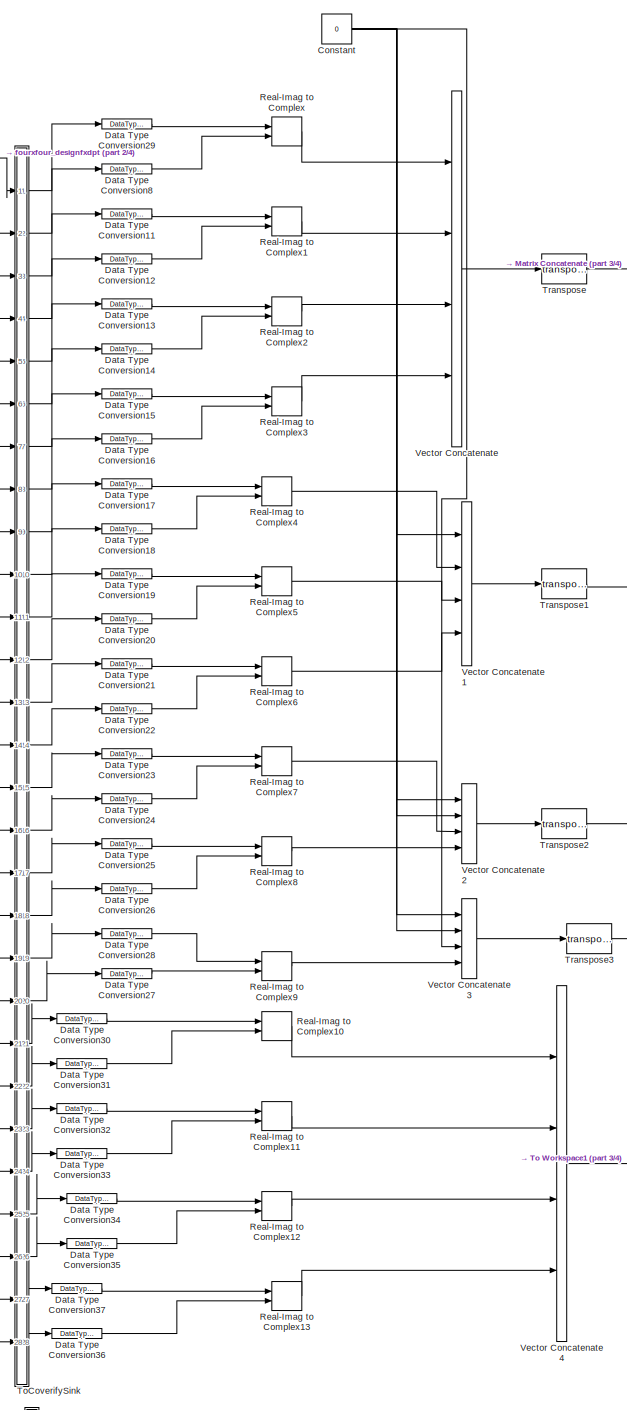
[diagram: root canvas - part 1/4, top center region]
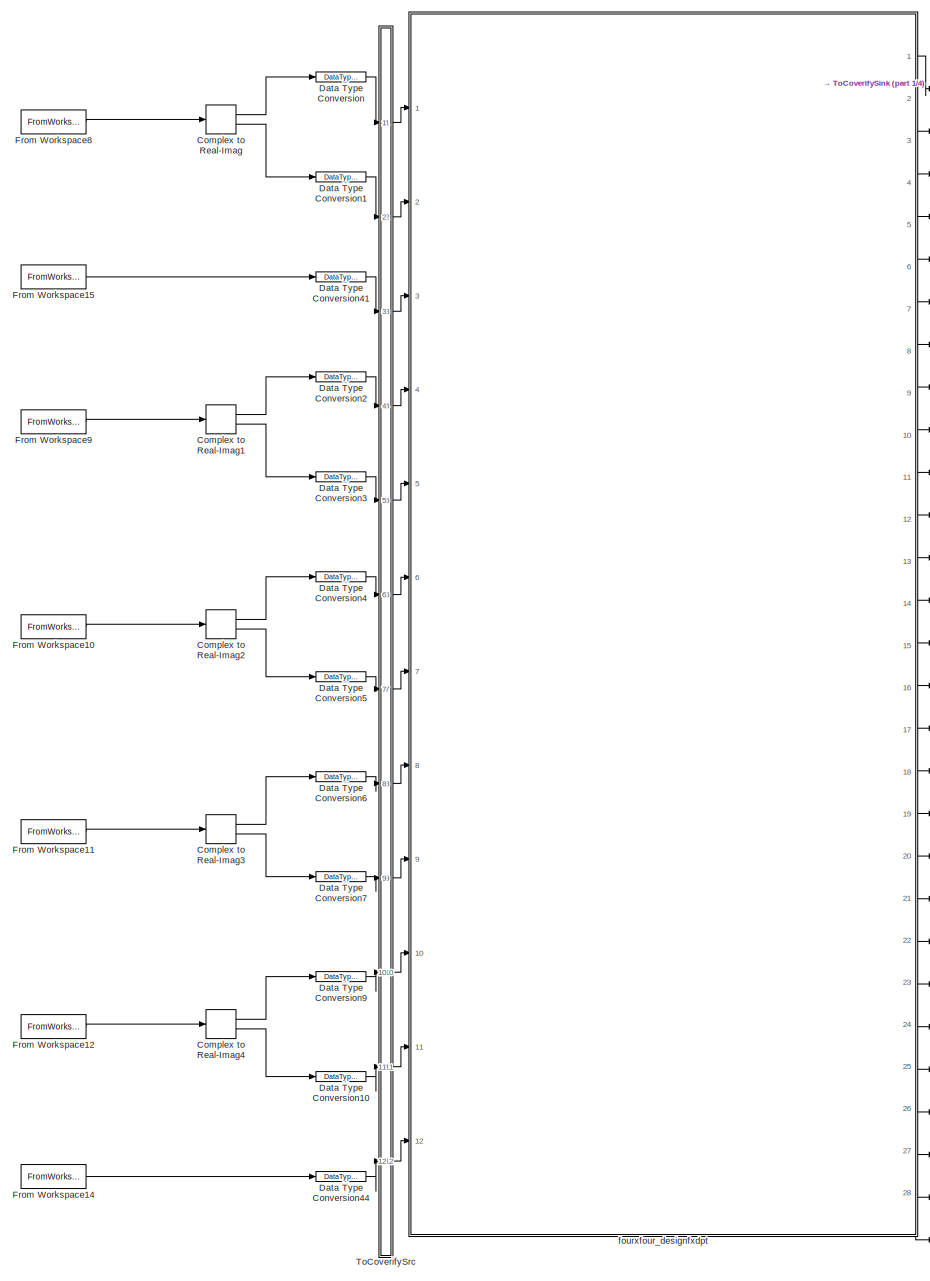
[diagram: root canvas - part 2/4, top left region]
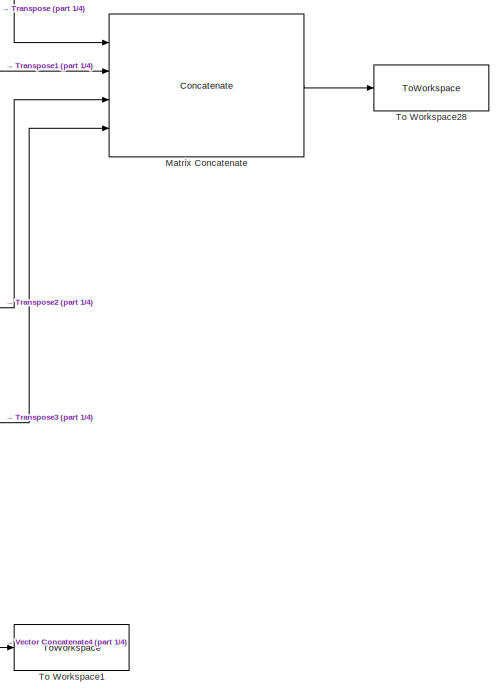
[diagram: root canvas - part 3/4, top right region]
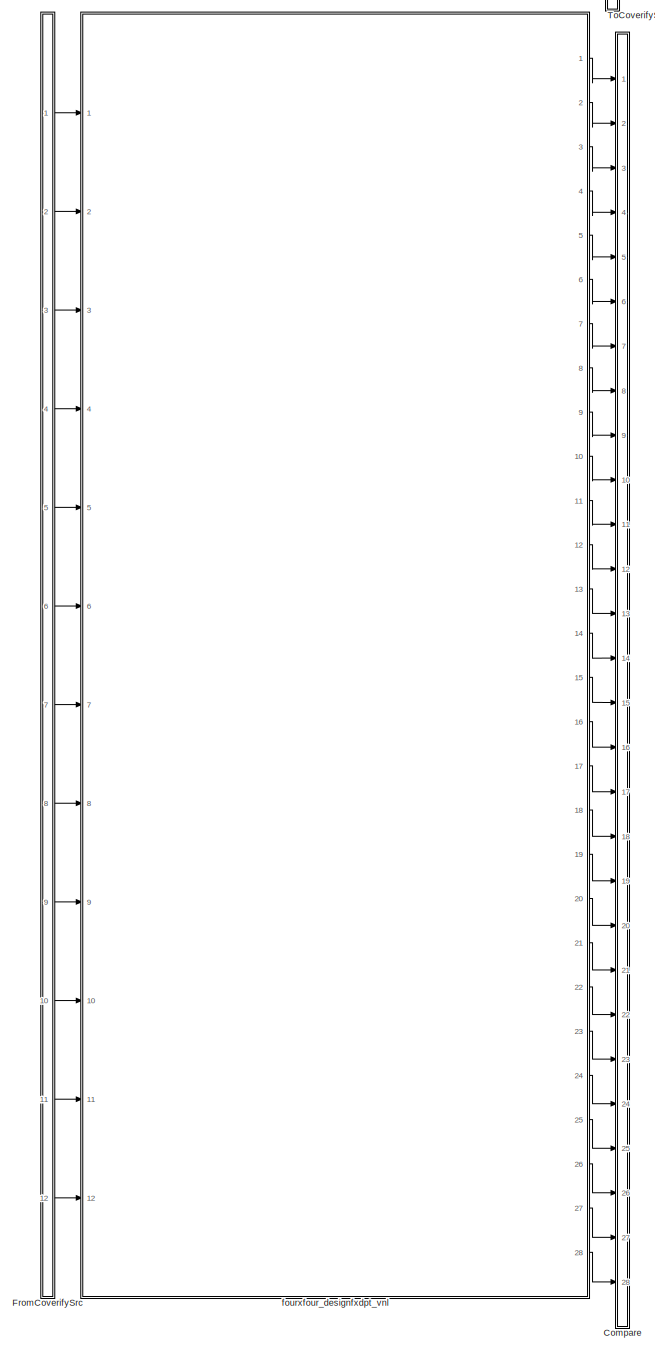
[diagram: root canvas - part 4/4, bottom left region]
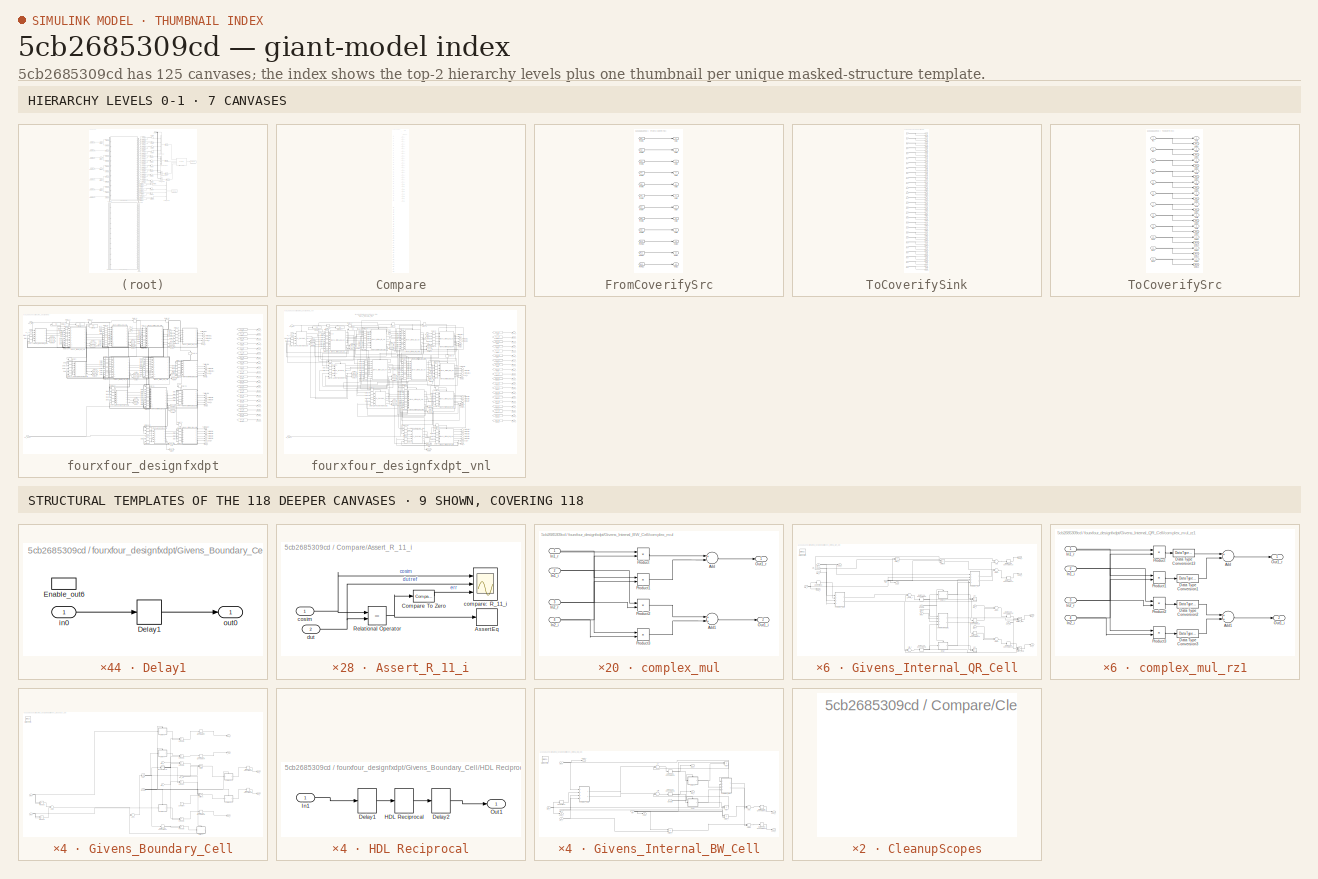
[diagram: thumbnail index - top-2 hierarchy levels (7 canvases) + 9 structural-template representatives of the remaining 118 canvases]
MODEL slx_5cb2685309cd
KIND model
CONFIG AbsTol = auto
CONFIG EnableMultiTasking = off
CONFIG FixedStep = auto
CONFIG InitFcn = if isempty(which('mylib'))\n     tmp = fileparts(which(bdroot));\n     run(fullfile(fileparts(tmp), '5-Utilities', 'addPathsPfcHw.m'));\nend\n\ndata_types_givens\n
CONFIG MaxStep = auto
CONFIG MinStep = auto
CONFIG RelTol = 1e-3
CONFIG SampleTimeConstraint = Unconstrained
CONFIG Solver = VariableStepAuto
CONFIG SolverName = VariableStepAuto
CONFIG StartTime = 0.0
CONFIG StopFcn = GivensSim_Stop
CONFIG StopTime = 10.0
BLOCK [SubSystem] Compare
  Ports = [28]
  RequestExecContextInheritance = off
BLOCK [SubSystem] Compare/Assert_R_11_i
  Ports = [2]
  RequestExecContextInheritance = off
BLOCK [Assertion] Compare/Assert_R_11_i/AssertEq
  StopWhenAssertionFail = off
BLOCK [Reference] Compare/Assert_R_11_i/Compare To Zero  REF=simulink/Logic and Bit
Operations/Compare
To Zero
  Ports = [1, 1]
  SourceBlock = simulink/Logic and Bit\nOperations/Compare\nTo Zero
  SourceProductBaseCode = SL
  SourceProductName = Simulink
  SourceType = Compare To Zero
BLOCK [RelationalOperator] Compare/Assert_R_11_i/Relational Operator
  InputSameDT = off
  Operator = ==
  OutDataTypeStr = boolean
  Ports = [2, 1]
BLOCK [Scope] Compare/Assert_R_11_i/compare: R_11_i
  Floating = off
  NumInputPorts = 3
  Ports = [3]
  ScopeSpecificationString = Simulink.scopes.TimeScopeBlockCfg('CurrentConfiguration', extmgr.ConfigurationSet(extmgr.Configuration('Core','General UI',true,'MessageLogAutoOpenMode','for warn/fail messages','ShowCloseAll',true,'ShowBringAllForward',true),extmgr.Configuration('Core','Source UI',true,'PlaybackToolbar',true),extmgr.Configuration('Sources','WiredSimulink',true,'PointsPerSignal',50000,'DataLoggingDecimation','1','...<+3251ch>  <repeated x28 — deduplicated; at blocks: compare: R_11_i, compare: R_11_r, compare: R_12_i, compare: R_12_r, compare: R_13_i, compare: R_13_r, compare: R_14_i, compare: R_14_r, compare: R_22_i, compare: R_22_r, compare: R_23_i, compare: R_23_r, compare: R_24_i, compare: R_24_r, compare: R_33_i, compare: R_33_r, +12 more>
BLOCK [Inport] Compare/Assert_R_11_i/cosim
  IconDisplay = Port number
BLOCK [Inport] Compare/Assert_R_11_i/dut
  IconDisplay = Port number
  Port = 2
BLOCK [SubSystem] Compare/Assert_R_11_r
  Ports = [2]
  RequestExecContextInheritance = off
BLOCK [Assertion] Compare/Assert_R_11_r/AssertEq
  StopWhenAssertionFail = off
BLOCK [Reference] Compare/Assert_R_11_r/Compare To Zero  REF=simulink/Logic and Bit
Operations/Compare
To Zero
  Ports = [1, 1]
  SourceBlock = simulink/Logic and Bit\nOperations/Compare\nTo Zero
  SourceProductBaseCode = SL
  SourceProductName = Simulink
  SourceType = Compare To Zero
BLOCK [RelationalOperator] Compare/Assert_R_11_r/Relational Operator
  InputSameDT = off
  Operator = ==
  OutDataTypeStr = boolean
  Ports = [2, 1]
BLOCK [Scope] Compare/Assert_R_11_r/compare: R_11_r
  Floating = off
  NumInputPorts = 3
  Ports = [3]
BLOCK [Inport] Compare/Assert_R_11_r/cosim
  IconDisplay = Port number
BLOCK [Inport] Compare/Assert_R_11_r/dut
  IconDisplay = Port number
  Port = 2
BLOCK [SubSystem] Compare/Assert_R_12_i
  Ports = [2]
  RequestExecContextInheritance = off
BLOCK [Assertion] Compare/Assert_R_12_i/AssertEq
  StopWhenAssertionFail = off
BLOCK [Reference] Compare/Assert_R_12_i/Compare To Zero  REF=simulink/Logic and Bit
Operations/Compare
To Zero
  Ports = [1, 1]
  SourceBlock = simulink/Logic and Bit\nOperations/Compare\nTo Zero
  SourceProductBaseCode = SL
  SourceProductName = Simulink
  SourceType = Compare To Zero
BLOCK [RelationalOperator] Compare/Assert_R_12_i/Relational Operator
  InputSameDT = off
  Operator = ==
  OutDataTypeStr = boolean
  Ports = [2, 1]
BLOCK [Scope] Compare/Assert_R_12_i/compare: R_12_i
  Floating = off
  NumInputPorts = 3
  Ports = [3]
BLOCK [Inport] Compare/Assert_R_12_i/cosim
  IconDisplay = Port number
BLOCK [Inport] Compare/Assert_R_12_i/dut
  IconDisplay = Port number
  Port = 2
BLOCK [SubSystem] Compare/Assert_R_12_r
  Ports = [2]
  RequestExecContextInheritance = off
BLOCK [Assertion] Compare/Assert_R_12_r/AssertEq
  StopWhenAssertionFail = off
BLOCK [Reference] Compare/Assert_R_12_r/Compare To Zero  REF=simulink/Logic and Bit
Operations/Compare
To Zero
  Ports = [1, 1]
  SourceBlock = simulink/Logic and Bit\nOperations/Compare\nTo Zero
  SourceProductBaseCode = SL
  SourceProductName = Simulink
  SourceType = Compare To Zero
BLOCK [RelationalOperator] Compare/Assert_R_12_r/Relational Operator
  InputSameDT = off
  Operator = ==
  OutDataTypeStr = boolean
  Ports = [2, 1]
BLOCK [Scope] Compare/Assert_R_12_r/compare: R_12_r
  Floating = off
  NumInputPorts = 3
  Ports = [3]
BLOCK [Inport] Compare/Assert_R_12_r/cosim
  IconDisplay = Port number
BLOCK [Inport] Compare/Assert_R_12_r/dut
  IconDisplay = Port number
  Port = 2
BLOCK [SubSystem] Compare/Assert_R_13_i
  Ports = [2]
  RequestExecContextInheritance = off
BLOCK [Assertion] Compare/Assert_R_13_i/AssertEq
  StopWhenAssertionFail = off
BLOCK [Reference] Compare/Assert_R_13_i/Compare To Zero  REF=simulink/Logic and Bit
Operations/Compare
To Zero
  Ports = [1, 1]
  SourceBlock = simulink/Logic and Bit\nOperations/Compare\nTo Zero
  SourceProductBaseCode = SL
  SourceProductName = Simulink
  SourceType = Compare To Zero
BLOCK [RelationalOperator] Compare/Assert_R_13_i/Relational Operator
  InputSameDT = off
  Operator = ==
  OutDataTypeStr = boolean
  Ports = [2, 1]
BLOCK [Scope] Compare/Assert_R_13_i/compare: R_13_i
  Floating = off
  NumInputPorts = 3
  Ports = [3]
BLOCK [Inport] Compare/Assert_R_13_i/cosim
  IconDisplay = Port number
BLOCK [Inport] Compare/Assert_R_13_i/dut
  IconDisplay = Port number
  Port = 2
BLOCK [SubSystem] Compare/Assert_R_13_r
  Ports = [2]
  RequestExecContextInheritance = off
BLOCK [Assertion] Compare/Assert_R_13_r/AssertEq
  StopWhenAssertionFail = off
BLOCK [Reference] Compare/Assert_R_13_r/Compare To Zero  REF=simulink/Logic and Bit
Operations/Compare
To Zero
  Ports = [1, 1]
  SourceBlock = simulink/Logic and Bit\nOperations/Compare\nTo Zero
  SourceProductBaseCode = SL
  SourceProductName = Simulink
  SourceType = Compare To Zero
BLOCK [RelationalOperator] Compare/Assert_R_13_r/Relational Operator
  InputSameDT = off
  Operator = ==
  OutDataTypeStr = boolean
  Ports = [2, 1]
BLOCK [Scope] Compare/Assert_R_13_r/compare: R_13_r
  Floating = off
  NumInputPorts = 3
  Ports = [3]
BLOCK [Inport] Compare/Assert_R_13_r/cosim
  IconDisplay = Port number
BLOCK [Inport] Compare/Assert_R_13_r/dut
  IconDisplay = Port number
  Port = 2
BLOCK [SubSystem] Compare/Assert_R_14_i
  Ports = [2]
  RequestExecContextInheritance = off
BLOCK [Assertion] Compare/Assert_R_14_i/AssertEq
  StopWhenAssertionFail = off
BLOCK [Reference] Compare/Assert_R_14_i/Compare To Zero  REF=simulink/Logic and Bit
Operations/Compare
To Zero
  Ports = [1, 1]
  SourceBlock = simulink/Logic and Bit\nOperations/Compare\nTo Zero
  SourceProductBaseCode = SL
  SourceProductName = Simulink
  SourceType = Compare To Zero
BLOCK [RelationalOperator] Compare/Assert_R_14_i/Relational Operator
  InputSameDT = off
  Operator = ==
  OutDataTypeStr = boolean
  Ports = [2, 1]
BLOCK [Scope] Compare/Assert_R_14_i/compare: R_14_i
  Floating = off
  NumInputPorts = 3
  Ports = [3]
BLOCK [Inport] Compare/Assert_R_14_i/cosim
  IconDisplay = Port number
BLOCK [Inport] Compare/Assert_R_14_i/dut
  IconDisplay = Port number
  Port = 2
BLOCK [SubSystem] Compare/Assert_R_14_r
  Ports = [2]
  RequestExecContextInheritance = off
BLOCK [Assertion] Compare/Assert_R_14_r/AssertEq
  StopWhenAssertionFail = off
BLOCK [Reference] Compare/Assert_R_14_r/Compare To Zero  REF=simulink/Logic and Bit
Operations/Compare
To Zero
  Ports = [1, 1]
  SourceBlock = simulink/Logic and Bit\nOperations/Compare\nTo Zero
  SourceProductBaseCode = SL
  SourceProductName = Simulink
  SourceType = Compare To Zero
BLOCK [RelationalOperator] Compare/Assert_R_14_r/Relational Operator
  InputSameDT = off
  Operator = ==
  OutDataTypeStr = boolean
  Ports = [2, 1]
BLOCK [Scope] Compare/Assert_R_14_r/compare: R_14_r
  Floating = off
  NumInputPorts = 3
  Ports = [3]
BLOCK [Inport] Compare/Assert_R_14_r/cosim
  IconDisplay = Port number
BLOCK [Inport] Compare/Assert_R_14_r/dut
  IconDisplay = Port number
  Port = 2
BLOCK [SubSystem] Compare/Assert_R_22_i
  Ports = [2]
  RequestExecContextInheritance = off
BLOCK [Assertion] Compare/Assert_R_22_i/AssertEq
  StopWhenAssertionFail = off
BLOCK [Reference] Compare/Assert_R_22_i/Compare To Zero  REF=simulink/Logic and Bit
Operations/Compare
To Zero
  Ports = [1, 1]
  SourceBlock = simulink/Logic and Bit\nOperations/Compare\nTo Zero
  SourceProductBaseCode = SL
  SourceProductName = Simulink
  SourceType = Compare To Zero
BLOCK [RelationalOperator] Compare/Assert_R_22_i/Relational Operator
  InputSameDT = off
  Operator = ==
  OutDataTypeStr = boolean
  Ports = [2, 1]
BLOCK [Scope] Compare/Assert_R_22_i/compare: R_22_i
  Floating = off
  NumInputPorts = 3
  Ports = [3]
BLOCK [Inport] Compare/Assert_R_22_i/cosim
  IconDisplay = Port number
BLOCK [Inport] Compare/Assert_R_22_i/dut
  IconDisplay = Port number
  Port = 2
BLOCK [SubSystem] Compare/Assert_R_22_r
  Ports = [2]
  RequestExecContextInheritance = off
BLOCK [Assertion] Compare/Assert_R_22_r/AssertEq
  StopWhenAssertionFail = off
BLOCK [Reference] Compare/Assert_R_22_r/Compare To Zero  REF=simulink/Logic and Bit
Operations/Compare
To Zero
  Ports = [1, 1]
  SourceBlock = simulink/Logic and Bit\nOperations/Compare\nTo Zero
  SourceProductBaseCode = SL
  SourceProductName = Simulink
  SourceType = Compare To Zero
BLOCK [RelationalOperator] Compare/Assert_R_22_r/Relational Operator
  InputSameDT = off
  Operator = ==
  OutDataTypeStr = boolean
  Ports = [2, 1]
BLOCK [Scope] Compare/Assert_R_22_r/compare: R_22_r
  Floating = off
  NumInputPorts = 3
  Ports = [3]
BLOCK [Inport] Compare/Assert_R_22_r/cosim
  IconDisplay = Port number
BLOCK [Inport] Compare/Assert_R_22_r/dut
  IconDisplay = Port number
  Port = 2
BLOCK [SubSystem] Compare/Assert_R_23_i
  Ports = [2]
  RequestExecContextInheritance = off
BLOCK [Assertion] Compare/Assert_R_23_i/AssertEq
  StopWhenAssertionFail = off
BLOCK [Reference] Compare/Assert_R_23_i/Compare To Zero  REF=simulink/Logic and Bit
Operations/Compare
To Zero
  Ports = [1, 1]
  SourceBlock = simulink/Logic and Bit\nOperations/Compare\nTo Zero
  SourceProductBaseCode = SL
  SourceProductName = Simulink
  SourceType = Compare To Zero
BLOCK [RelationalOperator] Compare/Assert_R_23_i/Relational Operator
  InputSameDT = off
  Operator = ==
  OutDataTypeStr = boolean
  Ports = [2, 1]
BLOCK [Scope] Compare/Assert_R_23_i/compare: R_23_i
  Floating = off
  NumInputPorts = 3
  Ports = [3]
BLOCK [Inport] Compare/Assert_R_23_i/cosim
  IconDisplay = Port number
BLOCK [Inport] Compare/Assert_R_23_i/dut
  IconDisplay = Port number
  Port = 2
BLOCK [SubSystem] Compare/Assert_R_23_r
  Ports = [2]
  RequestExecContextInheritance = off
BLOCK [Assertion] Compare/Assert_R_23_r/AssertEq
  StopWhenAssertionFail = off
BLOCK [Reference] Compare/Assert_R_23_r/Compare To Zero  REF=simulink/Logic and Bit
Operations/Compare
To Zero
  Ports = [1, 1]
  SourceBlock = simulink/Logic and Bit\nOperations/Compare\nTo Zero
  SourceProductBaseCode = SL
  SourceProductName = Simulink
  SourceType = Compare To Zero
BLOCK [RelationalOperator] Compare/Assert_R_23_r/Relational Operator
  InputSameDT = off
  Operator = ==
  OutDataTypeStr = boolean
  Ports = [2, 1]
BLOCK [Scope] Compare/Assert_R_23_r/compare: R_23_r
  Floating = off
  NumInputPorts = 3
  Ports = [3]
BLOCK [Inport] Compare/Assert_R_23_r/cosim
  IconDisplay = Port number
BLOCK [Inport] Compare/Assert_R_23_r/dut
  IconDisplay = Port number
  Port = 2
BLOCK [SubSystem] Compare/Assert_R_24_i
  Ports = [2]
  RequestExecContextInheritance = off
BLOCK [Assertion] Compare/Assert_R_24_i/AssertEq
  StopWhenAssertionFail = off
BLOCK [Reference] Compare/Assert_R_24_i/Compare To Zero  REF=simulink/Logic and Bit
Operations/Compare
To Zero
  Ports = [1, 1]
  SourceBlock = simulink/Logic and Bit\nOperations/Compare\nTo Zero
  SourceProductBaseCode = SL
  SourceProductName = Simulink
  SourceType = Compare To Zero
BLOCK [RelationalOperator] Compare/Assert_R_24_i/Relational Operator
  InputSameDT = off
  Operator = ==
  OutDataTypeStr = boolean
  Ports = [2, 1]
BLOCK [Scope] Compare/Assert_R_24_i/compare: R_24_i
  Floating = off
  NumInputPorts = 3
  Ports = [3]
BLOCK [Inport] Compare/Assert_R_24_i/cosim
  IconDisplay = Port number
BLOCK [Inport] Compare/Assert_R_24_i/dut
  IconDisplay = Port number
  Port = 2
BLOCK [SubSystem] Compare/Assert_R_24_r
  Ports = [2]
  RequestExecContextInheritance = off
BLOCK [Assertion] Compare/Assert_R_24_r/AssertEq
  StopWhenAssertionFail = off
BLOCK [Reference] Compare/Assert_R_24_r/Compare To Zero  REF=simulink/Logic and Bit
Operations/Compare
To Zero
  Ports = [1, 1]
  SourceBlock = simulink/Logic and Bit\nOperations/Compare\nTo Zero
  SourceProductBaseCode = SL
  SourceProductName = Simulink
  SourceType = Compare To Zero
BLOCK [RelationalOperator] Compare/Assert_R_24_r/Relational Operator
  InputSameDT = off
  Operator = ==
  OutDataTypeStr = boolean
  Ports = [2, 1]
BLOCK [Scope] Compare/Assert_R_24_r/compare: R_24_r
  Floating = off
  NumInputPorts = 3
  Ports = [3]
BLOCK [Inport] Compare/Assert_R_24_r/cosim
  IconDisplay = Port number
BLOCK [Inport] Compare/Assert_R_24_r/dut
  IconDisplay = Port number
  Port = 2
BLOCK [SubSystem] Compare/Assert_R_33_i
  Ports = [2]
  RequestExecContextInheritance = off
BLOCK [Assertion] Compare/Assert_R_33_i/AssertEq
  StopWhenAssertionFail = off
BLOCK [Reference] Compare/Assert_R_33_i/Compare To Zero  REF=simulink/Logic and Bit
Operations/Compare
To Zero
  Ports = [1, 1]
  SourceBlock = simulink/Logic and Bit\nOperations/Compare\nTo Zero
  SourceProductBaseCode = SL
  SourceProductName = Simulink
  SourceType = Compare To Zero
BLOCK [RelationalOperator] Compare/Assert_R_33_i/Relational Operator
  InputSameDT = off
  Operator = ==
  OutDataTypeStr = boolean
  Ports = [2, 1]
BLOCK [Scope] Compare/Assert_R_33_i/compare: R_33_i
  Floating = off
  NumInputPorts = 3
  Ports = [3]
BLOCK [Inport] Compare/Assert_R_33_i/cosim
  IconDisplay = Port number
BLOCK [Inport] Compare/Assert_R_33_i/dut
  IconDisplay = Port number
  Port = 2
BLOCK [SubSystem] Compare/Assert_R_33_r
  Ports = [2]
  RequestExecContextInheritance = off
BLOCK [Assertion] Compare/Assert_R_33_r/AssertEq
  StopWhenAssertionFail = off
BLOCK [Reference] Compare/Assert_R_33_r/Compare To Zero  REF=simulink/Logic and Bit
Operations/Compare
To Zero
  Ports = [1, 1]
  SourceBlock = simulink/Logic and Bit\nOperations/Compare\nTo Zero
  SourceProductBaseCode = SL
  SourceProductName = Simulink
  SourceType = Compare To Zero
BLOCK [RelationalOperator] Compare/Assert_R_33_r/Relational Operator
  InputSameDT = off
  Operator = ==
  OutDataTypeStr = boolean
  Ports = [2, 1]
BLOCK [Scope] Compare/Assert_R_33_r/compare: R_33_r
  Floating = off
  NumInputPorts = 3
  Ports = [3]
BLOCK [Inport] Compare/Assert_R_33_r/cosim
  IconDisplay = Port number
BLOCK [Inport] Compare/Assert_R_33_r/dut
  IconDisplay = Port number
  Port = 2
BLOCK [SubSystem] Compare/Assert_R_34_i
  Ports = [2]
  RequestExecContextInheritance = off
BLOCK [Assertion] Compare/Assert_R_34_i/AssertEq
  StopWhenAssertionFail = off
BLOCK [Reference] Compare/Assert_R_34_i/Compare To Zero  REF=simulink/Logic and Bit
Operations/Compare
To Zero
  Ports = [1, 1]
  SourceBlock = simulink/Logic and Bit\nOperations/Compare\nTo Zero
  SourceProductBaseCode = SL
  SourceProductName = Simulink
  SourceType = Compare To Zero
BLOCK [RelationalOperator] Compare/Assert_R_34_i/Relational Operator
  InputSameDT = off
  Operator = ==
  OutDataTypeStr = boolean
  Ports = [2, 1]
BLOCK [Scope] Compare/Assert_R_34_i/compare: R_34_i
  Floating = off
  NumInputPorts = 3
  Ports = [3]
BLOCK [Inport] Compare/Assert_R_34_i/cosim
  IconDisplay = Port number
BLOCK [Inport] Compare/Assert_R_34_i/dut
  IconDisplay = Port number
  Port = 2
BLOCK [SubSystem] Compare/Assert_R_34_r
  Ports = [2]
  RequestExecContextInheritance = off
BLOCK [Assertion] Compare/Assert_R_34_r/AssertEq
  StopWhenAssertionFail = off
BLOCK [Reference] Compare/Assert_R_34_r/Compare To Zero  REF=simulink/Logic and Bit
Operations/Compare
To Zero
  Ports = [1, 1]
  SourceBlock = simulink/Logic and Bit\nOperations/Compare\nTo Zero
  SourceProductBaseCode = SL
  SourceProductName = Simulink
  SourceType = Compare To Zero
BLOCK [RelationalOperator] Compare/Assert_R_34_r/Relational Operator
  InputSameDT = off
  Operator = ==
  OutDataTypeStr = boolean
  Ports = [2, 1]
BLOCK [Scope] Compare/Assert_R_34_r/compare: R_34_r
  Floating = off
  NumInputPorts = 3
  Ports = [3]
BLOCK [Inport] Compare/Assert_R_34_r/cosim
  IconDisplay = Port number
BLOCK [Inport] Compare/Assert_R_34_r/dut
  IconDisplay = Port number
  Port = 2
BLOCK [SubSystem] Compare/Assert_R_44_i
  Ports = [2]
  RequestExecContextInheritance = off
BLOCK [Assertion] Compare/Assert_R_44_i/AssertEq
  StopWhenAssertionFail = off
BLOCK [Reference] Compare/Assert_R_44_i/Compare To Zero  REF=simulink/Logic and Bit
Operations/Compare
To Zero
  Ports = [1, 1]
  SourceBlock = simulink/Logic and Bit\nOperations/Compare\nTo Zero
  SourceProductBaseCode = SL
  SourceProductName = Simulink
  SourceType = Compare To Zero
BLOCK [RelationalOperator] Compare/Assert_R_44_i/Relational Operator
  InputSameDT = off
  Operator = ==
  OutDataTypeStr = boolean
  Ports = [2, 1]
BLOCK [Scope] Compare/Assert_R_44_i/compare: R_44_i
  Floating = off
  NumInputPorts = 3
  Ports = [3]
BLOCK [Inport] Compare/Assert_R_44_i/cosim
  IconDisplay = Port number
BLOCK [Inport] Compare/Assert_R_44_i/dut
  IconDisplay = Port number
  Port = 2
BLOCK [SubSystem] Compare/Assert_R_44_r
  Ports = [2]
  RequestExecContextInheritance = off
BLOCK [Assertion] Compare/Assert_R_44_r/AssertEq
  StopWhenAssertionFail = off
BLOCK [Reference] Compare/Assert_R_44_r/Compare To Zero  REF=simulink/Logic and Bit
Operations/Compare
To Zero
  Ports = [1, 1]
  SourceBlock = simulink/Logic and Bit\nOperations/Compare\nTo Zero
  SourceProductBaseCode = SL
  SourceProductName = Simulink
  SourceType = Compare To Zero
BLOCK [RelationalOperator] Compare/Assert_R_44_r/Relational Operator
  InputSameDT = off
  Operator = ==
  OutDataTypeStr = boolean
  Ports = [2, 1]
BLOCK [Scope] Compare/Assert_R_44_r/compare: R_44_r
  Floating = off
  NumInputPorts = 3
  Ports = [3]
BLOCK [Inport] Compare/Assert_R_44_r/cosim
  IconDisplay = Port number
BLOCK [Inport] Compare/Assert_R_44_r/dut
  IconDisplay = Port number
  Port = 2
BLOCK [SubSystem] Compare/Assert_bouti_1
  Ports = [2]
  RequestExecContextInheritance = off
BLOCK [Assertion] Compare/Assert_bouti_1/AssertEq
  StopWhenAssertionFail = off
BLOCK [Reference] Compare/Assert_bouti_1/Compare To Zero  REF=simulink/Logic and Bit
Operations/Compare
To Zero
  Ports = [1, 1]
  SourceBlock = simulink/Logic and Bit\nOperations/Compare\nTo Zero
  SourceProductBaseCode = SL
  SourceProductName = Simulink
  SourceType = Compare To Zero
BLOCK [RelationalOperator] Compare/Assert_bouti_1/Relational Operator
  InputSameDT = off
  Operator = ==
  OutDataTypeStr = boolean
  Ports = [2, 1]
BLOCK [Scope] Compare/Assert_bouti_1/compare: bouti_1
  Floating = off
  NumInputPorts = 3
  Ports = [3]
BLOCK [Inport] Compare/Assert_bouti_1/cosim
  IconDisplay = Port number
BLOCK [Inport] Compare/Assert_bouti_1/dut
  IconDisplay = Port number
  Port = 2
BLOCK [SubSystem] Compare/Assert_bouti_2
  Ports = [2]
  RequestExecContextInheritance = off
BLOCK [Assertion] Compare/Assert_bouti_2/AssertEq
  StopWhenAssertionFail = off
BLOCK [Reference] Compare/Assert_bouti_2/Compare To Zero  REF=simulink/Logic and Bit
Operations/Compare
To Zero
  Ports = [1, 1]
  SourceBlock = simulink/Logic and Bit\nOperations/Compare\nTo Zero
  SourceProductBaseCode = SL
  SourceProductName = Simulink
  SourceType = Compare To Zero
BLOCK [RelationalOperator] Compare/Assert_bouti_2/Relational Operator
  InputSameDT = off
  Operator = ==
  OutDataTypeStr = boolean
  Ports = [2, 1]
BLOCK [Scope] Compare/Assert_bouti_2/compare: bouti_2
  Floating = off
  NumInputPorts = 3
  Ports = [3]
BLOCK [Inport] Compare/Assert_bouti_2/cosim
  IconDisplay = Port number
BLOCK [Inport] Compare/Assert_bouti_2/dut
  IconDisplay = Port number
  Port = 2
BLOCK [SubSystem] Compare/Assert_bouti_3
  Ports = [2]
  RequestExecContextInheritance = off
BLOCK [Assertion] Compare/Assert_bouti_3/AssertEq
  StopWhenAssertionFail = off
BLOCK [Reference] Compare/Assert_bouti_3/Compare To Zero  REF=simulink/Logic and Bit
Operations/Compare
To Zero
  Ports = [1, 1]
  SourceBlock = simulink/Logic and Bit\nOperations/Compare\nTo Zero
  SourceProductBaseCode = SL
  SourceProductName = Simulink
  SourceType = Compare To Zero
BLOCK [RelationalOperator] Compare/Assert_bouti_3/Relational Operator
  InputSameDT = off
  Operator = ==
  OutDataTypeStr = boolean
  Ports = [2, 1]
BLOCK [Scope] Compare/Assert_bouti_3/compare: bouti_3
  Floating = off
  NumInputPorts = 3
  Ports = [3]
BLOCK [Inport] Compare/Assert_bouti_3/cosim
  IconDisplay = Port number
BLOCK [Inport] Compare/Assert_bouti_3/dut
  IconDisplay = Port number
  Port = 2
BLOCK [SubSystem] Compare/Assert_bouti_4
  Ports = [2]
  RequestExecContextInheritance = off
BLOCK [Assertion] Compare/Assert_bouti_4/AssertEq
  StopWhenAssertionFail = off
BLOCK [Reference] Compare/Assert_bouti_4/Compare To Zero  REF=simulink/Logic and Bit
Operations/Compare
To Zero
  Ports = [1, 1]
  SourceBlock = simulink/Logic and Bit\nOperations/Compare\nTo Zero
  SourceProductBaseCode = SL
  SourceProductName = Simulink
  SourceType = Compare To Zero
BLOCK [RelationalOperator] Compare/Assert_bouti_4/Relational Operator
  InputSameDT = off
  Operator = ==
  OutDataTypeStr = boolean
  Ports = [2, 1]
BLOCK [Scope] Compare/Assert_bouti_4/compare: bouti_4
  Floating = off
  NumInputPorts = 3
  Ports = [3]
BLOCK [Inport] Compare/Assert_bouti_4/cosim
  IconDisplay = Port number
BLOCK [Inport] Compare/Assert_bouti_4/dut
  IconDisplay = Port number
  Port = 2
BLOCK [SubSystem] Compare/Assert_boutr_1
  Ports = [2]
  RequestExecContextInheritance = off
BLOCK [Assertion] Compare/Assert_boutr_1/AssertEq
  StopWhenAssertionFail = off
BLOCK [Reference] Compare/Assert_boutr_1/Compare To Zero  REF=simulink/Logic and Bit
Operations/Compare
To Zero
  Ports = [1, 1]
  SourceBlock = simulink/Logic and Bit\nOperations/Compare\nTo Zero
  SourceProductBaseCode = SL
  SourceProductName = Simulink
  SourceType = Compare To Zero
BLOCK [RelationalOperator] Compare/Assert_boutr_1/Relational Operator
  InputSameDT = off
  Operator = ==
  OutDataTypeStr = boolean
  Ports = [2, 1]
BLOCK [Scope] Compare/Assert_boutr_1/compare: boutr_1
  Floating = off
  NumInputPorts = 3
  Ports = [3]
BLOCK [Inport] Compare/Assert_boutr_1/cosim
  IconDisplay = Port number
BLOCK [Inport] Compare/Assert_boutr_1/dut
  IconDisplay = Port number
  Port = 2
BLOCK [SubSystem] Compare/Assert_boutr_2
  Ports = [2]
  RequestExecContextInheritance = off
BLOCK [Assertion] Compare/Assert_boutr_2/AssertEq
  StopWhenAssertionFail = off
BLOCK [Reference] Compare/Assert_boutr_2/Compare To Zero  REF=simulink/Logic and Bit
Operations/Compare
To Zero
  Ports = [1, 1]
  SourceBlock = simulink/Logic and Bit\nOperations/Compare\nTo Zero
  SourceProductBaseCode = SL
  SourceProductName = Simulink
  SourceType = Compare To Zero
BLOCK [RelationalOperator] Compare/Assert_boutr_2/Relational Operator
  InputSameDT = off
  Operator = ==
  OutDataTypeStr = boolean
  Ports = [2, 1]
BLOCK [Scope] Compare/Assert_boutr_2/compare: boutr_2
  Floating = off
  NumInputPorts = 3
  Ports = [3]
BLOCK [Inport] Compare/Assert_boutr_2/cosim
  IconDisplay = Port number
BLOCK [Inport] Compare/Assert_boutr_2/dut
  IconDisplay = Port number
  Port = 2
BLOCK [SubSystem] Compare/Assert_boutr_3
  Ports = [2]
  RequestExecContextInheritance = off
BLOCK [Assertion] Compare/Assert_boutr_3/AssertEq
  StopWhenAssertionFail = off
BLOCK [Reference] Compare/Assert_boutr_3/Compare To Zero  REF=simulink/Logic and Bit
Operations/Compare
To Zero
  Ports = [1, 1]
  SourceBlock = simulink/Logic and Bit\nOperations/Compare\nTo Zero
  SourceProductBaseCode = SL
  SourceProductName = Simulink
  SourceType = Compare To Zero
BLOCK [RelationalOperator] Compare/Assert_boutr_3/Relational Operator
  InputSameDT = off
  Operator = ==
  OutDataTypeStr = boolean
  Ports = [2, 1]
BLOCK [Scope] Compare/Assert_boutr_3/compare: boutr_3
  Floating = off
  NumInputPorts = 3
  Ports = [3]
BLOCK [Inport] Compare/Assert_boutr_3/cosim
  IconDisplay = Port number
BLOCK [Inport] Compare/Assert_boutr_3/dut
  IconDisplay = Port number
  Port = 2
BLOCK [SubSystem] Compare/Assert_boutr_4
  Ports = [2]
  RequestExecContextInheritance = off
BLOCK [Assertion] Compare/Assert_boutr_4/AssertEq
  StopWhenAssertionFail = off
BLOCK [Reference] Compare/Assert_boutr_4/Compare To Zero  REF=simulink/Logic and Bit
Operations/Compare
To Zero
  Ports = [1, 1]
  SourceBlock = simulink/Logic and Bit\nOperations/Compare\nTo Zero
  SourceProductBaseCode = SL
  SourceProductName = Simulink
  SourceType = Compare To Zero
BLOCK [RelationalOperator] Compare/Assert_boutr_4/Relational Operator
  InputSameDT = off
  Operator = ==
  OutDataTypeStr = boolean
  Ports = [2, 1]
BLOCK [Scope] Compare/Assert_boutr_4/compare: boutr_4
  Floating = off
  NumInputPorts = 3
  Ports = [3]
BLOCK [Inport] Compare/Assert_boutr_4/cosim
  IconDisplay = Port number
BLOCK [Inport] Compare/Assert_boutr_4/dut
  IconDisplay = Port number
  Port = 2
BLOCK [SubSystem] Compare/CleanupScopes
  OpenFcn = blkName = gcb; %self block\nidx = regexp(blkName, '/CleanupScopes$', 'once');\nblkParent = blkName(1:idx-1);\nblks=find_system(blkParent, 'LookUnderMasks', 'all','blocktype', 'Scope');\nfor itr = 1:length(blks)\n	 hScopeCfg = get_param(blks{itr},'ScopeConfiguration');\n	 hScopeCfg.Visible = ~ hScopeCfg.Visible;\nend\ndrawnow;
  Ports = []
  RequestExecContextInheritance = off
BLOCK [SubSystem] Compare/Enable
  OpenFcn = blkName = gcb;\nidx = regexp(blkName, '/Enable$', 'once');\nblkParent = blkName(1:idx-1);\nblks=find_system(blkParent, 'LookUnderMasks', 'all','blocktype', 'Assertion');\ne = get_param(blks{1}, 'Enabled');\nif strcmp(e, 'on'), f= 'off';, else, f = 'on';, end\nfor ii=1:length(blks), set_param(blks{ii}, 'Enabled', f);, end\nset_param(gcb, 'MaskDisplay',['fprintf(message(''hdlcoder:cosim:vnl_dblclick_assert...<+47ch>
  Ports = []
  RequestExecContextInheritance = off
BLOCK [From] Compare/from1
  GotoTag = out1
  TagVisibility = global
BLOCK [From] Compare/from10
  GotoTag = out10
  TagVisibility = global
BLOCK [From] Compare/from11
  GotoTag = out11
  TagVisibility = global
BLOCK [From] Compare/from12
  GotoTag = out12
  TagVisibility = global
BLOCK [From] Compare/from13
  GotoTag = out13
  TagVisibility = global
BLOCK [From] Compare/from14
  GotoTag = out14
  TagVisibility = global
BLOCK [From] Compare/from15
  GotoTag = out15
  TagVisibility = global
BLOCK [From] Compare/from16
  GotoTag = out16
  TagVisibility = global
BLOCK [From] Compare/from17
  GotoTag = out17
  TagVisibility = global
BLOCK [From] Compare/from18
  GotoTag = out18
  TagVisibility = global
BLOCK [From] Compare/from19
  GotoTag = out19
  TagVisibility = global
BLOCK [From] Compare/from2
  GotoTag = out2
  TagVisibility = global
BLOCK [From] Compare/from20
  GotoTag = out20
  TagVisibility = global
BLOCK [From] Compare/from21
  GotoTag = out21
  TagVisibility = global
BLOCK [From] Compare/from22
  GotoTag = out22
  TagVisibility = global
BLOCK [From] Compare/from23
  GotoTag = out23
  TagVisibility = global
BLOCK [From] Compare/from24
  GotoTag = out24
  TagVisibility = global
BLOCK [From] Compare/from25
  GotoTag = out25
  TagVisibility = global
BLOCK [From] Compare/from26
  GotoTag = out26
  TagVisibility = global
BLOCK [From] Compare/from27
  GotoTag = out27
  TagVisibility = global
BLOCK [From] Compare/from28
  GotoTag = out28
  TagVisibility = global
BLOCK [From] Compare/from3
  GotoTag = out3
  TagVisibility = global
BLOCK [From] Compare/from4
  GotoTag = out4
  TagVisibility = global
BLOCK [From] Compare/from5
  GotoTag = out5
  TagVisibility = global
BLOCK [From] Compare/from6
  GotoTag = out6
  TagVisibility = global
BLOCK [From] Compare/from7
  GotoTag = out7
  TagVisibility = global
BLOCK [From] Compare/from8
  GotoTag = out8
  TagVisibility = global
BLOCK [From] Compare/from9
  GotoTag = out9
  TagVisibility = global
BLOCK [Inport] Compare/in1
  IconDisplay = Port number
BLOCK [Inport] Compare/in10
  IconDisplay = Port number
  Port = 10
BLOCK [Inport] Compare/in11
  IconDisplay = Port number
  Port = 11
BLOCK [Inport] Compare/in12
  IconDisplay = Port number
  Port = 12
BLOCK [Inport] Compare/in13
  IconDisplay = Port number
  Port = 13
BLOCK [Inport] Compare/in14
  IconDisplay = Port number
  Port = 14
BLOCK [Inport] Compare/in15
  IconDisplay = Port number
  Port = 15
BLOCK [Inport] Compare/in16
  IconDisplay = Port number
  Port = 16
BLOCK [Inport] Compare/in17
  IconDisplay = Port number
  Port = 17
BLOCK [Inport] Compare/in18
  IconDisplay = Port number
  Port = 18
BLOCK [Inport] Compare/in19
  IconDisplay = Port number
  Port = 19
BLOCK [Inport] Compare/in2
  IconDisplay = Port number
  Port = 2
BLOCK [Inport] Compare/in20
  IconDisplay = Port number
  Port = 20
BLOCK [Inport] Compare/in21
  IconDisplay = Port number
  Port = 21
BLOCK [Inport] Compare/in22
  IconDisplay = Port number
  Port = 22
BLOCK [Inport] Compare/in23
  IconDisplay = Port number
  Port = 23
BLOCK [Inport] Compare/in24
  IconDisplay = Port number
  Port = 24
BLOCK [Inport] Compare/in25
  IconDisplay = Port number
  Port = 25
BLOCK [Inport] Compare/in26
  IconDisplay = Port number
  Port = 26
BLOCK [Inport] Compare/in27
  IconDisplay = Port number
  Port = 27
BLOCK [Inport] Compare/in28
  IconDisplay = Port number
  Port = 28
BLOCK [Inport] Compare/in3
  IconDisplay = Port number
  Port = 3
BLOCK [Inport] Compare/in4
  IconDisplay = Port number
  Port = 4
BLOCK [Inport] Compare/in5
  IconDisplay = Port number
  Port = 5
BLOCK [Inport] Compare/in6
  IconDisplay = Port number
  Port = 6
BLOCK [Inport] Compare/in7
  IconDisplay = Port number
  Port = 7
BLOCK [Inport] Compare/in8
  IconDisplay = Port number
  Port = 8
BLOCK [Inport] Compare/in9
  IconDisplay = Port number
  Port = 9
BLOCK [ComplexToRealImag] Complex to Real-Imag
  Ports = [1, 2]
BLOCK [ComplexToRealImag] Complex to Real-Imag1
  Ports = [1, 2]
BLOCK [ComplexToRealImag] Complex to Real-Imag2
  Ports = [1, 2]
BLOCK [ComplexToRealImag] Complex to Real-Imag3
  Ports = [1, 2]
BLOCK [ComplexToRealImag] Complex to Real-Imag4
  Ports = [1, 2]
BLOCK [Constant] Constant
  SampleTime = -1
  Value = 0
BLOCK [DataTypeConversion] Data Type Conversion
  OutDataTypeStr = data1
  RndMeth = Floor
  SaturateOnIntegerOverflow = off
BLOCK [DataTypeConversion] Data Type Conversion1
  OutDataTypeStr = data1
  RndMeth = Floor
  SaturateOnIntegerOverflow = off
BLOCK [DataTypeConversion] Data Type Conversion10
  OutDataTypeStr = data1
  RndMeth = Floor
  SaturateOnIntegerOverflow = off
BLOCK [DataTypeConversion] Data Type Conversion11
  OutDataTypeStr = double
  RndMeth = Floor
  SaturateOnIntegerOverflow = off
BLOCK [DataTypeConversion] Data Type Conversion12
  OutDataTypeStr = double
  RndMeth = Floor
  SaturateOnIntegerOverflow = off
BLOCK [DataTypeConversion] Data Type Conversion13
  OutDataTypeStr = double
  RndMeth = Floor
  SaturateOnIntegerOverflow = off
BLOCK [DataTypeConversion] Data Type Conversion14
  OutDataTypeStr = double
  RndMeth = Floor
  SaturateOnIntegerOverflow = off
BLOCK [DataTypeConversion] Data Type Conversion15
  OutDataTypeStr = double
  RndMeth = Floor
  SaturateOnIntegerOverflow = off
BLOCK [DataTypeConversion] Data Type Conversion16
  OutDataTypeStr = double
  RndMeth = Floor
  SaturateOnIntegerOverflow = off
BLOCK [DataTypeConversion] Data Type Conversion17
  OutDataTypeStr = double
  RndMeth = Floor
  SaturateOnIntegerOverflow = off
BLOCK [DataTypeConversion] Data Type Conversion18
  OutDataTypeStr = double
  RndMeth = Floor
  SaturateOnIntegerOverflow = off
BLOCK [DataTypeConversion] Data Type Conversion19
  OutDataTypeStr = double
  RndMeth = Floor
  SaturateOnIntegerOverflow = off
BLOCK [DataTypeConversion] Data Type Conversion2
  OutDataTypeStr = data1
  RndMeth = Floor
  SaturateOnIntegerOverflow = off
BLOCK [DataTypeConversion] Data Type Conversion20
  OutDataTypeStr = double
  RndMeth = Floor
  SaturateOnIntegerOverflow = off
BLOCK [DataTypeConversion] Data Type Conversion21
  OutDataTypeStr = double
  RndMeth = Floor
  SaturateOnIntegerOverflow = off
BLOCK [DataTypeConversion] Data Type Conversion22
  OutDataTypeStr = double
  RndMeth = Floor
  SaturateOnIntegerOverflow = off
BLOCK [DataTypeConversion] Data Type Conversion23
  OutDataTypeStr = double
  RndMeth = Floor
  SaturateOnIntegerOverflow = off
BLOCK [DataTypeConversion] Data Type Conversion24
  OutDataTypeStr = double
  RndMeth = Floor
  SaturateOnIntegerOverflow = off
BLOCK [DataTypeConversion] Data Type Conversion25
  OutDataTypeStr = double
  RndMeth = Floor
  SaturateOnIntegerOverflow = off
BLOCK [DataTypeConversion] Data Type Conversion26
  OutDataTypeStr = double
  RndMeth = Floor
  SaturateOnIntegerOverflow = off
BLOCK [DataTypeConversion] Data Type Conversion27
  OutDataTypeStr = double
  RndMeth = Floor
  SaturateOnIntegerOverflow = off
BLOCK [DataTypeConversion] Data Type Conversion28
  OutDataTypeStr = double
  RndMeth = Floor
  SaturateOnIntegerOverflow = off
BLOCK [DataTypeConversion] Data Type Conversion29
  OutDataTypeStr = double
  RndMeth = Floor
  SaturateOnIntegerOverflow = off
BLOCK [DataTypeConversion] Data Type Conversion3
  OutDataTypeStr = data1
  RndMeth = Floor
  SaturateOnIntegerOverflow = off
BLOCK [DataTypeConversion] Data Type Conversion30
  OutDataTypeStr = double
  RndMeth = Floor
  SaturateOnIntegerOverflow = off
BLOCK [DataTypeConversion] Data Type Conversion31
  OutDataTypeStr = double
  RndMeth = Floor
  SaturateOnIntegerOverflow = off
BLOCK [DataTypeConversion] Data Type Conversion32
  OutDataTypeStr = double
  RndMeth = Floor
  SaturateOnIntegerOverflow = off
BLOCK [DataTypeConversion] Data Type Conversion33
  OutDataTypeStr = double
  RndMeth = Floor
  SaturateOnIntegerOverflow = off
BLOCK [DataTypeConversion] Data Type Conversion34
  OutDataTypeStr = double
  RndMeth = Floor
  SaturateOnIntegerOverflow = off
BLOCK [DataTypeConversion] Data Type Conversion35
  OutDataTypeStr = double
  RndMeth = Floor
  SaturateOnIntegerOverflow = off
BLOCK [DataTypeConversion] Data Type Conversion36
  OutDataTypeStr = double
  RndMeth = Floor
  SaturateOnIntegerOverflow = off
BLOCK [DataTypeConversion] Data Type Conversion37
  OutDataTypeStr = double
  RndMeth = Floor
  SaturateOnIntegerOverflow = off
BLOCK [DataTypeConversion] Data Type Conversion4
  OutDataTypeStr = data1
  RndMeth = Floor
  SaturateOnIntegerOverflow = off
BLOCK [DataTypeConversion] Data Type Conversion41
  OutDataTypeStr = boolean
  RndMeth = Floor
  SaturateOnIntegerOverflow = off
BLOCK [DataTypeConversion] Data Type Conversion44
  OutDataTypeStr = boolean
  RndMeth = Floor
  SaturateOnIntegerOverflow = off
BLOCK [DataTypeConversion] Data Type Conversion5
  OutDataTypeStr = data1
  RndMeth = Floor
  SaturateOnIntegerOverflow = off
BLOCK [DataTypeConversion] Data Type Conversion6
  OutDataTypeStr = data1
  RndMeth = Floor
  SaturateOnIntegerOverflow = off
BLOCK [DataTypeConversion] Data Type Conversion7
  OutDataTypeStr = data1
  RndMeth = Floor
  SaturateOnIntegerOverflow = off
BLOCK [DataTypeConversion] Data Type Conversion8
  OutDataTypeStr = double
  RndMeth = Floor
  SaturateOnIntegerOverflow = off
BLOCK [DataTypeConversion] Data Type Conversion9
  OutDataTypeStr = data1
  RndMeth = Floor
  SaturateOnIntegerOverflow = off
BLOCK [FromWorkspace] From Workspace10
  Interpolate = off
  OutputAfterFinalValue = Holding final value
  SampleTime = 1/f
  VariableName = A3_t
  ZeroCross = on
BLOCK [FromWorkspace] From Workspace11
  Interpolate = off
  OutputAfterFinalValue = Holding final value
  SampleTime = 1/f
  VariableName = A4_t
  ZeroCross = on
BLOCK [FromWorkspace] From Workspace12
  Interpolate = off
  OutputAfterFinalValue = Holding final value
  SampleTime = 1/f
  VariableName = B_in_t
  ZeroCross = on
BLOCK [FromWorkspace] From Workspace14
  Interpolate = off
  OutputAfterFinalValue = Holding final value
  SampleTime = 1/f
  VariableName = en_bp44_t
  ZeroCross = on
BLOCK [FromWorkspace] From Workspace15
  Interpolate = off
  OutputAfterFinalValue = Holding final value
  SampleTime = 1/f
  VariableName = en_in11_t
  ZeroCross = on
BLOCK [FromWorkspace] From Workspace8
  Interpolate = off
  OutputAfterFinalValue = Holding final value
  SampleTime = 1/f
  VariableName = A1_t
  ZeroCross = on
BLOCK [FromWorkspace] From Workspace9
  Interpolate = off
  OutputAfterFinalValue = Holding final value
  SampleTime = 1/f
  VariableName = A2_t
  ZeroCross = on
BLOCK [SubSystem] FromCoverifySrc
  Ports = [0, 12]
  RequestExecContextInheritance = off
BLOCK [From] FromCoverifySrc/from1
  GotoTag = in1
  TagVisibility = global
BLOCK [From] FromCoverifySrc/from10
  GotoTag = in10
  TagVisibility = global
BLOCK [From] FromCoverifySrc/from11
  GotoTag = in11
  TagVisibility = global
BLOCK [From] FromCoverifySrc/from12
  GotoTag = in12
  TagVisibility = global
BLOCK [From] FromCoverifySrc/from2
  GotoTag = in2
  TagVisibility = global
BLOCK [From] FromCoverifySrc/from3
  GotoTag = in3
  TagVisibility = global
BLOCK [From] FromCoverifySrc/from4
  GotoTag = in4
  TagVisibility = global
BLOCK [From] FromCoverifySrc/from5
  GotoTag = in5
  TagVisibility = global
BLOCK [From] FromCoverifySrc/from6
  GotoTag = in6
  TagVisibility = global
BLOCK [From] FromCoverifySrc/from7
  GotoTag = in7
  TagVisibility = global
BLOCK [From] FromCoverifySrc/from8
  GotoTag = in8
  TagVisibility = global
BLOCK [From] FromCoverifySrc/from9
  GotoTag = in9
  TagVisibility = global
BLOCK [Outport] FromCoverifySrc/out1
  IconDisplay = Port number
BLOCK [Outport] FromCoverifySrc/out10
  IconDisplay = Port number
  Port = 10
BLOCK [Outport] FromCoverifySrc/out11
  IconDisplay = Port number
  Port = 11
BLOCK [Outport] FromCoverifySrc/out12
  IconDisplay = Port number
  Port = 12
BLOCK [Outport] FromCoverifySrc/out2
  IconDisplay = Port number
  Port = 2
BLOCK [Outport] FromCoverifySrc/out3
  IconDisplay = Port number
  Port = 3
BLOCK [Outport] FromCoverifySrc/out4
  IconDisplay = Port number
  Port = 4
BLOCK [Outport] FromCoverifySrc/out5
  IconDisplay = Port number
  Port = 5
BLOCK [Outport] FromCoverifySrc/out6
  IconDisplay = Port number
  Port = 6
BLOCK [Outport] FromCoverifySrc/out7
  IconDisplay = Port number
  Port = 7
BLOCK [Outport] FromCoverifySrc/out8
  IconDisplay = Port number
  Port = 8
BLOCK [Outport] FromCoverifySrc/out9
  IconDisplay = Port number
  Port = 9
BLOCK [Concatenate] Matrix Concatenate
  Mode = Multidimensional array
  NumInputs = 4
  Ports = [4, 1]
BLOCK [RealImagToComplex] Real-Imag to Complex
  Ports = [2, 1]
BLOCK [RealImagToComplex] Real-Imag to Complex1
  Ports = [2, 1]
BLOCK [RealImagToComplex] Real-Imag to Complex10
  Ports = [2, 1]
BLOCK [RealImagToComplex] Real-Imag to Complex11
  Ports = [2, 1]
BLOCK [RealImagToComplex] Real-Imag to Complex12
  Ports = [2, 1]
BLOCK [RealImagToComplex] Real-Imag to Complex13
  Ports = [2, 1]
BLOCK [RealImagToComplex] Real-Imag to Complex2
  Ports = [2, 1]
BLOCK [RealImagToComplex] Real-Imag to Complex3
  Ports = [2, 1]
BLOCK [RealImagToComplex] Real-Imag to Complex4
  Ports = [2, 1]
BLOCK [RealImagToComplex] Real-Imag to Complex5
  Ports = [2, 1]
BLOCK [RealImagToComplex] Real-Imag to Complex6
  Ports = [2, 1]
BLOCK [RealImagToComplex] Real-Imag to Complex7
  Ports = [2, 1]
BLOCK [RealImagToComplex] Real-Imag to Complex8
  Ports = [2, 1]
BLOCK [RealImagToComplex] Real-Imag to Complex9
  Ports = [2, 1]
BLOCK [ToWorkspace] To Workspace1
  FixptAsFi = on
  MaxDataPoints = inf
  Ports = [1]
  SampleTime = -1
  Save2DSignal = 3-D array (concatenate along third dimension)
  SaveFormat = Timeseries
  VariableName = bOut_givens
BLOCK [ToWorkspace] To Workspace28
  FixptAsFi = on
  MaxDataPoints = inf
  Ports = [1]
  SampleTime = -1
  Save2DSignal = 3-D array (concatenate along third dimension)
  SaveFormat = Timeseries
  VariableName = R_givens
BLOCK [SubSystem] ToCoverifySink
  Ports = [28, 28]
  RequestExecContextInheritance = off
BLOCK [Goto] ToCoverifySink/goto1
  GotoTag = out1
  TagVisibility = global
BLOCK [Goto] ToCoverifySink/goto10
  GotoTag = out10
  TagVisibility = global
BLOCK [Goto] ToCoverifySink/goto11
  GotoTag = out11
  TagVisibility = global
BLOCK [Goto] ToCoverifySink/goto12
  GotoTag = out12
  TagVisibility = global
BLOCK [Goto] ToCoverifySink/goto13
  GotoTag = out13
  TagVisibility = global
BLOCK [Goto] ToCoverifySink/goto14
  GotoTag = out14
  TagVisibility = global
BLOCK [Goto] ToCoverifySink/goto15
  GotoTag = out15
  TagVisibility = global
BLOCK [Goto] ToCoverifySink/goto16
  GotoTag = out16
  TagVisibility = global
BLOCK [Goto] ToCoverifySink/goto17
  GotoTag = out17
  TagVisibility = global
BLOCK [Goto] ToCoverifySink/goto18
  GotoTag = out18
  TagVisibility = global
BLOCK [Goto] ToCoverifySink/goto19
  GotoTag = out19
  TagVisibility = global
BLOCK [Goto] ToCoverifySink/goto2
  GotoTag = out2
  TagVisibility = global
BLOCK [Goto] ToCoverifySink/goto20
  GotoTag = out20
  TagVisibility = global
BLOCK [Goto] ToCoverifySink/goto21
  GotoTag = out21
  TagVisibility = global
BLOCK [Goto] ToCoverifySink/goto22
  GotoTag = out22
  TagVisibility = global
BLOCK [Goto] ToCoverifySink/goto23
  GotoTag = out23
  TagVisibility = global
BLOCK [Goto] ToCoverifySink/goto24
  GotoTag = out24
  TagVisibility = global
BLOCK [Goto] ToCoverifySink/goto25
  GotoTag = out25
  TagVisibility = global
BLOCK [Goto] ToCoverifySink/goto26
  GotoTag = out26
  TagVisibility = global
BLOCK [Goto] ToCoverifySink/goto27
  GotoTag = out27
  TagVisibility = global
BLOCK [Goto] ToCoverifySink/goto28
  GotoTag = out28
  TagVisibility = global
BLOCK [Goto] ToCoverifySink/goto3
  GotoTag = out3
  TagVisibility = global
BLOCK [Goto] ToCoverifySink/goto4
  GotoTag = out4
  TagVisibility = global
BLOCK [Goto] ToCoverifySink/goto5
  GotoTag = out5
  TagVisibility = global
BLOCK [Goto] ToCoverifySink/goto6
  GotoTag = out6
  TagVisibility = global
BLOCK [Goto] ToCoverifySink/goto7
  GotoTag = out7
  TagVisibility = global
BLOCK [Goto] ToCoverifySink/goto8
  GotoTag = out8
  TagVisibility = global
BLOCK [Goto] ToCoverifySink/goto9
  GotoTag = out9
  TagVisibility = global
BLOCK [Inport] ToCoverifySink/in1
  IconDisplay = Port number
BLOCK [Inport] ToCoverifySink/in10
  IconDisplay = Port number
  Port = 10
BLOCK [Inport] ToCoverifySink/in11
  IconDisplay = Port number
  Port = 11
BLOCK [Inport] ToCoverifySink/in12
  IconDisplay = Port number
  Port = 12
BLOCK [Inport] ToCoverifySink/in13
  IconDisplay = Port number
  Port = 13
BLOCK [Inport] ToCoverifySink/in14
  IconDisplay = Port number
  Port = 14
BLOCK [Inport] ToCoverifySink/in15
  IconDisplay = Port number
  Port = 15
BLOCK [Inport] ToCoverifySink/in16
  IconDisplay = Port number
  Port = 16
BLOCK [Inport] ToCoverifySink/in17
  IconDisplay = Port number
  Port = 17
BLOCK [Inport] ToCoverifySink/in18
  IconDisplay = Port number
  Port = 18
BLOCK [Inport] ToCoverifySink/in19
  IconDisplay = Port number
  Port = 19
BLOCK [Inport] ToCoverifySink/in2
  IconDisplay = Port number
  Port = 2
BLOCK [Inport] ToCoverifySink/in20
  IconDisplay = Port number
  Port = 20
BLOCK [Inport] ToCoverifySink/in21
  IconDisplay = Port number
  Port = 21
BLOCK [Inport] ToCoverifySink/in22
  IconDisplay = Port number
  Port = 22
BLOCK [Inport] ToCoverifySink/in23
  IconDisplay = Port number
  Port = 23
BLOCK [Inport] ToCoverifySink/in24
  IconDisplay = Port number
  Port = 24
BLOCK [Inport] ToCoverifySink/in25
  IconDisplay = Port number
  Port = 25
BLOCK [Inport] ToCoverifySink/in26
  IconDisplay = Port number
  Port = 26
BLOCK [Inport] ToCoverifySink/in27
  IconDisplay = Port number
  Port = 27
BLOCK [Inport] ToCoverifySink/in28
  IconDisplay = Port number
  Port = 28
BLOCK [Inport] ToCoverifySink/in3
  IconDisplay = Port number
  Port = 3
BLOCK [Inport] ToCoverifySink/in4
  IconDisplay = Port number
  Port = 4
BLOCK [Inport] ToCoverifySink/in5
  IconDisplay = Port number
  Port = 5
BLOCK [Inport] ToCoverifySink/in6
  IconDisplay = Port number
  Port = 6
BLOCK [Inport] ToCoverifySink/in7
  IconDisplay = Port number
  Port = 7
BLOCK [Inport] ToCoverifySink/in8
  IconDisplay = Port number
  Port = 8
BLOCK [Inport] ToCoverifySink/in9
  IconDisplay = Port number
  Port = 9
BLOCK [Outport] ToCoverifySink/out1
  IconDisplay = Port number
BLOCK [Outport] ToCoverifySink/out10
  IconDisplay = Port number
  Port = 10
BLOCK [Outport] ToCoverifySink/out11
  IconDisplay = Port number
  Port = 11
BLOCK [Outport] ToCoverifySink/out12
  IconDisplay = Port number
  Port = 12
BLOCK [Outport] ToCoverifySink/out13
  IconDisplay = Port number
  Port = 13
BLOCK [Outport] ToCoverifySink/out14
  IconDisplay = Port number
  Port = 14
BLOCK [Outport] ToCoverifySink/out15
  IconDisplay = Port number
  Port = 15
BLOCK [Outport] ToCoverifySink/out16
  IconDisplay = Port number
  Port = 16
BLOCK [Outport] ToCoverifySink/out17
  IconDisplay = Port number
  Port = 17
BLOCK [Outport] ToCoverifySink/out18
  IconDisplay = Port number
  Port = 18
BLOCK [Outport] ToCoverifySink/out19
  IconDisplay = Port number
  Port = 19
BLOCK [Outport] ToCoverifySink/out2
  IconDisplay = Port number
  Port = 2
BLOCK [Outport] ToCoverifySink/out20
  IconDisplay = Port number
  Port = 20
BLOCK [Outport] ToCoverifySink/out21
  IconDisplay = Port number
  Port = 21
BLOCK [Outport] ToCoverifySink/out22
  IconDisplay = Port number
  Port = 22
BLOCK [Outport] ToCoverifySink/out23
  IconDisplay = Port number
  Port = 23
BLOCK [Outport] ToCoverifySink/out24
  IconDisplay = Port number
  Port = 24
BLOCK [Outport] ToCoverifySink/out25
  IconDisplay = Port number
  Port = 25
BLOCK [Outport] ToCoverifySink/out26
  IconDisplay = Port number
  Port = 26
BLOCK [Outport] ToCoverifySink/out27
  IconDisplay = Port number
  Port = 27
BLOCK [Outport] ToCoverifySink/out28
  IconDisplay = Port number
  Port = 28
BLOCK [Outport] ToCoverifySink/out3
  IconDisplay = Port number
  Port = 3
BLOCK [Outport] ToCoverifySink/out4
  IconDisplay = Port number
  Port = 4
BLOCK [Outport] ToCoverifySink/out5
  IconDisplay = Port number
  Port = 5
BLOCK [Outport] ToCoverifySink/out6
  IconDisplay = Port number
  Port = 6
BLOCK [Outport] ToCoverifySink/out7
  IconDisplay = Port number
  Port = 7
BLOCK [Outport] ToCoverifySink/out8
  IconDisplay = Port number
  Port = 8
BLOCK [Outport] ToCoverifySink/out9
  IconDisplay = Port number
  Port = 9
BLOCK [SubSystem] ToCoverifySrc
  Ports = [12, 12]
  RequestExecContextInheritance = off
BLOCK [Goto] ToCoverifySrc/goto1
  GotoTag = in1
  TagVisibility = global
BLOCK [Goto] ToCoverifySrc/goto10
  GotoTag = in10
  TagVisibility = global
BLOCK [Goto] ToCoverifySrc/goto11
  GotoTag = in11
  TagVisibility = global
BLOCK [Goto] ToCoverifySrc/goto12
  GotoTag = in12
  TagVisibility = global
BLOCK [Goto] ToCoverifySrc/goto2
  GotoTag = in2
  TagVisibility = global
BLOCK [Goto] ToCoverifySrc/goto3
  GotoTag = in3
  TagVisibility = global
BLOCK [Goto] ToCoverifySrc/goto4
  GotoTag = in4
  TagVisibility = global
BLOCK [Goto] ToCoverifySrc/goto5
  GotoTag = in5
  TagVisibility = global
BLOCK [Goto] ToCoverifySrc/goto6
  GotoTag = in6
  TagVisibility = global
BLOCK [Goto] ToCoverifySrc/goto7
  GotoTag = in7
  TagVisibility = global
BLOCK [Goto] ToCoverifySrc/goto8
  GotoTag = in8
  TagVisibility = global
BLOCK [Goto] ToCoverifySrc/goto9
  GotoTag = in9
  TagVisibility = global
BLOCK [Inport] ToCoverifySrc/in1
  IconDisplay = Port number
BLOCK [Inport] ToCoverifySrc/in10
  IconDisplay = Port number
  Port = 10
BLOCK [Inport] ToCoverifySrc/in11
  IconDisplay = Port number
  Port = 11
BLOCK [Inport] ToCoverifySrc/in12
  IconDisplay = Port number
  Port = 12
BLOCK [Inport] ToCoverifySrc/in2
  IconDisplay = Port number
  Port = 2
BLOCK [Inport] ToCoverifySrc/in3
  IconDisplay = Port number
  Port = 3
BLOCK [Inport] ToCoverifySrc/in4
  IconDisplay = Port number
  Port = 4
BLOCK [Inport] ToCoverifySrc/in5
  IconDisplay = Port number
  Port = 5
BLOCK [Inport] ToCoverifySrc/in6
  IconDisplay = Port number
  Port = 6
BLOCK [Inport] ToCoverifySrc/in7
  IconDisplay = Port number
  Port = 7
BLOCK [Inport] ToCoverifySrc/in8
  IconDisplay = Port number
  Port = 8
BLOCK [Inport] ToCoverifySrc/in9
  IconDisplay = Port number
  Port = 9
BLOCK [Outport] ToCoverifySrc/out1
  IconDisplay = Port number
BLOCK [Outport] ToCoverifySrc/out10
  IconDisplay = Port number
  Port = 10
BLOCK [Outport] ToCoverifySrc/out11
  IconDisplay = Port number
  Port = 11
BLOCK [Outport] ToCoverifySrc/out12
  IconDisplay = Port number
  Port = 12
BLOCK [Outport] ToCoverifySrc/out2
  IconDisplay = Port number
  Port = 2
BLOCK [Outport] ToCoverifySrc/out3
  IconDisplay = Port number
  Port = 3
BLOCK [Outport] ToCoverifySrc/out4
  IconDisplay = Port number
  Port = 4
BLOCK [Outport] ToCoverifySrc/out5
  IconDisplay = Port number
  Port = 5
BLOCK [Outport] ToCoverifySrc/out6
  IconDisplay = Port number
  Port = 6
BLOCK [Outport] ToCoverifySrc/out7
  IconDisplay = Port number
  Port = 7
BLOCK [Outport] ToCoverifySrc/out8
  IconDisplay = Port number
  Port = 8
BLOCK [Outport] ToCoverifySrc/out9
  IconDisplay = Port number
  Port = 9
BLOCK [Math] Transpose
  Operator = transpose
  Ports = [1, 1]
  RndMeth = Zero
BLOCK [Math] Transpose1
  Operator = transpose
  Ports = [1, 1]
  RndMeth = Zero
BLOCK [Math] Transpose2
  Operator = transpose
  Ports = [1, 1]
  RndMeth = Zero
BLOCK [Math] Transpose3
  Operator = transpose
  Ports = [1, 1]
  RndMeth = Zero
BLOCK [Concatenate] Vector Concatenate
  NumInputs = 4
  Ports = [4, 1]
BLOCK [Concatenate] Vector Concatenate1
  NumInputs = 4
  Ports = [4, 1]
BLOCK [Concatenate] Vector Concatenate2
  NumInputs = 4
  Ports = [4, 1]
BLOCK [Concatenate] Vector Concatenate3
  NumInputs = 4
  Ports = [4, 1]
BLOCK [Concatenate] Vector Concatenate4
  NumInputs = 4
  Ports = [4, 1]
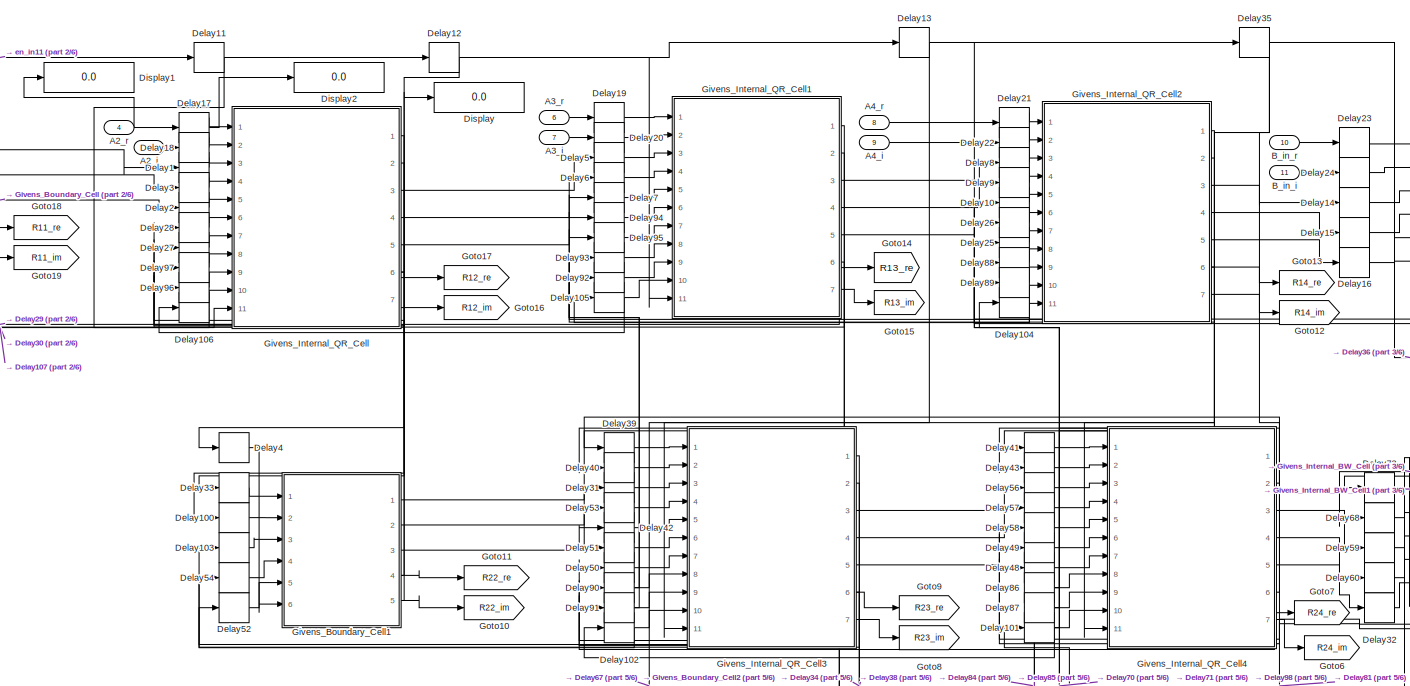
[diagram: fourxfour_designfxdpt - part 1/6, top center region]
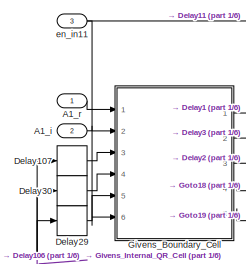
[diagram: fourxfour_designfxdpt - part 2/6, top left region]
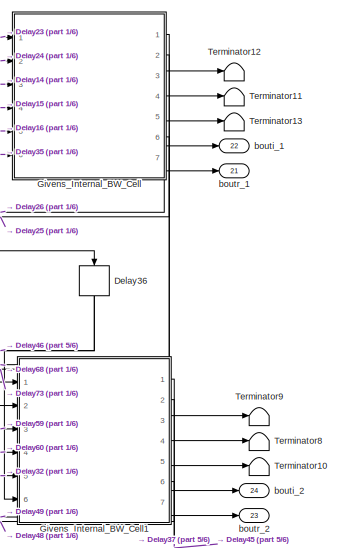
[diagram: fourxfour_designfxdpt - part 3/6, top right region]
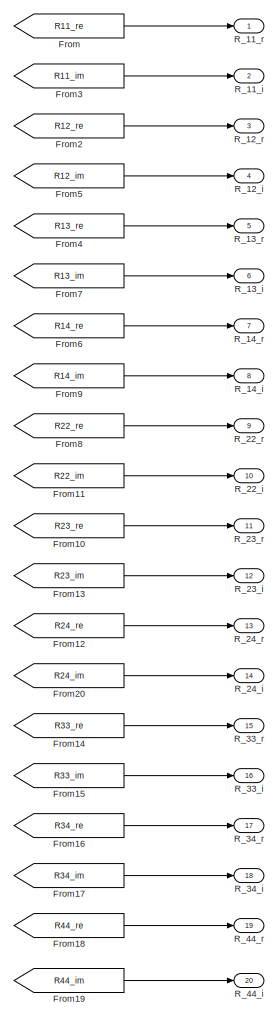
[diagram: fourxfour_designfxdpt - part 4/6, middle right region]
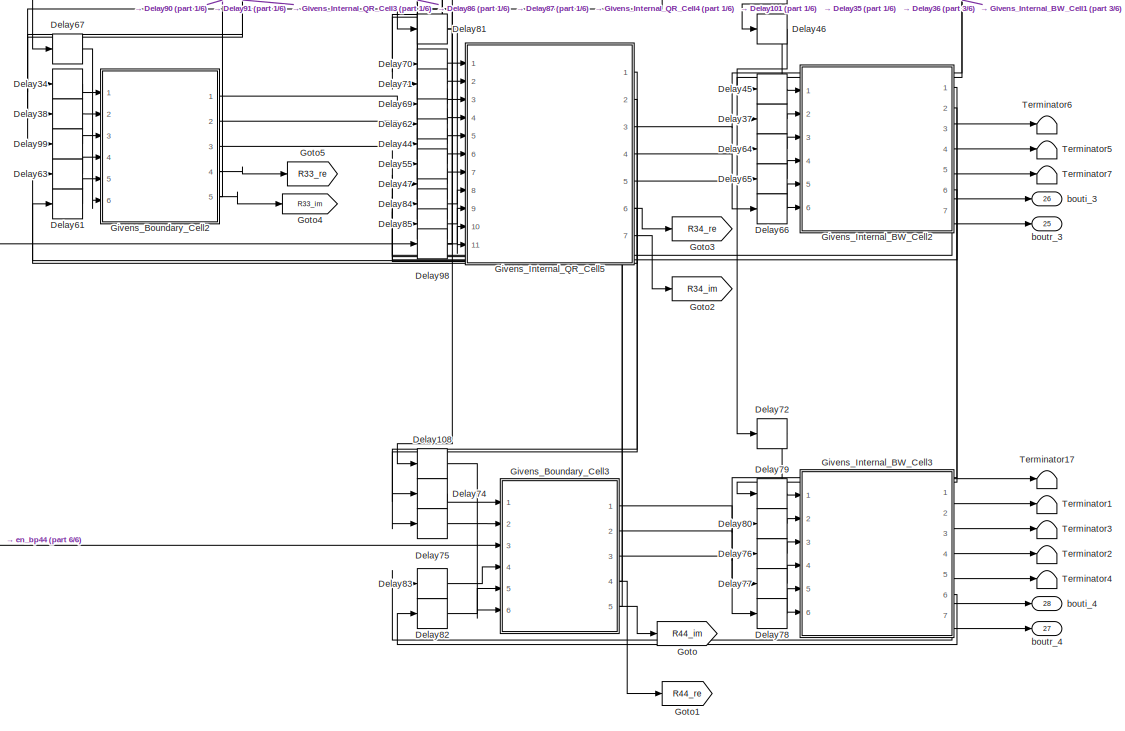
[diagram: fourxfour_designfxdpt - part 5/6, bottom center region]
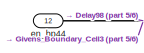
[diagram: fourxfour_designfxdpt - part 6/6, bottom left region]
BLOCK [SubSystem] fourxfour_designfxdpt
  Ports = [12, 28]
  RequestExecContextInheritance = off
BLOCK [Inport] fourxfour_designfxdpt/A1_i
  IconDisplay = Port number
  OutDataTypeStr = fixdt(1, 24, 14)
  Port = 2
  PortDimensions = 1
  SampleTime = 1e-08
BLOCK [Inport] fourxfour_designfxdpt/A1_r 
  IconDisplay = Port number
  OutDataTypeStr = fixdt(1, 24, 14)
  PortDimensions = 1
  SampleTime = 1e-08
BLOCK [Inport] fourxfour_designfxdpt/A2_i
  IconDisplay = Port number
  OutDataTypeStr = fixdt(1, 24, 14)
  Port = 5
  PortDimensions = 1
  SampleTime = 1e-08
BLOCK [Inport] fourxfour_designfxdpt/A2_r
  IconDisplay = Port number
  OutDataTypeStr = fixdt(1, 24, 14)
  Port = 4
  PortDimensions = 1
  SampleTime = 1e-08
BLOCK [Inport] fourxfour_designfxdpt/A3_i
  IconDisplay = Port number
  OutDataTypeStr = fixdt(1, 24, 14)
  Port = 7
  PortDimensions = 1
  SampleTime = 1e-08
BLOCK [Inport] fourxfour_designfxdpt/A3_r
  IconDisplay = Port number
  OutDataTypeStr = fixdt(1, 24, 14)
  Port = 6
  PortDimensions = 1
  SampleTime = 1e-08
BLOCK [Inport] fourxfour_designfxdpt/A4_i
  IconDisplay = Port number
  OutDataTypeStr = fixdt(1, 24, 14)
  Port = 9
  PortDimensions = 1
  SampleTime = 1e-08
BLOCK [Inport] fourxfour_designfxdpt/A4_r
  IconDisplay = Port number
  OutDataTypeStr = fixdt(1, 24, 14)
  Port = 8
  PortDimensions = 1
  SampleTime = 1e-08
BLOCK [Inport] fourxfour_designfxdpt/B_in_i
  IconDisplay = Port number
  OutDataTypeStr = fixdt(1, 24, 14)
  Port = 11
  PortDimensions = 1
  SampleTime = 1e-08
BLOCK [Inport] fourxfour_designfxdpt/B_in_r
  IconDisplay = Port number
  OutDataTypeStr = fixdt(1, 24, 14)
  Port = 10
  PortDimensions = 1
  SampleTime = 1e-08
BLOCK [Delay] fourxfour_designfxdpt/Delay1
  DelayLength = 1
  InitialCondition = 0
  InputPortMap = u0
  Ports = [1, 1]
BLOCK [Delay] fourxfour_designfxdpt/Delay10
  DelayLength = 1
  InitialCondition = 0
  InputPortMap = u0
  Ports = [1, 1]
BLOCK [Delay] fourxfour_designfxdpt/Delay100
  DelayLength = 1
  InitialCondition = 0
  InputPortMap = u0
  Ports = [1, 1]
BLOCK [Delay] fourxfour_designfxdpt/Delay101
  DelayLength = 1
  InitialCondition = 0
  InputPortMap = u0
  Ports = [1, 1]
BLOCK [Delay] fourxfour_designfxdpt/Delay102
  DelayLength = 5
  InitialCondition = 0
  InputPortMap = u0
  Ports = [1, 1]
BLOCK [Delay] fourxfour_designfxdpt/Delay103
  DelayLength = 1
  InitialCondition = 0
  InputPortMap = u0
  Ports = [1, 1]
BLOCK [Delay] fourxfour_designfxdpt/Delay104
  DelayLength = 1
  InitialCondition = 0
  InputPortMap = u0
  Ports = [1, 1]
BLOCK [Delay] fourxfour_designfxdpt/Delay105
  DelayLength = 1
  InitialCondition = 0
  InputPortMap = u0
  Ports = [1, 1]
BLOCK [Delay] fourxfour_designfxdpt/Delay106
  DelayLength = 5
  InitialCondition = 0
  InputPortMap = u0
  Ports = [1, 1]
BLOCK [Delay] fourxfour_designfxdpt/Delay107
  DelayLength = 1
  InitialCondition = 0
  InputPortMap = u0
  Ports = [1, 1]
BLOCK [Delay] fourxfour_designfxdpt/Delay108
  DelayLength = 1
  InitialCondition = 0
  InputPortMap = u0
  Ports = [1, 1]
BLOCK [Delay] fourxfour_designfxdpt/Delay11
  DelayLength = 1
  InitialCondition = 0
  InputPortMap = u0
  Ports = [1, 1]
BLOCK [Delay] fourxfour_designfxdpt/Delay12
  DelayLength = 1
  InitialCondition = 0
  InputPortMap = u0
  Ports = [1, 1]
BLOCK [Delay] fourxfour_designfxdpt/Delay13
  DelayLength = 1
  InitialCondition = 0
  InputPortMap = u0
  Ports = [1, 1]
BLOCK [Delay] fourxfour_designfxdpt/Delay14
  DelayLength = 1
  InitialCondition = 0
  InputPortMap = u0
  Ports = [1, 1]
BLOCK [Delay] fourxfour_designfxdpt/Delay15
  DelayLength = 1
  InitialCondition = 0
  InputPortMap = u0
  Ports = [1, 1]
BLOCK [Delay] fourxfour_designfxdpt/Delay16
  DelayLength = 1
  InitialCondition = 0
  InputPortMap = u0
  Ports = [1, 1]
BLOCK [Delay] fourxfour_designfxdpt/Delay17
  DelayLength = 5
  InitialCondition = 0
  InputPortMap = u0
  Ports = [1, 1]
BLOCK [Delay] fourxfour_designfxdpt/Delay18
  DelayLength = 5
  InitialCondition = 0
  InputPortMap = u0
  Ports = [1, 1]
BLOCK [Delay] fourxfour_designfxdpt/Delay19
  DelayLength = 6
  InitialCondition = 0
  InputPortMap = u0
  Ports = [1, 1]
BLOCK [Delay] fourxfour_designfxdpt/Delay2
  DelayLength = 1
  InitialCondition = 0
  InputPortMap = u0
  Ports = [1, 1]
BLOCK [Delay] fourxfour_designfxdpt/Delay20
  DelayLength = 6
  InitialCondition = 0
  InputPortMap = u0
  Ports = [1, 1]
BLOCK [Delay] fourxfour_designfxdpt/Delay21
  DelayLength = 7
  InitialCondition = 0
  InputPortMap = u0
  Ports = [1, 1]
BLOCK [Delay] fourxfour_designfxdpt/Delay22
  DelayLength = 7
  InitialCondition = 0
  InputPortMap = u0
  Ports = [1, 1]
BLOCK [Delay] fourxfour_designfxdpt/Delay23
  DelayLength = 8
  InitialCondition = 0
  InputPortMap = u0
  Ports = [1, 1]
BLOCK [Delay] fourxfour_designfxdpt/Delay24
  DelayLength = 8
  InitialCondition = 0
  InputPortMap = u0
  Ports = [1, 1]
BLOCK [Delay] fourxfour_designfxdpt/Delay25
  DelayLength = 1
  InitialCondition = 0
  InputPortMap = u0
  Ports = [1, 1]
BLOCK [Delay] fourxfour_designfxdpt/Delay26
  DelayLength = 1
  InitialCondition = 0
  InputPortMap = u0
  Ports = [1, 1]
BLOCK [Delay] fourxfour_designfxdpt/Delay27
  DelayLength = 5
  InitialCondition = 0
  InputPortMap = u0
  Ports = [1, 1]
BLOCK [Delay] fourxfour_designfxdpt/Delay28
  DelayLength = 5
  InitialCondition = 0
  InputPortMap = u0
  Ports = [1, 1]
BLOCK [Delay] fourxfour_designfxdpt/Delay29
  DelayLength = 1
  InitialCondition = 0
  InputPortMap = u0
  Ports = [1, 1]
BLOCK [Delay] fourxfour_designfxdpt/Delay3
  DelayLength = 1
  InitialCondition = 0
  InputPortMap = u0
  Ports = [1, 1]
BLOCK [Delay] fourxfour_designfxdpt/Delay30
  DelayLength = 1
  InitialCondition = 0
  InputPortMap = u0
  Ports = [1, 1]
BLOCK [Delay] fourxfour_designfxdpt/Delay31
  DelayLength = 1
  InitialCondition = 0
  InputPortMap = u0
  Ports = [1, 1]
BLOCK [Delay] fourxfour_designfxdpt/Delay32
  DelayLength = 1
  InitialCondition = 0
  InputPortMap = u0
  Ports = [1, 1]
BLOCK [Delay] fourxfour_designfxdpt/Delay33
  DelayLength = 1
  InitialCondition = 0
  InputPortMap = u0
  Ports = [1, 1]
BLOCK [Delay] fourxfour_designfxdpt/Delay34
  DelayLength = 1
  InitialCondition = 0
  InputPortMap = u0
  Ports = [1, 1]
BLOCK [Delay] fourxfour_designfxdpt/Delay35
  DelayLength = 1
  InitialCondition = 0
  InputPortMap = u0
  Ports = [1, 1]
BLOCK [Delay] fourxfour_designfxdpt/Delay36
  InitialCondition = 0
  InputPortMap = u0
  Ports = [1, 1]
BLOCK [Delay] fourxfour_designfxdpt/Delay37
  DelayLength = 5
  InitialCondition = 0
  InputPortMap = u0
  Ports = [1, 1]
BLOCK [Delay] fourxfour_designfxdpt/Delay38
  DelayLength = 1
  InitialCondition = 0
  InputPortMap = u0
  Ports = [1, 1]
BLOCK [Delay] fourxfour_designfxdpt/Delay39
  DelayLength = 5
  InitialCondition = 0
  InputPortMap = u0
  Ports = [1, 1]
BLOCK [Delay] fourxfour_designfxdpt/Delay4
  DelayLength = 1
  InitialCondition = 0
  InputPortMap = u0
  Ports = [1, 1]
BLOCK [Delay] fourxfour_designfxdpt/Delay40
  DelayLength = 5
  InitialCondition = 0
  InputPortMap = u0
  Ports = [1, 1]
BLOCK [Delay] fourxfour_designfxdpt/Delay41
  DelayLength = 5
  InitialCondition = 0
  InputPortMap = u0
  Ports = [1, 1]
BLOCK [Delay] fourxfour_designfxdpt/Delay42
  DelayLength = 1
  InitialCondition = 0
  InputPortMap = u0
  Ports = [1, 1]
BLOCK [Delay] fourxfour_designfxdpt/Delay43
  DelayLength = 5
  InitialCondition = 0
  InputPortMap = u0
  Ports = [1, 1]
BLOCK [Delay] fourxfour_designfxdpt/Delay44
  DelayLength = 1
  InitialCondition = 0
  InputPortMap = u0
  Ports = [1, 1]
BLOCK [Delay] fourxfour_designfxdpt/Delay45
  DelayLength = 5
  InitialCondition = 0
  InputPortMap = u0
  Ports = [1, 1]
BLOCK [Delay] fourxfour_designfxdpt/Delay46
  InitialCondition = 0
  InputPortMap = u0
  Ports = [1, 1]
BLOCK [Delay] fourxfour_designfxdpt/Delay47
  DelayLength = 5
  InitialCondition = 0
  InputPortMap = u0
  Ports = [1, 1]
BLOCK [Delay] fourxfour_designfxdpt/Delay48
  DelayLength = 1
  InitialCondition = 0
  InputPortMap = u0
  Ports = [1, 1]
BLOCK [Delay] fourxfour_designfxdpt/Delay49
  DelayLength = 1
  InitialCondition = 0
  InputPortMap = u0
  Ports = [1, 1]
BLOCK [Delay] fourxfour_designfxdpt/Delay5
  DelayLength = 1
  InitialCondition = 0
  InputPortMap = u0
  Ports = [1, 1]
BLOCK [Delay] fourxfour_designfxdpt/Delay50
  DelayLength = 5
  InitialCondition = 0
  InputPortMap = u0
  Ports = [1, 1]
BLOCK [Delay] fourxfour_designfxdpt/Delay51
  DelayLength = 5
  InitialCondition = 0
  InputPortMap = u0
  Ports = [1, 1]
BLOCK [Delay] fourxfour_designfxdpt/Delay52
  DelayLength = 1
  InitialCondition = 0
  InputPortMap = u0
  Ports = [1, 1]
BLOCK [Delay] fourxfour_designfxdpt/Delay53
  DelayLength = 1
  InitialCondition = 0
  InputPortMap = u0
  Ports = [1, 1]
BLOCK [Delay] fourxfour_designfxdpt/Delay54
  DelayLength = 1
  InitialCondition = 0
  InputPortMap = u0
  Ports = [1, 1]
BLOCK [Delay] fourxfour_designfxdpt/Delay55
  DelayLength = 5
  InitialCondition = 0
  InputPortMap = u0
  Ports = [1, 1]
BLOCK [Delay] fourxfour_designfxdpt/Delay56
  DelayLength = 1
  InitialCondition = 0
  InputPortMap = u0
  Ports = [1, 1]
BLOCK [Delay] fourxfour_designfxdpt/Delay57
  DelayLength = 1
  InitialCondition = 0
  InputPortMap = u0
  Ports = [1, 1]
BLOCK [Delay] fourxfour_designfxdpt/Delay58
  DelayLength = 1
  InitialCondition = 0
  InputPortMap = u0
  Ports = [1, 1]
BLOCK [Delay] fourxfour_designfxdpt/Delay59
  DelayLength = 1
  InitialCondition = 0
  InputPortMap = u0
  Ports = [1, 1]
BLOCK [Delay] fourxfour_designfxdpt/Delay6
  DelayLength = 1
  InitialCondition = 0
  InputPortMap = u0
  Ports = [1, 1]
BLOCK [Delay] fourxfour_designfxdpt/Delay60
  DelayLength = 1
  InitialCondition = 0
  InputPortMap = u0
  Ports = [1, 1]
BLOCK [Delay] fourxfour_designfxdpt/Delay61
  DelayLength = 1
  InitialCondition = 0
  InputPortMap = u0
  Ports = [1, 1]
BLOCK [Delay] fourxfour_designfxdpt/Delay62
  DelayLength = 1
  InitialCondition = 0
  InputPortMap = u0
  Ports = [1, 1]
BLOCK [Delay] fourxfour_designfxdpt/Delay63
  DelayLength = 1
  InitialCondition = 0
  InputPortMap = u0
  Ports = [1, 1]
BLOCK [Delay] fourxfour_designfxdpt/Delay64
  DelayLength = 1
  InitialCondition = 0
  InputPortMap = u0
  Ports = [1, 1]
BLOCK [Delay] fourxfour_designfxdpt/Delay65
  DelayLength = 1
  InitialCondition = 0
  InputPortMap = u0
  Ports = [1, 1]
BLOCK [Delay] fourxfour_designfxdpt/Delay66
  DelayLength = 1
  InitialCondition = 0
  InputPortMap = u0
  Ports = [1, 1]
BLOCK [Delay] fourxfour_designfxdpt/Delay67
  InitialCondition = 0
  InputPortMap = u0
  Ports = [1, 1]
BLOCK [Delay] fourxfour_designfxdpt/Delay68
  DelayLength = 5
  InitialCondition = 0
  InputPortMap = u0
  Ports = [1, 1]
BLOCK [Delay] fourxfour_designfxdpt/Delay69
  DelayLength = 1
  InitialCondition = 0
  InputPortMap = u0
  Ports = [1, 1]
BLOCK [Delay] fourxfour_designfxdpt/Delay7
  DelayLength = 1
  InitialCondition = 0
  InputPortMap = u0
  Ports = [1, 1]
BLOCK [Delay] fourxfour_designfxdpt/Delay70
  DelayLength = 5
  InitialCondition = 0
  InputPortMap = u0
  Ports = [1, 1]
BLOCK [Delay] fourxfour_designfxdpt/Delay71
  DelayLength = 5
  InitialCondition = 0
  InputPortMap = u0
  Ports = [1, 1]
BLOCK [Delay] fourxfour_designfxdpt/Delay72
  InitialCondition = 0
  InputPortMap = u0
  Ports = [1, 1]
BLOCK [Delay] fourxfour_designfxdpt/Delay73
  DelayLength = 5
  InitialCondition = 0
  InputPortMap = u0
  Ports = [1, 1]
BLOCK [Delay] fourxfour_designfxdpt/Delay74
  DelayLength = 1
  InitialCondition = 0
  InputPortMap = u0
  Ports = [1, 1]
BLOCK [Delay] fourxfour_designfxdpt/Delay75
  DelayLength = 1
  InitialCondition = 0
  InputPortMap = u0
  Ports = [1, 1]
BLOCK [Delay] fourxfour_designfxdpt/Delay76
  DelayLength = 1
  InitialCondition = 0
  InputPortMap = u0
  Ports = [1, 1]
BLOCK [Delay] fourxfour_designfxdpt/Delay77
  DelayLength = 1
  InitialCondition = 0
  InputPortMap = u0
  Ports = [1, 1]
BLOCK [Delay] fourxfour_designfxdpt/Delay78
  DelayLength = 1
  InitialCondition = 0
  InputPortMap = u0
  Ports = [1, 1]
BLOCK [Delay] fourxfour_designfxdpt/Delay79
  DelayLength = 5
  InitialCondition = 0
  InputPortMap = u0
  Ports = [1, 1]
BLOCK [Delay] fourxfour_designfxdpt/Delay8
  DelayLength = 1
  InitialCondition = 0
  InputPortMap = u0
  Ports = [1, 1]
BLOCK [Delay] fourxfour_designfxdpt/Delay80
  DelayLength = 5
  InitialCondition = 0
  InputPortMap = u0
  Ports = [1, 1]
BLOCK [Delay] fourxfour_designfxdpt/Delay81
  DelayLength = 1
  InitialCondition = 0
  InputPortMap = u0
  Ports = [1, 1]
BLOCK [Delay] fourxfour_designfxdpt/Delay82
  DelayLength = 1
  InitialCondition = 0
  InputPortMap = u0
  Ports = [1, 1]
BLOCK [Delay] fourxfour_designfxdpt/Delay83
  DelayLength = 1
  InitialCondition = 0
  InputPortMap = u0
  Ports = [1, 1]
BLOCK [Delay] fourxfour_designfxdpt/Delay84
  DelayLength = 1
  InitialCondition = 0
  InputPortMap = u0
  Ports = [1, 1]
BLOCK [Delay] fourxfour_designfxdpt/Delay85
  DelayLength = 1
  InitialCondition = 0
  InputPortMap = u0
  Ports = [1, 1]
BLOCK [Delay] fourxfour_designfxdpt/Delay86
  DelayLength = 1
  InitialCondition = 0
  InputPortMap = u0
  Ports = [1, 1]
BLOCK [Delay] fourxfour_designfxdpt/Delay87
  DelayLength = 1
  InitialCondition = 0
  InputPortMap = u0
  Ports = [1, 1]
BLOCK [Delay] fourxfour_designfxdpt/Delay88
  DelayLength = 1
  InitialCondition = 0
  InputPortMap = u0
  Ports = [1, 1]
BLOCK [Delay] fourxfour_designfxdpt/Delay89
  DelayLength = 1
  InitialCondition = 0
  InputPortMap = u0
  Ports = [1, 1]
BLOCK [Delay] fourxfour_designfxdpt/Delay9
  DelayLength = 1
  InitialCondition = 0
  InputPortMap = u0
  Ports = [1, 1]
BLOCK [Delay] fourxfour_designfxdpt/Delay90
  DelayLength = 1
  InitialCondition = 0
  InputPortMap = u0
  Ports = [1, 1]
BLOCK [Delay] fourxfour_designfxdpt/Delay91
  DelayLength = 1
  InitialCondition = 0
  InputPortMap = u0
  Ports = [1, 1]
BLOCK [Delay] fourxfour_designfxdpt/Delay92
  DelayLength = 1
  InitialCondition = 0
  InputPortMap = u0
  Ports = [1, 1]
BLOCK [Delay] fourxfour_designfxdpt/Delay93
  DelayLength = 1
  InitialCondition = 0
  InputPortMap = u0
  Ports = [1, 1]
BLOCK [Delay] fourxfour_designfxdpt/Delay94
  DelayLength = 1
  InitialCondition = 0
  InputPortMap = u0
  Ports = [1, 1]
BLOCK [Delay] fourxfour_designfxdpt/Delay95
  DelayLength = 1
  InitialCondition = 0
  InputPortMap = u0
  Ports = [1, 1]
BLOCK [Delay] fourxfour_designfxdpt/Delay96
  DelayLength = 1
  InitialCondition = 0
  InputPortMap = u0
  Ports = [1, 1]
BLOCK [Delay] fourxfour_designfxdpt/Delay97
  DelayLength = 1
  InitialCondition = 0
  InputPortMap = u0
  Ports = [1, 1]
BLOCK [Delay] fourxfour_designfxdpt/Delay98
  DelayLength = 5
  InitialCondition = 0
  InputPortMap = u0
  Ports = [1, 1]
BLOCK [Delay] fourxfour_designfxdpt/Delay99
  DelayLength = 1
  InitialCondition = 0
  InputPortMap = u0
  Ports = [1, 1]
BLOCK [Display] fourxfour_designfxdpt/Display
  Decimation = 1
  Ports = [1]
BLOCK [Display] fourxfour_designfxdpt/Display1
  Decimation = 1
  Ports = [1]
BLOCK [Display] fourxfour_designfxdpt/Display2
  Decimation = 1
  Ports = [1]
BLOCK [From] fourxfour_designfxdpt/From
  GotoTag = R11_re
BLOCK [From] fourxfour_designfxdpt/From10
  GotoTag = R23_re
BLOCK [From] fourxfour_designfxdpt/From11
  GotoTag = R22_im
BLOCK [From] fourxfour_designfxdpt/From12
  GotoTag = R24_re
BLOCK [From] fourxfour_designfxdpt/From13
  GotoTag = R23_im
BLOCK [From] fourxfour_designfxdpt/From14
  GotoTag = R33_re
BLOCK [From] fourxfour_designfxdpt/From15
  GotoTag = R33_im
BLOCK [From] fourxfour_designfxdpt/From16
  GotoTag = R34_re
BLOCK [From] fourxfour_designfxdpt/From17
  GotoTag = R34_im
BLOCK [From] fourxfour_designfxdpt/From18
  GotoTag = R44_re
BLOCK [From] fourxfour_designfxdpt/From19
  GotoTag = R44_im
BLOCK [From] fourxfour_designfxdpt/From2
  GotoTag = R12_re
BLOCK [From] fourxfour_designfxdpt/From20
  GotoTag = R24_im
BLOCK [From] fourxfour_designfxdpt/From3
  GotoTag = R11_im
BLOCK [From] fourxfour_designfxdpt/From4
  GotoTag = R13_re
BLOCK [From] fourxfour_designfxdpt/From5
  GotoTag = R12_im
BLOCK [From] fourxfour_designfxdpt/From6
  GotoTag = R14_re
BLOCK [From] fourxfour_designfxdpt/From7
  GotoTag = R13_im
BLOCK [From] fourxfour_designfxdpt/From8
  GotoTag = R22_re
BLOCK [From] fourxfour_designfxdpt/From9
  GotoTag = R14_im
BLOCK [SubSystem] fourxfour_designfxdpt/Givens_Boundary_Cell
  Ports = [6, 5]
  RequestExecContextInheritance = off
BLOCK [Sum] fourxfour_designfxdpt/Givens_Boundary_Cell/Add
  AccumDataTypeStr = fixdt(1, 49, 28)
  InputSameDT = off
  OutDataTypeStr = fixdt(1, 49, 28)
  Ports = [2, 1]
  SampleTime = 1e-08
  SaturateOnIntegerOverflow = off
BLOCK [Sum] fourxfour_designfxdpt/Givens_Boundary_Cell/Add1
  AccumDataTypeStr = fixdt(1, 50, 28)
  InputSameDT = off
  OutDataTypeStr = fixdt(0, 49, 28)
  Ports = [2, 1]
  SampleTime = 1e-08
  SaturateOnIntegerOverflow = off
BLOCK [Inport] fourxfour_designfxdpt/Givens_Boundary_Cell/Bin_i
  IconDisplay = Port number
  OutDataTypeStr = fixdt(1, 24, 14)
  Port = 5
  SampleTime = 1e-08
BLOCK [Inport] fourxfour_designfxdpt/Givens_Boundary_Cell/Bin_r
  IconDisplay = Port number
  OutDataTypeStr = fixdt(1, 24, 14)
  Port = 4
  SampleTime = 1e-08
BLOCK [Constant] fourxfour_designfxdpt/Givens_Boundary_Cell/Constant
  OutDataTypeStr = fixdt(1, 24, 14)
  SampleTime = -1
  Value = 0
BLOCK [DataTypeConversion] fourxfour_designfxdpt/Givens_Boundary_Cell/Data Type Conversion2
  OutDataTypeStr = fixdt(1, 24, 14)
  RndMeth = Floor
  SampleTime = 1e-08
  SaturateOnIntegerOverflow = off
BLOCK [DataTypeConversion] fourxfour_designfxdpt/Givens_Boundary_Cell/Data Type Conversion3
  OutDataTypeStr = fixdt(1, 24, 14)
  RndMeth = Floor
  SampleTime = 1e-08
  SaturateOnIntegerOverflow = off
BLOCK [DataTypeConversion] fourxfour_designfxdpt/Givens_Boundary_Cell/Data Type Conversion4
  OutDataTypeStr = fixdt(1, 24, 14)
  RndMeth = Floor
  SampleTime = 1e-08
  SaturateOnIntegerOverflow = off
BLOCK [DataTypeConversion] fourxfour_designfxdpt/Givens_Boundary_Cell/Data Type Conversion5
  OutDataTypeStr = fixdt(1, 24, 14)
  RndMeth = Floor
  SampleTime = 1e-08
  SaturateOnIntegerOverflow = off
BLOCK [DataTypeConversion] fourxfour_designfxdpt/Givens_Boundary_Cell/Data Type Conversion7
  OutDataTypeStr = fixdt(1, 24, 14)
  RndMeth = Floor
  SampleTime = 1e-08
  SaturateOnIntegerOverflow = off
BLOCK [DataTypeConversion] fourxfour_designfxdpt/Givens_Boundary_Cell/Data Type Conversion8
  OutDataTypeStr = fixdt(1, 24, 14)
  RndMeth = Floor
  SampleTime = 1e-08
  SaturateOnIntegerOverflow = off
BLOCK [SubSystem] fourxfour_designfxdpt/Givens_Boundary_Cell/Delay1
  MinAlgLoopOccurrences = on
  Ports = [1, 1, 1]
  RequestExecContextInheritance = off
BLOCK [Delay] fourxfour_designfxdpt/Givens_Boundary_Cell/Delay1/Delay1
  DelayLength = double(1)
  InitialCondition = 0
  InputPortMap = u0
  InputProcessing = Inherited
  Ports = [1, 1]
BLOCK [EnablePort] fourxfour_designfxdpt/Givens_Boundary_Cell/Delay1/Enable_out6
  OutDataTypeStr = boolean
  Ports = []
BLOCK [Inport] fourxfour_designfxdpt/Givens_Boundary_Cell/Delay1/in0
  IconDisplay = Port number
  OutDataTypeStr = fixdt(1, 48, 28)
  SampleTime = 1e-08
BLOCK [Outport] fourxfour_designfxdpt/Givens_Boundary_Cell/Delay1/out0
  IconDisplay = Port number
  InitialOutput = 0
  OutDataTypeStr = fixdt(1, 48, 28)
BLOCK [SubSystem] fourxfour_designfxdpt/Givens_Boundary_Cell/Delay2
  MinAlgLoopOccurrences = on
  Ports = [1, 1, 1]
  RequestExecContextInheritance = off
BLOCK [Delay] fourxfour_designfxdpt/Givens_Boundary_Cell/Delay2/Delay2
  DelayLength = double(4)
  InitialCondition = 0
  InputPortMap = u0
  InputProcessing = Inherited
  Ports = [1, 1]
BLOCK [EnablePort] fourxfour_designfxdpt/Givens_Boundary_Cell/Delay2/Enable_out6
  OutDataTypeStr = boolean
  Ports = []
BLOCK [Inport] fourxfour_designfxdpt/Givens_Boundary_Cell/Delay2/in0
  IconDisplay = Port number
  OutDataTypeStr = fixdt(1, 24, 14)
  SampleTime = 1e-08
BLOCK [Outport] fourxfour_designfxdpt/Givens_Boundary_Cell/Delay2/out0
  IconDisplay = Port number
  InitialOutput = 0
  OutDataTypeStr = fixdt(1, 24, 14)
BLOCK [SubSystem] fourxfour_designfxdpt/Givens_Boundary_Cell/Delay3
  MinAlgLoopOccurrences = on
  Ports = [1, 1, 1]
  RequestExecContextInheritance = off
BLOCK [Delay] fourxfour_designfxdpt/Givens_Boundary_Cell/Delay3/Delay3
  DelayLength = double(4)
  InitialCondition = 0
  InputPortMap = u0
  InputProcessing = Inherited
  Ports = [1, 1]
BLOCK [EnablePort] fourxfour_designfxdpt/Givens_Boundary_Cell/Delay3/Enable_out6
  OutDataTypeStr = boolean
  Ports = []
BLOCK [Inport] fourxfour_designfxdpt/Givens_Boundary_Cell/Delay3/in0
  IconDisplay = Port number
  OutDataTypeStr = fixdt(1, 24, 14)
  SampleTime = 1e-08
BLOCK [Outport] fourxfour_designfxdpt/Givens_Boundary_Cell/Delay3/out0
  IconDisplay = Port number
  InitialOutput = 0
  OutDataTypeStr = fixdt(1, 24, 14)
BLOCK [SubSystem] fourxfour_designfxdpt/Givens_Boundary_Cell/Delay4
  MinAlgLoopOccurrences = on
  Ports = [1, 1, 1]
  RequestExecContextInheritance = off
BLOCK [Delay] fourxfour_designfxdpt/Givens_Boundary_Cell/Delay4/Delay4
  DelayLength = double(5)
  InitialCondition = 0
  InputPortMap = u0
  InputProcessing = Inherited
  Ports = [1, 1]
BLOCK [EnablePort] fourxfour_designfxdpt/Givens_Boundary_Cell/Delay4/Enable_out6
  OutDataTypeStr = boolean
  Ports = []
BLOCK [Inport] fourxfour_designfxdpt/Givens_Boundary_Cell/Delay4/in0
  IconDisplay = Port number
  OutDataTypeStr = fixdt(0, 49, 28)
  SampleTime = 1e-08
BLOCK [Outport] fourxfour_designfxdpt/Givens_Boundary_Cell/Delay4/out0
  IconDisplay = Port number
  InitialOutput = 0
  OutDataTypeStr = fixdt(0, 49, 28)
BLOCK [SubSystem] fourxfour_designfxdpt/Givens_Boundary_Cell/Delay5
  MinAlgLoopOccurrences = on
  Ports = [1, 1, 1]
  RequestExecContextInheritance = off
BLOCK [Delay] fourxfour_designfxdpt/Givens_Boundary_Cell/Delay5/Delay5
  DelayLength = double(4)
  InitialCondition = 0
  InputPortMap = u0
  InputProcessing = Inherited
  Ports = [1, 1]
BLOCK [EnablePort] fourxfour_designfxdpt/Givens_Boundary_Cell/Delay5/Enable_out6
  OutDataTypeStr = boolean
  Ports = []
BLOCK [Inport] fourxfour_designfxdpt/Givens_Boundary_Cell/Delay5/in0
  IconDisplay = Port number
  OutDataTypeStr = fixdt(1, 73, 34)
  SampleTime = 1e-08
BLOCK [Outport] fourxfour_designfxdpt/Givens_Boundary_Cell/Delay5/out0
  IconDisplay = Port number
  InitialOutput = 0
  OutDataTypeStr = fixdt(1, 73, 34)
BLOCK [SubSystem] fourxfour_designfxdpt/Givens_Boundary_Cell/Delay6
  MinAlgLoopOccurrences = on
  Ports = [1, 1, 1]
  RequestExecContextInheritance = off
BLOCK [Delay] fourxfour_designfxdpt/Givens_Boundary_Cell/Delay6/Delay6
  DelayLength = double(4)
  InitialCondition = 0
  InputPortMap = u0
  InputProcessing = Inherited
  Ports = [1, 1]
BLOCK [EnablePort] fourxfour_designfxdpt/Givens_Boundary_Cell/Delay6/Enable_out6
  OutDataTypeStr = boolean
  Ports = []
BLOCK [Inport] fourxfour_designfxdpt/Givens_Boundary_Cell/Delay6/in0
  IconDisplay = Port number
  OutDataTypeStr = fixdt(1, 73, 34)
  SampleTime = 1e-08
BLOCK [Outport] fourxfour_designfxdpt/Givens_Boundary_Cell/Delay6/out0
  IconDisplay = Port number
  InitialOutput = 0
  OutDataTypeStr = fixdt(1, 73, 34)
BLOCK [Inport] fourxfour_designfxdpt/Givens_Boundary_Cell/En_bp
  IconDisplay = Port number
  OutDataTypeStr = boolean
  Port = 3
  SampleTime = 1e-08
BLOCK [Inport] fourxfour_designfxdpt/Givens_Boundary_Cell/Enable
  IconDisplay = Port number
  OutDataTypeStr = boolean
  Port = 6
  SampleTime = 1e-08
BLOCK [SubSystem] fourxfour_designfxdpt/Givens_Boundary_Cell/HDL Reciprocal
  Ports = [1, 1]
  RequestExecContextInheritance = off
BLOCK [Delay] fourxfour_designfxdpt/Givens_Boundary_Cell/HDL Reciprocal/Delay1
  DelayLength = 1
  InputPortMap = u0
  InputProcessing = Inherited
  Ports = [1, 1]
BLOCK [Delay] fourxfour_designfxdpt/Givens_Boundary_Cell/HDL Reciprocal/Delay2
  DelayLength = 3
  InputPortMap = u0
  InputProcessing = Inherited
  Ports = [1, 1]
BLOCK [Reciprocal] fourxfour_designfxdpt/Givens_Boundary_Cell/HDL Reciprocal/HDL Reciprocal
  SampleTime = 1e-08
BLOCK [Inport] fourxfour_designfxdpt/Givens_Boundary_Cell/HDL Reciprocal/In1
  IconDisplay = Port number
BLOCK [Outport] fourxfour_designfxdpt/Givens_Boundary_Cell/HDL Reciprocal/Out1
  IconDisplay = Port number
BLOCK [Product] fourxfour_designfxdpt/Givens_Boundary_Cell/Product1
  InputSameDT = off
  Inputs = **
  OutDataTypeStr = fixdt(0, 98, 48)
  Ports = [2, 1]
  RndMeth = Floor
  SampleTime = 1e-08
  SaturateOnIntegerOverflow = off
BLOCK [Product] fourxfour_designfxdpt/Givens_Boundary_Cell/Product2
  InputSameDT = off
  Inputs = **
  OutDataTypeStr = fixdt(1, 73, 34)
  Ports = [2, 1]
  RndMeth = Floor
  SampleTime = 1e-08
  SaturateOnIntegerOverflow = off
BLOCK [Product] fourxfour_designfxdpt/Givens_Boundary_Cell/Product3
  InputSameDT = off
  Inputs = **
  OutDataTypeStr = fixdt(1, 48, 28)
  Ports = [2, 1]
  RndMeth = Floor
  SampleTime = 1e-08
  SaturateOnIntegerOverflow = off
BLOCK [Product] fourxfour_designfxdpt/Givens_Boundary_Cell/Product4
  InputSameDT = off
  Inputs = **
  OutDataTypeStr = fixdt(1, 48, 28)
  Ports = [2, 1]
  RndMeth = Floor
  SampleTime = 1e-08
  SaturateOnIntegerOverflow = off
BLOCK [Product] fourxfour_designfxdpt/Givens_Boundary_Cell/Product5
  InputSameDT = off
  Inputs = **
  OutDataTypeStr = fixdt(1, 73, 34)
  Ports = [2, 1]
  RndMeth = Floor
  SampleTime = 1e-08
  SaturateOnIntegerOverflow = off
BLOCK [Product] fourxfour_designfxdpt/Givens_Boundary_Cell/Product6
  InputSameDT = off
  Inputs = **
  OutDataTypeStr = fixdt(1, 73, 34)
  Ports = [2, 1]
  RndMeth = Floor
  SampleTime = 1e-08
  SaturateOnIntegerOverflow = off
BLOCK [Product] fourxfour_designfxdpt/Givens_Boundary_Cell/Product7
  InputSameDT = off
  Inputs = **
  OutDataTypeStr = fixdt(1, 73, 34)
  Ports = [2, 1]
  RndMeth = Floor
  SampleTime = 1e-08
  SaturateOnIntegerOverflow = off
BLOCK [Product] fourxfour_designfxdpt/Givens_Boundary_Cell/Product8
  InputSameDT = off
  Inputs = **
  OutDataTypeStr = fixdt(1, 48, 28)
  Ports = [2, 1]
  RndMeth = Floor
  SampleTime = 1e-08
  SaturateOnIntegerOverflow = off
BLOCK [Sqrt] fourxfour_designfxdpt/Givens_Boundary_Cell/Sqrt
  OutputSignalType = real
BLOCK [StateControl] fourxfour_designfxdpt/Givens_Boundary_Cell/StateControl
  StateControl = Synchronous
BLOCK [Switch] fourxfour_designfxdpt/Givens_Boundary_Cell/Switch
  Criteria = u2 ~= 0
  InputSameDT = off
  OutDataTypeStr = fixdt(1, 73, 34)
  SampleTime = 1e-08
  SaturateOnIntegerOverflow = off
  Threshold = double(0)
BLOCK [Switch] fourxfour_designfxdpt/Givens_Boundary_Cell/Switch1
  Criteria = u2 ~= 0
  InputSameDT = off
  OutDataTypeStr = fixdt(1, 73, 34)
  SampleTime = 1e-08
  SaturateOnIntegerOverflow = off
  Threshold = double(0)
BLOCK [Outport] fourxfour_designfxdpt/Givens_Boundary_Cell/c_out
  IconDisplay = Port number
  InitialOutput = 0
BLOCK [Outport] fourxfour_designfxdpt/Givens_Boundary_Cell/rout_i
  IconDisplay = Port number
  InitialOutput = 0
  Port = 5
BLOCK [Outport] fourxfour_designfxdpt/Givens_Boundary_Cell/rout_r
  IconDisplay = Port number
  InitialOutput = 0
  Port = 4
BLOCK [Outport] fourxfour_designfxdpt/Givens_Boundary_Cell/sout_i
  IconDisplay = Port number
  InitialOutput = 0
  Port = 3
BLOCK [Outport] fourxfour_designfxdpt/Givens_Boundary_Cell/sout_r
  IconDisplay = Port number
  InitialOutput = 0
  Port = 2
BLOCK [Inport] fourxfour_designfxdpt/Givens_Boundary_Cell/uin_i
  IconDisplay = Port number
  OutDataTypeStr = fixdt(1, 24, 14)
  Port = 2
  SampleTime = 1e-08
BLOCK [Inport] fourxfour_designfxdpt/Givens_Boundary_Cell/uin_r
  IconDisplay = Port number
  OutDataTypeStr = fixdt(1, 24, 14)
  SampleTime = 1e-08
BLOCK [SubSystem] fourxfour_designfxdpt/Givens_Boundary_Cell1
  Ports = [6, 5]
  RequestExecContextInheritance = off
BLOCK [Sum] fourxfour_designfxdpt/Givens_Boundary_Cell1/Add
  AccumDataTypeStr = fixdt(1, 49, 28)
  InputSameDT = off
  OutDataTypeStr = fixdt(1, 49, 28)
  Ports = [2, 1]
  SampleTime = 1e-08
  SaturateOnIntegerOverflow = off
BLOCK [Sum] fourxfour_designfxdpt/Givens_Boundary_Cell1/Add1
  AccumDataTypeStr = fixdt(1, 50, 28)
  InputSameDT = off
  OutDataTypeStr = fixdt(0, 49, 28)
  Ports = [2, 1]
  SampleTime = 1e-08
  SaturateOnIntegerOverflow = off
BLOCK [Inport] fourxfour_designfxdpt/Givens_Boundary_Cell1/Bin_i
  IconDisplay = Port number
  OutDataTypeStr = fixdt(1, 24, 14)
  Port = 5
  SampleTime = 1e-08
BLOCK [Inport] fourxfour_designfxdpt/Givens_Boundary_Cell1/Bin_r
  IconDisplay = Port number
  OutDataTypeStr = fixdt(1, 24, 14)
  Port = 4
  SampleTime = 1e-08
BLOCK [Constant] fourxfour_designfxdpt/Givens_Boundary_Cell1/Constant
  OutDataTypeStr = fixdt(1, 24, 14)
  SampleTime = -1
  Value = 0
BLOCK [DataTypeConversion] fourxfour_designfxdpt/Givens_Boundary_Cell1/Data Type Conversion2
  OutDataTypeStr = fixdt(1, 24, 14)
  RndMeth = Floor
  SampleTime = 1e-08
  SaturateOnIntegerOverflow = off
BLOCK [DataTypeConversion] fourxfour_designfxdpt/Givens_Boundary_Cell1/Data Type Conversion3
  OutDataTypeStr = fixdt(1, 24, 14)
  RndMeth = Floor
  SampleTime = 1e-08
  SaturateOnIntegerOverflow = off
BLOCK [DataTypeConversion] fourxfour_designfxdpt/Givens_Boundary_Cell1/Data Type Conversion4
  OutDataTypeStr = fixdt(1, 24, 14)
  RndMeth = Floor
  SampleTime = 1e-08
  SaturateOnIntegerOverflow = off
BLOCK [DataTypeConversion] fourxfour_designfxdpt/Givens_Boundary_Cell1/Data Type Conversion5
  OutDataTypeStr = fixdt(1, 24, 14)
  RndMeth = Floor
  SampleTime = 1e-08
  SaturateOnIntegerOverflow = off
BLOCK [DataTypeConversion] fourxfour_designfxdpt/Givens_Boundary_Cell1/Data Type Conversion7
  OutDataTypeStr = fixdt(1, 24, 14)
  RndMeth = Floor
  SampleTime = 1e-08
  SaturateOnIntegerOverflow = off
BLOCK [DataTypeConversion] fourxfour_designfxdpt/Givens_Boundary_Cell1/Data Type Conversion8
  OutDataTypeStr = fixdt(1, 24, 14)
  RndMeth = Floor
  SampleTime = 1e-08
  SaturateOnIntegerOverflow = off
BLOCK [SubSystem] fourxfour_designfxdpt/Givens_Boundary_Cell1/Delay1
  MinAlgLoopOccurrences = on
  Ports = [1, 1, 1]
  RequestExecContextInheritance = off
BLOCK [Delay] fourxfour_designfxdpt/Givens_Boundary_Cell1/Delay1/Delay1
  DelayLength = double(1)
  InitialCondition = 0
  InputPortMap = u0
  InputProcessing = Inherited
  Ports = [1, 1]
BLOCK [EnablePort] fourxfour_designfxdpt/Givens_Boundary_Cell1/Delay1/Enable_out6
  OutDataTypeStr = boolean
  Ports = []
BLOCK [Inport] fourxfour_designfxdpt/Givens_Boundary_Cell1/Delay1/in0
  IconDisplay = Port number
  OutDataTypeStr = fixdt(1, 48, 28)
  SampleTime = 1e-08
BLOCK [Outport] fourxfour_designfxdpt/Givens_Boundary_Cell1/Delay1/out0
  IconDisplay = Port number
  InitialOutput = 0
  OutDataTypeStr = fixdt(1, 48, 28)
BLOCK [SubSystem] fourxfour_designfxdpt/Givens_Boundary_Cell1/Delay2
  MinAlgLoopOccurrences = on
  Ports = [1, 1, 1]
  RequestExecContextInheritance = off
BLOCK [Delay] fourxfour_designfxdpt/Givens_Boundary_Cell1/Delay2/Delay2
  DelayLength = double(4)
  InitialCondition = 0
  InputPortMap = u0
  InputProcessing = Inherited
  Ports = [1, 1]
BLOCK [EnablePort] fourxfour_designfxdpt/Givens_Boundary_Cell1/Delay2/Enable_out6
  OutDataTypeStr = boolean
  Ports = []
BLOCK [Inport] fourxfour_designfxdpt/Givens_Boundary_Cell1/Delay2/in0
  IconDisplay = Port number
  OutDataTypeStr = fixdt(1, 24, 14)
  SampleTime = 1e-08
BLOCK [Outport] fourxfour_designfxdpt/Givens_Boundary_Cell1/Delay2/out0
  IconDisplay = Port number
  InitialOutput = 0
  OutDataTypeStr = fixdt(1, 24, 14)
BLOCK [SubSystem] fourxfour_designfxdpt/Givens_Boundary_Cell1/Delay3
  MinAlgLoopOccurrences = on
  Ports = [1, 1, 1]
  RequestExecContextInheritance = off
BLOCK [Delay] fourxfour_designfxdpt/Givens_Boundary_Cell1/Delay3/Delay3
  DelayLength = double(4)
  InitialCondition = 0
  InputPortMap = u0
  InputProcessing = Inherited
  Ports = [1, 1]
BLOCK [EnablePort] fourxfour_designfxdpt/Givens_Boundary_Cell1/Delay3/Enable_out6
  OutDataTypeStr = boolean
  Ports = []
BLOCK [Inport] fourxfour_designfxdpt/Givens_Boundary_Cell1/Delay3/in0
  IconDisplay = Port number
  OutDataTypeStr = fixdt(1, 24, 14)
  SampleTime = 1e-08
BLOCK [Outport] fourxfour_designfxdpt/Givens_Boundary_Cell1/Delay3/out0
  IconDisplay = Port number
  InitialOutput = 0
  OutDataTypeStr = fixdt(1, 24, 14)
BLOCK [SubSystem] fourxfour_designfxdpt/Givens_Boundary_Cell1/Delay4
  MinAlgLoopOccurrences = on
  Ports = [1, 1, 1]
  RequestExecContextInheritance = off
BLOCK [Delay] fourxfour_designfxdpt/Givens_Boundary_Cell1/Delay4/Delay4
  DelayLength = double(5)
  InitialCondition = 0
  InputPortMap = u0
  InputProcessing = Inherited
  Ports = [1, 1]
BLOCK [EnablePort] fourxfour_designfxdpt/Givens_Boundary_Cell1/Delay4/Enable_out6
  OutDataTypeStr = boolean
  Ports = []
BLOCK [Inport] fourxfour_designfxdpt/Givens_Boundary_Cell1/Delay4/in0
  IconDisplay = Port number
  OutDataTypeStr = fixdt(0, 49, 28)
  SampleTime = 1e-08
BLOCK [Outport] fourxfour_designfxdpt/Givens_Boundary_Cell1/Delay4/out0
  IconDisplay = Port number
  InitialOutput = 0
  OutDataTypeStr = fixdt(0, 49, 28)
BLOCK [SubSystem] fourxfour_designfxdpt/Givens_Boundary_Cell1/Delay5
  MinAlgLoopOccurrences = on
  Ports = [1, 1, 1]
  RequestExecContextInheritance = off
BLOCK [Delay] fourxfour_designfxdpt/Givens_Boundary_Cell1/Delay5/Delay5
  DelayLength = double(4)
  InitialCondition = 0
  InputPortMap = u0
  InputProcessing = Inherited
  Ports = [1, 1]
BLOCK [EnablePort] fourxfour_designfxdpt/Givens_Boundary_Cell1/Delay5/Enable_out6
  OutDataTypeStr = boolean
  Ports = []
BLOCK [Inport] fourxfour_designfxdpt/Givens_Boundary_Cell1/Delay5/in0
  IconDisplay = Port number
  OutDataTypeStr = fixdt(1, 73, 34)
  SampleTime = 1e-08
BLOCK [Outport] fourxfour_designfxdpt/Givens_Boundary_Cell1/Delay5/out0
  IconDisplay = Port number
  InitialOutput = 0
  OutDataTypeStr = fixdt(1, 73, 34)
BLOCK [SubSystem] fourxfour_designfxdpt/Givens_Boundary_Cell1/Delay6
  MinAlgLoopOccurrences = on
  Ports = [1, 1, 1]
  RequestExecContextInheritance = off
BLOCK [Delay] fourxfour_designfxdpt/Givens_Boundary_Cell1/Delay6/Delay6
  DelayLength = double(4)
  InitialCondition = 0
  InputPortMap = u0
  InputProcessing = Inherited
  Ports = [1, 1]
BLOCK [EnablePort] fourxfour_designfxdpt/Givens_Boundary_Cell1/Delay6/Enable_out6
  OutDataTypeStr = boolean
  Ports = []
BLOCK [Inport] fourxfour_designfxdpt/Givens_Boundary_Cell1/Delay6/in0
  IconDisplay = Port number
  OutDataTypeStr = fixdt(1, 73, 34)
  SampleTime = 1e-08
BLOCK [Outport] fourxfour_designfxdpt/Givens_Boundary_Cell1/Delay6/out0
  IconDisplay = Port number
  InitialOutput = 0
  OutDataTypeStr = fixdt(1, 73, 34)
BLOCK [Inport] fourxfour_designfxdpt/Givens_Boundary_Cell1/En_bp
  IconDisplay = Port number
  OutDataTypeStr = boolean
  Port = 3
  SampleTime = 1e-08
BLOCK [Inport] fourxfour_designfxdpt/Givens_Boundary_Cell1/Enable
  IconDisplay = Port number
  OutDataTypeStr = boolean
  Port = 6
  SampleTime = 1e-08
BLOCK [SubSystem] fourxfour_designfxdpt/Givens_Boundary_Cell1/HDL Reciprocal
  Ports = [1, 1]
  RequestExecContextInheritance = off
BLOCK [Delay] fourxfour_designfxdpt/Givens_Boundary_Cell1/HDL Reciprocal/Delay1
  DelayLength = 1
  InputPortMap = u0
  InputProcessing = Inherited
  Ports = [1, 1]
BLOCK [Delay] fourxfour_designfxdpt/Givens_Boundary_Cell1/HDL Reciprocal/Delay2
  DelayLength = 3
  InputPortMap = u0
  InputProcessing = Inherited
  Ports = [1, 1]
BLOCK [Reciprocal] fourxfour_designfxdpt/Givens_Boundary_Cell1/HDL Reciprocal/HDL Reciprocal
  SampleTime = 1e-08
BLOCK [Inport] fourxfour_designfxdpt/Givens_Boundary_Cell1/HDL Reciprocal/In1
  IconDisplay = Port number
BLOCK [Outport] fourxfour_designfxdpt/Givens_Boundary_Cell1/HDL Reciprocal/Out1
  IconDisplay = Port number
BLOCK [Product] fourxfour_designfxdpt/Givens_Boundary_Cell1/Product1
  InputSameDT = off
  Inputs = **
  OutDataTypeStr = fixdt(0, 98, 48)
  Ports = [2, 1]
  RndMeth = Floor
  SampleTime = 1e-08
  SaturateOnIntegerOverflow = off
BLOCK [Product] fourxfour_designfxdpt/Givens_Boundary_Cell1/Product2
  InputSameDT = off
  Inputs = **
  OutDataTypeStr = fixdt(1, 73, 34)
  Ports = [2, 1]
  RndMeth = Floor
  SampleTime = 1e-08
  SaturateOnIntegerOverflow = off
BLOCK [Product] fourxfour_designfxdpt/Givens_Boundary_Cell1/Product3
  InputSameDT = off
  Inputs = **
  OutDataTypeStr = fixdt(1, 48, 28)
  Ports = [2, 1]
  RndMeth = Floor
  SampleTime = 1e-08
  SaturateOnIntegerOverflow = off
BLOCK [Product] fourxfour_designfxdpt/Givens_Boundary_Cell1/Product4
  InputSameDT = off
  Inputs = **
  OutDataTypeStr = fixdt(1, 48, 28)
  Ports = [2, 1]
  RndMeth = Floor
  SampleTime = 1e-08
  SaturateOnIntegerOverflow = off
BLOCK [Product] fourxfour_designfxdpt/Givens_Boundary_Cell1/Product5
  InputSameDT = off
  Inputs = **
  OutDataTypeStr = fixdt(1, 73, 34)
  Ports = [2, 1]
  RndMeth = Floor
  SampleTime = 1e-08
  SaturateOnIntegerOverflow = off
BLOCK [Product] fourxfour_designfxdpt/Givens_Boundary_Cell1/Product6
  InputSameDT = off
  Inputs = **
  OutDataTypeStr = fixdt(1, 73, 34)
  Ports = [2, 1]
  RndMeth = Floor
  SampleTime = 1e-08
  SaturateOnIntegerOverflow = off
BLOCK [Product] fourxfour_designfxdpt/Givens_Boundary_Cell1/Product7
  InputSameDT = off
  Inputs = **
  OutDataTypeStr = fixdt(1, 73, 34)
  Ports = [2, 1]
  RndMeth = Floor
  SampleTime = 1e-08
  SaturateOnIntegerOverflow = off
BLOCK [Product] fourxfour_designfxdpt/Givens_Boundary_Cell1/Product8
  InputSameDT = off
  Inputs = **
  OutDataTypeStr = fixdt(1, 48, 28)
  Ports = [2, 1]
  RndMeth = Floor
  SampleTime = 1e-08
  SaturateOnIntegerOverflow = off
BLOCK [Sqrt] fourxfour_designfxdpt/Givens_Boundary_Cell1/Sqrt
  OutputSignalType = real
BLOCK [StateControl] fourxfour_designfxdpt/Givens_Boundary_Cell1/StateControl
  StateControl = Synchronous
BLOCK [Switch] fourxfour_designfxdpt/Givens_Boundary_Cell1/Switch
  Criteria = u2 ~= 0
  InputSameDT = off
  OutDataTypeStr = fixdt(1, 73, 34)
  SampleTime = 1e-08
  SaturateOnIntegerOverflow = off
  Threshold = double(0)
BLOCK [Switch] fourxfour_designfxdpt/Givens_Boundary_Cell1/Switch1
  Criteria = u2 ~= 0
  InputSameDT = off
  OutDataTypeStr = fixdt(1, 73, 34)
  SampleTime = 1e-08
  SaturateOnIntegerOverflow = off
  Threshold = double(0)
BLOCK [Outport] fourxfour_designfxdpt/Givens_Boundary_Cell1/c_out
  IconDisplay = Port number
  InitialOutput = 0
BLOCK [Outport] fourxfour_designfxdpt/Givens_Boundary_Cell1/rout_i
  IconDisplay = Port number
  InitialOutput = 0
  Port = 5
BLOCK [Outport] fourxfour_designfxdpt/Givens_Boundary_Cell1/rout_r
  IconDisplay = Port number
  InitialOutput = 0
  Port = 4
BLOCK [Outport] fourxfour_designfxdpt/Givens_Boundary_Cell1/sout_i
  IconDisplay = Port number
  InitialOutput = 0
  Port = 3
BLOCK [Outport] fourxfour_designfxdpt/Givens_Boundary_Cell1/sout_r
  IconDisplay = Port number
  InitialOutput = 0
  Port = 2
BLOCK [Inport] fourxfour_designfxdpt/Givens_Boundary_Cell1/uin_i
  IconDisplay = Port number
  OutDataTypeStr = fixdt(1, 24, 14)
  Port = 2
  SampleTime = 1e-08
BLOCK [Inport] fourxfour_designfxdpt/Givens_Boundary_Cell1/uin_r
  IconDisplay = Port number
  OutDataTypeStr = fixdt(1, 24, 14)
  SampleTime = 1e-08
BLOCK [SubSystem] fourxfour_designfxdpt/Givens_Boundary_Cell2
  Ports = [6, 5]
  RequestExecContextInheritance = off
BLOCK [Sum] fourxfour_designfxdpt/Givens_Boundary_Cell2/Add
  AccumDataTypeStr = fixdt(1, 49, 28)
  InputSameDT = off
  OutDataTypeStr = fixdt(1, 49, 28)
  Ports = [2, 1]
  SampleTime = 1e-08
  SaturateOnIntegerOverflow = off
BLOCK [Sum] fourxfour_designfxdpt/Givens_Boundary_Cell2/Add1
  AccumDataTypeStr = fixdt(1, 50, 28)
  InputSameDT = off
  OutDataTypeStr = fixdt(0, 49, 28)
  Ports = [2, 1]
  SampleTime = 1e-08
  SaturateOnIntegerOverflow = off
BLOCK [Inport] fourxfour_designfxdpt/Givens_Boundary_Cell2/Bin_i
  IconDisplay = Port number
  OutDataTypeStr = fixdt(1, 24, 14)
  Port = 5
  SampleTime = 1e-08
BLOCK [Inport] fourxfour_designfxdpt/Givens_Boundary_Cell2/Bin_r
  IconDisplay = Port number
  OutDataTypeStr = fixdt(1, 24, 14)
  Port = 4
  SampleTime = 1e-08
BLOCK [Constant] fourxfour_designfxdpt/Givens_Boundary_Cell2/Constant
  OutDataTypeStr = fixdt(1, 24, 14)
  SampleTime = -1
  Value = 0
BLOCK [DataTypeConversion] fourxfour_designfxdpt/Givens_Boundary_Cell2/Data Type Conversion2
  OutDataTypeStr = fixdt(1, 24, 14)
  RndMeth = Floor
  SampleTime = 1e-08
  SaturateOnIntegerOverflow = off
BLOCK [DataTypeConversion] fourxfour_designfxdpt/Givens_Boundary_Cell2/Data Type Conversion3
  OutDataTypeStr = fixdt(1, 24, 14)
  RndMeth = Floor
  SampleTime = 1e-08
  SaturateOnIntegerOverflow = off
BLOCK [DataTypeConversion] fourxfour_designfxdpt/Givens_Boundary_Cell2/Data Type Conversion4
  OutDataTypeStr = fixdt(1, 24, 14)
  RndMeth = Floor
  SampleTime = 1e-08
  SaturateOnIntegerOverflow = off
BLOCK [DataTypeConversion] fourxfour_designfxdpt/Givens_Boundary_Cell2/Data Type Conversion5
  OutDataTypeStr = fixdt(1, 24, 14)
  RndMeth = Floor
  SampleTime = 1e-08
  SaturateOnIntegerOverflow = off
BLOCK [DataTypeConversion] fourxfour_designfxdpt/Givens_Boundary_Cell2/Data Type Conversion7
  OutDataTypeStr = fixdt(1, 24, 14)
  RndMeth = Floor
  SampleTime = 1e-08
  SaturateOnIntegerOverflow = off
BLOCK [DataTypeConversion] fourxfour_designfxdpt/Givens_Boundary_Cell2/Data Type Conversion8
  OutDataTypeStr = fixdt(1, 24, 14)
  RndMeth = Floor
  SampleTime = 1e-08
  SaturateOnIntegerOverflow = off
BLOCK [SubSystem] fourxfour_designfxdpt/Givens_Boundary_Cell2/Delay1
  MinAlgLoopOccurrences = on
  Ports = [1, 1, 1]
  RequestExecContextInheritance = off
BLOCK [Delay] fourxfour_designfxdpt/Givens_Boundary_Cell2/Delay1/Delay1
  DelayLength = double(1)
  InitialCondition = 0
  InputPortMap = u0
  InputProcessing = Inherited
  Ports = [1, 1]
BLOCK [EnablePort] fourxfour_designfxdpt/Givens_Boundary_Cell2/Delay1/Enable_out6
  OutDataTypeStr = boolean
  Ports = []
BLOCK [Inport] fourxfour_designfxdpt/Givens_Boundary_Cell2/Delay1/in0
  IconDisplay = Port number
  OutDataTypeStr = fixdt(1, 48, 28)
  SampleTime = 1e-08
BLOCK [Outport] fourxfour_designfxdpt/Givens_Boundary_Cell2/Delay1/out0
  IconDisplay = Port number
  InitialOutput = 0
  OutDataTypeStr = fixdt(1, 48, 28)
BLOCK [SubSystem] fourxfour_designfxdpt/Givens_Boundary_Cell2/Delay2
  MinAlgLoopOccurrences = on
  Ports = [1, 1, 1]
  RequestExecContextInheritance = off
BLOCK [Delay] fourxfour_designfxdpt/Givens_Boundary_Cell2/Delay2/Delay2
  DelayLength = double(4)
  InitialCondition = 0
  InputPortMap = u0
  InputProcessing = Inherited
  Ports = [1, 1]
BLOCK [EnablePort] fourxfour_designfxdpt/Givens_Boundary_Cell2/Delay2/Enable_out6
  OutDataTypeStr = boolean
  Ports = []
BLOCK [Inport] fourxfour_designfxdpt/Givens_Boundary_Cell2/Delay2/in0
  IconDisplay = Port number
  OutDataTypeStr = fixdt(1, 24, 14)
  SampleTime = 1e-08
BLOCK [Outport] fourxfour_designfxdpt/Givens_Boundary_Cell2/Delay2/out0
  IconDisplay = Port number
  InitialOutput = 0
  OutDataTypeStr = fixdt(1, 24, 14)
BLOCK [SubSystem] fourxfour_designfxdpt/Givens_Boundary_Cell2/Delay3
  MinAlgLoopOccurrences = on
  Ports = [1, 1, 1]
  RequestExecContextInheritance = off
BLOCK [Delay] fourxfour_designfxdpt/Givens_Boundary_Cell2/Delay3/Delay3
  DelayLength = double(4)
  InitialCondition = 0
  InputPortMap = u0
  InputProcessing = Inherited
  Ports = [1, 1]
BLOCK [EnablePort] fourxfour_designfxdpt/Givens_Boundary_Cell2/Delay3/Enable_out6
  OutDataTypeStr = boolean
  Ports = []
BLOCK [Inport] fourxfour_designfxdpt/Givens_Boundary_Cell2/Delay3/in0
  IconDisplay = Port number
  OutDataTypeStr = fixdt(1, 24, 14)
  SampleTime = 1e-08
BLOCK [Outport] fourxfour_designfxdpt/Givens_Boundary_Cell2/Delay3/out0
  IconDisplay = Port number
  InitialOutput = 0
  OutDataTypeStr = fixdt(1, 24, 14)
BLOCK [SubSystem] fourxfour_designfxdpt/Givens_Boundary_Cell2/Delay4
  MinAlgLoopOccurrences = on
  Ports = [1, 1, 1]
  RequestExecContextInheritance = off
BLOCK [Delay] fourxfour_designfxdpt/Givens_Boundary_Cell2/Delay4/Delay4
  DelayLength = double(5)
  InitialCondition = 0
  InputPortMap = u0
  InputProcessing = Inherited
  Ports = [1, 1]
BLOCK [EnablePort] fourxfour_designfxdpt/Givens_Boundary_Cell2/Delay4/Enable_out6
  OutDataTypeStr = boolean
  Ports = []
BLOCK [Inport] fourxfour_designfxdpt/Givens_Boundary_Cell2/Delay4/in0
  IconDisplay = Port number
  OutDataTypeStr = fixdt(0, 49, 28)
  SampleTime = 1e-08
BLOCK [Outport] fourxfour_designfxdpt/Givens_Boundary_Cell2/Delay4/out0
  IconDisplay = Port number
  InitialOutput = 0
  OutDataTypeStr = fixdt(0, 49, 28)
BLOCK [SubSystem] fourxfour_designfxdpt/Givens_Boundary_Cell2/Delay5
  MinAlgLoopOccurrences = on
  Ports = [1, 1, 1]
  RequestExecContextInheritance = off
BLOCK [Delay] fourxfour_designfxdpt/Givens_Boundary_Cell2/Delay5/Delay5
  DelayLength = double(4)
  InitialCondition = 0
  InputPortMap = u0
  InputProcessing = Inherited
  Ports = [1, 1]
BLOCK [EnablePort] fourxfour_designfxdpt/Givens_Boundary_Cell2/Delay5/Enable_out6
  OutDataTypeStr = boolean
  Ports = []
BLOCK [Inport] fourxfour_designfxdpt/Givens_Boundary_Cell2/Delay5/in0
  IconDisplay = Port number
  OutDataTypeStr = fixdt(1, 73, 34)
  SampleTime = 1e-08
BLOCK [Outport] fourxfour_designfxdpt/Givens_Boundary_Cell2/Delay5/out0
  IconDisplay = Port number
  InitialOutput = 0
  OutDataTypeStr = fixdt(1, 73, 34)
BLOCK [SubSystem] fourxfour_designfxdpt/Givens_Boundary_Cell2/Delay6
  MinAlgLoopOccurrences = on
  Ports = [1, 1, 1]
  RequestExecContextInheritance = off
BLOCK [Delay] fourxfour_designfxdpt/Givens_Boundary_Cell2/Delay6/Delay6
  DelayLength = double(4)
  InitialCondition = 0
  InputPortMap = u0
  InputProcessing = Inherited
  Ports = [1, 1]
BLOCK [EnablePort] fourxfour_designfxdpt/Givens_Boundary_Cell2/Delay6/Enable_out6
  OutDataTypeStr = boolean
  Ports = []
BLOCK [Inport] fourxfour_designfxdpt/Givens_Boundary_Cell2/Delay6/in0
  IconDisplay = Port number
  OutDataTypeStr = fixdt(1, 73, 34)
  SampleTime = 1e-08
BLOCK [Outport] fourxfour_designfxdpt/Givens_Boundary_Cell2/Delay6/out0
  IconDisplay = Port number
  InitialOutput = 0
  OutDataTypeStr = fixdt(1, 73, 34)
BLOCK [Inport] fourxfour_designfxdpt/Givens_Boundary_Cell2/En_bp
  IconDisplay = Port number
  OutDataTypeStr = boolean
  Port = 3
  SampleTime = 1e-08
BLOCK [Inport] fourxfour_designfxdpt/Givens_Boundary_Cell2/Enable
  IconDisplay = Port number
  OutDataTypeStr = boolean
  Port = 6
  SampleTime = 1e-08
BLOCK [SubSystem] fourxfour_designfxdpt/Givens_Boundary_Cell2/HDL Reciprocal
  Ports = [1, 1]
  RequestExecContextInheritance = off
BLOCK [Delay] fourxfour_designfxdpt/Givens_Boundary_Cell2/HDL Reciprocal/Delay1
  DelayLength = 1
  InputPortMap = u0
  InputProcessing = Inherited
  Ports = [1, 1]
BLOCK [Delay] fourxfour_designfxdpt/Givens_Boundary_Cell2/HDL Reciprocal/Delay2
  DelayLength = 3
  InputPortMap = u0
  InputProcessing = Inherited
  Ports = [1, 1]
BLOCK [Reciprocal] fourxfour_designfxdpt/Givens_Boundary_Cell2/HDL Reciprocal/HDL Reciprocal
  SampleTime = 1e-08
BLOCK [Inport] fourxfour_designfxdpt/Givens_Boundary_Cell2/HDL Reciprocal/In1
  IconDisplay = Port number
BLOCK [Outport] fourxfour_designfxdpt/Givens_Boundary_Cell2/HDL Reciprocal/Out1
  IconDisplay = Port number
BLOCK [Product] fourxfour_designfxdpt/Givens_Boundary_Cell2/Product1
  InputSameDT = off
  Inputs = **
  OutDataTypeStr = fixdt(0, 98, 48)
  Ports = [2, 1]
  RndMeth = Floor
  SampleTime = 1e-08
  SaturateOnIntegerOverflow = off
BLOCK [Product] fourxfour_designfxdpt/Givens_Boundary_Cell2/Product2
  InputSameDT = off
  Inputs = **
  OutDataTypeStr = fixdt(1, 73, 34)
  Ports = [2, 1]
  RndMeth = Floor
  SampleTime = 1e-08
  SaturateOnIntegerOverflow = off
BLOCK [Product] fourxfour_designfxdpt/Givens_Boundary_Cell2/Product3
  InputSameDT = off
  Inputs = **
  OutDataTypeStr = fixdt(1, 48, 28)
  Ports = [2, 1]
  RndMeth = Floor
  SampleTime = 1e-08
  SaturateOnIntegerOverflow = off
BLOCK [Product] fourxfour_designfxdpt/Givens_Boundary_Cell2/Product4
  InputSameDT = off
  Inputs = **
  OutDataTypeStr = fixdt(1, 48, 28)
  Ports = [2, 1]
  RndMeth = Floor
  SampleTime = 1e-08
  SaturateOnIntegerOverflow = off
BLOCK [Product] fourxfour_designfxdpt/Givens_Boundary_Cell2/Product5
  InputSameDT = off
  Inputs = **
  OutDataTypeStr = fixdt(1, 73, 34)
  Ports = [2, 1]
  RndMeth = Floor
  SampleTime = 1e-08
  SaturateOnIntegerOverflow = off
BLOCK [Product] fourxfour_designfxdpt/Givens_Boundary_Cell2/Product6
  InputSameDT = off
  Inputs = **
  OutDataTypeStr = fixdt(1, 73, 34)
  Ports = [2, 1]
  RndMeth = Floor
  SampleTime = 1e-08
  SaturateOnIntegerOverflow = off
BLOCK [Product] fourxfour_designfxdpt/Givens_Boundary_Cell2/Product7
  InputSameDT = off
  Inputs = **
  OutDataTypeStr = fixdt(1, 73, 34)
  Ports = [2, 1]
  RndMeth = Floor
  SampleTime = 1e-08
  SaturateOnIntegerOverflow = off
BLOCK [Product] fourxfour_designfxdpt/Givens_Boundary_Cell2/Product8
  InputSameDT = off
  Inputs = **
  OutDataTypeStr = fixdt(1, 48, 28)
  Ports = [2, 1]
  RndMeth = Floor
  SampleTime = 1e-08
  SaturateOnIntegerOverflow = off
BLOCK [Sqrt] fourxfour_designfxdpt/Givens_Boundary_Cell2/Sqrt
  OutputSignalType = real
BLOCK [StateControl] fourxfour_designfxdpt/Givens_Boundary_Cell2/StateControl
  StateControl = Synchronous
BLOCK [Switch] fourxfour_designfxdpt/Givens_Boundary_Cell2/Switch
  Criteria = u2 ~= 0
  InputSameDT = off
  OutDataTypeStr = fixdt(1, 73, 34)
  SampleTime = 1e-08
  SaturateOnIntegerOverflow = off
  Threshold = double(0)
BLOCK [Switch] fourxfour_designfxdpt/Givens_Boundary_Cell2/Switch1
  Criteria = u2 ~= 0
  InputSameDT = off
  OutDataTypeStr = fixdt(1, 73, 34)
  SampleTime = 1e-08
  SaturateOnIntegerOverflow = off
  Threshold = double(0)
BLOCK [Outport] fourxfour_designfxdpt/Givens_Boundary_Cell2/c_out
  IconDisplay = Port number
  InitialOutput = 0
BLOCK [Outport] fourxfour_designfxdpt/Givens_Boundary_Cell2/rout_i
  IconDisplay = Port number
  InitialOutput = 0
  Port = 5
BLOCK [Outport] fourxfour_designfxdpt/Givens_Boundary_Cell2/rout_r
  IconDisplay = Port number
  InitialOutput = 0
  Port = 4
BLOCK [Outport] fourxfour_designfxdpt/Givens_Boundary_Cell2/sout_i
  IconDisplay = Port number
  InitialOutput = 0
  Port = 3
BLOCK [Outport] fourxfour_designfxdpt/Givens_Boundary_Cell2/sout_r
  IconDisplay = Port number
  InitialOutput = 0
  Port = 2
BLOCK [Inport] fourxfour_designfxdpt/Givens_Boundary_Cell2/uin_i
  IconDisplay = Port number
  OutDataTypeStr = fixdt(1, 24, 14)
  Port = 2
  SampleTime = 1e-08
BLOCK [Inport] fourxfour_designfxdpt/Givens_Boundary_Cell2/uin_r
  IconDisplay = Port number
  OutDataTypeStr = fixdt(1, 24, 14)
  SampleTime = 1e-08
BLOCK [SubSystem] fourxfour_designfxdpt/Givens_Boundary_Cell3
  Ports = [6, 5]
  RequestExecContextInheritance = off
BLOCK [Sum] fourxfour_designfxdpt/Givens_Boundary_Cell3/Add
  AccumDataTypeStr = fixdt(1, 49, 28)
  InputSameDT = off
  OutDataTypeStr = fixdt(1, 49, 28)
  Ports = [2, 1]
  SampleTime = 1e-08
  SaturateOnIntegerOverflow = off
BLOCK [Sum] fourxfour_designfxdpt/Givens_Boundary_Cell3/Add1
  AccumDataTypeStr = fixdt(1, 50, 28)
  InputSameDT = off
  OutDataTypeStr = fixdt(0, 49, 28)
  Ports = [2, 1]
  SampleTime = 1e-08
  SaturateOnIntegerOverflow = off
BLOCK [Inport] fourxfour_designfxdpt/Givens_Boundary_Cell3/Bin_i
  IconDisplay = Port number
  OutDataTypeStr = fixdt(1, 24, 14)
  Port = 5
  SampleTime = 1e-08
BLOCK [Inport] fourxfour_designfxdpt/Givens_Boundary_Cell3/Bin_r
  IconDisplay = Port number
  OutDataTypeStr = fixdt(1, 24, 14)
  Port = 4
  SampleTime = 1e-08
BLOCK [Constant] fourxfour_designfxdpt/Givens_Boundary_Cell3/Constant
  OutDataTypeStr = fixdt(1, 24, 14)
  SampleTime = -1
  Value = 0
BLOCK [DataTypeConversion] fourxfour_designfxdpt/Givens_Boundary_Cell3/Data Type Conversion2
  OutDataTypeStr = fixdt(1, 24, 14)
  RndMeth = Floor
  SampleTime = 1e-08
  SaturateOnIntegerOverflow = off
BLOCK [DataTypeConversion] fourxfour_designfxdpt/Givens_Boundary_Cell3/Data Type Conversion3
  OutDataTypeStr = fixdt(1, 24, 14)
  RndMeth = Floor
  SampleTime = 1e-08
  SaturateOnIntegerOverflow = off
BLOCK [DataTypeConversion] fourxfour_designfxdpt/Givens_Boundary_Cell3/Data Type Conversion4
  OutDataTypeStr = fixdt(1, 24, 14)
  RndMeth = Floor
  SampleTime = 1e-08
  SaturateOnIntegerOverflow = off
BLOCK [DataTypeConversion] fourxfour_designfxdpt/Givens_Boundary_Cell3/Data Type Conversion5
  OutDataTypeStr = fixdt(1, 24, 14)
  RndMeth = Floor
  SampleTime = 1e-08
  SaturateOnIntegerOverflow = off
BLOCK [DataTypeConversion] fourxfour_designfxdpt/Givens_Boundary_Cell3/Data Type Conversion7
  OutDataTypeStr = fixdt(1, 24, 14)
  RndMeth = Floor
  SampleTime = 1e-08
  SaturateOnIntegerOverflow = off
BLOCK [DataTypeConversion] fourxfour_designfxdpt/Givens_Boundary_Cell3/Data Type Conversion8
  OutDataTypeStr = fixdt(1, 24, 14)
  RndMeth = Floor
  SampleTime = 1e-08
  SaturateOnIntegerOverflow = off
BLOCK [SubSystem] fourxfour_designfxdpt/Givens_Boundary_Cell3/Delay1
  MinAlgLoopOccurrences = on
  Ports = [1, 1, 1]
  RequestExecContextInheritance = off
BLOCK [Delay] fourxfour_designfxdpt/Givens_Boundary_Cell3/Delay1/Delay1
  DelayLength = double(1)
  InitialCondition = 0
  InputPortMap = u0
  InputProcessing = Inherited
  Ports = [1, 1]
BLOCK [EnablePort] fourxfour_designfxdpt/Givens_Boundary_Cell3/Delay1/Enable_out6
  OutDataTypeStr = boolean
  Ports = []
BLOCK [Inport] fourxfour_designfxdpt/Givens_Boundary_Cell3/Delay1/in0
  IconDisplay = Port number
  OutDataTypeStr = fixdt(1, 48, 28)
  SampleTime = 1e-08
BLOCK [Outport] fourxfour_designfxdpt/Givens_Boundary_Cell3/Delay1/out0
  IconDisplay = Port number
  InitialOutput = 0
  OutDataTypeStr = fixdt(1, 48, 28)
BLOCK [SubSystem] fourxfour_designfxdpt/Givens_Boundary_Cell3/Delay2
  MinAlgLoopOccurrences = on
  Ports = [1, 1, 1]
  RequestExecContextInheritance = off
BLOCK [Delay] fourxfour_designfxdpt/Givens_Boundary_Cell3/Delay2/Delay2
  DelayLength = double(4)
  InitialCondition = 0
  InputPortMap = u0
  InputProcessing = Inherited
  Ports = [1, 1]
BLOCK [EnablePort] fourxfour_designfxdpt/Givens_Boundary_Cell3/Delay2/Enable_out6
  OutDataTypeStr = boolean
  Ports = []
BLOCK [Inport] fourxfour_designfxdpt/Givens_Boundary_Cell3/Delay2/in0
  IconDisplay = Port number
  OutDataTypeStr = fixdt(1, 24, 14)
  SampleTime = 1e-08
BLOCK [Outport] fourxfour_designfxdpt/Givens_Boundary_Cell3/Delay2/out0
  IconDisplay = Port number
  InitialOutput = 0
  OutDataTypeStr = fixdt(1, 24, 14)
BLOCK [SubSystem] fourxfour_designfxdpt/Givens_Boundary_Cell3/Delay3
  MinAlgLoopOccurrences = on
  Ports = [1, 1, 1]
  RequestExecContextInheritance = off
BLOCK [Delay] fourxfour_designfxdpt/Givens_Boundary_Cell3/Delay3/Delay3
  DelayLength = double(4)
  InitialCondition = 0
  InputPortMap = u0
  InputProcessing = Inherited
  Ports = [1, 1]
BLOCK [EnablePort] fourxfour_designfxdpt/Givens_Boundary_Cell3/Delay3/Enable_out6
  OutDataTypeStr = boolean
  Ports = []
BLOCK [Inport] fourxfour_designfxdpt/Givens_Boundary_Cell3/Delay3/in0
  IconDisplay = Port number
  OutDataTypeStr = fixdt(1, 24, 14)
  SampleTime = 1e-08
BLOCK [Outport] fourxfour_designfxdpt/Givens_Boundary_Cell3/Delay3/out0
  IconDisplay = Port number
  InitialOutput = 0
  OutDataTypeStr = fixdt(1, 24, 14)
BLOCK [SubSystem] fourxfour_designfxdpt/Givens_Boundary_Cell3/Delay4
  MinAlgLoopOccurrences = on
  Ports = [1, 1, 1]
  RequestExecContextInheritance = off
BLOCK [Delay] fourxfour_designfxdpt/Givens_Boundary_Cell3/Delay4/Delay4
  DelayLength = double(5)
  InitialCondition = 0
  InputPortMap = u0
  InputProcessing = Inherited
  Ports = [1, 1]
BLOCK [EnablePort] fourxfour_designfxdpt/Givens_Boundary_Cell3/Delay4/Enable_out6
  OutDataTypeStr = boolean
  Ports = []
BLOCK [Inport] fourxfour_designfxdpt/Givens_Boundary_Cell3/Delay4/in0
  IconDisplay = Port number
  OutDataTypeStr = fixdt(0, 49, 28)
  SampleTime = 1e-08
BLOCK [Outport] fourxfour_designfxdpt/Givens_Boundary_Cell3/Delay4/out0
  IconDisplay = Port number
  InitialOutput = 0
  OutDataTypeStr = fixdt(0, 49, 28)
BLOCK [SubSystem] fourxfour_designfxdpt/Givens_Boundary_Cell3/Delay5
  MinAlgLoopOccurrences = on
  Ports = [1, 1, 1]
  RequestExecContextInheritance = off
BLOCK [Delay] fourxfour_designfxdpt/Givens_Boundary_Cell3/Delay5/Delay5
  DelayLength = double(4)
  InitialCondition = 0
  InputPortMap = u0
  InputProcessing = Inherited
  Ports = [1, 1]
BLOCK [EnablePort] fourxfour_designfxdpt/Givens_Boundary_Cell3/Delay5/Enable_out6
  OutDataTypeStr = boolean
  Ports = []
BLOCK [Inport] fourxfour_designfxdpt/Givens_Boundary_Cell3/Delay5/in0
  IconDisplay = Port number
  OutDataTypeStr = fixdt(1, 73, 34)
  SampleTime = 1e-08
BLOCK [Outport] fourxfour_designfxdpt/Givens_Boundary_Cell3/Delay5/out0
  IconDisplay = Port number
  InitialOutput = 0
  OutDataTypeStr = fixdt(1, 73, 34)
BLOCK [SubSystem] fourxfour_designfxdpt/Givens_Boundary_Cell3/Delay6
  MinAlgLoopOccurrences = on
  Ports = [1, 1, 1]
  RequestExecContextInheritance = off
BLOCK [Delay] fourxfour_designfxdpt/Givens_Boundary_Cell3/Delay6/Delay6
  DelayLength = double(4)
  InitialCondition = 0
  InputPortMap = u0
  InputProcessing = Inherited
  Ports = [1, 1]
BLOCK [EnablePort] fourxfour_designfxdpt/Givens_Boundary_Cell3/Delay6/Enable_out6
  OutDataTypeStr = boolean
  Ports = []
BLOCK [Inport] fourxfour_designfxdpt/Givens_Boundary_Cell3/Delay6/in0
  IconDisplay = Port number
  OutDataTypeStr = fixdt(1, 73, 34)
  SampleTime = 1e-08
BLOCK [Outport] fourxfour_designfxdpt/Givens_Boundary_Cell3/Delay6/out0
  IconDisplay = Port number
  InitialOutput = 0
  OutDataTypeStr = fixdt(1, 73, 34)
BLOCK [Inport] fourxfour_designfxdpt/Givens_Boundary_Cell3/En_bp
  IconDisplay = Port number
  OutDataTypeStr = boolean
  Port = 3
  SampleTime = 1e-08
BLOCK [Inport] fourxfour_designfxdpt/Givens_Boundary_Cell3/Enable
  IconDisplay = Port number
  OutDataTypeStr = boolean
  Port = 6
  SampleTime = 1e-08
BLOCK [SubSystem] fourxfour_designfxdpt/Givens_Boundary_Cell3/HDL Reciprocal
  Ports = [1, 1]
  RequestExecContextInheritance = off
BLOCK [Delay] fourxfour_designfxdpt/Givens_Boundary_Cell3/HDL Reciprocal/Delay1
  DelayLength = 1
  InputPortMap = u0
  InputProcessing = Inherited
  Ports = [1, 1]
BLOCK [Delay] fourxfour_designfxdpt/Givens_Boundary_Cell3/HDL Reciprocal/Delay2
  DelayLength = 3
  InputPortMap = u0
  InputProcessing = Inherited
  Ports = [1, 1]
BLOCK [Reciprocal] fourxfour_designfxdpt/Givens_Boundary_Cell3/HDL Reciprocal/HDL Reciprocal
  SampleTime = 1e-08
BLOCK [Inport] fourxfour_designfxdpt/Givens_Boundary_Cell3/HDL Reciprocal/In1
  IconDisplay = Port number
BLOCK [Outport] fourxfour_designfxdpt/Givens_Boundary_Cell3/HDL Reciprocal/Out1
  IconDisplay = Port number
BLOCK [Product] fourxfour_designfxdpt/Givens_Boundary_Cell3/Product1
  InputSameDT = off
  Inputs = **
  OutDataTypeStr = fixdt(0, 98, 48)
  Ports = [2, 1]
  RndMeth = Floor
  SampleTime = 1e-08
  SaturateOnIntegerOverflow = off
BLOCK [Product] fourxfour_designfxdpt/Givens_Boundary_Cell3/Product2
  InputSameDT = off
  Inputs = **
  OutDataTypeStr = fixdt(1, 73, 34)
  Ports = [2, 1]
  RndMeth = Floor
  SampleTime = 1e-08
  SaturateOnIntegerOverflow = off
BLOCK [Product] fourxfour_designfxdpt/Givens_Boundary_Cell3/Product3
  InputSameDT = off
  Inputs = **
  OutDataTypeStr = fixdt(1, 48, 28)
  Ports = [2, 1]
  RndMeth = Floor
  SampleTime = 1e-08
  SaturateOnIntegerOverflow = off
BLOCK [Product] fourxfour_designfxdpt/Givens_Boundary_Cell3/Product4
  InputSameDT = off
  Inputs = **
  OutDataTypeStr = fixdt(1, 48, 28)
  Ports = [2, 1]
  RndMeth = Floor
  SampleTime = 1e-08
  SaturateOnIntegerOverflow = off
BLOCK [Product] fourxfour_designfxdpt/Givens_Boundary_Cell3/Product5
  InputSameDT = off
  Inputs = **
  OutDataTypeStr = fixdt(1, 73, 34)
  Ports = [2, 1]
  RndMeth = Floor
  SampleTime = 1e-08
  SaturateOnIntegerOverflow = off
BLOCK [Product] fourxfour_designfxdpt/Givens_Boundary_Cell3/Product6
  InputSameDT = off
  Inputs = **
  OutDataTypeStr = fixdt(1, 73, 34)
  Ports = [2, 1]
  RndMeth = Floor
  SampleTime = 1e-08
  SaturateOnIntegerOverflow = off
BLOCK [Product] fourxfour_designfxdpt/Givens_Boundary_Cell3/Product7
  InputSameDT = off
  Inputs = **
  OutDataTypeStr = fixdt(1, 73, 34)
  Ports = [2, 1]
  RndMeth = Floor
  SampleTime = 1e-08
  SaturateOnIntegerOverflow = off
BLOCK [Product] fourxfour_designfxdpt/Givens_Boundary_Cell3/Product8
  InputSameDT = off
  Inputs = **
  OutDataTypeStr = fixdt(1, 48, 28)
  Ports = [2, 1]
  RndMeth = Floor
  SampleTime = 1e-08
  SaturateOnIntegerOverflow = off
BLOCK [Sqrt] fourxfour_designfxdpt/Givens_Boundary_Cell3/Sqrt
  OutputSignalType = real
BLOCK [StateControl] fourxfour_designfxdpt/Givens_Boundary_Cell3/StateControl
  StateControl = Synchronous
BLOCK [Switch] fourxfour_designfxdpt/Givens_Boundary_Cell3/Switch
  Criteria = u2 ~= 0
  InputSameDT = off
  OutDataTypeStr = fixdt(1, 73, 34)
  SampleTime = 1e-08
  SaturateOnIntegerOverflow = off
  Threshold = double(0)
BLOCK [Switch] fourxfour_designfxdpt/Givens_Boundary_Cell3/Switch1
  Criteria = u2 ~= 0
  InputSameDT = off
  OutDataTypeStr = fixdt(1, 73, 34)
  SampleTime = 1e-08
  SaturateOnIntegerOverflow = off
  Threshold = double(0)
BLOCK [Outport] fourxfour_designfxdpt/Givens_Boundary_Cell3/c_out
  IconDisplay = Port number
  InitialOutput = 0
BLOCK [Outport] fourxfour_designfxdpt/Givens_Boundary_Cell3/rout_i
  IconDisplay = Port number
  InitialOutput = 0
  Port = 5
BLOCK [Outport] fourxfour_designfxdpt/Givens_Boundary_Cell3/rout_r
  IconDisplay = Port number
  InitialOutput = 0
  Port = 4
BLOCK [Outport] fourxfour_designfxdpt/Givens_Boundary_Cell3/sout_i
  IconDisplay = Port number
  InitialOutput = 0
  Port = 3
BLOCK [Outport] fourxfour_designfxdpt/Givens_Boundary_Cell3/sout_r
  IconDisplay = Port number
  InitialOutput = 0
  Port = 2
BLOCK [Inport] fourxfour_designfxdpt/Givens_Boundary_Cell3/uin_i
  IconDisplay = Port number
  OutDataTypeStr = fixdt(1, 24, 14)
  Port = 2
  SampleTime = 1e-08
BLOCK [Inport] fourxfour_designfxdpt/Givens_Boundary_Cell3/uin_r
  IconDisplay = Port number
  OutDataTypeStr = fixdt(1, 24, 14)
  SampleTime = 1e-08
BLOCK [SubSystem] fourxfour_designfxdpt/Givens_Internal_BW_Cell
  Ports = [6, 7]
  RequestExecContextInheritance = off
BLOCK [Sum] fourxfour_designfxdpt/Givens_Internal_BW_Cell/Add
  AccumDataTypeStr = fixdt(1, 50, 28)
  InputSameDT = off
  Inputs = +-
  OutDataTypeStr = fixdt(1, 50, 28)
  Ports = [2, 1]
  SampleTime = 1e-08
  SaturateOnIntegerOverflow = off
BLOCK [Sum] fourxfour_designfxdpt/Givens_Internal_BW_Cell/Add1
  AccumDataTypeStr = fixdt(1, 50, 28)
  InputSameDT = off
  Inputs = +-
  OutDataTypeStr = fixdt(1, 50, 28)
  Ports = [2, 1]
  SampleTime = 1e-08
  SaturateOnIntegerOverflow = off
BLOCK [DataTypeConversion] fourxfour_designfxdpt/Givens_Internal_BW_Cell/Data Type Conversion10
  OutDataTypeStr = fixdt(1, 24, 14)
  RndMeth = Floor
  SampleTime = 1e-08
  SaturateOnIntegerOverflow = off
BLOCK [DataTypeConversion] fourxfour_designfxdpt/Givens_Internal_BW_Cell/Data Type Conversion11
  OutDataTypeStr = fixdt(1, 24, 14)
  RndMeth = Floor
  SampleTime = 1e-08
  SaturateOnIntegerOverflow = off
BLOCK [DataTypeConversion] fourxfour_designfxdpt/Givens_Internal_BW_Cell/Data Type Conversion8
  OutDataTypeStr = fixdt(1, 24, 14)
  RndMeth = Floor
  SampleTime = 1e-08
  SaturateOnIntegerOverflow = off
BLOCK [DataTypeConversion] fourxfour_designfxdpt/Givens_Internal_BW_Cell/Data Type Conversion9
  OutDataTypeStr = fixdt(1, 24, 14)
  RndMeth = Floor
  SampleTime = 1e-08
  SaturateOnIntegerOverflow = off
BLOCK [SubSystem] fourxfour_designfxdpt/Givens_Internal_BW_Cell/Delay
  MinAlgLoopOccurrences = on
  Ports = [1, 1, 1]
  RequestExecContextInheritance = off
BLOCK [Delay] fourxfour_designfxdpt/Givens_Internal_BW_Cell/Delay/Delay
  DelayLength = double(1)
  InitialCondition = 0
  InputPortMap = u0
  InputProcessing = Inherited
  Ports = [1, 1]
BLOCK [EnablePort] fourxfour_designfxdpt/Givens_Internal_BW_Cell/Delay/Enable_out6
  OutDataTypeStr = boolean
  Ports = []
BLOCK [Inport] fourxfour_designfxdpt/Givens_Internal_BW_Cell/Delay/in0
  IconDisplay = Port number
  OutDataTypeStr = fixdt(1, 24, 14)
  SampleTime = 1e-08
BLOCK [Outport] fourxfour_designfxdpt/Givens_Internal_BW_Cell/Delay/out0
  IconDisplay = Port number
  InitialOutput = 0
  OutDataTypeStr = fixdt(1, 24, 14)
BLOCK [SubSystem] fourxfour_designfxdpt/Givens_Internal_BW_Cell/Delay1
  MinAlgLoopOccurrences = on
  Ports = [1, 1, 1]
  RequestExecContextInheritance = off
BLOCK [Delay] fourxfour_designfxdpt/Givens_Internal_BW_Cell/Delay1/Delay1
  DelayLength = double(1)
  InitialCondition = 0
  InputPortMap = u0
  InputProcessing = Inherited
  Ports = [1, 1]
BLOCK [EnablePort] fourxfour_designfxdpt/Givens_Internal_BW_Cell/Delay1/Enable_out6
  OutDataTypeStr = boolean
  Ports = []
BLOCK [Inport] fourxfour_designfxdpt/Givens_Internal_BW_Cell/Delay1/in0
  IconDisplay = Port number
  OutDataTypeStr = fixdt(1, 24, 14)
  SampleTime = 1e-08
BLOCK [Outport] fourxfour_designfxdpt/Givens_Internal_BW_Cell/Delay1/out0
  IconDisplay = Port number
  InitialOutput = 0
  OutDataTypeStr = fixdt(1, 24, 14)
BLOCK [Inport] fourxfour_designfxdpt/Givens_Internal_BW_Cell/Enable
  IconDisplay = Port number
  OutDataTypeStr = boolean
  Port = 6
  SampleTime = 1e-08
BLOCK [StateControl] fourxfour_designfxdpt/Givens_Internal_BW_Cell/StateControl
  StateControl = Synchronous
BLOCK [UnaryMinus] fourxfour_designfxdpt/Givens_Internal_BW_Cell/Unary Minus
  SampleTime = 1e-08
BLOCK [Product] fourxfour_designfxdpt/Givens_Internal_BW_Cell/c*r_i
  InputSameDT = off
  Inputs = **
  OutDataTypeStr = fixdt(1, 48, 28)
  Ports = [2, 1]
  RndMeth = Floor
  SampleTime = 1e-08
  SaturateOnIntegerOverflow = off
BLOCK [Product] fourxfour_designfxdpt/Givens_Internal_BW_Cell/c*r_r
  InputSameDT = off
  Inputs = **
  OutDataTypeStr = fixdt(1, 48, 28)
  Ports = [2, 1]
  RndMeth = Floor
  SampleTime = 1e-08
  SaturateOnIntegerOverflow = off
BLOCK [Product] fourxfour_designfxdpt/Givens_Internal_BW_Cell/c*uin_i
  InputSameDT = off
  Inputs = **
  OutDataTypeStr = fixdt(1, 48, 28)
  Ports = [2, 1]
  RndMeth = Floor
  SampleTime = 1e-08
  SaturateOnIntegerOverflow = off
BLOCK [Product] fourxfour_designfxdpt/Givens_Internal_BW_Cell/c*uin_r
  InputSameDT = off
  Inputs = **
  OutDataTypeStr = fixdt(1, 48, 28)
  Ports = [2, 1]
  RndMeth = Floor
  SampleTime = 1e-08
  SaturateOnIntegerOverflow = off
BLOCK [Inport] fourxfour_designfxdpt/Givens_Internal_BW_Cell/cin
  IconDisplay = Port number
  OutDataTypeStr = fixdt(1, 24, 14)
  Port = 3
  SampleTime = 1e-08
BLOCK [SubSystem] fourxfour_designfxdpt/Givens_Internal_BW_Cell/complex_mul
  Ports = [4, 2]
  RequestExecContextInheritance = off
BLOCK [Sum] fourxfour_designfxdpt/Givens_Internal_BW_Cell/complex_mul/Add
  InputSameDT = off
  Inputs = +-
  OutDataTypeStr = Inherit: Inherit via internal rule
  Ports = [2, 1]
  SaturateOnIntegerOverflow = off
BLOCK [Sum] fourxfour_designfxdpt/Givens_Internal_BW_Cell/complex_mul/Add1
  InputSameDT = off
  OutDataTypeStr = Inherit: Inherit via internal rule
  Ports = [2, 1]
  SaturateOnIntegerOverflow = off
BLOCK [Inport] fourxfour_designfxdpt/Givens_Internal_BW_Cell/complex_mul/In1_i
  IconDisplay = Port number
  OutDataTypeStr = fixdt(1, 24, 14)
  Port = 2
  PortDimensions = 1
  SampleTime = 1e-08
BLOCK [Inport] fourxfour_designfxdpt/Givens_Internal_BW_Cell/complex_mul/In1_r
  IconDisplay = Port number
  OutDataTypeStr = fixdt(1, 24, 14)
  PortDimensions = 1
  SampleTime = 1e-08
BLOCK [Inport] fourxfour_designfxdpt/Givens_Internal_BW_Cell/complex_mul/In2_i
  IconDisplay = Port number
  OutDataTypeStr = fixdt(1, 24, 14)
  Port = 4
  PortDimensions = 1
  SampleTime = 1e-08
BLOCK [Inport] fourxfour_designfxdpt/Givens_Internal_BW_Cell/complex_mul/In2_r
  IconDisplay = Port number
  OutDataTypeStr = fixdt(1, 24, 14)
  Port = 3
  PortDimensions = 1
  SampleTime = 1e-08
BLOCK [Outport] fourxfour_designfxdpt/Givens_Internal_BW_Cell/complex_mul/Out1_i
  IconDisplay = Port number
  InitialOutput = 0
  Port = 2
BLOCK [Outport] fourxfour_designfxdpt/Givens_Internal_BW_Cell/complex_mul/Out1_r
  IconDisplay = Port number
  InitialOutput = 0
BLOCK [Product] fourxfour_designfxdpt/Givens_Internal_BW_Cell/complex_mul/Product
  InputSameDT = off
  OutDataTypeStr = Inherit: Inherit via internal rule
  Ports = [2, 1]
  RndMeth = Floor
  SaturateOnIntegerOverflow = off
BLOCK [Product] fourxfour_designfxdpt/Givens_Internal_BW_Cell/complex_mul/Product1
  InputSameDT = off
  OutDataTypeStr = Inherit: Inherit via internal rule
  Ports = [2, 1]
  RndMeth = Floor
  SaturateOnIntegerOverflow = off
BLOCK [Product] fourxfour_designfxdpt/Givens_Internal_BW_Cell/complex_mul/Product2
  InputSameDT = off
  OutDataTypeStr = Inherit: Inherit via internal rule
  Ports = [2, 1]
  RndMeth = Floor
  SaturateOnIntegerOverflow = off
BLOCK [Product] fourxfour_designfxdpt/Givens_Internal_BW_Cell/complex_mul/Product3
  InputSameDT = off
  OutDataTypeStr = Inherit: Inherit via internal rule
  Ports = [2, 1]
  RndMeth = Floor
  SaturateOnIntegerOverflow = off
BLOCK [SubSystem] fourxfour_designfxdpt/Givens_Internal_BW_Cell/complex_mul1
  Ports = [4, 2]
  RequestExecContextInheritance = off
BLOCK [Sum] fourxfour_designfxdpt/Givens_Internal_BW_Cell/complex_mul1/Add
  InputSameDT = off
  Inputs = +-
  OutDataTypeStr = Inherit: Inherit via internal rule
  Ports = [2, 1]
  SaturateOnIntegerOverflow = off
BLOCK [Sum] fourxfour_designfxdpt/Givens_Internal_BW_Cell/complex_mul1/Add1
  InputSameDT = off
  OutDataTypeStr = Inherit: Inherit via internal rule
  Ports = [2, 1]
  SaturateOnIntegerOverflow = off
BLOCK [Inport] fourxfour_designfxdpt/Givens_Internal_BW_Cell/complex_mul1/In1_i
  IconDisplay = Port number
  OutDataTypeStr = fixdt(1, 24, 14)
  Port = 2
  PortDimensions = 1
  SampleTime = 1e-08
BLOCK [Inport] fourxfour_designfxdpt/Givens_Internal_BW_Cell/complex_mul1/In1_r
  IconDisplay = Port number
  OutDataTypeStr = fixdt(1, 24, 14)
  PortDimensions = 1
  SampleTime = 1e-08
BLOCK [Inport] fourxfour_designfxdpt/Givens_Internal_BW_Cell/complex_mul1/In2_i
  IconDisplay = Port number
  OutDataTypeStr = fixdt(1, 24, 14)
  Port = 4
  PortDimensions = 1
  SampleTime = 1e-08
BLOCK [Inport] fourxfour_designfxdpt/Givens_Internal_BW_Cell/complex_mul1/In2_r
  IconDisplay = Port number
  OutDataTypeStr = fixdt(1, 24, 14)
  Port = 3
  PortDimensions = 1
  SampleTime = 1e-08
BLOCK [Outport] fourxfour_designfxdpt/Givens_Internal_BW_Cell/complex_mul1/Out1_i
  IconDisplay = Port number
  InitialOutput = 0
  Port = 2
BLOCK [Outport] fourxfour_designfxdpt/Givens_Internal_BW_Cell/complex_mul1/Out1_r
  IconDisplay = Port number
  InitialOutput = 0
BLOCK [Product] fourxfour_designfxdpt/Givens_Internal_BW_Cell/complex_mul1/Product
  InputSameDT = off
  OutDataTypeStr = Inherit: Inherit via internal rule
  Ports = [2, 1]
  RndMeth = Floor
  SaturateOnIntegerOverflow = off
BLOCK [Product] fourxfour_designfxdpt/Givens_Internal_BW_Cell/complex_mul1/Product1
  InputSameDT = off
  OutDataTypeStr = Inherit: Inherit via internal rule
  Ports = [2, 1]
  RndMeth = Floor
  SaturateOnIntegerOverflow = off
BLOCK [Product] fourxfour_designfxdpt/Givens_Internal_BW_Cell/complex_mul1/Product2
  InputSameDT = off
  OutDataTypeStr = Inherit: Inherit via internal rule
  Ports = [2, 1]
  RndMeth = Floor
  SaturateOnIntegerOverflow = off
BLOCK [Product] fourxfour_designfxdpt/Givens_Internal_BW_Cell/complex_mul1/Product3
  InputSameDT = off
  OutDataTypeStr = Inherit: Inherit via internal rule
  Ports = [2, 1]
  RndMeth = Floor
  SaturateOnIntegerOverflow = off
BLOCK [Outport] fourxfour_designfxdpt/Givens_Internal_BW_Cell/cout
  IconDisplay = Port number
  InitialOutput = 0
  Port = 3
BLOCK [Sum] fourxfour_designfxdpt/Givens_Internal_BW_Cell/r_im
  AccumDataTypeStr = fixdt(1, 50, 28)
  InputSameDT = off
  OutDataTypeStr = fixdt(1, 50, 28)
  Ports = [2, 1]
  SampleTime = 1e-08
  SaturateOnIntegerOverflow = off
BLOCK [Sum] fourxfour_designfxdpt/Givens_Internal_BW_Cell/r_r
  AccumDataTypeStr = fixdt(1, 50, 28)
  InputSameDT = off
  OutDataTypeStr = fixdt(1, 50, 28)
  Ports = [2, 1]
  SampleTime = 1e-08
  SaturateOnIntegerOverflow = off
BLOCK [Outport] fourxfour_designfxdpt/Givens_Internal_BW_Cell/rout_i
  IconDisplay = Port number
  InitialOutput = 0
  Port = 6
BLOCK [Outport] fourxfour_designfxdpt/Givens_Internal_BW_Cell/rout_r
  IconDisplay = Port number
  InitialOutput = 0
  Port = 7
BLOCK [Inport] fourxfour_designfxdpt/Givens_Internal_BW_Cell/sin_i
  IconDisplay = Port number
  OutDataTypeStr = fixdt(1, 24, 14)
  Port = 5
  SampleTime = 1e-08
BLOCK [Inport] fourxfour_designfxdpt/Givens_Internal_BW_Cell/sin_r
  IconDisplay = Port number
  OutDataTypeStr = fixdt(1, 24, 14)
  Port = 4
  SampleTime = 1e-08
BLOCK [Outport] fourxfour_designfxdpt/Givens_Internal_BW_Cell/sout_i
  IconDisplay = Port number
  InitialOutput = 0
  Port = 5
BLOCK [Outport] fourxfour_designfxdpt/Givens_Internal_BW_Cell/sout_r
  IconDisplay = Port number
  InitialOutput = 0
  Port = 4
BLOCK [Inport] fourxfour_designfxdpt/Givens_Internal_BW_Cell/uin_i
  IconDisplay = Port number
  OutDataTypeStr = fixdt(1, 24, 14)
  Port = 2
  SampleTime = 1e-08
BLOCK [Inport] fourxfour_designfxdpt/Givens_Internal_BW_Cell/uin_r
  IconDisplay = Port number
  OutDataTypeStr = fixdt(1, 24, 14)
  SampleTime = 1e-08
BLOCK [Outport] fourxfour_designfxdpt/Givens_Internal_BW_Cell/uout_i
  IconDisplay = Port number
  InitialOutput = 0
  Port = 2
BLOCK [Outport] fourxfour_designfxdpt/Givens_Internal_BW_Cell/uout_r
  IconDisplay = Port number
  InitialOutput = 0
BLOCK [SubSystem] fourxfour_designfxdpt/Givens_Internal_BW_Cell1
  Ports = [6, 7]
  RequestExecContextInheritance = off
BLOCK [Sum] fourxfour_designfxdpt/Givens_Internal_BW_Cell1/Add
  AccumDataTypeStr = fixdt(1, 50, 28)
  InputSameDT = off
  Inputs = +-
  OutDataTypeStr = fixdt(1, 50, 28)
  Ports = [2, 1]
  SampleTime = 1e-08
  SaturateOnIntegerOverflow = off
BLOCK [Sum] fourxfour_designfxdpt/Givens_Internal_BW_Cell1/Add1
  AccumDataTypeStr = fixdt(1, 50, 28)
  InputSameDT = off
  Inputs = +-
  OutDataTypeStr = fixdt(1, 50, 28)
  Ports = [2, 1]
  SampleTime = 1e-08
  SaturateOnIntegerOverflow = off
BLOCK [DataTypeConversion] fourxfour_designfxdpt/Givens_Internal_BW_Cell1/Data Type Conversion10
  OutDataTypeStr = fixdt(1, 24, 14)
  RndMeth = Floor
  SampleTime = 1e-08
  SaturateOnIntegerOverflow = off
BLOCK [DataTypeConversion] fourxfour_designfxdpt/Givens_Internal_BW_Cell1/Data Type Conversion11
  OutDataTypeStr = fixdt(1, 24, 14)
  RndMeth = Floor
  SampleTime = 1e-08
  SaturateOnIntegerOverflow = off
BLOCK [DataTypeConversion] fourxfour_designfxdpt/Givens_Internal_BW_Cell1/Data Type Conversion8
  OutDataTypeStr = fixdt(1, 24, 14)
  RndMeth = Floor
  SampleTime = 1e-08
  SaturateOnIntegerOverflow = off
BLOCK [DataTypeConversion] fourxfour_designfxdpt/Givens_Internal_BW_Cell1/Data Type Conversion9
  OutDataTypeStr = fixdt(1, 24, 14)
  RndMeth = Floor
  SampleTime = 1e-08
  SaturateOnIntegerOverflow = off
BLOCK [SubSystem] fourxfour_designfxdpt/Givens_Internal_BW_Cell1/Delay
  MinAlgLoopOccurrences = on
  Ports = [1, 1, 1]
  RequestExecContextInheritance = off
BLOCK [Delay] fourxfour_designfxdpt/Givens_Internal_BW_Cell1/Delay/Delay
  DelayLength = double(1)
  InitialCondition = 0
  InputPortMap = u0
  InputProcessing = Inherited
  Ports = [1, 1]
BLOCK [EnablePort] fourxfour_designfxdpt/Givens_Internal_BW_Cell1/Delay/Enable_out6
  OutDataTypeStr = boolean
  Ports = []
BLOCK [Inport] fourxfour_designfxdpt/Givens_Internal_BW_Cell1/Delay/in0
  IconDisplay = Port number
  OutDataTypeStr = fixdt(1, 24, 14)
  SampleTime = 1e-08
BLOCK [Outport] fourxfour_designfxdpt/Givens_Internal_BW_Cell1/Delay/out0
  IconDisplay = Port number
  InitialOutput = 0
  OutDataTypeStr = fixdt(1, 24, 14)
BLOCK [SubSystem] fourxfour_designfxdpt/Givens_Internal_BW_Cell1/Delay1
  MinAlgLoopOccurrences = on
  Ports = [1, 1, 1]
  RequestExecContextInheritance = off
BLOCK [Delay] fourxfour_designfxdpt/Givens_Internal_BW_Cell1/Delay1/Delay1
  DelayLength = double(1)
  InitialCondition = 0
  InputPortMap = u0
  InputProcessing = Inherited
  Ports = [1, 1]
BLOCK [EnablePort] fourxfour_designfxdpt/Givens_Internal_BW_Cell1/Delay1/Enable_out6
  OutDataTypeStr = boolean
  Ports = []
BLOCK [Inport] fourxfour_designfxdpt/Givens_Internal_BW_Cell1/Delay1/in0
  IconDisplay = Port number
  OutDataTypeStr = fixdt(1, 24, 14)
  SampleTime = 1e-08
BLOCK [Outport] fourxfour_designfxdpt/Givens_Internal_BW_Cell1/Delay1/out0
  IconDisplay = Port number
  InitialOutput = 0
  OutDataTypeStr = fixdt(1, 24, 14)
BLOCK [Inport] fourxfour_designfxdpt/Givens_Internal_BW_Cell1/Enable
  IconDisplay = Port number
  OutDataTypeStr = boolean
  Port = 6
  SampleTime = 1e-08
BLOCK [StateControl] fourxfour_designfxdpt/Givens_Internal_BW_Cell1/StateControl
  StateControl = Synchronous
BLOCK [UnaryMinus] fourxfour_designfxdpt/Givens_Internal_BW_Cell1/Unary Minus
  SampleTime = 1e-08
BLOCK [Product] fourxfour_designfxdpt/Givens_Internal_BW_Cell1/c*r_i
  InputSameDT = off
  Inputs = **
  OutDataTypeStr = fixdt(1, 48, 28)
  Ports = [2, 1]
  RndMeth = Floor
  SampleTime = 1e-08
  SaturateOnIntegerOverflow = off
BLOCK [Product] fourxfour_designfxdpt/Givens_Internal_BW_Cell1/c*r_r
  InputSameDT = off
  Inputs = **
  OutDataTypeStr = fixdt(1, 48, 28)
  Ports = [2, 1]
  RndMeth = Floor
  SampleTime = 1e-08
  SaturateOnIntegerOverflow = off
BLOCK [Product] fourxfour_designfxdpt/Givens_Internal_BW_Cell1/c*uin_i
  InputSameDT = off
  Inputs = **
  OutDataTypeStr = fixdt(1, 48, 28)
  Ports = [2, 1]
  RndMeth = Floor
  SampleTime = 1e-08
  SaturateOnIntegerOverflow = off
BLOCK [Product] fourxfour_designfxdpt/Givens_Internal_BW_Cell1/c*uin_r
  InputSameDT = off
  Inputs = **
  OutDataTypeStr = fixdt(1, 48, 28)
  Ports = [2, 1]
  RndMeth = Floor
  SampleTime = 1e-08
  SaturateOnIntegerOverflow = off
BLOCK [Inport] fourxfour_designfxdpt/Givens_Internal_BW_Cell1/cin
  IconDisplay = Port number
  OutDataTypeStr = fixdt(1, 24, 14)
  Port = 3
  SampleTime = 1e-08
BLOCK [SubSystem] fourxfour_designfxdpt/Givens_Internal_BW_Cell1/complex_mul
  Ports = [4, 2]
  RequestExecContextInheritance = off
BLOCK [Sum] fourxfour_designfxdpt/Givens_Internal_BW_Cell1/complex_mul/Add
  InputSameDT = off
  Inputs = +-
  OutDataTypeStr = Inherit: Inherit via internal rule
  Ports = [2, 1]
  SaturateOnIntegerOverflow = off
BLOCK [Sum] fourxfour_designfxdpt/Givens_Internal_BW_Cell1/complex_mul/Add1
  InputSameDT = off
  OutDataTypeStr = Inherit: Inherit via internal rule
  Ports = [2, 1]
  SaturateOnIntegerOverflow = off
BLOCK [Inport] fourxfour_designfxdpt/Givens_Internal_BW_Cell1/complex_mul/In1_i
  IconDisplay = Port number
  OutDataTypeStr = fixdt(1, 24, 14)
  Port = 2
  PortDimensions = 1
  SampleTime = 1e-08
BLOCK [Inport] fourxfour_designfxdpt/Givens_Internal_BW_Cell1/complex_mul/In1_r
  IconDisplay = Port number
  OutDataTypeStr = fixdt(1, 24, 14)
  PortDimensions = 1
  SampleTime = 1e-08
BLOCK [Inport] fourxfour_designfxdpt/Givens_Internal_BW_Cell1/complex_mul/In2_i
  IconDisplay = Port number
  OutDataTypeStr = fixdt(1, 24, 14)
  Port = 4
  PortDimensions = 1
  SampleTime = 1e-08
BLOCK [Inport] fourxfour_designfxdpt/Givens_Internal_BW_Cell1/complex_mul/In2_r
  IconDisplay = Port number
  OutDataTypeStr = fixdt(1, 24, 14)
  Port = 3
  PortDimensions = 1
  SampleTime = 1e-08
BLOCK [Outport] fourxfour_designfxdpt/Givens_Internal_BW_Cell1/complex_mul/Out1_i
  IconDisplay = Port number
  InitialOutput = 0
  Port = 2
BLOCK [Outport] fourxfour_designfxdpt/Givens_Internal_BW_Cell1/complex_mul/Out1_r
  IconDisplay = Port number
  InitialOutput = 0
BLOCK [Product] fourxfour_designfxdpt/Givens_Internal_BW_Cell1/complex_mul/Product
  InputSameDT = off
  OutDataTypeStr = Inherit: Inherit via internal rule
  Ports = [2, 1]
  RndMeth = Floor
  SaturateOnIntegerOverflow = off
BLOCK [Product] fourxfour_designfxdpt/Givens_Internal_BW_Cell1/complex_mul/Product1
  InputSameDT = off
  OutDataTypeStr = Inherit: Inherit via internal rule
  Ports = [2, 1]
  RndMeth = Floor
  SaturateOnIntegerOverflow = off
BLOCK [Product] fourxfour_designfxdpt/Givens_Internal_BW_Cell1/complex_mul/Product2
  InputSameDT = off
  OutDataTypeStr = Inherit: Inherit via internal rule
  Ports = [2, 1]
  RndMeth = Floor
  SaturateOnIntegerOverflow = off
BLOCK [Product] fourxfour_designfxdpt/Givens_Internal_BW_Cell1/complex_mul/Product3
  InputSameDT = off
  OutDataTypeStr = Inherit: Inherit via internal rule
  Ports = [2, 1]
  RndMeth = Floor
  SaturateOnIntegerOverflow = off
BLOCK [SubSystem] fourxfour_designfxdpt/Givens_Internal_BW_Cell1/complex_mul1
  Ports = [4, 2]
  RequestExecContextInheritance = off
BLOCK [Sum] fourxfour_designfxdpt/Givens_Internal_BW_Cell1/complex_mul1/Add
  InputSameDT = off
  Inputs = +-
  OutDataTypeStr = Inherit: Inherit via internal rule
  Ports = [2, 1]
  SaturateOnIntegerOverflow = off
BLOCK [Sum] fourxfour_designfxdpt/Givens_Internal_BW_Cell1/complex_mul1/Add1
  InputSameDT = off
  OutDataTypeStr = Inherit: Inherit via internal rule
  Ports = [2, 1]
  SaturateOnIntegerOverflow = off
BLOCK [Inport] fourxfour_designfxdpt/Givens_Internal_BW_Cell1/complex_mul1/In1_i
  IconDisplay = Port number
  OutDataTypeStr = fixdt(1, 24, 14)
  Port = 2
  PortDimensions = 1
  SampleTime = 1e-08
BLOCK [Inport] fourxfour_designfxdpt/Givens_Internal_BW_Cell1/complex_mul1/In1_r
  IconDisplay = Port number
  OutDataTypeStr = fixdt(1, 24, 14)
  PortDimensions = 1
  SampleTime = 1e-08
BLOCK [Inport] fourxfour_designfxdpt/Givens_Internal_BW_Cell1/complex_mul1/In2_i
  IconDisplay = Port number
  OutDataTypeStr = fixdt(1, 24, 14)
  Port = 4
  PortDimensions = 1
  SampleTime = 1e-08
BLOCK [Inport] fourxfour_designfxdpt/Givens_Internal_BW_Cell1/complex_mul1/In2_r
  IconDisplay = Port number
  OutDataTypeStr = fixdt(1, 24, 14)
  Port = 3
  PortDimensions = 1
  SampleTime = 1e-08
BLOCK [Outport] fourxfour_designfxdpt/Givens_Internal_BW_Cell1/complex_mul1/Out1_i
  IconDisplay = Port number
  InitialOutput = 0
  Port = 2
BLOCK [Outport] fourxfour_designfxdpt/Givens_Internal_BW_Cell1/complex_mul1/Out1_r
  IconDisplay = Port number
  InitialOutput = 0
BLOCK [Product] fourxfour_designfxdpt/Givens_Internal_BW_Cell1/complex_mul1/Product
  InputSameDT = off
  OutDataTypeStr = Inherit: Inherit via internal rule
  Ports = [2, 1]
  RndMeth = Floor
  SaturateOnIntegerOverflow = off
BLOCK [Product] fourxfour_designfxdpt/Givens_Internal_BW_Cell1/complex_mul1/Product1
  InputSameDT = off
  OutDataTypeStr = Inherit: Inherit via internal rule
  Ports = [2, 1]
  RndMeth = Floor
  SaturateOnIntegerOverflow = off
BLOCK [Product] fourxfour_designfxdpt/Givens_Internal_BW_Cell1/complex_mul1/Product2
  InputSameDT = off
  OutDataTypeStr = Inherit: Inherit via internal rule
  Ports = [2, 1]
  RndMeth = Floor
  SaturateOnIntegerOverflow = off
BLOCK [Product] fourxfour_designfxdpt/Givens_Internal_BW_Cell1/complex_mul1/Product3
  InputSameDT = off
  OutDataTypeStr = Inherit: Inherit via internal rule
  Ports = [2, 1]
  RndMeth = Floor
  SaturateOnIntegerOverflow = off
BLOCK [Outport] fourxfour_designfxdpt/Givens_Internal_BW_Cell1/cout
  IconDisplay = Port number
  InitialOutput = 0
  Port = 3
BLOCK [Sum] fourxfour_designfxdpt/Givens_Internal_BW_Cell1/r_im
  AccumDataTypeStr = fixdt(1, 50, 28)
  InputSameDT = off
  OutDataTypeStr = fixdt(1, 50, 28)
  Ports = [2, 1]
  SampleTime = 1e-08
  SaturateOnIntegerOverflow = off
BLOCK [Sum] fourxfour_designfxdpt/Givens_Internal_BW_Cell1/r_r
  AccumDataTypeStr = fixdt(1, 50, 28)
  InputSameDT = off
  OutDataTypeStr = fixdt(1, 50, 28)
  Ports = [2, 1]
  SampleTime = 1e-08
  SaturateOnIntegerOverflow = off
BLOCK [Outport] fourxfour_designfxdpt/Givens_Internal_BW_Cell1/rout_i
  IconDisplay = Port number
  InitialOutput = 0
  Port = 6
BLOCK [Outport] fourxfour_designfxdpt/Givens_Internal_BW_Cell1/rout_r
  IconDisplay = Port number
  InitialOutput = 0
  Port = 7
BLOCK [Inport] fourxfour_designfxdpt/Givens_Internal_BW_Cell1/sin_i
  IconDisplay = Port number
  OutDataTypeStr = fixdt(1, 24, 14)
  Port = 5
  SampleTime = 1e-08
BLOCK [Inport] fourxfour_designfxdpt/Givens_Internal_BW_Cell1/sin_r
  IconDisplay = Port number
  OutDataTypeStr = fixdt(1, 24, 14)
  Port = 4
  SampleTime = 1e-08
BLOCK [Outport] fourxfour_designfxdpt/Givens_Internal_BW_Cell1/sout_i
  IconDisplay = Port number
  InitialOutput = 0
  Port = 5
BLOCK [Outport] fourxfour_designfxdpt/Givens_Internal_BW_Cell1/sout_r
  IconDisplay = Port number
  InitialOutput = 0
  Port = 4
BLOCK [Inport] fourxfour_designfxdpt/Givens_Internal_BW_Cell1/uin_i
  IconDisplay = Port number
  OutDataTypeStr = fixdt(1, 24, 14)
  Port = 2
  SampleTime = 1e-08
BLOCK [Inport] fourxfour_designfxdpt/Givens_Internal_BW_Cell1/uin_r
  IconDisplay = Port number
  OutDataTypeStr = fixdt(1, 24, 14)
  SampleTime = 1e-08
BLOCK [Outport] fourxfour_designfxdpt/Givens_Internal_BW_Cell1/uout_i
  IconDisplay = Port number
  InitialOutput = 0
  Port = 2
BLOCK [Outport] fourxfour_designfxdpt/Givens_Internal_BW_Cell1/uout_r
  IconDisplay = Port number
  InitialOutput = 0
BLOCK [SubSystem] fourxfour_designfxdpt/Givens_Internal_BW_Cell2
  Ports = [6, 7]
  RequestExecContextInheritance = off
BLOCK [Sum] fourxfour_designfxdpt/Givens_Internal_BW_Cell2/Add
  AccumDataTypeStr = fixdt(1, 50, 28)
  InputSameDT = off
  Inputs = +-
  OutDataTypeStr = fixdt(1, 50, 28)
  Ports = [2, 1]
  SampleTime = 1e-08
  SaturateOnIntegerOverflow = off
BLOCK [Sum] fourxfour_designfxdpt/Givens_Internal_BW_Cell2/Add1
  AccumDataTypeStr = fixdt(1, 50, 28)
  InputSameDT = off
  Inputs = +-
  OutDataTypeStr = fixdt(1, 50, 28)
  Ports = [2, 1]
  SampleTime = 1e-08
  SaturateOnIntegerOverflow = off
BLOCK [DataTypeConversion] fourxfour_designfxdpt/Givens_Internal_BW_Cell2/Data Type Conversion10
  OutDataTypeStr = fixdt(1, 24, 14)
  RndMeth = Floor
  SampleTime = 1e-08
  SaturateOnIntegerOverflow = off
BLOCK [DataTypeConversion] fourxfour_designfxdpt/Givens_Internal_BW_Cell2/Data Type Conversion11
  OutDataTypeStr = fixdt(1, 24, 14)
  RndMeth = Floor
  SampleTime = 1e-08
  SaturateOnIntegerOverflow = off
BLOCK [DataTypeConversion] fourxfour_designfxdpt/Givens_Internal_BW_Cell2/Data Type Conversion8
  OutDataTypeStr = fixdt(1, 24, 14)
  RndMeth = Floor
  SampleTime = 1e-08
  SaturateOnIntegerOverflow = off
BLOCK [DataTypeConversion] fourxfour_designfxdpt/Givens_Internal_BW_Cell2/Data Type Conversion9
  OutDataTypeStr = fixdt(1, 24, 14)
  RndMeth = Floor
  SampleTime = 1e-08
  SaturateOnIntegerOverflow = off
BLOCK [SubSystem] fourxfour_designfxdpt/Givens_Internal_BW_Cell2/Delay
  MinAlgLoopOccurrences = on
  Ports = [1, 1, 1]
  RequestExecContextInheritance = off
BLOCK [Delay] fourxfour_designfxdpt/Givens_Internal_BW_Cell2/Delay/Delay
  DelayLength = double(1)
  InitialCondition = 0
  InputPortMap = u0
  InputProcessing = Inherited
  Ports = [1, 1]
BLOCK [EnablePort] fourxfour_designfxdpt/Givens_Internal_BW_Cell2/Delay/Enable_out6
  OutDataTypeStr = boolean
  Ports = []
BLOCK [Inport] fourxfour_designfxdpt/Givens_Internal_BW_Cell2/Delay/in0
  IconDisplay = Port number
  OutDataTypeStr = fixdt(1, 24, 14)
  SampleTime = 1e-08
BLOCK [Outport] fourxfour_designfxdpt/Givens_Internal_BW_Cell2/Delay/out0
  IconDisplay = Port number
  InitialOutput = 0
  OutDataTypeStr = fixdt(1, 24, 14)
BLOCK [SubSystem] fourxfour_designfxdpt/Givens_Internal_BW_Cell2/Delay1
  MinAlgLoopOccurrences = on
  Ports = [1, 1, 1]
  RequestExecContextInheritance = off
BLOCK [Delay] fourxfour_designfxdpt/Givens_Internal_BW_Cell2/Delay1/Delay1
  DelayLength = double(1)
  InitialCondition = 0
  InputPortMap = u0
  InputProcessing = Inherited
  Ports = [1, 1]
BLOCK [EnablePort] fourxfour_designfxdpt/Givens_Internal_BW_Cell2/Delay1/Enable_out6
  OutDataTypeStr = boolean
  Ports = []
BLOCK [Inport] fourxfour_designfxdpt/Givens_Internal_BW_Cell2/Delay1/in0
  IconDisplay = Port number
  OutDataTypeStr = fixdt(1, 24, 14)
  SampleTime = 1e-08
BLOCK [Outport] fourxfour_designfxdpt/Givens_Internal_BW_Cell2/Delay1/out0
  IconDisplay = Port number
  InitialOutput = 0
  OutDataTypeStr = fixdt(1, 24, 14)
BLOCK [Inport] fourxfour_designfxdpt/Givens_Internal_BW_Cell2/Enable
  IconDisplay = Port number
  OutDataTypeStr = boolean
  Port = 6
  SampleTime = 1e-08
BLOCK [StateControl] fourxfour_designfxdpt/Givens_Internal_BW_Cell2/StateControl
  StateControl = Synchronous
BLOCK [UnaryMinus] fourxfour_designfxdpt/Givens_Internal_BW_Cell2/Unary Minus
  SampleTime = 1e-08
BLOCK [Product] fourxfour_designfxdpt/Givens_Internal_BW_Cell2/c*r_i
  InputSameDT = off
  Inputs = **
  OutDataTypeStr = fixdt(1, 48, 28)
  Ports = [2, 1]
  RndMeth = Floor
  SampleTime = 1e-08
  SaturateOnIntegerOverflow = off
BLOCK [Product] fourxfour_designfxdpt/Givens_Internal_BW_Cell2/c*r_r
  InputSameDT = off
  Inputs = **
  OutDataTypeStr = fixdt(1, 48, 28)
  Ports = [2, 1]
  RndMeth = Floor
  SampleTime = 1e-08
  SaturateOnIntegerOverflow = off
BLOCK [Product] fourxfour_designfxdpt/Givens_Internal_BW_Cell2/c*uin_i
  InputSameDT = off
  Inputs = **
  OutDataTypeStr = fixdt(1, 48, 28)
  Ports = [2, 1]
  RndMeth = Floor
  SampleTime = 1e-08
  SaturateOnIntegerOverflow = off
BLOCK [Product] fourxfour_designfxdpt/Givens_Internal_BW_Cell2/c*uin_r
  InputSameDT = off
  Inputs = **
  OutDataTypeStr = fixdt(1, 48, 28)
  Ports = [2, 1]
  RndMeth = Floor
  SampleTime = 1e-08
  SaturateOnIntegerOverflow = off
BLOCK [Inport] fourxfour_designfxdpt/Givens_Internal_BW_Cell2/cin
  IconDisplay = Port number
  OutDataTypeStr = fixdt(1, 24, 14)
  Port = 3
  SampleTime = 1e-08
BLOCK [SubSystem] fourxfour_designfxdpt/Givens_Internal_BW_Cell2/complex_mul
  Ports = [4, 2]
  RequestExecContextInheritance = off
BLOCK [Sum] fourxfour_designfxdpt/Givens_Internal_BW_Cell2/complex_mul/Add
  InputSameDT = off
  Inputs = +-
  OutDataTypeStr = Inherit: Inherit via internal rule
  Ports = [2, 1]
  SaturateOnIntegerOverflow = off
BLOCK [Sum] fourxfour_designfxdpt/Givens_Internal_BW_Cell2/complex_mul/Add1
  InputSameDT = off
  OutDataTypeStr = Inherit: Inherit via internal rule
  Ports = [2, 1]
  SaturateOnIntegerOverflow = off
BLOCK [Inport] fourxfour_designfxdpt/Givens_Internal_BW_Cell2/complex_mul/In1_i
  IconDisplay = Port number
  OutDataTypeStr = fixdt(1, 24, 14)
  Port = 2
  PortDimensions = 1
  SampleTime = 1e-08
BLOCK [Inport] fourxfour_designfxdpt/Givens_Internal_BW_Cell2/complex_mul/In1_r
  IconDisplay = Port number
  OutDataTypeStr = fixdt(1, 24, 14)
  PortDimensions = 1
  SampleTime = 1e-08
BLOCK [Inport] fourxfour_designfxdpt/Givens_Internal_BW_Cell2/complex_mul/In2_i
  IconDisplay = Port number
  OutDataTypeStr = fixdt(1, 24, 14)
  Port = 4
  PortDimensions = 1
  SampleTime = 1e-08
BLOCK [Inport] fourxfour_designfxdpt/Givens_Internal_BW_Cell2/complex_mul/In2_r
  IconDisplay = Port number
  OutDataTypeStr = fixdt(1, 24, 14)
  Port = 3
  PortDimensions = 1
  SampleTime = 1e-08
BLOCK [Outport] fourxfour_designfxdpt/Givens_Internal_BW_Cell2/complex_mul/Out1_i
  IconDisplay = Port number
  InitialOutput = 0
  Port = 2
BLOCK [Outport] fourxfour_designfxdpt/Givens_Internal_BW_Cell2/complex_mul/Out1_r
  IconDisplay = Port number
  InitialOutput = 0
BLOCK [Product] fourxfour_designfxdpt/Givens_Internal_BW_Cell2/complex_mul/Product
  InputSameDT = off
  OutDataTypeStr = Inherit: Inherit via internal rule
  Ports = [2, 1]
  RndMeth = Floor
  SaturateOnIntegerOverflow = off
BLOCK [Product] fourxfour_designfxdpt/Givens_Internal_BW_Cell2/complex_mul/Product1
  InputSameDT = off
  OutDataTypeStr = Inherit: Inherit via internal rule
  Ports = [2, 1]
  RndMeth = Floor
  SaturateOnIntegerOverflow = off
BLOCK [Product] fourxfour_designfxdpt/Givens_Internal_BW_Cell2/complex_mul/Product2
  InputSameDT = off
  OutDataTypeStr = Inherit: Inherit via internal rule
  Ports = [2, 1]
  RndMeth = Floor
  SaturateOnIntegerOverflow = off
BLOCK [Product] fourxfour_designfxdpt/Givens_Internal_BW_Cell2/complex_mul/Product3
  InputSameDT = off
  OutDataTypeStr = Inherit: Inherit via internal rule
  Ports = [2, 1]
  RndMeth = Floor
  SaturateOnIntegerOverflow = off
BLOCK [SubSystem] fourxfour_designfxdpt/Givens_Internal_BW_Cell2/complex_mul1
  Ports = [4, 2]
  RequestExecContextInheritance = off
BLOCK [Sum] fourxfour_designfxdpt/Givens_Internal_BW_Cell2/complex_mul1/Add
  InputSameDT = off
  Inputs = +-
  OutDataTypeStr = Inherit: Inherit via internal rule
  Ports = [2, 1]
  SaturateOnIntegerOverflow = off
BLOCK [Sum] fourxfour_designfxdpt/Givens_Internal_BW_Cell2/complex_mul1/Add1
  InputSameDT = off
  OutDataTypeStr = Inherit: Inherit via internal rule
  Ports = [2, 1]
  SaturateOnIntegerOverflow = off
BLOCK [Inport] fourxfour_designfxdpt/Givens_Internal_BW_Cell2/complex_mul1/In1_i
  IconDisplay = Port number
  OutDataTypeStr = fixdt(1, 24, 14)
  Port = 2
  PortDimensions = 1
  SampleTime = 1e-08
BLOCK [Inport] fourxfour_designfxdpt/Givens_Internal_BW_Cell2/complex_mul1/In1_r
  IconDisplay = Port number
  OutDataTypeStr = fixdt(1, 24, 14)
  PortDimensions = 1
  SampleTime = 1e-08
BLOCK [Inport] fourxfour_designfxdpt/Givens_Internal_BW_Cell2/complex_mul1/In2_i
  IconDisplay = Port number
  OutDataTypeStr = fixdt(1, 24, 14)
  Port = 4
  PortDimensions = 1
  SampleTime = 1e-08
BLOCK [Inport] fourxfour_designfxdpt/Givens_Internal_BW_Cell2/complex_mul1/In2_r
  IconDisplay = Port number
  OutDataTypeStr = fixdt(1, 24, 14)
  Port = 3
  PortDimensions = 1
  SampleTime = 1e-08
BLOCK [Outport] fourxfour_designfxdpt/Givens_Internal_BW_Cell2/complex_mul1/Out1_i
  IconDisplay = Port number
  InitialOutput = 0
  Port = 2
BLOCK [Outport] fourxfour_designfxdpt/Givens_Internal_BW_Cell2/complex_mul1/Out1_r
  IconDisplay = Port number
  InitialOutput = 0
BLOCK [Product] fourxfour_designfxdpt/Givens_Internal_BW_Cell2/complex_mul1/Product
  InputSameDT = off
  OutDataTypeStr = Inherit: Inherit via internal rule
  Ports = [2, 1]
  RndMeth = Floor
  SaturateOnIntegerOverflow = off
BLOCK [Product] fourxfour_designfxdpt/Givens_Internal_BW_Cell2/complex_mul1/Product1
  InputSameDT = off
  OutDataTypeStr = Inherit: Inherit via internal rule
  Ports = [2, 1]
  RndMeth = Floor
  SaturateOnIntegerOverflow = off
BLOCK [Product] fourxfour_designfxdpt/Givens_Internal_BW_Cell2/complex_mul1/Product2
  InputSameDT = off
  OutDataTypeStr = Inherit: Inherit via internal rule
  Ports = [2, 1]
  RndMeth = Floor
  SaturateOnIntegerOverflow = off
BLOCK [Product] fourxfour_designfxdpt/Givens_Internal_BW_Cell2/complex_mul1/Product3
  InputSameDT = off
  OutDataTypeStr = Inherit: Inherit via internal rule
  Ports = [2, 1]
  RndMeth = Floor
  SaturateOnIntegerOverflow = off
BLOCK [Outport] fourxfour_designfxdpt/Givens_Internal_BW_Cell2/cout
  IconDisplay = Port number
  InitialOutput = 0
  Port = 3
BLOCK [Sum] fourxfour_designfxdpt/Givens_Internal_BW_Cell2/r_im
  AccumDataTypeStr = fixdt(1, 50, 28)
  InputSameDT = off
  OutDataTypeStr = fixdt(1, 50, 28)
  Ports = [2, 1]
  SampleTime = 1e-08
  SaturateOnIntegerOverflow = off
BLOCK [Sum] fourxfour_designfxdpt/Givens_Internal_BW_Cell2/r_r
  AccumDataTypeStr = fixdt(1, 50, 28)
  InputSameDT = off
  OutDataTypeStr = fixdt(1, 50, 28)
  Ports = [2, 1]
  SampleTime = 1e-08
  SaturateOnIntegerOverflow = off
BLOCK [Outport] fourxfour_designfxdpt/Givens_Internal_BW_Cell2/rout_i
  IconDisplay = Port number
  InitialOutput = 0
  Port = 6
BLOCK [Outport] fourxfour_designfxdpt/Givens_Internal_BW_Cell2/rout_r
  IconDisplay = Port number
  InitialOutput = 0
  Port = 7
BLOCK [Inport] fourxfour_designfxdpt/Givens_Internal_BW_Cell2/sin_i
  IconDisplay = Port number
  OutDataTypeStr = fixdt(1, 24, 14)
  Port = 5
  SampleTime = 1e-08
BLOCK [Inport] fourxfour_designfxdpt/Givens_Internal_BW_Cell2/sin_r
  IconDisplay = Port number
  OutDataTypeStr = fixdt(1, 24, 14)
  Port = 4
  SampleTime = 1e-08
BLOCK [Outport] fourxfour_designfxdpt/Givens_Internal_BW_Cell2/sout_i
  IconDisplay = Port number
  InitialOutput = 0
  Port = 5
BLOCK [Outport] fourxfour_designfxdpt/Givens_Internal_BW_Cell2/sout_r
  IconDisplay = Port number
  InitialOutput = 0
  Port = 4
BLOCK [Inport] fourxfour_designfxdpt/Givens_Internal_BW_Cell2/uin_i
  IconDisplay = Port number
  OutDataTypeStr = fixdt(1, 24, 14)
  Port = 2
  SampleTime = 1e-08
BLOCK [Inport] fourxfour_designfxdpt/Givens_Internal_BW_Cell2/uin_r
  IconDisplay = Port number
  OutDataTypeStr = fixdt(1, 24, 14)
  SampleTime = 1e-08
BLOCK [Outport] fourxfour_designfxdpt/Givens_Internal_BW_Cell2/uout_i
  IconDisplay = Port number
  InitialOutput = 0
  Port = 2
BLOCK [Outport] fourxfour_designfxdpt/Givens_Internal_BW_Cell2/uout_r
  IconDisplay = Port number
  InitialOutput = 0
BLOCK [SubSystem] fourxfour_designfxdpt/Givens_Internal_BW_Cell3
  Ports = [6, 7]
  RequestExecContextInheritance = off
BLOCK [Sum] fourxfour_designfxdpt/Givens_Internal_BW_Cell3/Add
  AccumDataTypeStr = fixdt(1, 50, 28)
  InputSameDT = off
  Inputs = +-
  OutDataTypeStr = fixdt(1, 50, 28)
  Ports = [2, 1]
  SampleTime = 1e-08
  SaturateOnIntegerOverflow = off
BLOCK [Sum] fourxfour_designfxdpt/Givens_Internal_BW_Cell3/Add1
  AccumDataTypeStr = fixdt(1, 50, 28)
  InputSameDT = off
  Inputs = +-
  OutDataTypeStr = fixdt(1, 50, 28)
  Ports = [2, 1]
  SampleTime = 1e-08
  SaturateOnIntegerOverflow = off
BLOCK [DataTypeConversion] fourxfour_designfxdpt/Givens_Internal_BW_Cell3/Data Type Conversion10
  OutDataTypeStr = fixdt(1, 24, 14)
  RndMeth = Floor
  SampleTime = 1e-08
  SaturateOnIntegerOverflow = off
BLOCK [DataTypeConversion] fourxfour_designfxdpt/Givens_Internal_BW_Cell3/Data Type Conversion11
  OutDataTypeStr = fixdt(1, 24, 14)
  RndMeth = Floor
  SampleTime = 1e-08
  SaturateOnIntegerOverflow = off
BLOCK [DataTypeConversion] fourxfour_designfxdpt/Givens_Internal_BW_Cell3/Data Type Conversion8
  OutDataTypeStr = fixdt(1, 24, 14)
  RndMeth = Floor
  SampleTime = 1e-08
  SaturateOnIntegerOverflow = off
BLOCK [DataTypeConversion] fourxfour_designfxdpt/Givens_Internal_BW_Cell3/Data Type Conversion9
  OutDataTypeStr = fixdt(1, 24, 14)
  RndMeth = Floor
  SampleTime = 1e-08
  SaturateOnIntegerOverflow = off
BLOCK [SubSystem] fourxfour_designfxdpt/Givens_Internal_BW_Cell3/Delay
  MinAlgLoopOccurrences = on
  Ports = [1, 1, 1]
  RequestExecContextInheritance = off
BLOCK [Delay] fourxfour_designfxdpt/Givens_Internal_BW_Cell3/Delay/Delay
  DelayLength = double(1)
  InitialCondition = 0
  InputPortMap = u0
  InputProcessing = Inherited
  Ports = [1, 1]
BLOCK [EnablePort] fourxfour_designfxdpt/Givens_Internal_BW_Cell3/Delay/Enable_out6
  OutDataTypeStr = boolean
  Ports = []
BLOCK [Inport] fourxfour_designfxdpt/Givens_Internal_BW_Cell3/Delay/in0
  IconDisplay = Port number
  OutDataTypeStr = fixdt(1, 24, 14)
  SampleTime = 1e-08
BLOCK [Outport] fourxfour_designfxdpt/Givens_Internal_BW_Cell3/Delay/out0
  IconDisplay = Port number
  InitialOutput = 0
  OutDataTypeStr = fixdt(1, 24, 14)
BLOCK [SubSystem] fourxfour_designfxdpt/Givens_Internal_BW_Cell3/Delay1
  MinAlgLoopOccurrences = on
  Ports = [1, 1, 1]
  RequestExecContextInheritance = off
BLOCK [Delay] fourxfour_designfxdpt/Givens_Internal_BW_Cell3/Delay1/Delay1
  DelayLength = double(1)
  InitialCondition = 0
  InputPortMap = u0
  InputProcessing = Inherited
  Ports = [1, 1]
BLOCK [EnablePort] fourxfour_designfxdpt/Givens_Internal_BW_Cell3/Delay1/Enable_out6
  OutDataTypeStr = boolean
  Ports = []
BLOCK [Inport] fourxfour_designfxdpt/Givens_Internal_BW_Cell3/Delay1/in0
  IconDisplay = Port number
  OutDataTypeStr = fixdt(1, 24, 14)
  SampleTime = 1e-08
BLOCK [Outport] fourxfour_designfxdpt/Givens_Internal_BW_Cell3/Delay1/out0
  IconDisplay = Port number
  InitialOutput = 0
  OutDataTypeStr = fixdt(1, 24, 14)
BLOCK [Inport] fourxfour_designfxdpt/Givens_Internal_BW_Cell3/Enable
  IconDisplay = Port number
  OutDataTypeStr = boolean
  Port = 6
  SampleTime = 1e-08
BLOCK [StateControl] fourxfour_designfxdpt/Givens_Internal_BW_Cell3/StateControl
  StateControl = Synchronous
BLOCK [UnaryMinus] fourxfour_designfxdpt/Givens_Internal_BW_Cell3/Unary Minus
  SampleTime = 1e-08
BLOCK [Product] fourxfour_designfxdpt/Givens_Internal_BW_Cell3/c*r_i
  InputSameDT = off
  Inputs = **
  OutDataTypeStr = fixdt(1, 48, 28)
  Ports = [2, 1]
  RndMeth = Floor
  SampleTime = 1e-08
  SaturateOnIntegerOverflow = off
BLOCK [Product] fourxfour_designfxdpt/Givens_Internal_BW_Cell3/c*r_r
  InputSameDT = off
  Inputs = **
  OutDataTypeStr = fixdt(1, 48, 28)
  Ports = [2, 1]
  RndMeth = Floor
  SampleTime = 1e-08
  SaturateOnIntegerOverflow = off
BLOCK [Product] fourxfour_designfxdpt/Givens_Internal_BW_Cell3/c*uin_i
  InputSameDT = off
  Inputs = **
  OutDataTypeStr = fixdt(1, 48, 28)
  Ports = [2, 1]
  RndMeth = Floor
  SampleTime = 1e-08
  SaturateOnIntegerOverflow = off
BLOCK [Product] fourxfour_designfxdpt/Givens_Internal_BW_Cell3/c*uin_r
  InputSameDT = off
  Inputs = **
  OutDataTypeStr = fixdt(1, 48, 28)
  Ports = [2, 1]
  RndMeth = Floor
  SampleTime = 1e-08
  SaturateOnIntegerOverflow = off
BLOCK [Inport] fourxfour_designfxdpt/Givens_Internal_BW_Cell3/cin
  IconDisplay = Port number
  OutDataTypeStr = fixdt(1, 24, 14)
  Port = 3
  SampleTime = 1e-08
BLOCK [SubSystem] fourxfour_designfxdpt/Givens_Internal_BW_Cell3/complex_mul
  Ports = [4, 2]
  RequestExecContextInheritance = off
BLOCK [Sum] fourxfour_designfxdpt/Givens_Internal_BW_Cell3/complex_mul/Add
  InputSameDT = off
  Inputs = +-
  OutDataTypeStr = Inherit: Inherit via internal rule
  Ports = [2, 1]
  SaturateOnIntegerOverflow = off
BLOCK [Sum] fourxfour_designfxdpt/Givens_Internal_BW_Cell3/complex_mul/Add1
  InputSameDT = off
  OutDataTypeStr = Inherit: Inherit via internal rule
  Ports = [2, 1]
  SaturateOnIntegerOverflow = off
BLOCK [Inport] fourxfour_designfxdpt/Givens_Internal_BW_Cell3/complex_mul/In1_i
  IconDisplay = Port number
  OutDataTypeStr = fixdt(1, 24, 14)
  Port = 2
  PortDimensions = 1
  SampleTime = 1e-08
BLOCK [Inport] fourxfour_designfxdpt/Givens_Internal_BW_Cell3/complex_mul/In1_r
  IconDisplay = Port number
  OutDataTypeStr = fixdt(1, 24, 14)
  PortDimensions = 1
  SampleTime = 1e-08
BLOCK [Inport] fourxfour_designfxdpt/Givens_Internal_BW_Cell3/complex_mul/In2_i
  IconDisplay = Port number
  OutDataTypeStr = fixdt(1, 24, 14)
  Port = 4
  PortDimensions = 1
  SampleTime = 1e-08
BLOCK [Inport] fourxfour_designfxdpt/Givens_Internal_BW_Cell3/complex_mul/In2_r
  IconDisplay = Port number
  OutDataTypeStr = fixdt(1, 24, 14)
  Port = 3
  PortDimensions = 1
  SampleTime = 1e-08
BLOCK [Outport] fourxfour_designfxdpt/Givens_Internal_BW_Cell3/complex_mul/Out1_i
  IconDisplay = Port number
  InitialOutput = 0
  Port = 2
BLOCK [Outport] fourxfour_designfxdpt/Givens_Internal_BW_Cell3/complex_mul/Out1_r
  IconDisplay = Port number
  InitialOutput = 0
BLOCK [Product] fourxfour_designfxdpt/Givens_Internal_BW_Cell3/complex_mul/Product
  InputSameDT = off
  OutDataTypeStr = Inherit: Inherit via internal rule
  Ports = [2, 1]
  RndMeth = Floor
  SaturateOnIntegerOverflow = off
BLOCK [Product] fourxfour_designfxdpt/Givens_Internal_BW_Cell3/complex_mul/Product1
  InputSameDT = off
  OutDataTypeStr = Inherit: Inherit via internal rule
  Ports = [2, 1]
  RndMeth = Floor
  SaturateOnIntegerOverflow = off
BLOCK [Product] fourxfour_designfxdpt/Givens_Internal_BW_Cell3/complex_mul/Product2
  InputSameDT = off
  OutDataTypeStr = Inherit: Inherit via internal rule
  Ports = [2, 1]
  RndMeth = Floor
  SaturateOnIntegerOverflow = off
BLOCK [Product] fourxfour_designfxdpt/Givens_Internal_BW_Cell3/complex_mul/Product3
  InputSameDT = off
  OutDataTypeStr = Inherit: Inherit via internal rule
  Ports = [2, 1]
  RndMeth = Floor
  SaturateOnIntegerOverflow = off
BLOCK [SubSystem] fourxfour_designfxdpt/Givens_Internal_BW_Cell3/complex_mul1
  Ports = [4, 2]
  RequestExecContextInheritance = off
BLOCK [Sum] fourxfour_designfxdpt/Givens_Internal_BW_Cell3/complex_mul1/Add
  InputSameDT = off
  Inputs = +-
  OutDataTypeStr = Inherit: Inherit via internal rule
  Ports = [2, 1]
  SaturateOnIntegerOverflow = off
BLOCK [Sum] fourxfour_designfxdpt/Givens_Internal_BW_Cell3/complex_mul1/Add1
  InputSameDT = off
  OutDataTypeStr = Inherit: Inherit via internal rule
  Ports = [2, 1]
  SaturateOnIntegerOverflow = off
BLOCK [Inport] fourxfour_designfxdpt/Givens_Internal_BW_Cell3/complex_mul1/In1_i
  IconDisplay = Port number
  OutDataTypeStr = fixdt(1, 24, 14)
  Port = 2
  PortDimensions = 1
  SampleTime = 1e-08
BLOCK [Inport] fourxfour_designfxdpt/Givens_Internal_BW_Cell3/complex_mul1/In1_r
  IconDisplay = Port number
  OutDataTypeStr = fixdt(1, 24, 14)
  PortDimensions = 1
  SampleTime = 1e-08
BLOCK [Inport] fourxfour_designfxdpt/Givens_Internal_BW_Cell3/complex_mul1/In2_i
  IconDisplay = Port number
  OutDataTypeStr = fixdt(1, 24, 14)
  Port = 4
  PortDimensions = 1
  SampleTime = 1e-08
BLOCK [Inport] fourxfour_designfxdpt/Givens_Internal_BW_Cell3/complex_mul1/In2_r
  IconDisplay = Port number
  OutDataTypeStr = fixdt(1, 24, 14)
  Port = 3
  PortDimensions = 1
  SampleTime = 1e-08
BLOCK [Outport] fourxfour_designfxdpt/Givens_Internal_BW_Cell3/complex_mul1/Out1_i
  IconDisplay = Port number
  InitialOutput = 0
  Port = 2
BLOCK [Outport] fourxfour_designfxdpt/Givens_Internal_BW_Cell3/complex_mul1/Out1_r
  IconDisplay = Port number
  InitialOutput = 0
BLOCK [Product] fourxfour_designfxdpt/Givens_Internal_BW_Cell3/complex_mul1/Product
  InputSameDT = off
  OutDataTypeStr = Inherit: Inherit via internal rule
  Ports = [2, 1]
  RndMeth = Floor
  SaturateOnIntegerOverflow = off
BLOCK [Product] fourxfour_designfxdpt/Givens_Internal_BW_Cell3/complex_mul1/Product1
  InputSameDT = off
  OutDataTypeStr = Inherit: Inherit via internal rule
  Ports = [2, 1]
  RndMeth = Floor
  SaturateOnIntegerOverflow = off
BLOCK [Product] fourxfour_designfxdpt/Givens_Internal_BW_Cell3/complex_mul1/Product2
  InputSameDT = off
  OutDataTypeStr = Inherit: Inherit via internal rule
  Ports = [2, 1]
  RndMeth = Floor
  SaturateOnIntegerOverflow = off
BLOCK [Product] fourxfour_designfxdpt/Givens_Internal_BW_Cell3/complex_mul1/Product3
  InputSameDT = off
  OutDataTypeStr = Inherit: Inherit via internal rule
  Ports = [2, 1]
  RndMeth = Floor
  SaturateOnIntegerOverflow = off
BLOCK [Outport] fourxfour_designfxdpt/Givens_Internal_BW_Cell3/cout
  IconDisplay = Port number
  InitialOutput = 0
  Port = 3
BLOCK [Sum] fourxfour_designfxdpt/Givens_Internal_BW_Cell3/r_im
  AccumDataTypeStr = fixdt(1, 50, 28)
  InputSameDT = off
  OutDataTypeStr = fixdt(1, 50, 28)
  Ports = [2, 1]
  SampleTime = 1e-08
  SaturateOnIntegerOverflow = off
BLOCK [Sum] fourxfour_designfxdpt/Givens_Internal_BW_Cell3/r_r
  AccumDataTypeStr = fixdt(1, 50, 28)
  InputSameDT = off
  OutDataTypeStr = fixdt(1, 50, 28)
  Ports = [2, 1]
  SampleTime = 1e-08
  SaturateOnIntegerOverflow = off
BLOCK [Outport] fourxfour_designfxdpt/Givens_Internal_BW_Cell3/rout_i
  IconDisplay = Port number
  InitialOutput = 0
  Port = 6
BLOCK [Outport] fourxfour_designfxdpt/Givens_Internal_BW_Cell3/rout_r
  IconDisplay = Port number
  InitialOutput = 0
  Port = 7
BLOCK [Inport] fourxfour_designfxdpt/Givens_Internal_BW_Cell3/sin_i
  IconDisplay = Port number
  OutDataTypeStr = fixdt(1, 24, 14)
  Port = 5
  SampleTime = 1e-08
BLOCK [Inport] fourxfour_designfxdpt/Givens_Internal_BW_Cell3/sin_r
  IconDisplay = Port number
  OutDataTypeStr = fixdt(1, 24, 14)
  Port = 4
  SampleTime = 1e-08
BLOCK [Outport] fourxfour_designfxdpt/Givens_Internal_BW_Cell3/sout_i
  IconDisplay = Port number
  InitialOutput = 0
  Port = 5
BLOCK [Outport] fourxfour_designfxdpt/Givens_Internal_BW_Cell3/sout_r
  IconDisplay = Port number
  InitialOutput = 0
  Port = 4
BLOCK [Inport] fourxfour_designfxdpt/Givens_Internal_BW_Cell3/uin_i
  IconDisplay = Port number
  OutDataTypeStr = fixdt(1, 24, 14)
  Port = 2
  SampleTime = 1e-08
BLOCK [Inport] fourxfour_designfxdpt/Givens_Internal_BW_Cell3/uin_r
  IconDisplay = Port number
  OutDataTypeStr = fixdt(1, 24, 14)
  SampleTime = 1e-08
BLOCK [Outport] fourxfour_designfxdpt/Givens_Internal_BW_Cell3/uout_i
  IconDisplay = Port number
  InitialOutput = 0
  Port = 2
BLOCK [Outport] fourxfour_designfxdpt/Givens_Internal_BW_Cell3/uout_r
  IconDisplay = Port number
  InitialOutput = 0
BLOCK [SubSystem] fourxfour_designfxdpt/Givens_Internal_QR_Cell
  Ports = [11, 7]
  RequestExecContextInheritance = off
BLOCK [Sum] fourxfour_designfxdpt/Givens_Internal_QR_Cell/Add
  AccumDataTypeStr = fixdt(1, 50, 28)
  InputSameDT = off
  Inputs = +-
  OutDataTypeStr = fixdt(1, 50, 28)
  Ports = [2, 1]
  SampleTime = 1e-08
  SaturateOnIntegerOverflow = off
BLOCK [Sum] fourxfour_designfxdpt/Givens_Internal_QR_Cell/Add1
  AccumDataTypeStr = fixdt(1, 50, 28)
  InputSameDT = off
  Inputs = +-
  OutDataTypeStr = fixdt(1, 50, 28)
  Ports = [2, 1]
  SampleTime = 1e-08
  SaturateOnIntegerOverflow = off
BLOCK [Sum] fourxfour_designfxdpt/Givens_Internal_QR_Cell/Add2
  AccumDataTypeStr = fixdt(1, 25, 14)
  InputSameDT = off
  Inputs = +-
  OutDataTypeStr = fixdt(1, 25, 14)
  Ports = [2, 1]
  SampleTime = 1e-08
  SaturateOnIntegerOverflow = off
BLOCK [Sum] fourxfour_designfxdpt/Givens_Internal_QR_Cell/Add3
  AccumDataTypeStr = fixdt(1, 25, 14)
  InputSameDT = off
  Inputs = +-
  OutDataTypeStr = fixdt(1, 25, 14)
  Ports = [2, 1]
  SampleTime = 1e-08
  SaturateOnIntegerOverflow = off
BLOCK [Inport] fourxfour_designfxdpt/Givens_Internal_QR_Cell/Bin_i
  IconDisplay = Port number
  OutDataTypeStr = fixdt(1, 24, 14)
  Port = 7
  SampleTime = 1e-08
BLOCK [Inport] fourxfour_designfxdpt/Givens_Internal_QR_Cell/Bin_r
  IconDisplay = Port number
  OutDataTypeStr = fixdt(1, 24, 14)
  Port = 6
  SampleTime = 1e-08
BLOCK [DataTypeConversion] fourxfour_designfxdpt/Givens_Internal_QR_Cell/Data Type Conversion10
  OutDataTypeStr = fixdt(1, 24, 14)
  RndMeth = Floor
  SampleTime = 1e-08
  SaturateOnIntegerOverflow = off
BLOCK [DataTypeConversion] fourxfour_designfxdpt/Givens_Internal_QR_Cell/Data Type Conversion11
  OutDataTypeStr = fixdt(1, 24, 14)
  RndMeth = Floor
  SampleTime = 1e-08
  SaturateOnIntegerOverflow = off
BLOCK [DataTypeConversion] fourxfour_designfxdpt/Givens_Internal_QR_Cell/Data Type Conversion13
  OutDataTypeStr = fixdt(1, 24, 14)
  RndMeth = Floor
  SampleTime = 1e-08
  SaturateOnIntegerOverflow = off
BLOCK [DataTypeConversion] fourxfour_designfxdpt/Givens_Internal_QR_Cell/Data Type Conversion14
  OutDataTypeStr = fixdt(1, 24, 14)
  RndMeth = Floor
  SampleTime = 1e-08
  SaturateOnIntegerOverflow = off
BLOCK [DataTypeConversion] fourxfour_designfxdpt/Givens_Internal_QR_Cell/Data Type Conversion15
  OutDataTypeStr = fixdt(1, 24, 14)
  RndMeth = Floor
  SampleTime = 1e-08
  SaturateOnIntegerOverflow = off
BLOCK [DataTypeConversion] fourxfour_designfxdpt/Givens_Internal_QR_Cell/Data Type Conversion16
  OutDataTypeStr = fixdt(1, 24, 14)
  RndMeth = Floor
  SampleTime = 1e-08
  SaturateOnIntegerOverflow = off
BLOCK [DataTypeConversion] fourxfour_designfxdpt/Givens_Internal_QR_Cell/Data Type Conversion8
  OutDataTypeStr = fixdt(1, 24, 14)
  RndMeth = Floor
  SampleTime = 1e-08
  SaturateOnIntegerOverflow = off
BLOCK [DataTypeConversion] fourxfour_designfxdpt/Givens_Internal_QR_Cell/Data Type Conversion9
  OutDataTypeStr = fixdt(1, 24, 14)
  RndMeth = Floor
  SampleTime = 1e-08
  SaturateOnIntegerOverflow = off
BLOCK [SubSystem] fourxfour_designfxdpt/Givens_Internal_QR_Cell/Delay
  MinAlgLoopOccurrences = on
  Ports = [1, 1, 1]
  RequestExecContextInheritance = off
BLOCK [Delay] fourxfour_designfxdpt/Givens_Internal_QR_Cell/Delay/Delay
  DelayLength = double(1)
  InitialCondition = 0
  InputPortMap = u0
  InputProcessing = Inherited
  Ports = [1, 1]
BLOCK [EnablePort] fourxfour_designfxdpt/Givens_Internal_QR_Cell/Delay/Enable_out11
  OutDataTypeStr = boolean
  Ports = []
BLOCK [Inport] fourxfour_designfxdpt/Givens_Internal_QR_Cell/Delay/in0
  IconDisplay = Port number
  OutDataTypeStr = fixdt(1, 24, 14)
  SampleTime = 1e-08
BLOCK [Outport] fourxfour_designfxdpt/Givens_Internal_QR_Cell/Delay/out0
  IconDisplay = Port number
  InitialOutput = 0
  OutDataTypeStr = fixdt(1, 24, 14)
BLOCK [SubSystem] fourxfour_designfxdpt/Givens_Internal_QR_Cell/Delay1
  MinAlgLoopOccurrences = on
  Ports = [1, 1, 1]
  RequestExecContextInheritance = off
BLOCK [Delay] fourxfour_designfxdpt/Givens_Internal_QR_Cell/Delay1/Delay1
  DelayLength = double(1)
  InitialCondition = 0
  InputPortMap = u0
  InputProcessing = Inherited
  Ports = [1, 1]
BLOCK [EnablePort] fourxfour_designfxdpt/Givens_Internal_QR_Cell/Delay1/Enable_out11
  OutDataTypeStr = boolean
  Ports = []
BLOCK [Inport] fourxfour_designfxdpt/Givens_Internal_QR_Cell/Delay1/in0
  IconDisplay = Port number
  OutDataTypeStr = fixdt(1, 24, 14)
  SampleTime = 1e-08
BLOCK [Outport] fourxfour_designfxdpt/Givens_Internal_QR_Cell/Delay1/out0
  IconDisplay = Port number
  InitialOutput = 0
  OutDataTypeStr = fixdt(1, 24, 14)
BLOCK [Inport] fourxfour_designfxdpt/Givens_Internal_QR_Cell/Enable
  IconDisplay = Port number
  OutDataTypeStr = boolean
  Port = 11
  SampleTime = 1e-08
BLOCK [StateControl] fourxfour_designfxdpt/Givens_Internal_QR_Cell/StateControl
  StateControl = Synchronous
BLOCK [Switch] fourxfour_designfxdpt/Givens_Internal_QR_Cell/Switch_real
  Criteria = u2 ~= 0
  InputSameDT = off
  OutDataTypeStr = fixdt(1, 24, 14)
  SampleTime = 1e-08
  SaturateOnIntegerOverflow = off
  Threshold = double(0)
BLOCK [Switch] fourxfour_designfxdpt/Givens_Internal_QR_Cell/Switch_real1
  Criteria = u2 ~= 0
  InputSameDT = off
  OutDataTypeStr = fixdt(1, 24, 14)
  SampleTime = 1e-08
  SaturateOnIntegerOverflow = off
  Threshold = double(0)
BLOCK [UnaryMinus] fourxfour_designfxdpt/Givens_Internal_QR_Cell/Unary Minus
  SampleTime = 1e-08
BLOCK [Inport] fourxfour_designfxdpt/Givens_Internal_QR_Cell/Xin_i
  IconDisplay = Port number
  OutDataTypeStr = fixdt(1, 24, 14)
  Port = 9
  SampleTime = 1e-08
BLOCK [Inport] fourxfour_designfxdpt/Givens_Internal_QR_Cell/Xin_r
  IconDisplay = Port number
  OutDataTypeStr = fixdt(1, 24, 14)
  Port = 8
  SampleTime = 1e-08
BLOCK [Product] fourxfour_designfxdpt/Givens_Internal_QR_Cell/c*r_i
  InputSameDT = off
  Inputs = **
  OutDataTypeStr = fixdt(1, 48, 28)
  Ports = [2, 1]
  RndMeth = Floor
  SampleTime = 1e-08
  SaturateOnIntegerOverflow = off
BLOCK [Product] fourxfour_designfxdpt/Givens_Internal_QR_Cell/c*r_r
  InputSameDT = off
  Inputs = **
  OutDataTypeStr = fixdt(1, 48, 28)
  Ports = [2, 1]
  RndMeth = Floor
  SampleTime = 1e-08
  SaturateOnIntegerOverflow = off
BLOCK [Product] fourxfour_designfxdpt/Givens_Internal_QR_Cell/c*uin_i
  InputSameDT = off
  Inputs = **
  OutDataTypeStr = fixdt(1, 48, 28)
  Ports = [2, 1]
  RndMeth = Floor
  SampleTime = 1e-08
  SaturateOnIntegerOverflow = off
BLOCK [Product] fourxfour_designfxdpt/Givens_Internal_QR_Cell/c*uin_r
  InputSameDT = off
  Inputs = **
  OutDataTypeStr = fixdt(1, 48, 28)
  Ports = [2, 1]
  RndMeth = Floor
  SampleTime = 1e-08
  SaturateOnIntegerOverflow = off
BLOCK [Inport] fourxfour_designfxdpt/Givens_Internal_QR_Cell/cin
  IconDisplay = Port number
  OutDataTypeStr = fixdt(1, 24, 14)
  Port = 3
  SampleTime = 1e-08
BLOCK [SubSystem] fourxfour_designfxdpt/Givens_Internal_QR_Cell/complex_mul
  Ports = [4, 2]
  RequestExecContextInheritance = off
BLOCK [Sum] fourxfour_designfxdpt/Givens_Internal_QR_Cell/complex_mul/Add
  InputSameDT = off
  Inputs = +-
  OutDataTypeStr = Inherit: Inherit via internal rule
  Ports = [2, 1]
  SaturateOnIntegerOverflow = off
BLOCK [Sum] fourxfour_designfxdpt/Givens_Internal_QR_Cell/complex_mul/Add1
  InputSameDT = off
  OutDataTypeStr = Inherit: Inherit via internal rule
  Ports = [2, 1]
  SaturateOnIntegerOverflow = off
BLOCK [Inport] fourxfour_designfxdpt/Givens_Internal_QR_Cell/complex_mul/In1_i
  IconDisplay = Port number
  OutDataTypeStr = fixdt(1, 24, 14)
  Port = 2
  PortDimensions = 1
  SampleTime = 1e-08
BLOCK [Inport] fourxfour_designfxdpt/Givens_Internal_QR_Cell/complex_mul/In1_r
  IconDisplay = Port number
  OutDataTypeStr = fixdt(1, 24, 14)
  PortDimensions = 1
  SampleTime = 1e-08
BLOCK [Inport] fourxfour_designfxdpt/Givens_Internal_QR_Cell/complex_mul/In2_i
  IconDisplay = Port number
  OutDataTypeStr = fixdt(1, 24, 14)
  Port = 4
  PortDimensions = 1
  SampleTime = 1e-08
BLOCK [Inport] fourxfour_designfxdpt/Givens_Internal_QR_Cell/complex_mul/In2_r
  IconDisplay = Port number
  OutDataTypeStr = fixdt(1, 24, 14)
  Port = 3
  PortDimensions = 1
  SampleTime = 1e-08
BLOCK [Outport] fourxfour_designfxdpt/Givens_Internal_QR_Cell/complex_mul/Out1_i
  IconDisplay = Port number
  InitialOutput = 0
  Port = 2
BLOCK [Outport] fourxfour_designfxdpt/Givens_Internal_QR_Cell/complex_mul/Out1_r
  IconDisplay = Port number
  InitialOutput = 0
BLOCK [Product] fourxfour_designfxdpt/Givens_Internal_QR_Cell/complex_mul/Product
  InputSameDT = off
  OutDataTypeStr = Inherit: Inherit via internal rule
  Ports = [2, 1]
  RndMeth = Floor
  SaturateOnIntegerOverflow = off
BLOCK [Product] fourxfour_designfxdpt/Givens_Internal_QR_Cell/complex_mul/Product1
  InputSameDT = off
  OutDataTypeStr = Inherit: Inherit via internal rule
  Ports = [2, 1]
  RndMeth = Floor
  SaturateOnIntegerOverflow = off
BLOCK [Product] fourxfour_designfxdpt/Givens_Internal_QR_Cell/complex_mul/Product2
  InputSameDT = off
  OutDataTypeStr = Inherit: Inherit via internal rule
  Ports = [2, 1]
  RndMeth = Floor
  SaturateOnIntegerOverflow = off
BLOCK [Product] fourxfour_designfxdpt/Givens_Internal_QR_Cell/complex_mul/Product3
  InputSameDT = off
  OutDataTypeStr = Inherit: Inherit via internal rule
  Ports = [2, 1]
  RndMeth = Floor
  SaturateOnIntegerOverflow = off
BLOCK [SubSystem] fourxfour_designfxdpt/Givens_Internal_QR_Cell/complex_mul1
  Ports = [4, 2]
  RequestExecContextInheritance = off
BLOCK [Sum] fourxfour_designfxdpt/Givens_Internal_QR_Cell/complex_mul1/Add
  InputSameDT = off
  Inputs = +-
  OutDataTypeStr = Inherit: Inherit via internal rule
  Ports = [2, 1]
  SaturateOnIntegerOverflow = off
BLOCK [Sum] fourxfour_designfxdpt/Givens_Internal_QR_Cell/complex_mul1/Add1
  InputSameDT = off
  OutDataTypeStr = Inherit: Inherit via internal rule
  Ports = [2, 1]
  SaturateOnIntegerOverflow = off
BLOCK [Inport] fourxfour_designfxdpt/Givens_Internal_QR_Cell/complex_mul1/In1_i
  IconDisplay = Port number
  OutDataTypeStr = fixdt(1, 24, 14)
  Port = 2
  PortDimensions = 1
  SampleTime = 1e-08
BLOCK [Inport] fourxfour_designfxdpt/Givens_Internal_QR_Cell/complex_mul1/In1_r
  IconDisplay = Port number
  OutDataTypeStr = fixdt(1, 24, 14)
  PortDimensions = 1
  SampleTime = 1e-08
BLOCK [Inport] fourxfour_designfxdpt/Givens_Internal_QR_Cell/complex_mul1/In2_i
  IconDisplay = Port number
  OutDataTypeStr = fixdt(1, 24, 14)
  Port = 4
  PortDimensions = 1
  SampleTime = 1e-08
BLOCK [Inport] fourxfour_designfxdpt/Givens_Internal_QR_Cell/complex_mul1/In2_r
  IconDisplay = Port number
  OutDataTypeStr = fixdt(1, 24, 14)
  Port = 3
  PortDimensions = 1
  SampleTime = 1e-08
BLOCK [Outport] fourxfour_designfxdpt/Givens_Internal_QR_Cell/complex_mul1/Out1_i
  IconDisplay = Port number
  InitialOutput = 0
  Port = 2
BLOCK [Outport] fourxfour_designfxdpt/Givens_Internal_QR_Cell/complex_mul1/Out1_r
  IconDisplay = Port number
  InitialOutput = 0
BLOCK [Product] fourxfour_designfxdpt/Givens_Internal_QR_Cell/complex_mul1/Product
  InputSameDT = off
  OutDataTypeStr = Inherit: Inherit via internal rule
  Ports = [2, 1]
  RndMeth = Floor
  SaturateOnIntegerOverflow = off
BLOCK [Product] fourxfour_designfxdpt/Givens_Internal_QR_Cell/complex_mul1/Product1
  InputSameDT = off
  OutDataTypeStr = Inherit: Inherit via internal rule
  Ports = [2, 1]
  RndMeth = Floor
  SaturateOnIntegerOverflow = off
BLOCK [Product] fourxfour_designfxdpt/Givens_Internal_QR_Cell/complex_mul1/Product2
  InputSameDT = off
  OutDataTypeStr = Inherit: Inherit via internal rule
  Ports = [2, 1]
  RndMeth = Floor
  SaturateOnIntegerOverflow = off
BLOCK [Product] fourxfour_designfxdpt/Givens_Internal_QR_Cell/complex_mul1/Product3
  InputSameDT = off
  OutDataTypeStr = Inherit: Inherit via internal rule
  Ports = [2, 1]
  RndMeth = Floor
  SaturateOnIntegerOverflow = off
BLOCK [SubSystem] fourxfour_designfxdpt/Givens_Internal_QR_Cell/complex_mul_rz1
  Ports = [4, 2]
  RequestExecContextInheritance = off
BLOCK [Sum] fourxfour_designfxdpt/Givens_Internal_QR_Cell/complex_mul_rz1/Add
  InputSameDT = off
  Inputs = +-
  OutDataTypeStr = Inherit: Inherit via internal rule
  Ports = [2, 1]
  SaturateOnIntegerOverflow = off
BLOCK [Sum] fourxfour_designfxdpt/Givens_Internal_QR_Cell/complex_mul_rz1/Add1
  InputSameDT = off
  OutDataTypeStr = Inherit: Inherit via internal rule
  Ports = [2, 1]
  SaturateOnIntegerOverflow = off
BLOCK [DataTypeConversion] fourxfour_designfxdpt/Givens_Internal_QR_Cell/complex_mul_rz1/Data Type Conversion1
  OutDataTypeStr = data1
  RndMeth = Floor
  SaturateOnIntegerOverflow = off
BLOCK [DataTypeConversion] fourxfour_designfxdpt/Givens_Internal_QR_Cell/complex_mul_rz1/Data Type Conversion13
  OutDataTypeStr = data1
  RndMeth = Floor
  SaturateOnIntegerOverflow = off
BLOCK [DataTypeConversion] fourxfour_designfxdpt/Givens_Internal_QR_Cell/complex_mul_rz1/Data Type Conversion2
  OutDataTypeStr = data1
  RndMeth = Floor
  SaturateOnIntegerOverflow = off
BLOCK [DataTypeConversion] fourxfour_designfxdpt/Givens_Internal_QR_Cell/complex_mul_rz1/Data Type Conversion3
  OutDataTypeStr = data1
  RndMeth = Floor
  SaturateOnIntegerOverflow = off
BLOCK [Inport] fourxfour_designfxdpt/Givens_Internal_QR_Cell/complex_mul_rz1/In1_i
  IconDisplay = Port number
  OutDataTypeStr = fixdt(1, 24, 14)
  Port = 2
  PortDimensions = 1
  SampleTime = 1e-08
BLOCK [Inport] fourxfour_designfxdpt/Givens_Internal_QR_Cell/complex_mul_rz1/In1_r
  IconDisplay = Port number
  OutDataTypeStr = fixdt(1, 24, 14)
  PortDimensions = 1
  SampleTime = 1e-08
BLOCK [Inport] fourxfour_designfxdpt/Givens_Internal_QR_Cell/complex_mul_rz1/In2_i
  IconDisplay = Port number
  OutDataTypeStr = fixdt(1, 24, 14)
  Port = 4
  PortDimensions = 1
  SampleTime = 1e-08
BLOCK [Inport] fourxfour_designfxdpt/Givens_Internal_QR_Cell/complex_mul_rz1/In2_r
  IconDisplay = Port number
  OutDataTypeStr = fixdt(1, 24, 14)
  Port = 3
  PortDimensions = 1
  SampleTime = 1e-08
BLOCK [Outport] fourxfour_designfxdpt/Givens_Internal_QR_Cell/complex_mul_rz1/Out1_i
  IconDisplay = Port number
  InitialOutput = 0
  Port = 2
BLOCK [Outport] fourxfour_designfxdpt/Givens_Internal_QR_Cell/complex_mul_rz1/Out1_r
  IconDisplay = Port number
  InitialOutput = 0
BLOCK [Product] fourxfour_designfxdpt/Givens_Internal_QR_Cell/complex_mul_rz1/Product
  InputSameDT = off
  OutDataTypeStr = Inherit: Inherit via internal rule
  Ports = [2, 1]
  RndMeth = Floor
  SaturateOnIntegerOverflow = off
BLOCK [Product] fourxfour_designfxdpt/Givens_Internal_QR_Cell/complex_mul_rz1/Product1
  InputSameDT = off
  OutDataTypeStr = Inherit: Inherit via internal rule
  Ports = [2, 1]
  RndMeth = Floor
  SaturateOnIntegerOverflow = off
BLOCK [Product] fourxfour_designfxdpt/Givens_Internal_QR_Cell/complex_mul_rz1/Product2
  InputSameDT = off
  OutDataTypeStr = Inherit: Inherit via internal rule
  Ports = [2, 1]
  RndMeth = Floor
  SaturateOnIntegerOverflow = off
BLOCK [Product] fourxfour_designfxdpt/Givens_Internal_QR_Cell/complex_mul_rz1/Product3
  InputSameDT = off
  OutDataTypeStr = Inherit: Inherit via internal rule
  Ports = [2, 1]
  RndMeth = Floor
  SaturateOnIntegerOverflow = off
BLOCK [Outport] fourxfour_designfxdpt/Givens_Internal_QR_Cell/cout
  IconDisplay = Port number
  InitialOutput = 0
  Port = 3
BLOCK [Inport] fourxfour_designfxdpt/Givens_Internal_QR_Cell/en_bp
  IconDisplay = Port number
  OutDataTypeStr = boolean
  Port = 10
  SampleTime = 1e-08
BLOCK [Sum] fourxfour_designfxdpt/Givens_Internal_QR_Cell/r_im_r
  AccumDataTypeStr = fixdt(1, 50, 28)
  InputSameDT = off
  OutDataTypeStr = fixdt(1, 50, 28)
  Ports = [2, 1]
  SampleTime = 1e-08
  SaturateOnIntegerOverflow = off
BLOCK [Sum] fourxfour_designfxdpt/Givens_Internal_QR_Cell/r_new_r
  AccumDataTypeStr = fixdt(1, 50, 28)
  InputSameDT = off
  OutDataTypeStr = fixdt(1, 50, 28)
  Ports = [2, 1]
  SampleTime = 1e-08
  SaturateOnIntegerOverflow = off
BLOCK [Outport] fourxfour_designfxdpt/Givens_Internal_QR_Cell/rout_i
  IconDisplay = Port number
  InitialOutput = 0
  Port = 7
BLOCK [Outport] fourxfour_designfxdpt/Givens_Internal_QR_Cell/rout_r
  IconDisplay = Port number
  InitialOutput = 0
  Port = 6
BLOCK [Inport] fourxfour_designfxdpt/Givens_Internal_QR_Cell/sin_i
  IconDisplay = Port number
  OutDataTypeStr = fixdt(1, 24, 14)
  Port = 5
  SampleTime = 1e-08
BLOCK [Inport] fourxfour_designfxdpt/Givens_Internal_QR_Cell/sin_r
  IconDisplay = Port number
  OutDataTypeStr = fixdt(1, 24, 14)
  Port = 4
  SampleTime = 1e-08
BLOCK [Outport] fourxfour_designfxdpt/Givens_Internal_QR_Cell/sout_i
  IconDisplay = Port number
  InitialOutput = 0
  Port = 5
BLOCK [Outport] fourxfour_designfxdpt/Givens_Internal_QR_Cell/sout_r
  IconDisplay = Port number
  InitialOutput = 0
  Port = 4
BLOCK [Inport] fourxfour_designfxdpt/Givens_Internal_QR_Cell/uin_i
  IconDisplay = Port number
  OutDataTypeStr = fixdt(1, 24, 14)
  Port = 2
  SampleTime = 1e-08
BLOCK [Inport] fourxfour_designfxdpt/Givens_Internal_QR_Cell/uin_r
  IconDisplay = Port number
  OutDataTypeStr = fixdt(1, 24, 14)
  SampleTime = 1e-08
BLOCK [Outport] fourxfour_designfxdpt/Givens_Internal_QR_Cell/uout_i
  IconDisplay = Port number
  InitialOutput = 0
  Port = 2
BLOCK [Outport] fourxfour_designfxdpt/Givens_Internal_QR_Cell/uout_r
  IconDisplay = Port number
  InitialOutput = 0
BLOCK [SubSystem] fourxfour_designfxdpt/Givens_Internal_QR_Cell1
  Ports = [11, 7]
  RequestExecContextInheritance = off
BLOCK [Sum] fourxfour_designfxdpt/Givens_Internal_QR_Cell1/Add
  AccumDataTypeStr = fixdt(1, 50, 28)
  InputSameDT = off
  Inputs = +-
  OutDataTypeStr = fixdt(1, 50, 28)
  Ports = [2, 1]
  SampleTime = 1e-08
  SaturateOnIntegerOverflow = off
BLOCK [Sum] fourxfour_designfxdpt/Givens_Internal_QR_Cell1/Add1
  AccumDataTypeStr = fixdt(1, 50, 28)
  InputSameDT = off
  Inputs = +-
  OutDataTypeStr = fixdt(1, 50, 28)
  Ports = [2, 1]
  SampleTime = 1e-08
  SaturateOnIntegerOverflow = off
BLOCK [Sum] fourxfour_designfxdpt/Givens_Internal_QR_Cell1/Add2
  AccumDataTypeStr = fixdt(1, 25, 14)
  InputSameDT = off
  Inputs = +-
  OutDataTypeStr = fixdt(1, 25, 14)
  Ports = [2, 1]
  SampleTime = 1e-08
  SaturateOnIntegerOverflow = off
BLOCK [Sum] fourxfour_designfxdpt/Givens_Internal_QR_Cell1/Add3
  AccumDataTypeStr = fixdt(1, 25, 14)
  InputSameDT = off
  Inputs = +-
  OutDataTypeStr = fixdt(1, 25, 14)
  Ports = [2, 1]
  SampleTime = 1e-08
  SaturateOnIntegerOverflow = off
BLOCK [Inport] fourxfour_designfxdpt/Givens_Internal_QR_Cell1/Bin_i
  IconDisplay = Port number
  OutDataTypeStr = fixdt(1, 24, 14)
  Port = 7
  SampleTime = 1e-08
BLOCK [Inport] fourxfour_designfxdpt/Givens_Internal_QR_Cell1/Bin_r
  IconDisplay = Port number
  OutDataTypeStr = fixdt(1, 24, 14)
  Port = 6
  SampleTime = 1e-08
BLOCK [DataTypeConversion] fourxfour_designfxdpt/Givens_Internal_QR_Cell1/Data Type Conversion10
  OutDataTypeStr = fixdt(1, 24, 14)
  RndMeth = Floor
  SampleTime = 1e-08
  SaturateOnIntegerOverflow = off
BLOCK [DataTypeConversion] fourxfour_designfxdpt/Givens_Internal_QR_Cell1/Data Type Conversion11
  OutDataTypeStr = fixdt(1, 24, 14)
  RndMeth = Floor
  SampleTime = 1e-08
  SaturateOnIntegerOverflow = off
BLOCK [DataTypeConversion] fourxfour_designfxdpt/Givens_Internal_QR_Cell1/Data Type Conversion13
  OutDataTypeStr = fixdt(1, 24, 14)
  RndMeth = Floor
  SampleTime = 1e-08
  SaturateOnIntegerOverflow = off
BLOCK [DataTypeConversion] fourxfour_designfxdpt/Givens_Internal_QR_Cell1/Data Type Conversion14
  OutDataTypeStr = fixdt(1, 24, 14)
  RndMeth = Floor
  SampleTime = 1e-08
  SaturateOnIntegerOverflow = off
BLOCK [DataTypeConversion] fourxfour_designfxdpt/Givens_Internal_QR_Cell1/Data Type Conversion15
  OutDataTypeStr = fixdt(1, 24, 14)
  RndMeth = Floor
  SampleTime = 1e-08
  SaturateOnIntegerOverflow = off
BLOCK [DataTypeConversion] fourxfour_designfxdpt/Givens_Internal_QR_Cell1/Data Type Conversion16
  OutDataTypeStr = fixdt(1, 24, 14)
  RndMeth = Floor
  SampleTime = 1e-08
  SaturateOnIntegerOverflow = off
BLOCK [DataTypeConversion] fourxfour_designfxdpt/Givens_Internal_QR_Cell1/Data Type Conversion8
  OutDataTypeStr = fixdt(1, 24, 14)
  RndMeth = Floor
  SampleTime = 1e-08
  SaturateOnIntegerOverflow = off
BLOCK [DataTypeConversion] fourxfour_designfxdpt/Givens_Internal_QR_Cell1/Data Type Conversion9
  OutDataTypeStr = fixdt(1, 24, 14)
  RndMeth = Floor
  SampleTime = 1e-08
  SaturateOnIntegerOverflow = off
BLOCK [SubSystem] fourxfour_designfxdpt/Givens_Internal_QR_Cell1/Delay
  MinAlgLoopOccurrences = on
  Ports = [1, 1, 1]
  RequestExecContextInheritance = off
BLOCK [Delay] fourxfour_designfxdpt/Givens_Internal_QR_Cell1/Delay/Delay
  DelayLength = double(1)
  InitialCondition = 0
  InputPortMap = u0
  InputProcessing = Inherited
  Ports = [1, 1]
BLOCK [EnablePort] fourxfour_designfxdpt/Givens_Internal_QR_Cell1/Delay/Enable_out11
  OutDataTypeStr = boolean
  Ports = []
BLOCK [Inport] fourxfour_designfxdpt/Givens_Internal_QR_Cell1/Delay/in0
  IconDisplay = Port number
  OutDataTypeStr = fixdt(1, 24, 14)
  SampleTime = 1e-08
BLOCK [Outport] fourxfour_designfxdpt/Givens_Internal_QR_Cell1/Delay/out0
  IconDisplay = Port number
  InitialOutput = 0
  OutDataTypeStr = fixdt(1, 24, 14)
BLOCK [SubSystem] fourxfour_designfxdpt/Givens_Internal_QR_Cell1/Delay1
  MinAlgLoopOccurrences = on
  Ports = [1, 1, 1]
  RequestExecContextInheritance = off
BLOCK [Delay] fourxfour_designfxdpt/Givens_Internal_QR_Cell1/Delay1/Delay1
  DelayLength = double(1)
  InitialCondition = 0
  InputPortMap = u0
  InputProcessing = Inherited
  Ports = [1, 1]
BLOCK [EnablePort] fourxfour_designfxdpt/Givens_Internal_QR_Cell1/Delay1/Enable_out11
  OutDataTypeStr = boolean
  Ports = []
BLOCK [Inport] fourxfour_designfxdpt/Givens_Internal_QR_Cell1/Delay1/in0
  IconDisplay = Port number
  OutDataTypeStr = fixdt(1, 24, 14)
  SampleTime = 1e-08
BLOCK [Outport] fourxfour_designfxdpt/Givens_Internal_QR_Cell1/Delay1/out0
  IconDisplay = Port number
  InitialOutput = 0
  OutDataTypeStr = fixdt(1, 24, 14)
BLOCK [Inport] fourxfour_designfxdpt/Givens_Internal_QR_Cell1/Enable
  IconDisplay = Port number
  OutDataTypeStr = boolean
  Port = 11
  SampleTime = 1e-08
BLOCK [StateControl] fourxfour_designfxdpt/Givens_Internal_QR_Cell1/StateControl
  StateControl = Synchronous
BLOCK [Switch] fourxfour_designfxdpt/Givens_Internal_QR_Cell1/Switch_real
  Criteria = u2 ~= 0
  InputSameDT = off
  OutDataTypeStr = fixdt(1, 24, 14)
  SampleTime = 1e-08
  SaturateOnIntegerOverflow = off
  Threshold = double(0)
BLOCK [Switch] fourxfour_designfxdpt/Givens_Internal_QR_Cell1/Switch_real1
  Criteria = u2 ~= 0
  InputSameDT = off
  OutDataTypeStr = fixdt(1, 24, 14)
  SampleTime = 1e-08
  SaturateOnIntegerOverflow = off
  Threshold = double(0)
BLOCK [UnaryMinus] fourxfour_designfxdpt/Givens_Internal_QR_Cell1/Unary Minus
  SampleTime = 1e-08
BLOCK [Inport] fourxfour_designfxdpt/Givens_Internal_QR_Cell1/Xin_i
  IconDisplay = Port number
  OutDataTypeStr = fixdt(1, 24, 14)
  Port = 9
  SampleTime = 1e-08
BLOCK [Inport] fourxfour_designfxdpt/Givens_Internal_QR_Cell1/Xin_r
  IconDisplay = Port number
  OutDataTypeStr = fixdt(1, 24, 14)
  Port = 8
  SampleTime = 1e-08
BLOCK [Product] fourxfour_designfxdpt/Givens_Internal_QR_Cell1/c*r_i
  InputSameDT = off
  Inputs = **
  OutDataTypeStr = fixdt(1, 48, 28)
  Ports = [2, 1]
  RndMeth = Floor
  SampleTime = 1e-08
  SaturateOnIntegerOverflow = off
BLOCK [Product] fourxfour_designfxdpt/Givens_Internal_QR_Cell1/c*r_r
  InputSameDT = off
  Inputs = **
  OutDataTypeStr = fixdt(1, 48, 28)
  Ports = [2, 1]
  RndMeth = Floor
  SampleTime = 1e-08
  SaturateOnIntegerOverflow = off
BLOCK [Product] fourxfour_designfxdpt/Givens_Internal_QR_Cell1/c*uin_i
  InputSameDT = off
  Inputs = **
  OutDataTypeStr = fixdt(1, 48, 28)
  Ports = [2, 1]
  RndMeth = Floor
  SampleTime = 1e-08
  SaturateOnIntegerOverflow = off
BLOCK [Product] fourxfour_designfxdpt/Givens_Internal_QR_Cell1/c*uin_r
  InputSameDT = off
  Inputs = **
  OutDataTypeStr = fixdt(1, 48, 28)
  Ports = [2, 1]
  RndMeth = Floor
  SampleTime = 1e-08
  SaturateOnIntegerOverflow = off
BLOCK [Inport] fourxfour_designfxdpt/Givens_Internal_QR_Cell1/cin
  IconDisplay = Port number
  OutDataTypeStr = fixdt(1, 24, 14)
  Port = 3
  SampleTime = 1e-08
BLOCK [SubSystem] fourxfour_designfxdpt/Givens_Internal_QR_Cell1/complex_mul
  Ports = [4, 2]
  RequestExecContextInheritance = off
BLOCK [Sum] fourxfour_designfxdpt/Givens_Internal_QR_Cell1/complex_mul/Add
  InputSameDT = off
  Inputs = +-
  OutDataTypeStr = Inherit: Inherit via internal rule
  Ports = [2, 1]
  SaturateOnIntegerOverflow = off
BLOCK [Sum] fourxfour_designfxdpt/Givens_Internal_QR_Cell1/complex_mul/Add1
  InputSameDT = off
  OutDataTypeStr = Inherit: Inherit via internal rule
  Ports = [2, 1]
  SaturateOnIntegerOverflow = off
BLOCK [Inport] fourxfour_designfxdpt/Givens_Internal_QR_Cell1/complex_mul/In1_i
  IconDisplay = Port number
  OutDataTypeStr = fixdt(1, 24, 14)
  Port = 2
  PortDimensions = 1
  SampleTime = 1e-08
BLOCK [Inport] fourxfour_designfxdpt/Givens_Internal_QR_Cell1/complex_mul/In1_r
  IconDisplay = Port number
  OutDataTypeStr = fixdt(1, 24, 14)
  PortDimensions = 1
  SampleTime = 1e-08
BLOCK [Inport] fourxfour_designfxdpt/Givens_Internal_QR_Cell1/complex_mul/In2_i
  IconDisplay = Port number
  OutDataTypeStr = fixdt(1, 24, 14)
  Port = 4
  PortDimensions = 1
  SampleTime = 1e-08
BLOCK [Inport] fourxfour_designfxdpt/Givens_Internal_QR_Cell1/complex_mul/In2_r
  IconDisplay = Port number
  OutDataTypeStr = fixdt(1, 24, 14)
  Port = 3
  PortDimensions = 1
  SampleTime = 1e-08
BLOCK [Outport] fourxfour_designfxdpt/Givens_Internal_QR_Cell1/complex_mul/Out1_i
  IconDisplay = Port number
  InitialOutput = 0
  Port = 2
BLOCK [Outport] fourxfour_designfxdpt/Givens_Internal_QR_Cell1/complex_mul/Out1_r
  IconDisplay = Port number
  InitialOutput = 0
BLOCK [Product] fourxfour_designfxdpt/Givens_Internal_QR_Cell1/complex_mul/Product
  InputSameDT = off
  OutDataTypeStr = Inherit: Inherit via internal rule
  Ports = [2, 1]
  RndMeth = Floor
  SaturateOnIntegerOverflow = off
BLOCK [Product] fourxfour_designfxdpt/Givens_Internal_QR_Cell1/complex_mul/Product1
  InputSameDT = off
  OutDataTypeStr = Inherit: Inherit via internal rule
  Ports = [2, 1]
  RndMeth = Floor
  SaturateOnIntegerOverflow = off
BLOCK [Product] fourxfour_designfxdpt/Givens_Internal_QR_Cell1/complex_mul/Product2
  InputSameDT = off
  OutDataTypeStr = Inherit: Inherit via internal rule
  Ports = [2, 1]
  RndMeth = Floor
  SaturateOnIntegerOverflow = off
BLOCK [Product] fourxfour_designfxdpt/Givens_Internal_QR_Cell1/complex_mul/Product3
  InputSameDT = off
  OutDataTypeStr = Inherit: Inherit via internal rule
  Ports = [2, 1]
  RndMeth = Floor
  SaturateOnIntegerOverflow = off
BLOCK [SubSystem] fourxfour_designfxdpt/Givens_Internal_QR_Cell1/complex_mul1
  Ports = [4, 2]
  RequestExecContextInheritance = off
BLOCK [Sum] fourxfour_designfxdpt/Givens_Internal_QR_Cell1/complex_mul1/Add
  InputSameDT = off
  Inputs = +-
  OutDataTypeStr = Inherit: Inherit via internal rule
  Ports = [2, 1]
  SaturateOnIntegerOverflow = off
BLOCK [Sum] fourxfour_designfxdpt/Givens_Internal_QR_Cell1/complex_mul1/Add1
  InputSameDT = off
  OutDataTypeStr = Inherit: Inherit via internal rule
  Ports = [2, 1]
  SaturateOnIntegerOverflow = off
BLOCK [Inport] fourxfour_designfxdpt/Givens_Internal_QR_Cell1/complex_mul1/In1_i
  IconDisplay = Port number
  OutDataTypeStr = fixdt(1, 24, 14)
  Port = 2
  PortDimensions = 1
  SampleTime = 1e-08
BLOCK [Inport] fourxfour_designfxdpt/Givens_Internal_QR_Cell1/complex_mul1/In1_r
  IconDisplay = Port number
  OutDataTypeStr = fixdt(1, 24, 14)
  PortDimensions = 1
  SampleTime = 1e-08
BLOCK [Inport] fourxfour_designfxdpt/Givens_Internal_QR_Cell1/complex_mul1/In2_i
  IconDisplay = Port number
  OutDataTypeStr = fixdt(1, 24, 14)
  Port = 4
  PortDimensions = 1
  SampleTime = 1e-08
BLOCK [Inport] fourxfour_designfxdpt/Givens_Internal_QR_Cell1/complex_mul1/In2_r
  IconDisplay = Port number
  OutDataTypeStr = fixdt(1, 24, 14)
  Port = 3
  PortDimensions = 1
  SampleTime = 1e-08
BLOCK [Outport] fourxfour_designfxdpt/Givens_Internal_QR_Cell1/complex_mul1/Out1_i
  IconDisplay = Port number
  InitialOutput = 0
  Port = 2
BLOCK [Outport] fourxfour_designfxdpt/Givens_Internal_QR_Cell1/complex_mul1/Out1_r
  IconDisplay = Port number
  InitialOutput = 0
BLOCK [Product] fourxfour_designfxdpt/Givens_Internal_QR_Cell1/complex_mul1/Product
  InputSameDT = off
  OutDataTypeStr = Inherit: Inherit via internal rule
  Ports = [2, 1]
  RndMeth = Floor
  SaturateOnIntegerOverflow = off
BLOCK [Product] fourxfour_designfxdpt/Givens_Internal_QR_Cell1/complex_mul1/Product1
  InputSameDT = off
  OutDataTypeStr = Inherit: Inherit via internal rule
  Ports = [2, 1]
  RndMeth = Floor
  SaturateOnIntegerOverflow = off
BLOCK [Product] fourxfour_designfxdpt/Givens_Internal_QR_Cell1/complex_mul1/Product2
  InputSameDT = off
  OutDataTypeStr = Inherit: Inherit via internal rule
  Ports = [2, 1]
  RndMeth = Floor
  SaturateOnIntegerOverflow = off
BLOCK [Product] fourxfour_designfxdpt/Givens_Internal_QR_Cell1/complex_mul1/Product3
  InputSameDT = off
  OutDataTypeStr = Inherit: Inherit via internal rule
  Ports = [2, 1]
  RndMeth = Floor
  SaturateOnIntegerOverflow = off
BLOCK [SubSystem] fourxfour_designfxdpt/Givens_Internal_QR_Cell1/complex_mul_rz1
  Ports = [4, 2]
  RequestExecContextInheritance = off
BLOCK [Sum] fourxfour_designfxdpt/Givens_Internal_QR_Cell1/complex_mul_rz1/Add
  InputSameDT = off
  Inputs = +-
  OutDataTypeStr = Inherit: Inherit via internal rule
  Ports = [2, 1]
  SaturateOnIntegerOverflow = off
BLOCK [Sum] fourxfour_designfxdpt/Givens_Internal_QR_Cell1/complex_mul_rz1/Add1
  InputSameDT = off
  OutDataTypeStr = Inherit: Inherit via internal rule
  Ports = [2, 1]
  SaturateOnIntegerOverflow = off
BLOCK [DataTypeConversion] fourxfour_designfxdpt/Givens_Internal_QR_Cell1/complex_mul_rz1/Data Type Conversion1
  OutDataTypeStr = data1
  RndMeth = Floor
  SaturateOnIntegerOverflow = off
BLOCK [DataTypeConversion] fourxfour_designfxdpt/Givens_Internal_QR_Cell1/complex_mul_rz1/Data Type Conversion13
  OutDataTypeStr = data1
  RndMeth = Floor
  SaturateOnIntegerOverflow = off
BLOCK [DataTypeConversion] fourxfour_designfxdpt/Givens_Internal_QR_Cell1/complex_mul_rz1/Data Type Conversion2
  OutDataTypeStr = data1
  RndMeth = Floor
  SaturateOnIntegerOverflow = off
BLOCK [DataTypeConversion] fourxfour_designfxdpt/Givens_Internal_QR_Cell1/complex_mul_rz1/Data Type Conversion3
  OutDataTypeStr = data1
  RndMeth = Floor
  SaturateOnIntegerOverflow = off
BLOCK [Inport] fourxfour_designfxdpt/Givens_Internal_QR_Cell1/complex_mul_rz1/In1_i
  IconDisplay = Port number
  OutDataTypeStr = fixdt(1, 24, 14)
  Port = 2
  PortDimensions = 1
  SampleTime = 1e-08
BLOCK [Inport] fourxfour_designfxdpt/Givens_Internal_QR_Cell1/complex_mul_rz1/In1_r
  IconDisplay = Port number
  OutDataTypeStr = fixdt(1, 24, 14)
  PortDimensions = 1
  SampleTime = 1e-08
BLOCK [Inport] fourxfour_designfxdpt/Givens_Internal_QR_Cell1/complex_mul_rz1/In2_i
  IconDisplay = Port number
  OutDataTypeStr = fixdt(1, 24, 14)
  Port = 4
  PortDimensions = 1
  SampleTime = 1e-08
BLOCK [Inport] fourxfour_designfxdpt/Givens_Internal_QR_Cell1/complex_mul_rz1/In2_r
  IconDisplay = Port number
  OutDataTypeStr = fixdt(1, 24, 14)
  Port = 3
  PortDimensions = 1
  SampleTime = 1e-08
BLOCK [Outport] fourxfour_designfxdpt/Givens_Internal_QR_Cell1/complex_mul_rz1/Out1_i
  IconDisplay = Port number
  InitialOutput = 0
  Port = 2
BLOCK [Outport] fourxfour_designfxdpt/Givens_Internal_QR_Cell1/complex_mul_rz1/Out1_r
  IconDisplay = Port number
  InitialOutput = 0
BLOCK [Product] fourxfour_designfxdpt/Givens_Internal_QR_Cell1/complex_mul_rz1/Product
  InputSameDT = off
  OutDataTypeStr = Inherit: Inherit via internal rule
  Ports = [2, 1]
  RndMeth = Floor
  SaturateOnIntegerOverflow = off
BLOCK [Product] fourxfour_designfxdpt/Givens_Internal_QR_Cell1/complex_mul_rz1/Product1
  InputSameDT = off
  OutDataTypeStr = Inherit: Inherit via internal rule
  Ports = [2, 1]
  RndMeth = Floor
  SaturateOnIntegerOverflow = off
BLOCK [Product] fourxfour_designfxdpt/Givens_Internal_QR_Cell1/complex_mul_rz1/Product2
  InputSameDT = off
  OutDataTypeStr = Inherit: Inherit via internal rule
  Ports = [2, 1]
  RndMeth = Floor
  SaturateOnIntegerOverflow = off
BLOCK [Product] fourxfour_designfxdpt/Givens_Internal_QR_Cell1/complex_mul_rz1/Product3
  InputSameDT = off
  OutDataTypeStr = Inherit: Inherit via internal rule
  Ports = [2, 1]
  RndMeth = Floor
  SaturateOnIntegerOverflow = off
BLOCK [Outport] fourxfour_designfxdpt/Givens_Internal_QR_Cell1/cout
  IconDisplay = Port number
  InitialOutput = 0
  Port = 3
BLOCK [Inport] fourxfour_designfxdpt/Givens_Internal_QR_Cell1/en_bp
  IconDisplay = Port number
  OutDataTypeStr = boolean
  Port = 10
  SampleTime = 1e-08
BLOCK [Sum] fourxfour_designfxdpt/Givens_Internal_QR_Cell1/r_im_r
  AccumDataTypeStr = fixdt(1, 50, 28)
  InputSameDT = off
  OutDataTypeStr = fixdt(1, 50, 28)
  Ports = [2, 1]
  SampleTime = 1e-08
  SaturateOnIntegerOverflow = off
BLOCK [Sum] fourxfour_designfxdpt/Givens_Internal_QR_Cell1/r_new_r
  AccumDataTypeStr = fixdt(1, 50, 28)
  InputSameDT = off
  OutDataTypeStr = fixdt(1, 50, 28)
  Ports = [2, 1]
  SampleTime = 1e-08
  SaturateOnIntegerOverflow = off
BLOCK [Outport] fourxfour_designfxdpt/Givens_Internal_QR_Cell1/rout_i
  IconDisplay = Port number
  InitialOutput = 0
  Port = 7
BLOCK [Outport] fourxfour_designfxdpt/Givens_Internal_QR_Cell1/rout_r
  IconDisplay = Port number
  InitialOutput = 0
  Port = 6
BLOCK [Inport] fourxfour_designfxdpt/Givens_Internal_QR_Cell1/sin_i
  IconDisplay = Port number
  OutDataTypeStr = fixdt(1, 24, 14)
  Port = 5
  SampleTime = 1e-08
BLOCK [Inport] fourxfour_designfxdpt/Givens_Internal_QR_Cell1/sin_r
  IconDisplay = Port number
  OutDataTypeStr = fixdt(1, 24, 14)
  Port = 4
  SampleTime = 1e-08
BLOCK [Outport] fourxfour_designfxdpt/Givens_Internal_QR_Cell1/sout_i
  IconDisplay = Port number
  InitialOutput = 0
  Port = 5
BLOCK [Outport] fourxfour_designfxdpt/Givens_Internal_QR_Cell1/sout_r
  IconDisplay = Port number
  InitialOutput = 0
  Port = 4
BLOCK [Inport] fourxfour_designfxdpt/Givens_Internal_QR_Cell1/uin_i
  IconDisplay = Port number
  OutDataTypeStr = fixdt(1, 24, 14)
  Port = 2
  SampleTime = 1e-08
BLOCK [Inport] fourxfour_designfxdpt/Givens_Internal_QR_Cell1/uin_r
  IconDisplay = Port number
  OutDataTypeStr = fixdt(1, 24, 14)
  SampleTime = 1e-08
BLOCK [Outport] fourxfour_designfxdpt/Givens_Internal_QR_Cell1/uout_i
  IconDisplay = Port number
  InitialOutput = 0
  Port = 2
BLOCK [Outport] fourxfour_designfxdpt/Givens_Internal_QR_Cell1/uout_r
  IconDisplay = Port number
  InitialOutput = 0
BLOCK [SubSystem] fourxfour_designfxdpt/Givens_Internal_QR_Cell2
  Ports = [11, 7]
  RequestExecContextInheritance = off
BLOCK [Sum] fourxfour_designfxdpt/Givens_Internal_QR_Cell2/Add
  AccumDataTypeStr = fixdt(1, 50, 28)
  InputSameDT = off
  Inputs = +-
  OutDataTypeStr = fixdt(1, 50, 28)
  Ports = [2, 1]
  SampleTime = 1e-08
  SaturateOnIntegerOverflow = off
BLOCK [Sum] fourxfour_designfxdpt/Givens_Internal_QR_Cell2/Add1
  AccumDataTypeStr = fixdt(1, 50, 28)
  InputSameDT = off
  Inputs = +-
  OutDataTypeStr = fixdt(1, 50, 28)
  Ports = [2, 1]
  SampleTime = 1e-08
  SaturateOnIntegerOverflow = off
BLOCK [Sum] fourxfour_designfxdpt/Givens_Internal_QR_Cell2/Add2
  AccumDataTypeStr = fixdt(1, 25, 14)
  InputSameDT = off
  Inputs = +-
  OutDataTypeStr = fixdt(1, 25, 14)
  Ports = [2, 1]
  SampleTime = 1e-08
  SaturateOnIntegerOverflow = off
BLOCK [Sum] fourxfour_designfxdpt/Givens_Internal_QR_Cell2/Add3
  AccumDataTypeStr = fixdt(1, 25, 14)
  InputSameDT = off
  Inputs = +-
  OutDataTypeStr = fixdt(1, 25, 14)
  Ports = [2, 1]
  SampleTime = 1e-08
  SaturateOnIntegerOverflow = off
BLOCK [Inport] fourxfour_designfxdpt/Givens_Internal_QR_Cell2/Bin_i
  IconDisplay = Port number
  OutDataTypeStr = fixdt(1, 24, 14)
  Port = 7
  SampleTime = 1e-08
BLOCK [Inport] fourxfour_designfxdpt/Givens_Internal_QR_Cell2/Bin_r
  IconDisplay = Port number
  OutDataTypeStr = fixdt(1, 24, 14)
  Port = 6
  SampleTime = 1e-08
BLOCK [DataTypeConversion] fourxfour_designfxdpt/Givens_Internal_QR_Cell2/Data Type Conversion10
  OutDataTypeStr = fixdt(1, 24, 14)
  RndMeth = Floor
  SampleTime = 1e-08
  SaturateOnIntegerOverflow = off
BLOCK [DataTypeConversion] fourxfour_designfxdpt/Givens_Internal_QR_Cell2/Data Type Conversion11
  OutDataTypeStr = fixdt(1, 24, 14)
  RndMeth = Floor
  SampleTime = 1e-08
  SaturateOnIntegerOverflow = off
BLOCK [DataTypeConversion] fourxfour_designfxdpt/Givens_Internal_QR_Cell2/Data Type Conversion13
  OutDataTypeStr = fixdt(1, 24, 14)
  RndMeth = Floor
  SampleTime = 1e-08
  SaturateOnIntegerOverflow = off
BLOCK [DataTypeConversion] fourxfour_designfxdpt/Givens_Internal_QR_Cell2/Data Type Conversion14
  OutDataTypeStr = fixdt(1, 24, 14)
  RndMeth = Floor
  SampleTime = 1e-08
  SaturateOnIntegerOverflow = off
BLOCK [DataTypeConversion] fourxfour_designfxdpt/Givens_Internal_QR_Cell2/Data Type Conversion15
  OutDataTypeStr = fixdt(1, 24, 14)
  RndMeth = Floor
  SampleTime = 1e-08
  SaturateOnIntegerOverflow = off
BLOCK [DataTypeConversion] fourxfour_designfxdpt/Givens_Internal_QR_Cell2/Data Type Conversion16
  OutDataTypeStr = fixdt(1, 24, 14)
  RndMeth = Floor
  SampleTime = 1e-08
  SaturateOnIntegerOverflow = off
BLOCK [DataTypeConversion] fourxfour_designfxdpt/Givens_Internal_QR_Cell2/Data Type Conversion8
  OutDataTypeStr = fixdt(1, 24, 14)
  RndMeth = Floor
  SampleTime = 1e-08
  SaturateOnIntegerOverflow = off
BLOCK [DataTypeConversion] fourxfour_designfxdpt/Givens_Internal_QR_Cell2/Data Type Conversion9
  OutDataTypeStr = fixdt(1, 24, 14)
  RndMeth = Floor
  SampleTime = 1e-08
  SaturateOnIntegerOverflow = off
BLOCK [SubSystem] fourxfour_designfxdpt/Givens_Internal_QR_Cell2/Delay
  MinAlgLoopOccurrences = on
  Ports = [1, 1, 1]
  RequestExecContextInheritance = off
BLOCK [Delay] fourxfour_designfxdpt/Givens_Internal_QR_Cell2/Delay/Delay
  DelayLength = double(1)
  InitialCondition = 0
  InputPortMap = u0
  InputProcessing = Inherited
  Ports = [1, 1]
BLOCK [EnablePort] fourxfour_designfxdpt/Givens_Internal_QR_Cell2/Delay/Enable_out11
  OutDataTypeStr = boolean
  Ports = []
BLOCK [Inport] fourxfour_designfxdpt/Givens_Internal_QR_Cell2/Delay/in0
  IconDisplay = Port number
  OutDataTypeStr = fixdt(1, 24, 14)
  SampleTime = 1e-08
BLOCK [Outport] fourxfour_designfxdpt/Givens_Internal_QR_Cell2/Delay/out0
  IconDisplay = Port number
  InitialOutput = 0
  OutDataTypeStr = fixdt(1, 24, 14)
BLOCK [SubSystem] fourxfour_designfxdpt/Givens_Internal_QR_Cell2/Delay1
  MinAlgLoopOccurrences = on
  Ports = [1, 1, 1]
  RequestExecContextInheritance = off
BLOCK [Delay] fourxfour_designfxdpt/Givens_Internal_QR_Cell2/Delay1/Delay1
  DelayLength = double(1)
  InitialCondition = 0
  InputPortMap = u0
  InputProcessing = Inherited
  Ports = [1, 1]
BLOCK [EnablePort] fourxfour_designfxdpt/Givens_Internal_QR_Cell2/Delay1/Enable_out11
  OutDataTypeStr = boolean
  Ports = []
BLOCK [Inport] fourxfour_designfxdpt/Givens_Internal_QR_Cell2/Delay1/in0
  IconDisplay = Port number
  OutDataTypeStr = fixdt(1, 24, 14)
  SampleTime = 1e-08
BLOCK [Outport] fourxfour_designfxdpt/Givens_Internal_QR_Cell2/Delay1/out0
  IconDisplay = Port number
  InitialOutput = 0
  OutDataTypeStr = fixdt(1, 24, 14)
BLOCK [Inport] fourxfour_designfxdpt/Givens_Internal_QR_Cell2/Enable
  IconDisplay = Port number
  OutDataTypeStr = boolean
  Port = 11
  SampleTime = 1e-08
BLOCK [StateControl] fourxfour_designfxdpt/Givens_Internal_QR_Cell2/StateControl
  StateControl = Synchronous
BLOCK [Switch] fourxfour_designfxdpt/Givens_Internal_QR_Cell2/Switch_real
  Criteria = u2 ~= 0
  InputSameDT = off
  OutDataTypeStr = fixdt(1, 24, 14)
  SampleTime = 1e-08
  SaturateOnIntegerOverflow = off
  Threshold = double(0)
BLOCK [Switch] fourxfour_designfxdpt/Givens_Internal_QR_Cell2/Switch_real1
  Criteria = u2 ~= 0
  InputSameDT = off
  OutDataTypeStr = fixdt(1, 24, 14)
  SampleTime = 1e-08
  SaturateOnIntegerOverflow = off
  Threshold = double(0)
BLOCK [UnaryMinus] fourxfour_designfxdpt/Givens_Internal_QR_Cell2/Unary Minus
  SampleTime = 1e-08
BLOCK [Inport] fourxfour_designfxdpt/Givens_Internal_QR_Cell2/Xin_i
  IconDisplay = Port number
  OutDataTypeStr = fixdt(1, 24, 14)
  Port = 9
  SampleTime = 1e-08
BLOCK [Inport] fourxfour_designfxdpt/Givens_Internal_QR_Cell2/Xin_r
  IconDisplay = Port number
  OutDataTypeStr = fixdt(1, 24, 14)
  Port = 8
  SampleTime = 1e-08
BLOCK [Product] fourxfour_designfxdpt/Givens_Internal_QR_Cell2/c*r_i
  InputSameDT = off
  Inputs = **
  OutDataTypeStr = fixdt(1, 48, 28)
  Ports = [2, 1]
  RndMeth = Floor
  SampleTime = 1e-08
  SaturateOnIntegerOverflow = off
BLOCK [Product] fourxfour_designfxdpt/Givens_Internal_QR_Cell2/c*r_r
  InputSameDT = off
  Inputs = **
  OutDataTypeStr = fixdt(1, 48, 28)
  Ports = [2, 1]
  RndMeth = Floor
  SampleTime = 1e-08
  SaturateOnIntegerOverflow = off
BLOCK [Product] fourxfour_designfxdpt/Givens_Internal_QR_Cell2/c*uin_i
  InputSameDT = off
  Inputs = **
  OutDataTypeStr = fixdt(1, 48, 28)
  Ports = [2, 1]
  RndMeth = Floor
  SampleTime = 1e-08
  SaturateOnIntegerOverflow = off
BLOCK [Product] fourxfour_designfxdpt/Givens_Internal_QR_Cell2/c*uin_r
  InputSameDT = off
  Inputs = **
  OutDataTypeStr = fixdt(1, 48, 28)
  Ports = [2, 1]
  RndMeth = Floor
  SampleTime = 1e-08
  SaturateOnIntegerOverflow = off
BLOCK [Inport] fourxfour_designfxdpt/Givens_Internal_QR_Cell2/cin
  IconDisplay = Port number
  OutDataTypeStr = fixdt(1, 24, 14)
  Port = 3
  SampleTime = 1e-08
BLOCK [SubSystem] fourxfour_designfxdpt/Givens_Internal_QR_Cell2/complex_mul
  Ports = [4, 2]
  RequestExecContextInheritance = off
BLOCK [Sum] fourxfour_designfxdpt/Givens_Internal_QR_Cell2/complex_mul/Add
  InputSameDT = off
  Inputs = +-
  OutDataTypeStr = Inherit: Inherit via internal rule
  Ports = [2, 1]
  SaturateOnIntegerOverflow = off
BLOCK [Sum] fourxfour_designfxdpt/Givens_Internal_QR_Cell2/complex_mul/Add1
  InputSameDT = off
  OutDataTypeStr = Inherit: Inherit via internal rule
  Ports = [2, 1]
  SaturateOnIntegerOverflow = off
BLOCK [Inport] fourxfour_designfxdpt/Givens_Internal_QR_Cell2/complex_mul/In1_i
  IconDisplay = Port number
  OutDataTypeStr = fixdt(1, 24, 14)
  Port = 2
  PortDimensions = 1
  SampleTime = 1e-08
BLOCK [Inport] fourxfour_designfxdpt/Givens_Internal_QR_Cell2/complex_mul/In1_r
  IconDisplay = Port number
  OutDataTypeStr = fixdt(1, 24, 14)
  PortDimensions = 1
  SampleTime = 1e-08
BLOCK [Inport] fourxfour_designfxdpt/Givens_Internal_QR_Cell2/complex_mul/In2_i
  IconDisplay = Port number
  OutDataTypeStr = fixdt(1, 24, 14)
  Port = 4
  PortDimensions = 1
  SampleTime = 1e-08
BLOCK [Inport] fourxfour_designfxdpt/Givens_Internal_QR_Cell2/complex_mul/In2_r
  IconDisplay = Port number
  OutDataTypeStr = fixdt(1, 24, 14)
  Port = 3
  PortDimensions = 1
  SampleTime = 1e-08
BLOCK [Outport] fourxfour_designfxdpt/Givens_Internal_QR_Cell2/complex_mul/Out1_i
  IconDisplay = Port number
  InitialOutput = 0
  Port = 2
BLOCK [Outport] fourxfour_designfxdpt/Givens_Internal_QR_Cell2/complex_mul/Out1_r
  IconDisplay = Port number
  InitialOutput = 0
BLOCK [Product] fourxfour_designfxdpt/Givens_Internal_QR_Cell2/complex_mul/Product
  InputSameDT = off
  OutDataTypeStr = Inherit: Inherit via internal rule
  Ports = [2, 1]
  RndMeth = Floor
  SaturateOnIntegerOverflow = off
BLOCK [Product] fourxfour_designfxdpt/Givens_Internal_QR_Cell2/complex_mul/Product1
  InputSameDT = off
  OutDataTypeStr = Inherit: Inherit via internal rule
  Ports = [2, 1]
  RndMeth = Floor
  SaturateOnIntegerOverflow = off
BLOCK [Product] fourxfour_designfxdpt/Givens_Internal_QR_Cell2/complex_mul/Product2
  InputSameDT = off
  OutDataTypeStr = Inherit: Inherit via internal rule
  Ports = [2, 1]
  RndMeth = Floor
  SaturateOnIntegerOverflow = off
BLOCK [Product] fourxfour_designfxdpt/Givens_Internal_QR_Cell2/complex_mul/Product3
  InputSameDT = off
  OutDataTypeStr = Inherit: Inherit via internal rule
  Ports = [2, 1]
  RndMeth = Floor
  SaturateOnIntegerOverflow = off
BLOCK [SubSystem] fourxfour_designfxdpt/Givens_Internal_QR_Cell2/complex_mul1
  Ports = [4, 2]
  RequestExecContextInheritance = off
BLOCK [Sum] fourxfour_designfxdpt/Givens_Internal_QR_Cell2/complex_mul1/Add
  InputSameDT = off
  Inputs = +-
  OutDataTypeStr = Inherit: Inherit via internal rule
  Ports = [2, 1]
  SaturateOnIntegerOverflow = off
BLOCK [Sum] fourxfour_designfxdpt/Givens_Internal_QR_Cell2/complex_mul1/Add1
  InputSameDT = off
  OutDataTypeStr = Inherit: Inherit via internal rule
  Ports = [2, 1]
  SaturateOnIntegerOverflow = off
BLOCK [Inport] fourxfour_designfxdpt/Givens_Internal_QR_Cell2/complex_mul1/In1_i
  IconDisplay = Port number
  OutDataTypeStr = fixdt(1, 24, 14)
  Port = 2
  PortDimensions = 1
  SampleTime = 1e-08
BLOCK [Inport] fourxfour_designfxdpt/Givens_Internal_QR_Cell2/complex_mul1/In1_r
  IconDisplay = Port number
  OutDataTypeStr = fixdt(1, 24, 14)
  PortDimensions = 1
  SampleTime = 1e-08
BLOCK [Inport] fourxfour_designfxdpt/Givens_Internal_QR_Cell2/complex_mul1/In2_i
  IconDisplay = Port number
  OutDataTypeStr = fixdt(1, 24, 14)
  Port = 4
  PortDimensions = 1
  SampleTime = 1e-08
BLOCK [Inport] fourxfour_designfxdpt/Givens_Internal_QR_Cell2/complex_mul1/In2_r
  IconDisplay = Port number
  OutDataTypeStr = fixdt(1, 24, 14)
  Port = 3
  PortDimensions = 1
  SampleTime = 1e-08
BLOCK [Outport] fourxfour_designfxdpt/Givens_Internal_QR_Cell2/complex_mul1/Out1_i
  IconDisplay = Port number
  InitialOutput = 0
  Port = 2
BLOCK [Outport] fourxfour_designfxdpt/Givens_Internal_QR_Cell2/complex_mul1/Out1_r
  IconDisplay = Port number
  InitialOutput = 0
BLOCK [Product] fourxfour_designfxdpt/Givens_Internal_QR_Cell2/complex_mul1/Product
  InputSameDT = off
  OutDataTypeStr = Inherit: Inherit via internal rule
  Ports = [2, 1]
  RndMeth = Floor
  SaturateOnIntegerOverflow = off
BLOCK [Product] fourxfour_designfxdpt/Givens_Internal_QR_Cell2/complex_mul1/Product1
  InputSameDT = off
  OutDataTypeStr = Inherit: Inherit via internal rule
  Ports = [2, 1]
  RndMeth = Floor
  SaturateOnIntegerOverflow = off
BLOCK [Product] fourxfour_designfxdpt/Givens_Internal_QR_Cell2/complex_mul1/Product2
  InputSameDT = off
  OutDataTypeStr = Inherit: Inherit via internal rule
  Ports = [2, 1]
  RndMeth = Floor
  SaturateOnIntegerOverflow = off
BLOCK [Product] fourxfour_designfxdpt/Givens_Internal_QR_Cell2/complex_mul1/Product3
  InputSameDT = off
  OutDataTypeStr = Inherit: Inherit via internal rule
  Ports = [2, 1]
  RndMeth = Floor
  SaturateOnIntegerOverflow = off
BLOCK [SubSystem] fourxfour_designfxdpt/Givens_Internal_QR_Cell2/complex_mul_rz1
  Ports = [4, 2]
  RequestExecContextInheritance = off
BLOCK [Sum] fourxfour_designfxdpt/Givens_Internal_QR_Cell2/complex_mul_rz1/Add
  InputSameDT = off
  Inputs = +-
  OutDataTypeStr = Inherit: Inherit via internal rule
  Ports = [2, 1]
  SaturateOnIntegerOverflow = off
BLOCK [Sum] fourxfour_designfxdpt/Givens_Internal_QR_Cell2/complex_mul_rz1/Add1
  InputSameDT = off
  OutDataTypeStr = Inherit: Inherit via internal rule
  Ports = [2, 1]
  SaturateOnIntegerOverflow = off
BLOCK [DataTypeConversion] fourxfour_designfxdpt/Givens_Internal_QR_Cell2/complex_mul_rz1/Data Type Conversion1
  OutDataTypeStr = data1
  RndMeth = Floor
  SaturateOnIntegerOverflow = off
BLOCK [DataTypeConversion] fourxfour_designfxdpt/Givens_Internal_QR_Cell2/complex_mul_rz1/Data Type Conversion13
  OutDataTypeStr = data1
  RndMeth = Floor
  SaturateOnIntegerOverflow = off
BLOCK [DataTypeConversion] fourxfour_designfxdpt/Givens_Internal_QR_Cell2/complex_mul_rz1/Data Type Conversion2
  OutDataTypeStr = data1
  RndMeth = Floor
  SaturateOnIntegerOverflow = off
BLOCK [DataTypeConversion] fourxfour_designfxdpt/Givens_Internal_QR_Cell2/complex_mul_rz1/Data Type Conversion3
  OutDataTypeStr = data1
  RndMeth = Floor
  SaturateOnIntegerOverflow = off
BLOCK [Inport] fourxfour_designfxdpt/Givens_Internal_QR_Cell2/complex_mul_rz1/In1_i
  IconDisplay = Port number
  OutDataTypeStr = fixdt(1, 24, 14)
  Port = 2
  PortDimensions = 1
  SampleTime = 1e-08
BLOCK [Inport] fourxfour_designfxdpt/Givens_Internal_QR_Cell2/complex_mul_rz1/In1_r
  IconDisplay = Port number
  OutDataTypeStr = fixdt(1, 24, 14)
  PortDimensions = 1
  SampleTime = 1e-08
BLOCK [Inport] fourxfour_designfxdpt/Givens_Internal_QR_Cell2/complex_mul_rz1/In2_i
  IconDisplay = Port number
  OutDataTypeStr = fixdt(1, 24, 14)
  Port = 4
  PortDimensions = 1
  SampleTime = 1e-08
BLOCK [Inport] fourxfour_designfxdpt/Givens_Internal_QR_Cell2/complex_mul_rz1/In2_r
  IconDisplay = Port number
  OutDataTypeStr = fixdt(1, 24, 14)
  Port = 3
  PortDimensions = 1
  SampleTime = 1e-08
BLOCK [Outport] fourxfour_designfxdpt/Givens_Internal_QR_Cell2/complex_mul_rz1/Out1_i
  IconDisplay = Port number
  InitialOutput = 0
  Port = 2
BLOCK [Outport] fourxfour_designfxdpt/Givens_Internal_QR_Cell2/complex_mul_rz1/Out1_r
  IconDisplay = Port number
  InitialOutput = 0
BLOCK [Product] fourxfour_designfxdpt/Givens_Internal_QR_Cell2/complex_mul_rz1/Product
  InputSameDT = off
  OutDataTypeStr = Inherit: Inherit via internal rule
  Ports = [2, 1]
  RndMeth = Floor
  SaturateOnIntegerOverflow = off
BLOCK [Product] fourxfour_designfxdpt/Givens_Internal_QR_Cell2/complex_mul_rz1/Product1
  InputSameDT = off
  OutDataTypeStr = Inherit: Inherit via internal rule
  Ports = [2, 1]
  RndMeth = Floor
  SaturateOnIntegerOverflow = off
BLOCK [Product] fourxfour_designfxdpt/Givens_Internal_QR_Cell2/complex_mul_rz1/Product2
  InputSameDT = off
  OutDataTypeStr = Inherit: Inherit via internal rule
  Ports = [2, 1]
  RndMeth = Floor
  SaturateOnIntegerOverflow = off
BLOCK [Product] fourxfour_designfxdpt/Givens_Internal_QR_Cell2/complex_mul_rz1/Product3
  InputSameDT = off
  OutDataTypeStr = Inherit: Inherit via internal rule
  Ports = [2, 1]
  RndMeth = Floor
  SaturateOnIntegerOverflow = off
BLOCK [Outport] fourxfour_designfxdpt/Givens_Internal_QR_Cell2/cout
  IconDisplay = Port number
  InitialOutput = 0
  Port = 3
BLOCK [Inport] fourxfour_designfxdpt/Givens_Internal_QR_Cell2/en_bp
  IconDisplay = Port number
  OutDataTypeStr = boolean
  Port = 10
  SampleTime = 1e-08
BLOCK [Sum] fourxfour_designfxdpt/Givens_Internal_QR_Cell2/r_im_r
  AccumDataTypeStr = fixdt(1, 50, 28)
  InputSameDT = off
  OutDataTypeStr = fixdt(1, 50, 28)
  Ports = [2, 1]
  SampleTime = 1e-08
  SaturateOnIntegerOverflow = off
BLOCK [Sum] fourxfour_designfxdpt/Givens_Internal_QR_Cell2/r_new_r
  AccumDataTypeStr = fixdt(1, 50, 28)
  InputSameDT = off
  OutDataTypeStr = fixdt(1, 50, 28)
  Ports = [2, 1]
  SampleTime = 1e-08
  SaturateOnIntegerOverflow = off
BLOCK [Outport] fourxfour_designfxdpt/Givens_Internal_QR_Cell2/rout_i
  IconDisplay = Port number
  InitialOutput = 0
  Port = 7
BLOCK [Outport] fourxfour_designfxdpt/Givens_Internal_QR_Cell2/rout_r
  IconDisplay = Port number
  InitialOutput = 0
  Port = 6
BLOCK [Inport] fourxfour_designfxdpt/Givens_Internal_QR_Cell2/sin_i
  IconDisplay = Port number
  OutDataTypeStr = fixdt(1, 24, 14)
  Port = 5
  SampleTime = 1e-08
BLOCK [Inport] fourxfour_designfxdpt/Givens_Internal_QR_Cell2/sin_r
  IconDisplay = Port number
  OutDataTypeStr = fixdt(1, 24, 14)
  Port = 4
  SampleTime = 1e-08
BLOCK [Outport] fourxfour_designfxdpt/Givens_Internal_QR_Cell2/sout_i
  IconDisplay = Port number
  InitialOutput = 0
  Port = 5
BLOCK [Outport] fourxfour_designfxdpt/Givens_Internal_QR_Cell2/sout_r
  IconDisplay = Port number
  InitialOutput = 0
  Port = 4
BLOCK [Inport] fourxfour_designfxdpt/Givens_Internal_QR_Cell2/uin_i
  IconDisplay = Port number
  OutDataTypeStr = fixdt(1, 24, 14)
  Port = 2
  SampleTime = 1e-08
BLOCK [Inport] fourxfour_designfxdpt/Givens_Internal_QR_Cell2/uin_r
  IconDisplay = Port number
  OutDataTypeStr = fixdt(1, 24, 14)
  SampleTime = 1e-08
BLOCK [Outport] fourxfour_designfxdpt/Givens_Internal_QR_Cell2/uout_i
  IconDisplay = Port number
  InitialOutput = 0
  Port = 2
BLOCK [Outport] fourxfour_designfxdpt/Givens_Internal_QR_Cell2/uout_r
  IconDisplay = Port number
  InitialOutput = 0
BLOCK [SubSystem] fourxfour_designfxdpt/Givens_Internal_QR_Cell3
  Ports = [11, 7]
  RequestExecContextInheritance = off
BLOCK [Sum] fourxfour_designfxdpt/Givens_Internal_QR_Cell3/Add
  AccumDataTypeStr = fixdt(1, 50, 28)
  InputSameDT = off
  Inputs = +-
  OutDataTypeStr = fixdt(1, 50, 28)
  Ports = [2, 1]
  SampleTime = 1e-08
  SaturateOnIntegerOverflow = off
BLOCK [Sum] fourxfour_designfxdpt/Givens_Internal_QR_Cell3/Add1
  AccumDataTypeStr = fixdt(1, 50, 28)
  InputSameDT = off
  Inputs = +-
  OutDataTypeStr = fixdt(1, 50, 28)
  Ports = [2, 1]
  SampleTime = 1e-08
  SaturateOnIntegerOverflow = off
BLOCK [Sum] fourxfour_designfxdpt/Givens_Internal_QR_Cell3/Add2
  AccumDataTypeStr = fixdt(1, 25, 14)
  InputSameDT = off
  Inputs = +-
  OutDataTypeStr = fixdt(1, 25, 14)
  Ports = [2, 1]
  SampleTime = 1e-08
  SaturateOnIntegerOverflow = off
BLOCK [Sum] fourxfour_designfxdpt/Givens_Internal_QR_Cell3/Add3
  AccumDataTypeStr = fixdt(1, 25, 14)
  InputSameDT = off
  Inputs = +-
  OutDataTypeStr = fixdt(1, 25, 14)
  Ports = [2, 1]
  SampleTime = 1e-08
  SaturateOnIntegerOverflow = off
BLOCK [Inport] fourxfour_designfxdpt/Givens_Internal_QR_Cell3/Bin_i
  IconDisplay = Port number
  OutDataTypeStr = fixdt(1, 24, 14)
  Port = 7
  SampleTime = 1e-08
BLOCK [Inport] fourxfour_designfxdpt/Givens_Internal_QR_Cell3/Bin_r
  IconDisplay = Port number
  OutDataTypeStr = fixdt(1, 24, 14)
  Port = 6
  SampleTime = 1e-08
BLOCK [DataTypeConversion] fourxfour_designfxdpt/Givens_Internal_QR_Cell3/Data Type Conversion10
  OutDataTypeStr = fixdt(1, 24, 14)
  RndMeth = Floor
  SampleTime = 1e-08
  SaturateOnIntegerOverflow = off
BLOCK [DataTypeConversion] fourxfour_designfxdpt/Givens_Internal_QR_Cell3/Data Type Conversion11
  OutDataTypeStr = fixdt(1, 24, 14)
  RndMeth = Floor
  SampleTime = 1e-08
  SaturateOnIntegerOverflow = off
BLOCK [DataTypeConversion] fourxfour_designfxdpt/Givens_Internal_QR_Cell3/Data Type Conversion13
  OutDataTypeStr = fixdt(1, 24, 14)
  RndMeth = Floor
  SampleTime = 1e-08
  SaturateOnIntegerOverflow = off
BLOCK [DataTypeConversion] fourxfour_designfxdpt/Givens_Internal_QR_Cell3/Data Type Conversion14
  OutDataTypeStr = fixdt(1, 24, 14)
  RndMeth = Floor
  SampleTime = 1e-08
  SaturateOnIntegerOverflow = off
BLOCK [DataTypeConversion] fourxfour_designfxdpt/Givens_Internal_QR_Cell3/Data Type Conversion15
  OutDataTypeStr = fixdt(1, 24, 14)
  RndMeth = Floor
  SampleTime = 1e-08
  SaturateOnIntegerOverflow = off
BLOCK [DataTypeConversion] fourxfour_designfxdpt/Givens_Internal_QR_Cell3/Data Type Conversion16
  OutDataTypeStr = fixdt(1, 24, 14)
  RndMeth = Floor
  SampleTime = 1e-08
  SaturateOnIntegerOverflow = off
BLOCK [DataTypeConversion] fourxfour_designfxdpt/Givens_Internal_QR_Cell3/Data Type Conversion8
  OutDataTypeStr = fixdt(1, 24, 14)
  RndMeth = Floor
  SampleTime = 1e-08
  SaturateOnIntegerOverflow = off
BLOCK [DataTypeConversion] fourxfour_designfxdpt/Givens_Internal_QR_Cell3/Data Type Conversion9
  OutDataTypeStr = fixdt(1, 24, 14)
  RndMeth = Floor
  SampleTime = 1e-08
  SaturateOnIntegerOverflow = off
BLOCK [SubSystem] fourxfour_designfxdpt/Givens_Internal_QR_Cell3/Delay
  MinAlgLoopOccurrences = on
  Ports = [1, 1, 1]
  RequestExecContextInheritance = off
BLOCK [Delay] fourxfour_designfxdpt/Givens_Internal_QR_Cell3/Delay/Delay
  DelayLength = double(1)
  InitialCondition = 0
  InputPortMap = u0
  InputProcessing = Inherited
  Ports = [1, 1]
BLOCK [EnablePort] fourxfour_designfxdpt/Givens_Internal_QR_Cell3/Delay/Enable_out11
  OutDataTypeStr = boolean
  Ports = []
BLOCK [Inport] fourxfour_designfxdpt/Givens_Internal_QR_Cell3/Delay/in0
  IconDisplay = Port number
  OutDataTypeStr = fixdt(1, 24, 14)
  SampleTime = 1e-08
BLOCK [Outport] fourxfour_designfxdpt/Givens_Internal_QR_Cell3/Delay/out0
  IconDisplay = Port number
  InitialOutput = 0
  OutDataTypeStr = fixdt(1, 24, 14)
BLOCK [SubSystem] fourxfour_designfxdpt/Givens_Internal_QR_Cell3/Delay1
  MinAlgLoopOccurrences = on
  Ports = [1, 1, 1]
  RequestExecContextInheritance = off
BLOCK [Delay] fourxfour_designfxdpt/Givens_Internal_QR_Cell3/Delay1/Delay1
  DelayLength = double(1)
  InitialCondition = 0
  InputPortMap = u0
  InputProcessing = Inherited
  Ports = [1, 1]
BLOCK [EnablePort] fourxfour_designfxdpt/Givens_Internal_QR_Cell3/Delay1/Enable_out11
  OutDataTypeStr = boolean
  Ports = []
BLOCK [Inport] fourxfour_designfxdpt/Givens_Internal_QR_Cell3/Delay1/in0
  IconDisplay = Port number
  OutDataTypeStr = fixdt(1, 24, 14)
  SampleTime = 1e-08
BLOCK [Outport] fourxfour_designfxdpt/Givens_Internal_QR_Cell3/Delay1/out0
  IconDisplay = Port number
  InitialOutput = 0
  OutDataTypeStr = fixdt(1, 24, 14)
BLOCK [Inport] fourxfour_designfxdpt/Givens_Internal_QR_Cell3/Enable
  IconDisplay = Port number
  OutDataTypeStr = boolean
  Port = 11
  SampleTime = 1e-08
BLOCK [StateControl] fourxfour_designfxdpt/Givens_Internal_QR_Cell3/StateControl
  StateControl = Synchronous
BLOCK [Switch] fourxfour_designfxdpt/Givens_Internal_QR_Cell3/Switch_real
  Criteria = u2 ~= 0
  InputSameDT = off
  OutDataTypeStr = fixdt(1, 24, 14)
  SampleTime = 1e-08
  SaturateOnIntegerOverflow = off
  Threshold = double(0)
BLOCK [Switch] fourxfour_designfxdpt/Givens_Internal_QR_Cell3/Switch_real1
  Criteria = u2 ~= 0
  InputSameDT = off
  OutDataTypeStr = fixdt(1, 24, 14)
  SampleTime = 1e-08
  SaturateOnIntegerOverflow = off
  Threshold = double(0)
BLOCK [UnaryMinus] fourxfour_designfxdpt/Givens_Internal_QR_Cell3/Unary Minus
  SampleTime = 1e-08
BLOCK [Inport] fourxfour_designfxdpt/Givens_Internal_QR_Cell3/Xin_i
  IconDisplay = Port number
  OutDataTypeStr = fixdt(1, 24, 14)
  Port = 9
  SampleTime = 1e-08
BLOCK [Inport] fourxfour_designfxdpt/Givens_Internal_QR_Cell3/Xin_r
  IconDisplay = Port number
  OutDataTypeStr = fixdt(1, 24, 14)
  Port = 8
  SampleTime = 1e-08
BLOCK [Product] fourxfour_designfxdpt/Givens_Internal_QR_Cell3/c*r_i
  InputSameDT = off
  Inputs = **
  OutDataTypeStr = fixdt(1, 48, 28)
  Ports = [2, 1]
  RndMeth = Floor
  SampleTime = 1e-08
  SaturateOnIntegerOverflow = off
BLOCK [Product] fourxfour_designfxdpt/Givens_Internal_QR_Cell3/c*r_r
  InputSameDT = off
  Inputs = **
  OutDataTypeStr = fixdt(1, 48, 28)
  Ports = [2, 1]
  RndMeth = Floor
  SampleTime = 1e-08
  SaturateOnIntegerOverflow = off
BLOCK [Product] fourxfour_designfxdpt/Givens_Internal_QR_Cell3/c*uin_i
  InputSameDT = off
  Inputs = **
  OutDataTypeStr = fixdt(1, 48, 28)
  Ports = [2, 1]
  RndMeth = Floor
  SampleTime = 1e-08
  SaturateOnIntegerOverflow = off
BLOCK [Product] fourxfour_designfxdpt/Givens_Internal_QR_Cell3/c*uin_r
  InputSameDT = off
  Inputs = **
  OutDataTypeStr = fixdt(1, 48, 28)
  Ports = [2, 1]
  RndMeth = Floor
  SampleTime = 1e-08
  SaturateOnIntegerOverflow = off
BLOCK [Inport] fourxfour_designfxdpt/Givens_Internal_QR_Cell3/cin
  IconDisplay = Port number
  OutDataTypeStr = fixdt(1, 24, 14)
  Port = 3
  SampleTime = 1e-08
BLOCK [SubSystem] fourxfour_designfxdpt/Givens_Internal_QR_Cell3/complex_mul
  Ports = [4, 2]
  RequestExecContextInheritance = off
BLOCK [Sum] fourxfour_designfxdpt/Givens_Internal_QR_Cell3/complex_mul/Add
  InputSameDT = off
  Inputs = +-
  OutDataTypeStr = Inherit: Inherit via internal rule
  Ports = [2, 1]
  SaturateOnIntegerOverflow = off
BLOCK [Sum] fourxfour_designfxdpt/Givens_Internal_QR_Cell3/complex_mul/Add1
  InputSameDT = off
  OutDataTypeStr = Inherit: Inherit via internal rule
  Ports = [2, 1]
  SaturateOnIntegerOverflow = off
BLOCK [Inport] fourxfour_designfxdpt/Givens_Internal_QR_Cell3/complex_mul/In1_i
  IconDisplay = Port number
  OutDataTypeStr = fixdt(1, 24, 14)
  Port = 2
  PortDimensions = 1
  SampleTime = 1e-08
BLOCK [Inport] fourxfour_designfxdpt/Givens_Internal_QR_Cell3/complex_mul/In1_r
  IconDisplay = Port number
  OutDataTypeStr = fixdt(1, 24, 14)
  PortDimensions = 1
  SampleTime = 1e-08
BLOCK [Inport] fourxfour_designfxdpt/Givens_Internal_QR_Cell3/complex_mul/In2_i
  IconDisplay = Port number
  OutDataTypeStr = fixdt(1, 24, 14)
  Port = 4
  PortDimensions = 1
  SampleTime = 1e-08
BLOCK [Inport] fourxfour_designfxdpt/Givens_Internal_QR_Cell3/complex_mul/In2_r
  IconDisplay = Port number
  OutDataTypeStr = fixdt(1, 24, 14)
  Port = 3
  PortDimensions = 1
  SampleTime = 1e-08
BLOCK [Outport] fourxfour_designfxdpt/Givens_Internal_QR_Cell3/complex_mul/Out1_i
  IconDisplay = Port number
  InitialOutput = 0
  Port = 2
BLOCK [Outport] fourxfour_designfxdpt/Givens_Internal_QR_Cell3/complex_mul/Out1_r
  IconDisplay = Port number
  InitialOutput = 0
BLOCK [Product] fourxfour_designfxdpt/Givens_Internal_QR_Cell3/complex_mul/Product
  InputSameDT = off
  OutDataTypeStr = Inherit: Inherit via internal rule
  Ports = [2, 1]
  RndMeth = Floor
  SaturateOnIntegerOverflow = off
BLOCK [Product] fourxfour_designfxdpt/Givens_Internal_QR_Cell3/complex_mul/Product1
  InputSameDT = off
  OutDataTypeStr = Inherit: Inherit via internal rule
  Ports = [2, 1]
  RndMeth = Floor
  SaturateOnIntegerOverflow = off
BLOCK [Product] fourxfour_designfxdpt/Givens_Internal_QR_Cell3/complex_mul/Product2
  InputSameDT = off
  OutDataTypeStr = Inherit: Inherit via internal rule
  Ports = [2, 1]
  RndMeth = Floor
  SaturateOnIntegerOverflow = off
BLOCK [Product] fourxfour_designfxdpt/Givens_Internal_QR_Cell3/complex_mul/Product3
  InputSameDT = off
  OutDataTypeStr = Inherit: Inherit via internal rule
  Ports = [2, 1]
  RndMeth = Floor
  SaturateOnIntegerOverflow = off
BLOCK [SubSystem] fourxfour_designfxdpt/Givens_Internal_QR_Cell3/complex_mul1
  Ports = [4, 2]
  RequestExecContextInheritance = off
BLOCK [Sum] fourxfour_designfxdpt/Givens_Internal_QR_Cell3/complex_mul1/Add
  InputSameDT = off
  Inputs = +-
  OutDataTypeStr = Inherit: Inherit via internal rule
  Ports = [2, 1]
  SaturateOnIntegerOverflow = off
BLOCK [Sum] fourxfour_designfxdpt/Givens_Internal_QR_Cell3/complex_mul1/Add1
  InputSameDT = off
  OutDataTypeStr = Inherit: Inherit via internal rule
  Ports = [2, 1]
  SaturateOnIntegerOverflow = off
BLOCK [Inport] fourxfour_designfxdpt/Givens_Internal_QR_Cell3/complex_mul1/In1_i
  IconDisplay = Port number
  OutDataTypeStr = fixdt(1, 24, 14)
  Port = 2
  PortDimensions = 1
  SampleTime = 1e-08
BLOCK [Inport] fourxfour_designfxdpt/Givens_Internal_QR_Cell3/complex_mul1/In1_r
  IconDisplay = Port number
  OutDataTypeStr = fixdt(1, 24, 14)
  PortDimensions = 1
  SampleTime = 1e-08
BLOCK [Inport] fourxfour_designfxdpt/Givens_Internal_QR_Cell3/complex_mul1/In2_i
  IconDisplay = Port number
  OutDataTypeStr = fixdt(1, 24, 14)
  Port = 4
  PortDimensions = 1
  SampleTime = 1e-08
BLOCK [Inport] fourxfour_designfxdpt/Givens_Internal_QR_Cell3/complex_mul1/In2_r
  IconDisplay = Port number
  OutDataTypeStr = fixdt(1, 24, 14)
  Port = 3
  PortDimensions = 1
  SampleTime = 1e-08
BLOCK [Outport] fourxfour_designfxdpt/Givens_Internal_QR_Cell3/complex_mul1/Out1_i
  IconDisplay = Port number
  InitialOutput = 0
  Port = 2
BLOCK [Outport] fourxfour_designfxdpt/Givens_Internal_QR_Cell3/complex_mul1/Out1_r
  IconDisplay = Port number
  InitialOutput = 0
BLOCK [Product] fourxfour_designfxdpt/Givens_Internal_QR_Cell3/complex_mul1/Product
  InputSameDT = off
  OutDataTypeStr = Inherit: Inherit via internal rule
  Ports = [2, 1]
  RndMeth = Floor
  SaturateOnIntegerOverflow = off
BLOCK [Product] fourxfour_designfxdpt/Givens_Internal_QR_Cell3/complex_mul1/Product1
  InputSameDT = off
  OutDataTypeStr = Inherit: Inherit via internal rule
  Ports = [2, 1]
  RndMeth = Floor
  SaturateOnIntegerOverflow = off
BLOCK [Product] fourxfour_designfxdpt/Givens_Internal_QR_Cell3/complex_mul1/Product2
  InputSameDT = off
  OutDataTypeStr = Inherit: Inherit via internal rule
  Ports = [2, 1]
  RndMeth = Floor
  SaturateOnIntegerOverflow = off
BLOCK [Product] fourxfour_designfxdpt/Givens_Internal_QR_Cell3/complex_mul1/Product3
  InputSameDT = off
  OutDataTypeStr = Inherit: Inherit via internal rule
  Ports = [2, 1]
  RndMeth = Floor
  SaturateOnIntegerOverflow = off
BLOCK [SubSystem] fourxfour_designfxdpt/Givens_Internal_QR_Cell3/complex_mul_rz1
  Ports = [4, 2]
  RequestExecContextInheritance = off
BLOCK [Sum] fourxfour_designfxdpt/Givens_Internal_QR_Cell3/complex_mul_rz1/Add
  InputSameDT = off
  Inputs = +-
  OutDataTypeStr = Inherit: Inherit via internal rule
  Ports = [2, 1]
  SaturateOnIntegerOverflow = off
BLOCK [Sum] fourxfour_designfxdpt/Givens_Internal_QR_Cell3/complex_mul_rz1/Add1
  InputSameDT = off
  OutDataTypeStr = Inherit: Inherit via internal rule
  Ports = [2, 1]
  SaturateOnIntegerOverflow = off
BLOCK [DataTypeConversion] fourxfour_designfxdpt/Givens_Internal_QR_Cell3/complex_mul_rz1/Data Type Conversion1
  OutDataTypeStr = data1
  RndMeth = Floor
  SaturateOnIntegerOverflow = off
BLOCK [DataTypeConversion] fourxfour_designfxdpt/Givens_Internal_QR_Cell3/complex_mul_rz1/Data Type Conversion13
  OutDataTypeStr = data1
  RndMeth = Floor
  SaturateOnIntegerOverflow = off
BLOCK [DataTypeConversion] fourxfour_designfxdpt/Givens_Internal_QR_Cell3/complex_mul_rz1/Data Type Conversion2
  OutDataTypeStr = data1
  RndMeth = Floor
  SaturateOnIntegerOverflow = off
BLOCK [DataTypeConversion] fourxfour_designfxdpt/Givens_Internal_QR_Cell3/complex_mul_rz1/Data Type Conversion3
  OutDataTypeStr = data1
  RndMeth = Floor
  SaturateOnIntegerOverflow = off
BLOCK [Inport] fourxfour_designfxdpt/Givens_Internal_QR_Cell3/complex_mul_rz1/In1_i
  IconDisplay = Port number
  OutDataTypeStr = fixdt(1, 24, 14)
  Port = 2
  PortDimensions = 1
  SampleTime = 1e-08
BLOCK [Inport] fourxfour_designfxdpt/Givens_Internal_QR_Cell3/complex_mul_rz1/In1_r
  IconDisplay = Port number
  OutDataTypeStr = fixdt(1, 24, 14)
  PortDimensions = 1
  SampleTime = 1e-08
BLOCK [Inport] fourxfour_designfxdpt/Givens_Internal_QR_Cell3/complex_mul_rz1/In2_i
  IconDisplay = Port number
  OutDataTypeStr = fixdt(1, 24, 14)
  Port = 4
  PortDimensions = 1
  SampleTime = 1e-08
BLOCK [Inport] fourxfour_designfxdpt/Givens_Internal_QR_Cell3/complex_mul_rz1/In2_r
  IconDisplay = Port number
  OutDataTypeStr = fixdt(1, 24, 14)
  Port = 3
  PortDimensions = 1
  SampleTime = 1e-08
BLOCK [Outport] fourxfour_designfxdpt/Givens_Internal_QR_Cell3/complex_mul_rz1/Out1_i
  IconDisplay = Port number
  InitialOutput = 0
  Port = 2
BLOCK [Outport] fourxfour_designfxdpt/Givens_Internal_QR_Cell3/complex_mul_rz1/Out1_r
  IconDisplay = Port number
  InitialOutput = 0
BLOCK [Product] fourxfour_designfxdpt/Givens_Internal_QR_Cell3/complex_mul_rz1/Product
  InputSameDT = off
  OutDataTypeStr = Inherit: Inherit via internal rule
  Ports = [2, 1]
  RndMeth = Floor
  SaturateOnIntegerOverflow = off
BLOCK [Product] fourxfour_designfxdpt/Givens_Internal_QR_Cell3/complex_mul_rz1/Product1
  InputSameDT = off
  OutDataTypeStr = Inherit: Inherit via internal rule
  Ports = [2, 1]
  RndMeth = Floor
  SaturateOnIntegerOverflow = off
BLOCK [Product] fourxfour_designfxdpt/Givens_Internal_QR_Cell3/complex_mul_rz1/Product2
  InputSameDT = off
  OutDataTypeStr = Inherit: Inherit via internal rule
  Ports = [2, 1]
  RndMeth = Floor
  SaturateOnIntegerOverflow = off
BLOCK [Product] fourxfour_designfxdpt/Givens_Internal_QR_Cell3/complex_mul_rz1/Product3
  InputSameDT = off
  OutDataTypeStr = Inherit: Inherit via internal rule
  Ports = [2, 1]
  RndMeth = Floor
  SaturateOnIntegerOverflow = off
BLOCK [Outport] fourxfour_designfxdpt/Givens_Internal_QR_Cell3/cout
  IconDisplay = Port number
  InitialOutput = 0
  Port = 3
BLOCK [Inport] fourxfour_designfxdpt/Givens_Internal_QR_Cell3/en_bp
  IconDisplay = Port number
  OutDataTypeStr = boolean
  Port = 10
  SampleTime = 1e-08
BLOCK [Sum] fourxfour_designfxdpt/Givens_Internal_QR_Cell3/r_im_r
  AccumDataTypeStr = fixdt(1, 50, 28)
  InputSameDT = off
  OutDataTypeStr = fixdt(1, 50, 28)
  Ports = [2, 1]
  SampleTime = 1e-08
  SaturateOnIntegerOverflow = off
BLOCK [Sum] fourxfour_designfxdpt/Givens_Internal_QR_Cell3/r_new_r
  AccumDataTypeStr = fixdt(1, 50, 28)
  InputSameDT = off
  OutDataTypeStr = fixdt(1, 50, 28)
  Ports = [2, 1]
  SampleTime = 1e-08
  SaturateOnIntegerOverflow = off
BLOCK [Outport] fourxfour_designfxdpt/Givens_Internal_QR_Cell3/rout_i
  IconDisplay = Port number
  InitialOutput = 0
  Port = 7
BLOCK [Outport] fourxfour_designfxdpt/Givens_Internal_QR_Cell3/rout_r
  IconDisplay = Port number
  InitialOutput = 0
  Port = 6
BLOCK [Inport] fourxfour_designfxdpt/Givens_Internal_QR_Cell3/sin_i
  IconDisplay = Port number
  OutDataTypeStr = fixdt(1, 24, 14)
  Port = 5
  SampleTime = 1e-08
BLOCK [Inport] fourxfour_designfxdpt/Givens_Internal_QR_Cell3/sin_r
  IconDisplay = Port number
  OutDataTypeStr = fixdt(1, 24, 14)
  Port = 4
  SampleTime = 1e-08
BLOCK [Outport] fourxfour_designfxdpt/Givens_Internal_QR_Cell3/sout_i
  IconDisplay = Port number
  InitialOutput = 0
  Port = 5
BLOCK [Outport] fourxfour_designfxdpt/Givens_Internal_QR_Cell3/sout_r
  IconDisplay = Port number
  InitialOutput = 0
  Port = 4
BLOCK [Inport] fourxfour_designfxdpt/Givens_Internal_QR_Cell3/uin_i
  IconDisplay = Port number
  OutDataTypeStr = fixdt(1, 24, 14)
  Port = 2
  SampleTime = 1e-08
BLOCK [Inport] fourxfour_designfxdpt/Givens_Internal_QR_Cell3/uin_r
  IconDisplay = Port number
  OutDataTypeStr = fixdt(1, 24, 14)
  SampleTime = 1e-08
BLOCK [Outport] fourxfour_designfxdpt/Givens_Internal_QR_Cell3/uout_i
  IconDisplay = Port number
  InitialOutput = 0
  Port = 2
BLOCK [Outport] fourxfour_designfxdpt/Givens_Internal_QR_Cell3/uout_r
  IconDisplay = Port number
  InitialOutput = 0
BLOCK [SubSystem] fourxfour_designfxdpt/Givens_Internal_QR_Cell4
  Ports = [11, 7]
  RequestExecContextInheritance = off
BLOCK [Sum] fourxfour_designfxdpt/Givens_Internal_QR_Cell4/Add
  AccumDataTypeStr = fixdt(1, 50, 28)
  InputSameDT = off
  Inputs = +-
  OutDataTypeStr = fixdt(1, 50, 28)
  Ports = [2, 1]
  SampleTime = 1e-08
  SaturateOnIntegerOverflow = off
BLOCK [Sum] fourxfour_designfxdpt/Givens_Internal_QR_Cell4/Add1
  AccumDataTypeStr = fixdt(1, 50, 28)
  InputSameDT = off
  Inputs = +-
  OutDataTypeStr = fixdt(1, 50, 28)
  Ports = [2, 1]
  SampleTime = 1e-08
  SaturateOnIntegerOverflow = off
BLOCK [Sum] fourxfour_designfxdpt/Givens_Internal_QR_Cell4/Add2
  AccumDataTypeStr = fixdt(1, 25, 14)
  InputSameDT = off
  Inputs = +-
  OutDataTypeStr = fixdt(1, 25, 14)
  Ports = [2, 1]
  SampleTime = 1e-08
  SaturateOnIntegerOverflow = off
BLOCK [Sum] fourxfour_designfxdpt/Givens_Internal_QR_Cell4/Add3
  AccumDataTypeStr = fixdt(1, 25, 14)
  InputSameDT = off
  Inputs = +-
  OutDataTypeStr = fixdt(1, 25, 14)
  Ports = [2, 1]
  SampleTime = 1e-08
  SaturateOnIntegerOverflow = off
BLOCK [Inport] fourxfour_designfxdpt/Givens_Internal_QR_Cell4/Bin_i
  IconDisplay = Port number
  OutDataTypeStr = fixdt(1, 24, 14)
  Port = 7
  SampleTime = 1e-08
BLOCK [Inport] fourxfour_designfxdpt/Givens_Internal_QR_Cell4/Bin_r
  IconDisplay = Port number
  OutDataTypeStr = fixdt(1, 24, 14)
  Port = 6
  SampleTime = 1e-08
BLOCK [DataTypeConversion] fourxfour_designfxdpt/Givens_Internal_QR_Cell4/Data Type Conversion10
  OutDataTypeStr = fixdt(1, 24, 14)
  RndMeth = Floor
  SampleTime = 1e-08
  SaturateOnIntegerOverflow = off
BLOCK [DataTypeConversion] fourxfour_designfxdpt/Givens_Internal_QR_Cell4/Data Type Conversion11
  OutDataTypeStr = fixdt(1, 24, 14)
  RndMeth = Floor
  SampleTime = 1e-08
  SaturateOnIntegerOverflow = off
BLOCK [DataTypeConversion] fourxfour_designfxdpt/Givens_Internal_QR_Cell4/Data Type Conversion13
  OutDataTypeStr = fixdt(1, 24, 14)
  RndMeth = Floor
  SampleTime = 1e-08
  SaturateOnIntegerOverflow = off
BLOCK [DataTypeConversion] fourxfour_designfxdpt/Givens_Internal_QR_Cell4/Data Type Conversion14
  OutDataTypeStr = fixdt(1, 24, 14)
  RndMeth = Floor
  SampleTime = 1e-08
  SaturateOnIntegerOverflow = off
BLOCK [DataTypeConversion] fourxfour_designfxdpt/Givens_Internal_QR_Cell4/Data Type Conversion15
  OutDataTypeStr = fixdt(1, 24, 14)
  RndMeth = Floor
  SampleTime = 1e-08
  SaturateOnIntegerOverflow = off
BLOCK [DataTypeConversion] fourxfour_designfxdpt/Givens_Internal_QR_Cell4/Data Type Conversion16
  OutDataTypeStr = fixdt(1, 24, 14)
  RndMeth = Floor
  SampleTime = 1e-08
  SaturateOnIntegerOverflow = off
BLOCK [DataTypeConversion] fourxfour_designfxdpt/Givens_Internal_QR_Cell4/Data Type Conversion8
  OutDataTypeStr = fixdt(1, 24, 14)
  RndMeth = Floor
  SampleTime = 1e-08
  SaturateOnIntegerOverflow = off
BLOCK [DataTypeConversion] fourxfour_designfxdpt/Givens_Internal_QR_Cell4/Data Type Conversion9
  OutDataTypeStr = fixdt(1, 24, 14)
  RndMeth = Floor
  SampleTime = 1e-08
  SaturateOnIntegerOverflow = off
BLOCK [SubSystem] fourxfour_designfxdpt/Givens_Internal_QR_Cell4/Delay
  MinAlgLoopOccurrences = on
  Ports = [1, 1, 1]
  RequestExecContextInheritance = off
BLOCK [Delay] fourxfour_designfxdpt/Givens_Internal_QR_Cell4/Delay/Delay
  DelayLength = double(1)
  InitialCondition = 0
  InputPortMap = u0
  InputProcessing = Inherited
  Ports = [1, 1]
BLOCK [EnablePort] fourxfour_designfxdpt/Givens_Internal_QR_Cell4/Delay/Enable_out11
  OutDataTypeStr = boolean
  Ports = []
BLOCK [Inport] fourxfour_designfxdpt/Givens_Internal_QR_Cell4/Delay/in0
  IconDisplay = Port number
  OutDataTypeStr = fixdt(1, 24, 14)
  SampleTime = 1e-08
BLOCK [Outport] fourxfour_designfxdpt/Givens_Internal_QR_Cell4/Delay/out0
  IconDisplay = Port number
  InitialOutput = 0
  OutDataTypeStr = fixdt(1, 24, 14)
BLOCK [SubSystem] fourxfour_designfxdpt/Givens_Internal_QR_Cell4/Delay1
  MinAlgLoopOccurrences = on
  Ports = [1, 1, 1]
  RequestExecContextInheritance = off
BLOCK [Delay] fourxfour_designfxdpt/Givens_Internal_QR_Cell4/Delay1/Delay1
  DelayLength = double(1)
  InitialCondition = 0
  InputPortMap = u0
  InputProcessing = Inherited
  Ports = [1, 1]
BLOCK [EnablePort] fourxfour_designfxdpt/Givens_Internal_QR_Cell4/Delay1/Enable_out11
  OutDataTypeStr = boolean
  Ports = []
BLOCK [Inport] fourxfour_designfxdpt/Givens_Internal_QR_Cell4/Delay1/in0
  IconDisplay = Port number
  OutDataTypeStr = fixdt(1, 24, 14)
  SampleTime = 1e-08
BLOCK [Outport] fourxfour_designfxdpt/Givens_Internal_QR_Cell4/Delay1/out0
  IconDisplay = Port number
  InitialOutput = 0
  OutDataTypeStr = fixdt(1, 24, 14)
BLOCK [Inport] fourxfour_designfxdpt/Givens_Internal_QR_Cell4/Enable
  IconDisplay = Port number
  OutDataTypeStr = boolean
  Port = 11
  SampleTime = 1e-08
BLOCK [StateControl] fourxfour_designfxdpt/Givens_Internal_QR_Cell4/StateControl
  StateControl = Synchronous
BLOCK [Switch] fourxfour_designfxdpt/Givens_Internal_QR_Cell4/Switch_real
  Criteria = u2 ~= 0
  InputSameDT = off
  OutDataTypeStr = fixdt(1, 24, 14)
  SampleTime = 1e-08
  SaturateOnIntegerOverflow = off
  Threshold = double(0)
BLOCK [Switch] fourxfour_designfxdpt/Givens_Internal_QR_Cell4/Switch_real1
  Criteria = u2 ~= 0
  InputSameDT = off
  OutDataTypeStr = fixdt(1, 24, 14)
  SampleTime = 1e-08
  SaturateOnIntegerOverflow = off
  Threshold = double(0)
BLOCK [UnaryMinus] fourxfour_designfxdpt/Givens_Internal_QR_Cell4/Unary Minus
  SampleTime = 1e-08
BLOCK [Inport] fourxfour_designfxdpt/Givens_Internal_QR_Cell4/Xin_i
  IconDisplay = Port number
  OutDataTypeStr = fixdt(1, 24, 14)
  Port = 9
  SampleTime = 1e-08
BLOCK [Inport] fourxfour_designfxdpt/Givens_Internal_QR_Cell4/Xin_r
  IconDisplay = Port number
  OutDataTypeStr = fixdt(1, 24, 14)
  Port = 8
  SampleTime = 1e-08
BLOCK [Product] fourxfour_designfxdpt/Givens_Internal_QR_Cell4/c*r_i
  InputSameDT = off
  Inputs = **
  OutDataTypeStr = fixdt(1, 48, 28)
  Ports = [2, 1]
  RndMeth = Floor
  SampleTime = 1e-08
  SaturateOnIntegerOverflow = off
BLOCK [Product] fourxfour_designfxdpt/Givens_Internal_QR_Cell4/c*r_r
  InputSameDT = off
  Inputs = **
  OutDataTypeStr = fixdt(1, 48, 28)
  Ports = [2, 1]
  RndMeth = Floor
  SampleTime = 1e-08
  SaturateOnIntegerOverflow = off
BLOCK [Product] fourxfour_designfxdpt/Givens_Internal_QR_Cell4/c*uin_i
  InputSameDT = off
  Inputs = **
  OutDataTypeStr = fixdt(1, 48, 28)
  Ports = [2, 1]
  RndMeth = Floor
  SampleTime = 1e-08
  SaturateOnIntegerOverflow = off
BLOCK [Product] fourxfour_designfxdpt/Givens_Internal_QR_Cell4/c*uin_r
  InputSameDT = off
  Inputs = **
  OutDataTypeStr = fixdt(1, 48, 28)
  Ports = [2, 1]
  RndMeth = Floor
  SampleTime = 1e-08
  SaturateOnIntegerOverflow = off
BLOCK [Inport] fourxfour_designfxdpt/Givens_Internal_QR_Cell4/cin
  IconDisplay = Port number
  OutDataTypeStr = fixdt(1, 24, 14)
  Port = 3
  SampleTime = 1e-08
BLOCK [SubSystem] fourxfour_designfxdpt/Givens_Internal_QR_Cell4/complex_mul
  Ports = [4, 2]
  RequestExecContextInheritance = off
BLOCK [Sum] fourxfour_designfxdpt/Givens_Internal_QR_Cell4/complex_mul/Add
  InputSameDT = off
  Inputs = +-
  OutDataTypeStr = Inherit: Inherit via internal rule
  Ports = [2, 1]
  SaturateOnIntegerOverflow = off
BLOCK [Sum] fourxfour_designfxdpt/Givens_Internal_QR_Cell4/complex_mul/Add1
  InputSameDT = off
  OutDataTypeStr = Inherit: Inherit via internal rule
  Ports = [2, 1]
  SaturateOnIntegerOverflow = off
BLOCK [Inport] fourxfour_designfxdpt/Givens_Internal_QR_Cell4/complex_mul/In1_i
  IconDisplay = Port number
  OutDataTypeStr = fixdt(1, 24, 14)
  Port = 2
  PortDimensions = 1
  SampleTime = 1e-08
BLOCK [Inport] fourxfour_designfxdpt/Givens_Internal_QR_Cell4/complex_mul/In1_r
  IconDisplay = Port number
  OutDataTypeStr = fixdt(1, 24, 14)
  PortDimensions = 1
  SampleTime = 1e-08
BLOCK [Inport] fourxfour_designfxdpt/Givens_Internal_QR_Cell4/complex_mul/In2_i
  IconDisplay = Port number
  OutDataTypeStr = fixdt(1, 24, 14)
  Port = 4
  PortDimensions = 1
  SampleTime = 1e-08
BLOCK [Inport] fourxfour_designfxdpt/Givens_Internal_QR_Cell4/complex_mul/In2_r
  IconDisplay = Port number
  OutDataTypeStr = fixdt(1, 24, 14)
  Port = 3
  PortDimensions = 1
  SampleTime = 1e-08
BLOCK [Outport] fourxfour_designfxdpt/Givens_Internal_QR_Cell4/complex_mul/Out1_i
  IconDisplay = Port number
  InitialOutput = 0
  Port = 2
BLOCK [Outport] fourxfour_designfxdpt/Givens_Internal_QR_Cell4/complex_mul/Out1_r
  IconDisplay = Port number
  InitialOutput = 0
BLOCK [Product] fourxfour_designfxdpt/Givens_Internal_QR_Cell4/complex_mul/Product
  InputSameDT = off
  OutDataTypeStr = Inherit: Inherit via internal rule
  Ports = [2, 1]
  RndMeth = Floor
  SaturateOnIntegerOverflow = off
BLOCK [Product] fourxfour_designfxdpt/Givens_Internal_QR_Cell4/complex_mul/Product1
  InputSameDT = off
  OutDataTypeStr = Inherit: Inherit via internal rule
  Ports = [2, 1]
  RndMeth = Floor
  SaturateOnIntegerOverflow = off
BLOCK [Product] fourxfour_designfxdpt/Givens_Internal_QR_Cell4/complex_mul/Product2
  InputSameDT = off
  OutDataTypeStr = Inherit: Inherit via internal rule
  Ports = [2, 1]
  RndMeth = Floor
  SaturateOnIntegerOverflow = off
BLOCK [Product] fourxfour_designfxdpt/Givens_Internal_QR_Cell4/complex_mul/Product3
  InputSameDT = off
  OutDataTypeStr = Inherit: Inherit via internal rule
  Ports = [2, 1]
  RndMeth = Floor
  SaturateOnIntegerOverflow = off
BLOCK [SubSystem] fourxfour_designfxdpt/Givens_Internal_QR_Cell4/complex_mul1
  Ports = [4, 2]
  RequestExecContextInheritance = off
BLOCK [Sum] fourxfour_designfxdpt/Givens_Internal_QR_Cell4/complex_mul1/Add
  InputSameDT = off
  Inputs = +-
  OutDataTypeStr = Inherit: Inherit via internal rule
  Ports = [2, 1]
  SaturateOnIntegerOverflow = off
BLOCK [Sum] fourxfour_designfxdpt/Givens_Internal_QR_Cell4/complex_mul1/Add1
  InputSameDT = off
  OutDataTypeStr = Inherit: Inherit via internal rule
  Ports = [2, 1]
  SaturateOnIntegerOverflow = off
BLOCK [Inport] fourxfour_designfxdpt/Givens_Internal_QR_Cell4/complex_mul1/In1_i
  IconDisplay = Port number
  OutDataTypeStr = fixdt(1, 24, 14)
  Port = 2
  PortDimensions = 1
  SampleTime = 1e-08
BLOCK [Inport] fourxfour_designfxdpt/Givens_Internal_QR_Cell4/complex_mul1/In1_r
  IconDisplay = Port number
  OutDataTypeStr = fixdt(1, 24, 14)
  PortDimensions = 1
  SampleTime = 1e-08
BLOCK [Inport] fourxfour_designfxdpt/Givens_Internal_QR_Cell4/complex_mul1/In2_i
  IconDisplay = Port number
  OutDataTypeStr = fixdt(1, 24, 14)
  Port = 4
  PortDimensions = 1
  SampleTime = 1e-08
BLOCK [Inport] fourxfour_designfxdpt/Givens_Internal_QR_Cell4/complex_mul1/In2_r
  IconDisplay = Port number
  OutDataTypeStr = fixdt(1, 24, 14)
  Port = 3
  PortDimensions = 1
  SampleTime = 1e-08
BLOCK [Outport] fourxfour_designfxdpt/Givens_Internal_QR_Cell4/complex_mul1/Out1_i
  IconDisplay = Port number
  InitialOutput = 0
  Port = 2
BLOCK [Outport] fourxfour_designfxdpt/Givens_Internal_QR_Cell4/complex_mul1/Out1_r
  IconDisplay = Port number
  InitialOutput = 0
BLOCK [Product] fourxfour_designfxdpt/Givens_Internal_QR_Cell4/complex_mul1/Product
  InputSameDT = off
  OutDataTypeStr = Inherit: Inherit via internal rule
  Ports = [2, 1]
  RndMeth = Floor
  SaturateOnIntegerOverflow = off
BLOCK [Product] fourxfour_designfxdpt/Givens_Internal_QR_Cell4/complex_mul1/Product1
  InputSameDT = off
  OutDataTypeStr = Inherit: Inherit via internal rule
  Ports = [2, 1]
  RndMeth = Floor
  SaturateOnIntegerOverflow = off
BLOCK [Product] fourxfour_designfxdpt/Givens_Internal_QR_Cell4/complex_mul1/Product2
  InputSameDT = off
  OutDataTypeStr = Inherit: Inherit via internal rule
  Ports = [2, 1]
  RndMeth = Floor
  SaturateOnIntegerOverflow = off
BLOCK [Product] fourxfour_designfxdpt/Givens_Internal_QR_Cell4/complex_mul1/Product3
  InputSameDT = off
  OutDataTypeStr = Inherit: Inherit via internal rule
  Ports = [2, 1]
  RndMeth = Floor
  SaturateOnIntegerOverflow = off
BLOCK [SubSystem] fourxfour_designfxdpt/Givens_Internal_QR_Cell4/complex_mul_rz1
  Ports = [4, 2]
  RequestExecContextInheritance = off
BLOCK [Sum] fourxfour_designfxdpt/Givens_Internal_QR_Cell4/complex_mul_rz1/Add
  InputSameDT = off
  Inputs = +-
  OutDataTypeStr = Inherit: Inherit via internal rule
  Ports = [2, 1]
  SaturateOnIntegerOverflow = off
BLOCK [Sum] fourxfour_designfxdpt/Givens_Internal_QR_Cell4/complex_mul_rz1/Add1
  InputSameDT = off
  OutDataTypeStr = Inherit: Inherit via internal rule
  Ports = [2, 1]
  SaturateOnIntegerOverflow = off
BLOCK [DataTypeConversion] fourxfour_designfxdpt/Givens_Internal_QR_Cell4/complex_mul_rz1/Data Type Conversion1
  OutDataTypeStr = data1
  RndMeth = Floor
  SaturateOnIntegerOverflow = off
BLOCK [DataTypeConversion] fourxfour_designfxdpt/Givens_Internal_QR_Cell4/complex_mul_rz1/Data Type Conversion13
  OutDataTypeStr = data1
  RndMeth = Floor
  SaturateOnIntegerOverflow = off
BLOCK [DataTypeConversion] fourxfour_designfxdpt/Givens_Internal_QR_Cell4/complex_mul_rz1/Data Type Conversion2
  OutDataTypeStr = data1
  RndMeth = Floor
  SaturateOnIntegerOverflow = off
BLOCK [DataTypeConversion] fourxfour_designfxdpt/Givens_Internal_QR_Cell4/complex_mul_rz1/Data Type Conversion3
  OutDataTypeStr = data1
  RndMeth = Floor
  SaturateOnIntegerOverflow = off
BLOCK [Inport] fourxfour_designfxdpt/Givens_Internal_QR_Cell4/complex_mul_rz1/In1_i
  IconDisplay = Port number
  OutDataTypeStr = fixdt(1, 24, 14)
  Port = 2
  PortDimensions = 1
  SampleTime = 1e-08
BLOCK [Inport] fourxfour_designfxdpt/Givens_Internal_QR_Cell4/complex_mul_rz1/In1_r
  IconDisplay = Port number
  OutDataTypeStr = fixdt(1, 24, 14)
  PortDimensions = 1
  SampleTime = 1e-08
BLOCK [Inport] fourxfour_designfxdpt/Givens_Internal_QR_Cell4/complex_mul_rz1/In2_i
  IconDisplay = Port number
  OutDataTypeStr = fixdt(1, 24, 14)
  Port = 4
  PortDimensions = 1
  SampleTime = 1e-08
BLOCK [Inport] fourxfour_designfxdpt/Givens_Internal_QR_Cell4/complex_mul_rz1/In2_r
  IconDisplay = Port number
  OutDataTypeStr = fixdt(1, 24, 14)
  Port = 3
  PortDimensions = 1
  SampleTime = 1e-08
BLOCK [Outport] fourxfour_designfxdpt/Givens_Internal_QR_Cell4/complex_mul_rz1/Out1_i
  IconDisplay = Port number
  InitialOutput = 0
  Port = 2
BLOCK [Outport] fourxfour_designfxdpt/Givens_Internal_QR_Cell4/complex_mul_rz1/Out1_r
  IconDisplay = Port number
  InitialOutput = 0
BLOCK [Product] fourxfour_designfxdpt/Givens_Internal_QR_Cell4/complex_mul_rz1/Product
  InputSameDT = off
  OutDataTypeStr = Inherit: Inherit via internal rule
  Ports = [2, 1]
  RndMeth = Floor
  SaturateOnIntegerOverflow = off
BLOCK [Product] fourxfour_designfxdpt/Givens_Internal_QR_Cell4/complex_mul_rz1/Product1
  InputSameDT = off
  OutDataTypeStr = Inherit: Inherit via internal rule
  Ports = [2, 1]
  RndMeth = Floor
  SaturateOnIntegerOverflow = off
BLOCK [Product] fourxfour_designfxdpt/Givens_Internal_QR_Cell4/complex_mul_rz1/Product2
  InputSameDT = off
  OutDataTypeStr = Inherit: Inherit via internal rule
  Ports = [2, 1]
  RndMeth = Floor
  SaturateOnIntegerOverflow = off
BLOCK [Product] fourxfour_designfxdpt/Givens_Internal_QR_Cell4/complex_mul_rz1/Product3
  InputSameDT = off
  OutDataTypeStr = Inherit: Inherit via internal rule
  Ports = [2, 1]
  RndMeth = Floor
  SaturateOnIntegerOverflow = off
BLOCK [Outport] fourxfour_designfxdpt/Givens_Internal_QR_Cell4/cout
  IconDisplay = Port number
  InitialOutput = 0
  Port = 3
BLOCK [Inport] fourxfour_designfxdpt/Givens_Internal_QR_Cell4/en_bp
  IconDisplay = Port number
  OutDataTypeStr = boolean
  Port = 10
  SampleTime = 1e-08
BLOCK [Sum] fourxfour_designfxdpt/Givens_Internal_QR_Cell4/r_im_r
  AccumDataTypeStr = fixdt(1, 50, 28)
  InputSameDT = off
  OutDataTypeStr = fixdt(1, 50, 28)
  Ports = [2, 1]
  SampleTime = 1e-08
  SaturateOnIntegerOverflow = off
BLOCK [Sum] fourxfour_designfxdpt/Givens_Internal_QR_Cell4/r_new_r
  AccumDataTypeStr = fixdt(1, 50, 28)
  InputSameDT = off
  OutDataTypeStr = fixdt(1, 50, 28)
  Ports = [2, 1]
  SampleTime = 1e-08
  SaturateOnIntegerOverflow = off
BLOCK [Outport] fourxfour_designfxdpt/Givens_Internal_QR_Cell4/rout_i
  IconDisplay = Port number
  InitialOutput = 0
  Port = 7
BLOCK [Outport] fourxfour_designfxdpt/Givens_Internal_QR_Cell4/rout_r
  IconDisplay = Port number
  InitialOutput = 0
  Port = 6
BLOCK [Inport] fourxfour_designfxdpt/Givens_Internal_QR_Cell4/sin_i
  IconDisplay = Port number
  OutDataTypeStr = fixdt(1, 24, 14)
  Port = 5
  SampleTime = 1e-08
BLOCK [Inport] fourxfour_designfxdpt/Givens_Internal_QR_Cell4/sin_r
  IconDisplay = Port number
  OutDataTypeStr = fixdt(1, 24, 14)
  Port = 4
  SampleTime = 1e-08
BLOCK [Outport] fourxfour_designfxdpt/Givens_Internal_QR_Cell4/sout_i
  IconDisplay = Port number
  InitialOutput = 0
  Port = 5
BLOCK [Outport] fourxfour_designfxdpt/Givens_Internal_QR_Cell4/sout_r
  IconDisplay = Port number
  InitialOutput = 0
  Port = 4
BLOCK [Inport] fourxfour_designfxdpt/Givens_Internal_QR_Cell4/uin_i
  IconDisplay = Port number
  OutDataTypeStr = fixdt(1, 24, 14)
  Port = 2
  SampleTime = 1e-08
BLOCK [Inport] fourxfour_designfxdpt/Givens_Internal_QR_Cell4/uin_r
  IconDisplay = Port number
  OutDataTypeStr = fixdt(1, 24, 14)
  SampleTime = 1e-08
BLOCK [Outport] fourxfour_designfxdpt/Givens_Internal_QR_Cell4/uout_i
  IconDisplay = Port number
  InitialOutput = 0
  Port = 2
BLOCK [Outport] fourxfour_designfxdpt/Givens_Internal_QR_Cell4/uout_r
  IconDisplay = Port number
  InitialOutput = 0
BLOCK [SubSystem] fourxfour_designfxdpt/Givens_Internal_QR_Cell5
  Ports = [11, 7]
  RequestExecContextInheritance = off
BLOCK [Sum] fourxfour_designfxdpt/Givens_Internal_QR_Cell5/Add
  AccumDataTypeStr = fixdt(1, 50, 28)
  InputSameDT = off
  Inputs = +-
  OutDataTypeStr = fixdt(1, 50, 28)
  Ports = [2, 1]
  SampleTime = 1e-08
  SaturateOnIntegerOverflow = off
BLOCK [Sum] fourxfour_designfxdpt/Givens_Internal_QR_Cell5/Add1
  AccumDataTypeStr = fixdt(1, 50, 28)
  InputSameDT = off
  Inputs = +-
  OutDataTypeStr = fixdt(1, 50, 28)
  Ports = [2, 1]
  SampleTime = 1e-08
  SaturateOnIntegerOverflow = off
BLOCK [Sum] fourxfour_designfxdpt/Givens_Internal_QR_Cell5/Add2
  AccumDataTypeStr = fixdt(1, 25, 14)
  InputSameDT = off
  Inputs = +-
  OutDataTypeStr = fixdt(1, 25, 14)
  Ports = [2, 1]
  SampleTime = 1e-08
  SaturateOnIntegerOverflow = off
BLOCK [Sum] fourxfour_designfxdpt/Givens_Internal_QR_Cell5/Add3
  AccumDataTypeStr = fixdt(1, 25, 14)
  InputSameDT = off
  Inputs = +-
  OutDataTypeStr = fixdt(1, 25, 14)
  Ports = [2, 1]
  SampleTime = 1e-08
  SaturateOnIntegerOverflow = off
BLOCK [Inport] fourxfour_designfxdpt/Givens_Internal_QR_Cell5/Bin_i
  IconDisplay = Port number
  OutDataTypeStr = fixdt(1, 24, 14)
  Port = 7
  SampleTime = 1e-08
BLOCK [Inport] fourxfour_designfxdpt/Givens_Internal_QR_Cell5/Bin_r
  IconDisplay = Port number
  OutDataTypeStr = fixdt(1, 24, 14)
  Port = 6
  SampleTime = 1e-08
BLOCK [DataTypeConversion] fourxfour_designfxdpt/Givens_Internal_QR_Cell5/Data Type Conversion10
  OutDataTypeStr = fixdt(1, 24, 14)
  RndMeth = Floor
  SampleTime = 1e-08
  SaturateOnIntegerOverflow = off
BLOCK [DataTypeConversion] fourxfour_designfxdpt/Givens_Internal_QR_Cell5/Data Type Conversion11
  OutDataTypeStr = fixdt(1, 24, 14)
  RndMeth = Floor
  SampleTime = 1e-08
  SaturateOnIntegerOverflow = off
BLOCK [DataTypeConversion] fourxfour_designfxdpt/Givens_Internal_QR_Cell5/Data Type Conversion13
  OutDataTypeStr = fixdt(1, 24, 14)
  RndMeth = Floor
  SampleTime = 1e-08
  SaturateOnIntegerOverflow = off
BLOCK [DataTypeConversion] fourxfour_designfxdpt/Givens_Internal_QR_Cell5/Data Type Conversion14
  OutDataTypeStr = fixdt(1, 24, 14)
  RndMeth = Floor
  SampleTime = 1e-08
  SaturateOnIntegerOverflow = off
BLOCK [DataTypeConversion] fourxfour_designfxdpt/Givens_Internal_QR_Cell5/Data Type Conversion15
  OutDataTypeStr = fixdt(1, 24, 14)
  RndMeth = Floor
  SampleTime = 1e-08
  SaturateOnIntegerOverflow = off
BLOCK [DataTypeConversion] fourxfour_designfxdpt/Givens_Internal_QR_Cell5/Data Type Conversion16
  OutDataTypeStr = fixdt(1, 24, 14)
  RndMeth = Floor
  SampleTime = 1e-08
  SaturateOnIntegerOverflow = off
BLOCK [DataTypeConversion] fourxfour_designfxdpt/Givens_Internal_QR_Cell5/Data Type Conversion8
  OutDataTypeStr = fixdt(1, 24, 14)
  RndMeth = Floor
  SampleTime = 1e-08
  SaturateOnIntegerOverflow = off
BLOCK [DataTypeConversion] fourxfour_designfxdpt/Givens_Internal_QR_Cell5/Data Type Conversion9
  OutDataTypeStr = fixdt(1, 24, 14)
  RndMeth = Floor
  SampleTime = 1e-08
  SaturateOnIntegerOverflow = off
BLOCK [SubSystem] fourxfour_designfxdpt/Givens_Internal_QR_Cell5/Delay
  MinAlgLoopOccurrences = on
  Ports = [1, 1, 1]
  RequestExecContextInheritance = off
BLOCK [Delay] fourxfour_designfxdpt/Givens_Internal_QR_Cell5/Delay/Delay
  DelayLength = double(1)
  InitialCondition = 0
  InputPortMap = u0
  InputProcessing = Inherited
  Ports = [1, 1]
BLOCK [EnablePort] fourxfour_designfxdpt/Givens_Internal_QR_Cell5/Delay/Enable_out11
  OutDataTypeStr = boolean
  Ports = []
BLOCK [Inport] fourxfour_designfxdpt/Givens_Internal_QR_Cell5/Delay/in0
  IconDisplay = Port number
  OutDataTypeStr = fixdt(1, 24, 14)
  SampleTime = 1e-08
BLOCK [Outport] fourxfour_designfxdpt/Givens_Internal_QR_Cell5/Delay/out0
  IconDisplay = Port number
  InitialOutput = 0
  OutDataTypeStr = fixdt(1, 24, 14)
BLOCK [SubSystem] fourxfour_designfxdpt/Givens_Internal_QR_Cell5/Delay1
  MinAlgLoopOccurrences = on
  Ports = [1, 1, 1]
  RequestExecContextInheritance = off
BLOCK [Delay] fourxfour_designfxdpt/Givens_Internal_QR_Cell5/Delay1/Delay1
  DelayLength = double(1)
  InitialCondition = 0
  InputPortMap = u0
  InputProcessing = Inherited
  Ports = [1, 1]
BLOCK [EnablePort] fourxfour_designfxdpt/Givens_Internal_QR_Cell5/Delay1/Enable_out11
  OutDataTypeStr = boolean
  Ports = []
BLOCK [Inport] fourxfour_designfxdpt/Givens_Internal_QR_Cell5/Delay1/in0
  IconDisplay = Port number
  OutDataTypeStr = fixdt(1, 24, 14)
  SampleTime = 1e-08
BLOCK [Outport] fourxfour_designfxdpt/Givens_Internal_QR_Cell5/Delay1/out0
  IconDisplay = Port number
  InitialOutput = 0
  OutDataTypeStr = fixdt(1, 24, 14)
BLOCK [Inport] fourxfour_designfxdpt/Givens_Internal_QR_Cell5/Enable
  IconDisplay = Port number
  OutDataTypeStr = boolean
  Port = 11
  SampleTime = 1e-08
BLOCK [StateControl] fourxfour_designfxdpt/Givens_Internal_QR_Cell5/StateControl
  StateControl = Synchronous
BLOCK [Switch] fourxfour_designfxdpt/Givens_Internal_QR_Cell5/Switch_real
  Criteria = u2 ~= 0
  InputSameDT = off
  OutDataTypeStr = fixdt(1, 24, 14)
  SampleTime = 1e-08
  SaturateOnIntegerOverflow = off
  Threshold = double(0)
BLOCK [Switch] fourxfour_designfxdpt/Givens_Internal_QR_Cell5/Switch_real1
  Criteria = u2 ~= 0
  InputSameDT = off
  OutDataTypeStr = fixdt(1, 24, 14)
  SampleTime = 1e-08
  SaturateOnIntegerOverflow = off
  Threshold = double(0)
BLOCK [UnaryMinus] fourxfour_designfxdpt/Givens_Internal_QR_Cell5/Unary Minus
  SampleTime = 1e-08
BLOCK [Inport] fourxfour_designfxdpt/Givens_Internal_QR_Cell5/Xin_i
  IconDisplay = Port number
  OutDataTypeStr = fixdt(1, 24, 14)
  Port = 9
  SampleTime = 1e-08
BLOCK [Inport] fourxfour_designfxdpt/Givens_Internal_QR_Cell5/Xin_r
  IconDisplay = Port number
  OutDataTypeStr = fixdt(1, 24, 14)
  Port = 8
  SampleTime = 1e-08
BLOCK [Product] fourxfour_designfxdpt/Givens_Internal_QR_Cell5/c*r_i
  InputSameDT = off
  Inputs = **
  OutDataTypeStr = fixdt(1, 48, 28)
  Ports = [2, 1]
  RndMeth = Floor
  SampleTime = 1e-08
  SaturateOnIntegerOverflow = off
BLOCK [Product] fourxfour_designfxdpt/Givens_Internal_QR_Cell5/c*r_r
  InputSameDT = off
  Inputs = **
  OutDataTypeStr = fixdt(1, 48, 28)
  Ports = [2, 1]
  RndMeth = Floor
  SampleTime = 1e-08
  SaturateOnIntegerOverflow = off
BLOCK [Product] fourxfour_designfxdpt/Givens_Internal_QR_Cell5/c*uin_i
  InputSameDT = off
  Inputs = **
  OutDataTypeStr = fixdt(1, 48, 28)
  Ports = [2, 1]
  RndMeth = Floor
  SampleTime = 1e-08
  SaturateOnIntegerOverflow = off
BLOCK [Product] fourxfour_designfxdpt/Givens_Internal_QR_Cell5/c*uin_r
  InputSameDT = off
  Inputs = **
  OutDataTypeStr = fixdt(1, 48, 28)
  Ports = [2, 1]
  RndMeth = Floor
  SampleTime = 1e-08
  SaturateOnIntegerOverflow = off
BLOCK [Inport] fourxfour_designfxdpt/Givens_Internal_QR_Cell5/cin
  IconDisplay = Port number
  OutDataTypeStr = fixdt(1, 24, 14)
  Port = 3
  SampleTime = 1e-08
BLOCK [SubSystem] fourxfour_designfxdpt/Givens_Internal_QR_Cell5/complex_mul
  Ports = [4, 2]
  RequestExecContextInheritance = off
BLOCK [Sum] fourxfour_designfxdpt/Givens_Internal_QR_Cell5/complex_mul/Add
  InputSameDT = off
  Inputs = +-
  OutDataTypeStr = Inherit: Inherit via internal rule
  Ports = [2, 1]
  SaturateOnIntegerOverflow = off
BLOCK [Sum] fourxfour_designfxdpt/Givens_Internal_QR_Cell5/complex_mul/Add1
  InputSameDT = off
  OutDataTypeStr = Inherit: Inherit via internal rule
  Ports = [2, 1]
  SaturateOnIntegerOverflow = off
BLOCK [Inport] fourxfour_designfxdpt/Givens_Internal_QR_Cell5/complex_mul/In1_i
  IconDisplay = Port number
  OutDataTypeStr = fixdt(1, 24, 14)
  Port = 2
  PortDimensions = 1
  SampleTime = 1e-08
BLOCK [Inport] fourxfour_designfxdpt/Givens_Internal_QR_Cell5/complex_mul/In1_r
  IconDisplay = Port number
  OutDataTypeStr = fixdt(1, 24, 14)
  PortDimensions = 1
  SampleTime = 1e-08
BLOCK [Inport] fourxfour_designfxdpt/Givens_Internal_QR_Cell5/complex_mul/In2_i
  IconDisplay = Port number
  OutDataTypeStr = fixdt(1, 24, 14)
  Port = 4
  PortDimensions = 1
  SampleTime = 1e-08
BLOCK [Inport] fourxfour_designfxdpt/Givens_Internal_QR_Cell5/complex_mul/In2_r
  IconDisplay = Port number
  OutDataTypeStr = fixdt(1, 24, 14)
  Port = 3
  PortDimensions = 1
  SampleTime = 1e-08
BLOCK [Outport] fourxfour_designfxdpt/Givens_Internal_QR_Cell5/complex_mul/Out1_i
  IconDisplay = Port number
  InitialOutput = 0
  Port = 2
BLOCK [Outport] fourxfour_designfxdpt/Givens_Internal_QR_Cell5/complex_mul/Out1_r
  IconDisplay = Port number
  InitialOutput = 0
BLOCK [Product] fourxfour_designfxdpt/Givens_Internal_QR_Cell5/complex_mul/Product
  InputSameDT = off
  OutDataTypeStr = Inherit: Inherit via internal rule
  Ports = [2, 1]
  RndMeth = Floor
  SaturateOnIntegerOverflow = off
BLOCK [Product] fourxfour_designfxdpt/Givens_Internal_QR_Cell5/complex_mul/Product1
  InputSameDT = off
  OutDataTypeStr = Inherit: Inherit via internal rule
  Ports = [2, 1]
  RndMeth = Floor
  SaturateOnIntegerOverflow = off
BLOCK [Product] fourxfour_designfxdpt/Givens_Internal_QR_Cell5/complex_mul/Product2
  InputSameDT = off
  OutDataTypeStr = Inherit: Inherit via internal rule
  Ports = [2, 1]
  RndMeth = Floor
  SaturateOnIntegerOverflow = off
BLOCK [Product] fourxfour_designfxdpt/Givens_Internal_QR_Cell5/complex_mul/Product3
  InputSameDT = off
  OutDataTypeStr = Inherit: Inherit via internal rule
  Ports = [2, 1]
  RndMeth = Floor
  SaturateOnIntegerOverflow = off
BLOCK [SubSystem] fourxfour_designfxdpt/Givens_Internal_QR_Cell5/complex_mul1
  Ports = [4, 2]
  RequestExecContextInheritance = off
BLOCK [Sum] fourxfour_designfxdpt/Givens_Internal_QR_Cell5/complex_mul1/Add
  InputSameDT = off
  Inputs = +-
  OutDataTypeStr = Inherit: Inherit via internal rule
  Ports = [2, 1]
  SaturateOnIntegerOverflow = off
BLOCK [Sum] fourxfour_designfxdpt/Givens_Internal_QR_Cell5/complex_mul1/Add1
  InputSameDT = off
  OutDataTypeStr = Inherit: Inherit via internal rule
  Ports = [2, 1]
  SaturateOnIntegerOverflow = off
BLOCK [Inport] fourxfour_designfxdpt/Givens_Internal_QR_Cell5/complex_mul1/In1_i
  IconDisplay = Port number
  OutDataTypeStr = fixdt(1, 24, 14)
  Port = 2
  PortDimensions = 1
  SampleTime = 1e-08
BLOCK [Inport] fourxfour_designfxdpt/Givens_Internal_QR_Cell5/complex_mul1/In1_r
  IconDisplay = Port number
  OutDataTypeStr = fixdt(1, 24, 14)
  PortDimensions = 1
  SampleTime = 1e-08
BLOCK [Inport] fourxfour_designfxdpt/Givens_Internal_QR_Cell5/complex_mul1/In2_i
  IconDisplay = Port number
  OutDataTypeStr = fixdt(1, 24, 14)
  Port = 4
  PortDimensions = 1
  SampleTime = 1e-08
BLOCK [Inport] fourxfour_designfxdpt/Givens_Internal_QR_Cell5/complex_mul1/In2_r
  IconDisplay = Port number
  OutDataTypeStr = fixdt(1, 24, 14)
  Port = 3
  PortDimensions = 1
  SampleTime = 1e-08
BLOCK [Outport] fourxfour_designfxdpt/Givens_Internal_QR_Cell5/complex_mul1/Out1_i
  IconDisplay = Port number
  InitialOutput = 0
  Port = 2
BLOCK [Outport] fourxfour_designfxdpt/Givens_Internal_QR_Cell5/complex_mul1/Out1_r
  IconDisplay = Port number
  InitialOutput = 0
BLOCK [Product] fourxfour_designfxdpt/Givens_Internal_QR_Cell5/complex_mul1/Product
  InputSameDT = off
  OutDataTypeStr = Inherit: Inherit via internal rule
  Ports = [2, 1]
  RndMeth = Floor
  SaturateOnIntegerOverflow = off
BLOCK [Product] fourxfour_designfxdpt/Givens_Internal_QR_Cell5/complex_mul1/Product1
  InputSameDT = off
  OutDataTypeStr = Inherit: Inherit via internal rule
  Ports = [2, 1]
  RndMeth = Floor
  SaturateOnIntegerOverflow = off
BLOCK [Product] fourxfour_designfxdpt/Givens_Internal_QR_Cell5/complex_mul1/Product2
  InputSameDT = off
  OutDataTypeStr = Inherit: Inherit via internal rule
  Ports = [2, 1]
  RndMeth = Floor
  SaturateOnIntegerOverflow = off
BLOCK [Product] fourxfour_designfxdpt/Givens_Internal_QR_Cell5/complex_mul1/Product3
  InputSameDT = off
  OutDataTypeStr = Inherit: Inherit via internal rule
  Ports = [2, 1]
  RndMeth = Floor
  SaturateOnIntegerOverflow = off
BLOCK [SubSystem] fourxfour_designfxdpt/Givens_Internal_QR_Cell5/complex_mul_rz1
  Ports = [4, 2]
  RequestExecContextInheritance = off
BLOCK [Sum] fourxfour_designfxdpt/Givens_Internal_QR_Cell5/complex_mul_rz1/Add
  InputSameDT = off
  Inputs = +-
  OutDataTypeStr = Inherit: Inherit via internal rule
  Ports = [2, 1]
  SaturateOnIntegerOverflow = off
BLOCK [Sum] fourxfour_designfxdpt/Givens_Internal_QR_Cell5/complex_mul_rz1/Add1
  InputSameDT = off
  OutDataTypeStr = Inherit: Inherit via internal rule
  Ports = [2, 1]
  SaturateOnIntegerOverflow = off
BLOCK [DataTypeConversion] fourxfour_designfxdpt/Givens_Internal_QR_Cell5/complex_mul_rz1/Data Type Conversion1
  OutDataTypeStr = data1
  RndMeth = Floor
  SaturateOnIntegerOverflow = off
BLOCK [DataTypeConversion] fourxfour_designfxdpt/Givens_Internal_QR_Cell5/complex_mul_rz1/Data Type Conversion13
  OutDataTypeStr = data1
  RndMeth = Floor
  SaturateOnIntegerOverflow = off
BLOCK [DataTypeConversion] fourxfour_designfxdpt/Givens_Internal_QR_Cell5/complex_mul_rz1/Data Type Conversion2
  OutDataTypeStr = data1
  RndMeth = Floor
  SaturateOnIntegerOverflow = off
BLOCK [DataTypeConversion] fourxfour_designfxdpt/Givens_Internal_QR_Cell5/complex_mul_rz1/Data Type Conversion3
  OutDataTypeStr = data1
  RndMeth = Floor
  SaturateOnIntegerOverflow = off
BLOCK [Inport] fourxfour_designfxdpt/Givens_Internal_QR_Cell5/complex_mul_rz1/In1_i
  IconDisplay = Port number
  OutDataTypeStr = fixdt(1, 24, 14)
  Port = 2
  PortDimensions = 1
  SampleTime = 1e-08
BLOCK [Inport] fourxfour_designfxdpt/Givens_Internal_QR_Cell5/complex_mul_rz1/In1_r
  IconDisplay = Port number
  OutDataTypeStr = fixdt(1, 24, 14)
  PortDimensions = 1
  SampleTime = 1e-08
BLOCK [Inport] fourxfour_designfxdpt/Givens_Internal_QR_Cell5/complex_mul_rz1/In2_i
  IconDisplay = Port number
  OutDataTypeStr = fixdt(1, 24, 14)
  Port = 4
  PortDimensions = 1
  SampleTime = 1e-08
BLOCK [Inport] fourxfour_designfxdpt/Givens_Internal_QR_Cell5/complex_mul_rz1/In2_r
  IconDisplay = Port number
  OutDataTypeStr = fixdt(1, 24, 14)
  Port = 3
  PortDimensions = 1
  SampleTime = 1e-08
BLOCK [Outport] fourxfour_designfxdpt/Givens_Internal_QR_Cell5/complex_mul_rz1/Out1_i
  IconDisplay = Port number
  InitialOutput = 0
  Port = 2
BLOCK [Outport] fourxfour_designfxdpt/Givens_Internal_QR_Cell5/complex_mul_rz1/Out1_r
  IconDisplay = Port number
  InitialOutput = 0
BLOCK [Product] fourxfour_designfxdpt/Givens_Internal_QR_Cell5/complex_mul_rz1/Product
  InputSameDT = off
  OutDataTypeStr = Inherit: Inherit via internal rule
  Ports = [2, 1]
  RndMeth = Floor
  SaturateOnIntegerOverflow = off
BLOCK [Product] fourxfour_designfxdpt/Givens_Internal_QR_Cell5/complex_mul_rz1/Product1
  InputSameDT = off
  OutDataTypeStr = Inherit: Inherit via internal rule
  Ports = [2, 1]
  RndMeth = Floor
  SaturateOnIntegerOverflow = off
BLOCK [Product] fourxfour_designfxdpt/Givens_Internal_QR_Cell5/complex_mul_rz1/Product2
  InputSameDT = off
  OutDataTypeStr = Inherit: Inherit via internal rule
  Ports = [2, 1]
  RndMeth = Floor
  SaturateOnIntegerOverflow = off
BLOCK [Product] fourxfour_designfxdpt/Givens_Internal_QR_Cell5/complex_mul_rz1/Product3
  InputSameDT = off
  OutDataTypeStr = Inherit: Inherit via internal rule
  Ports = [2, 1]
  RndMeth = Floor
  SaturateOnIntegerOverflow = off
BLOCK [Outport] fourxfour_designfxdpt/Givens_Internal_QR_Cell5/cout
  IconDisplay = Port number
  InitialOutput = 0
  Port = 3
BLOCK [Inport] fourxfour_designfxdpt/Givens_Internal_QR_Cell5/en_bp
  IconDisplay = Port number
  OutDataTypeStr = boolean
  Port = 10
  SampleTime = 1e-08
BLOCK [Sum] fourxfour_designfxdpt/Givens_Internal_QR_Cell5/r_im_r
  AccumDataTypeStr = fixdt(1, 50, 28)
  InputSameDT = off
  OutDataTypeStr = fixdt(1, 50, 28)
  Ports = [2, 1]
  SampleTime = 1e-08
  SaturateOnIntegerOverflow = off
BLOCK [Sum] fourxfour_designfxdpt/Givens_Internal_QR_Cell5/r_new_r
  AccumDataTypeStr = fixdt(1, 50, 28)
  InputSameDT = off
  OutDataTypeStr = fixdt(1, 50, 28)
  Ports = [2, 1]
  SampleTime = 1e-08
  SaturateOnIntegerOverflow = off
BLOCK [Outport] fourxfour_designfxdpt/Givens_Internal_QR_Cell5/rout_i
  IconDisplay = Port number
  InitialOutput = 0
  Port = 7
BLOCK [Outport] fourxfour_designfxdpt/Givens_Internal_QR_Cell5/rout_r
  IconDisplay = Port number
  InitialOutput = 0
  Port = 6
BLOCK [Inport] fourxfour_designfxdpt/Givens_Internal_QR_Cell5/sin_i
  IconDisplay = Port number
  OutDataTypeStr = fixdt(1, 24, 14)
  Port = 5
  SampleTime = 1e-08
BLOCK [Inport] fourxfour_designfxdpt/Givens_Internal_QR_Cell5/sin_r
  IconDisplay = Port number
  OutDataTypeStr = fixdt(1, 24, 14)
  Port = 4
  SampleTime = 1e-08
BLOCK [Outport] fourxfour_designfxdpt/Givens_Internal_QR_Cell5/sout_i
  IconDisplay = Port number
  InitialOutput = 0
  Port = 5
BLOCK [Outport] fourxfour_designfxdpt/Givens_Internal_QR_Cell5/sout_r
  IconDisplay = Port number
  InitialOutput = 0
  Port = 4
BLOCK [Inport] fourxfour_designfxdpt/Givens_Internal_QR_Cell5/uin_i
  IconDisplay = Port number
  OutDataTypeStr = fixdt(1, 24, 14)
  Port = 2
  SampleTime = 1e-08
BLOCK [Inport] fourxfour_designfxdpt/Givens_Internal_QR_Cell5/uin_r
  IconDisplay = Port number
  OutDataTypeStr = fixdt(1, 24, 14)
  SampleTime = 1e-08
BLOCK [Outport] fourxfour_designfxdpt/Givens_Internal_QR_Cell5/uout_i
  IconDisplay = Port number
  InitialOutput = 0
  Port = 2
BLOCK [Outport] fourxfour_designfxdpt/Givens_Internal_QR_Cell5/uout_r
  IconDisplay = Port number
  InitialOutput = 0
BLOCK [Goto] fourxfour_designfxdpt/Goto
  GotoTag = R44_im
BLOCK [Goto] fourxfour_designfxdpt/Goto1
  GotoTag = R44_re
BLOCK [Goto] fourxfour_designfxdpt/Goto10
  GotoTag = R22_im
BLOCK [Goto] fourxfour_designfxdpt/Goto11
  GotoTag = R22_re
BLOCK [Goto] fourxfour_designfxdpt/Goto12
  GotoTag = R14_im
BLOCK [Goto] fourxfour_designfxdpt/Goto13
  GotoTag = R14_re
BLOCK [Goto] fourxfour_designfxdpt/Goto14
  GotoTag = R13_re
BLOCK [Goto] fourxfour_designfxdpt/Goto15
  GotoTag = R13_im
BLOCK [Goto] fourxfour_designfxdpt/Goto16
  GotoTag = R12_im
BLOCK [Goto] fourxfour_designfxdpt/Goto17
  GotoTag = R12_re
BLOCK [Goto] fourxfour_designfxdpt/Goto18
  GotoTag = R11_re
BLOCK [Goto] fourxfour_designfxdpt/Goto19
  GotoTag = R11_im
BLOCK [Goto] fourxfour_designfxdpt/Goto2
  GotoTag = R34_im
BLOCK [Goto] fourxfour_designfxdpt/Goto3
  GotoTag = R34_re
BLOCK [Goto] fourxfour_designfxdpt/Goto4
  GotoTag = R33_im
BLOCK [Goto] fourxfour_designfxdpt/Goto5
  GotoTag = R33_re
BLOCK [Goto] fourxfour_designfxdpt/Goto6
  GotoTag = R24_im
BLOCK [Goto] fourxfour_designfxdpt/Goto7
  GotoTag = R24_re
BLOCK [Goto] fourxfour_designfxdpt/Goto8
  GotoTag = R23_im
BLOCK [Goto] fourxfour_designfxdpt/Goto9
  GotoTag = R23_re
BLOCK [Outport] fourxfour_designfxdpt/R_11_i
  IconDisplay = Port number
  Port = 2
BLOCK [Outport] fourxfour_designfxdpt/R_11_r
  IconDisplay = Port number
BLOCK [Outport] fourxfour_designfxdpt/R_12_i
  IconDisplay = Port number
  Port = 4
BLOCK [Outport] fourxfour_designfxdpt/R_12_r
  IconDisplay = Port number
  Port = 3
BLOCK [Outport] fourxfour_designfxdpt/R_13_i
  IconDisplay = Port number
  Port = 6
BLOCK [Outport] fourxfour_designfxdpt/R_13_r
  IconDisplay = Port number
  Port = 5
BLOCK [Outport] fourxfour_designfxdpt/R_14_i
  IconDisplay = Port number
  Port = 8
BLOCK [Outport] fourxfour_designfxdpt/R_14_r
  IconDisplay = Port number
  Port = 7
BLOCK [Outport] fourxfour_designfxdpt/R_22_i
  IconDisplay = Port number
  Port = 10
BLOCK [Outport] fourxfour_designfxdpt/R_22_r
  IconDisplay = Port number
  Port = 9
BLOCK [Outport] fourxfour_designfxdpt/R_23_i
  IconDisplay = Port number
  Port = 12
BLOCK [Outport] fourxfour_designfxdpt/R_23_r
  IconDisplay = Port number
  Port = 11
BLOCK [Outport] fourxfour_designfxdpt/R_24_i
  IconDisplay = Port number
  Port = 14
BLOCK [Outport] fourxfour_designfxdpt/R_24_r
  IconDisplay = Port number
  Port = 13
BLOCK [Outport] fourxfour_designfxdpt/R_33_i
  IconDisplay = Port number
  Port = 16
BLOCK [Outport] fourxfour_designfxdpt/R_33_r
  IconDisplay = Port number
  Port = 15
BLOCK [Outport] fourxfour_designfxdpt/R_34_i
  IconDisplay = Port number
  Port = 18
BLOCK [Outport] fourxfour_designfxdpt/R_34_r
  IconDisplay = Port number
  Port = 17
BLOCK [Outport] fourxfour_designfxdpt/R_44_i
  IconDisplay = Port number
  Port = 20
BLOCK [Outport] fourxfour_designfxdpt/R_44_r
  IconDisplay = Port number
  Port = 19
BLOCK [Terminator] fourxfour_designfxdpt/Terminator1
BLOCK [Terminator] fourxfour_designfxdpt/Terminator10
BLOCK [Terminator] fourxfour_designfxdpt/Terminator11
BLOCK [Terminator] fourxfour_designfxdpt/Terminator12
BLOCK [Terminator] fourxfour_designfxdpt/Terminator13
BLOCK [Terminator] fourxfour_designfxdpt/Terminator17
BLOCK [Terminator] fourxfour_designfxdpt/Terminator2
BLOCK [Terminator] fourxfour_designfxdpt/Terminator3
BLOCK [Terminator] fourxfour_designfxdpt/Terminator4
BLOCK [Terminator] fourxfour_designfxdpt/Terminator5
BLOCK [Terminator] fourxfour_designfxdpt/Terminator6
BLOCK [Terminator] fourxfour_designfxdpt/Terminator7
BLOCK [Terminator] fourxfour_designfxdpt/Terminator8
BLOCK [Terminator] fourxfour_designfxdpt/Terminator9
BLOCK [Outport] fourxfour_designfxdpt/bouti_1
  IconDisplay = Port number
  Port = 22
BLOCK [Outport] fourxfour_designfxdpt/bouti_2
  IconDisplay = Port number
  Port = 24
BLOCK [Outport] fourxfour_designfxdpt/bouti_3
  IconDisplay = Port number
  Port = 26
BLOCK [Outport] fourxfour_designfxdpt/bouti_4
  IconDisplay = Port number
  Port = 28
BLOCK [Outport] fourxfour_designfxdpt/boutr_1
  IconDisplay = Port number
  Port = 21
BLOCK [Outport] fourxfour_designfxdpt/boutr_2
  IconDisplay = Port number
  Port = 23
BLOCK [Outport] fourxfour_designfxdpt/boutr_3
  IconDisplay = Port number
  Port = 25
BLOCK [Outport] fourxfour_designfxdpt/boutr_4
  IconDisplay = Port number
  Port = 27
BLOCK [Inport] fourxfour_designfxdpt/en_bp44
  IconDisplay = Port number
  OutDataTypeStr = boolean
  Port = 12
  PortDimensions = 1
  SampleTime = 1e-08
BLOCK [Inport] fourxfour_designfxdpt/en_in11 
  IconDisplay = Port number
  OutDataTypeStr = boolean
  Port = 3
  PortDimensions = 1
  SampleTime = 1e-08
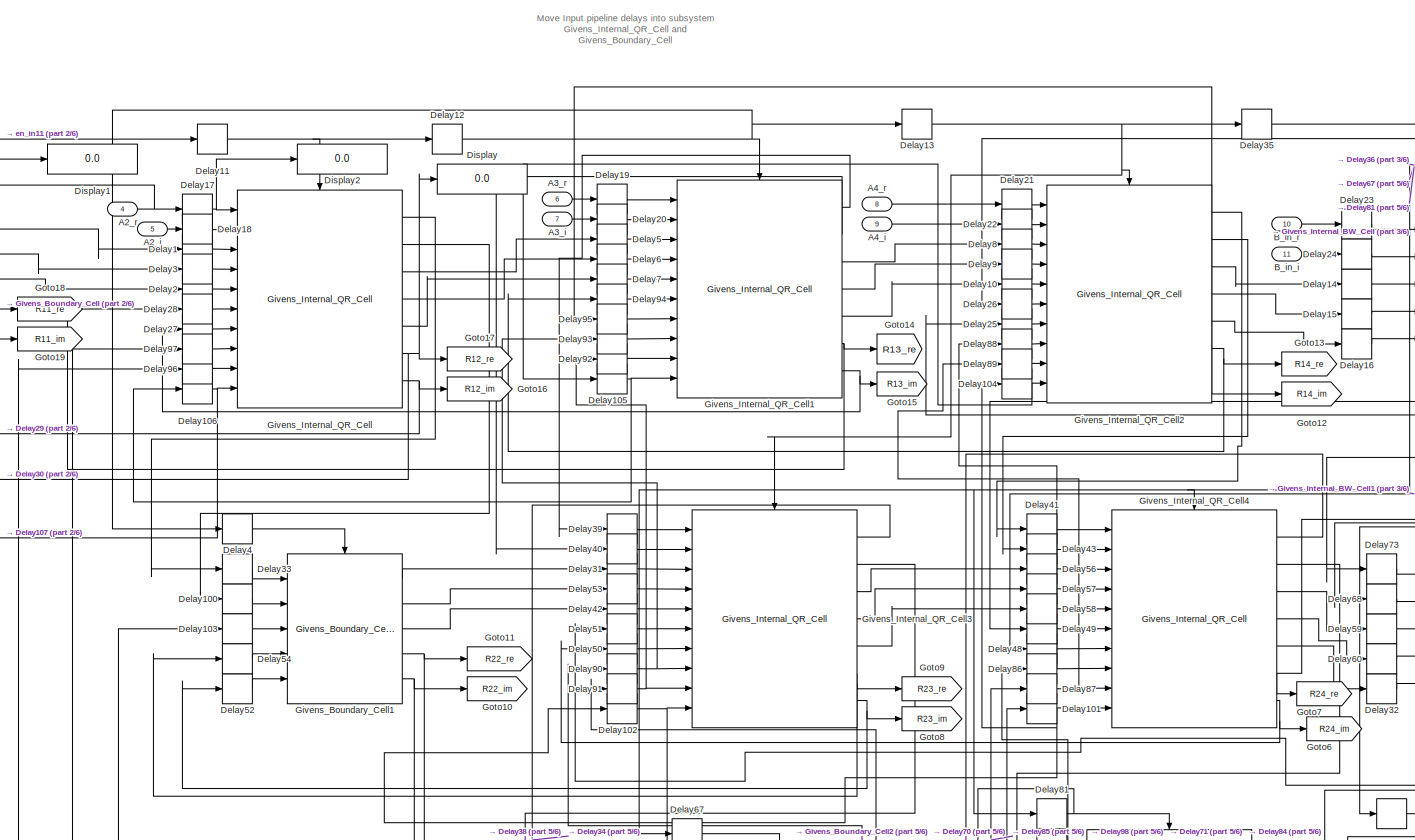
[diagram: fourxfour_designfxdpt_vnl - part 1/6, top center region]
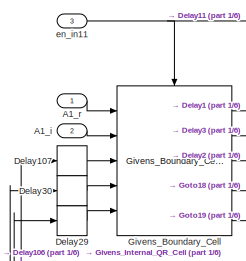
[diagram: fourxfour_designfxdpt_vnl - part 2/6, top left region]
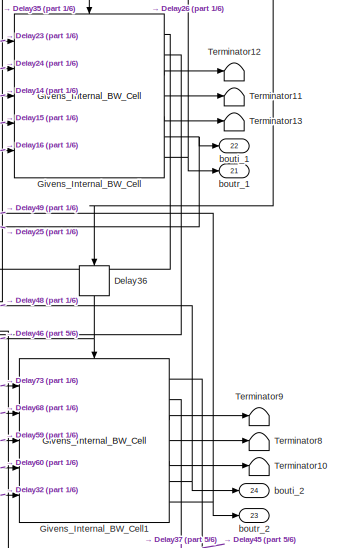
[diagram: fourxfour_designfxdpt_vnl - part 3/6, top right region]
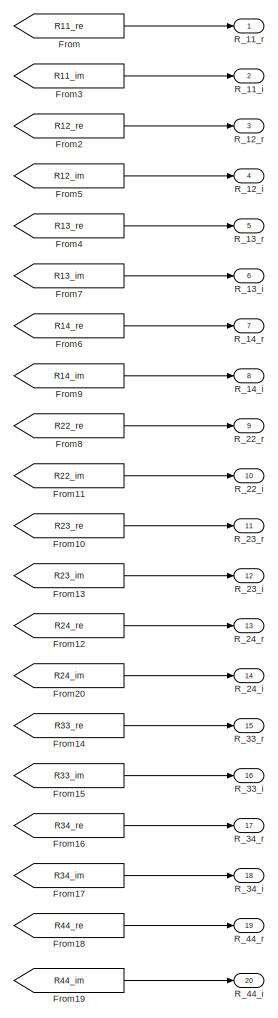
[diagram: fourxfour_designfxdpt_vnl - part 4/6, middle right region]
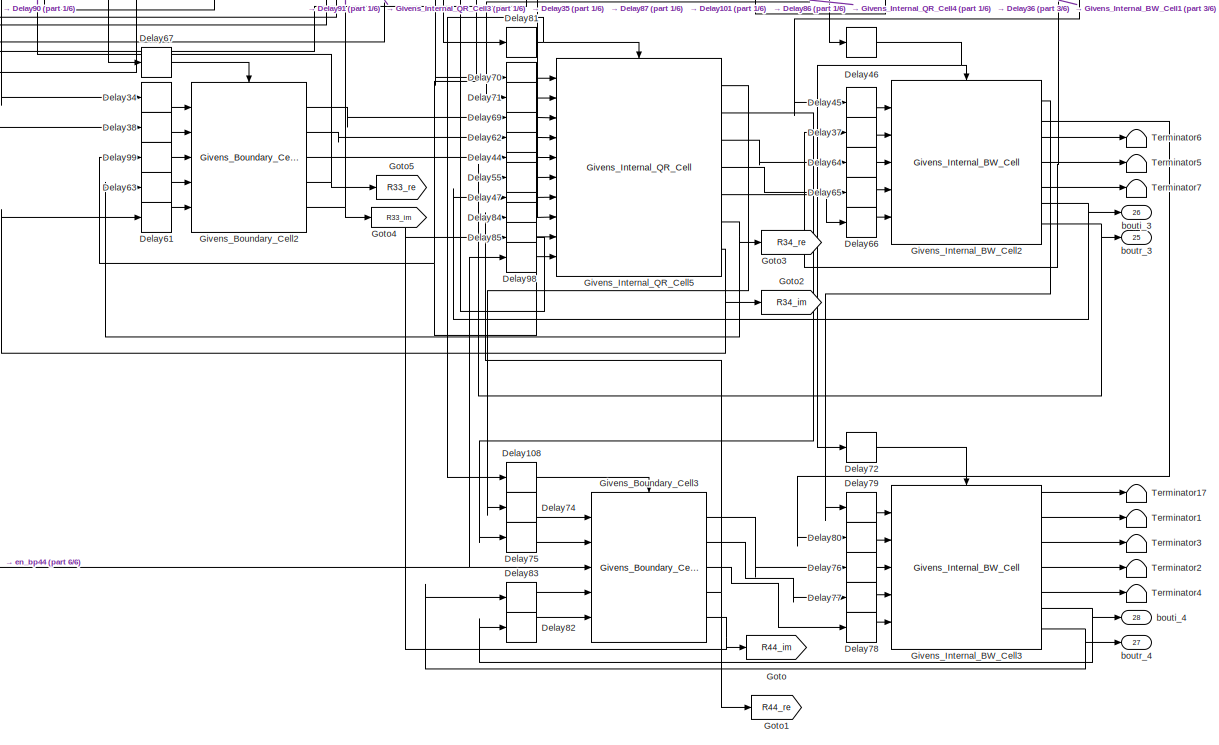
[diagram: fourxfour_designfxdpt_vnl - part 5/6, bottom center region]
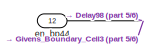
[diagram: fourxfour_designfxdpt_vnl - part 6/6, bottom left region]
BLOCK [SubSystem] fourxfour_designfxdpt_vnl
  Ports = [12, 28]
  RequestExecContextInheritance = off
BLOCK [Inport] fourxfour_designfxdpt_vnl/A1_i
  IconDisplay = Port number
  Port = 2
BLOCK [Inport] fourxfour_designfxdpt_vnl/A1_r 
  IconDisplay = Port number
BLOCK [Inport] fourxfour_designfxdpt_vnl/A2_i
  IconDisplay = Port number
  Port = 5
BLOCK [Inport] fourxfour_designfxdpt_vnl/A2_r
  IconDisplay = Port number
  Port = 4
BLOCK [Inport] fourxfour_designfxdpt_vnl/A3_i
  IconDisplay = Port number
  Port = 7
BLOCK [Inport] fourxfour_designfxdpt_vnl/A3_r
  IconDisplay = Port number
  Port = 6
BLOCK [Inport] fourxfour_designfxdpt_vnl/A4_i
  IconDisplay = Port number
  Port = 9
BLOCK [Inport] fourxfour_designfxdpt_vnl/A4_r
  IconDisplay = Port number
  Port = 8
BLOCK [Inport] fourxfour_designfxdpt_vnl/B_in_i
  IconDisplay = Port number
  Port = 11
BLOCK [Inport] fourxfour_designfxdpt_vnl/B_in_r
  IconDisplay = Port number
  Port = 10
BLOCK [Delay] fourxfour_designfxdpt_vnl/Delay1
  DelayLength = 1
  InitialCondition = 0
  InputPortMap = u0
  Ports = [1, 1]
BLOCK [Delay] fourxfour_designfxdpt_vnl/Delay10
  DelayLength = 1
  InitialCondition = 0
  InputPortMap = u0
  Ports = [1, 1]
BLOCK [Delay] fourxfour_designfxdpt_vnl/Delay100
  DelayLength = 1
  InitialCondition = 0
  InputPortMap = u0
  Ports = [1, 1]
BLOCK [Delay] fourxfour_designfxdpt_vnl/Delay101
  DelayLength = 1
  InitialCondition = 0
  InputPortMap = u0
  Ports = [1, 1]
BLOCK [Delay] fourxfour_designfxdpt_vnl/Delay102
  DelayLength = 5
  InitialCondition = 0
  InputPortMap = u0
  Ports = [1, 1]
BLOCK [Delay] fourxfour_designfxdpt_vnl/Delay103
  DelayLength = 1
  InitialCondition = 0
  InputPortMap = u0
  Ports = [1, 1]
BLOCK [Delay] fourxfour_designfxdpt_vnl/Delay104
  DelayLength = 1
  InitialCondition = 0
  InputPortMap = u0
  Ports = [1, 1]
BLOCK [Delay] fourxfour_designfxdpt_vnl/Delay105
  DelayLength = 1
  InitialCondition = 0
  InputPortMap = u0
  Ports = [1, 1]
BLOCK [Delay] fourxfour_designfxdpt_vnl/Delay106
  DelayLength = 5
  InitialCondition = 0
  InputPortMap = u0
  Ports = [1, 1]
BLOCK [Delay] fourxfour_designfxdpt_vnl/Delay107
  DelayLength = 1
  InitialCondition = 0
  InputPortMap = u0
  Ports = [1, 1]
BLOCK [Delay] fourxfour_designfxdpt_vnl/Delay108
  DelayLength = 1
  InitialCondition = 0
  InputPortMap = u0
  Ports = [1, 1]
BLOCK [Delay] fourxfour_designfxdpt_vnl/Delay11
  DelayLength = 1
  InitialCondition = 0
  InputPortMap = u0
  Ports = [1, 1]
BLOCK [Delay] fourxfour_designfxdpt_vnl/Delay12
  DelayLength = 1
  InitialCondition = 0
  InputPortMap = u0
  Ports = [1, 1]
BLOCK [Delay] fourxfour_designfxdpt_vnl/Delay13
  DelayLength = 1
  InitialCondition = 0
  InputPortMap = u0
  Ports = [1, 1]
BLOCK [Delay] fourxfour_designfxdpt_vnl/Delay14
  DelayLength = 1
  InitialCondition = 0
  InputPortMap = u0
  Ports = [1, 1]
BLOCK [Delay] fourxfour_designfxdpt_vnl/Delay15
  DelayLength = 1
  InitialCondition = 0
  InputPortMap = u0
  Ports = [1, 1]
BLOCK [Delay] fourxfour_designfxdpt_vnl/Delay16
  DelayLength = 1
  InitialCondition = 0
  InputPortMap = u0
  Ports = [1, 1]
BLOCK [Delay] fourxfour_designfxdpt_vnl/Delay17
  DelayLength = 5
  InitialCondition = 0
  InputPortMap = u0
  Ports = [1, 1]
BLOCK [Delay] fourxfour_designfxdpt_vnl/Delay18
  DelayLength = 5
  InitialCondition = 0
  InputPortMap = u0
  Ports = [1, 1]
BLOCK [Delay] fourxfour_designfxdpt_vnl/Delay19
  DelayLength = 6
  InitialCondition = 0
  InputPortMap = u0
  Ports = [1, 1]
BLOCK [Delay] fourxfour_designfxdpt_vnl/Delay2
  DelayLength = 1
  InitialCondition = 0
  InputPortMap = u0
  Ports = [1, 1]
BLOCK [Delay] fourxfour_designfxdpt_vnl/Delay20
  DelayLength = 6
  InitialCondition = 0
  InputPortMap = u0
  Ports = [1, 1]
BLOCK [Delay] fourxfour_designfxdpt_vnl/Delay21
  DelayLength = 7
  InitialCondition = 0
  InputPortMap = u0
  Ports = [1, 1]
BLOCK [Delay] fourxfour_designfxdpt_vnl/Delay22
  DelayLength = 7
  InitialCondition = 0
  InputPortMap = u0
  Ports = [1, 1]
BLOCK [Delay] fourxfour_designfxdpt_vnl/Delay23
  DelayLength = 8
  InitialCondition = 0
  InputPortMap = u0
  Ports = [1, 1]
BLOCK [Delay] fourxfour_designfxdpt_vnl/Delay24
  DelayLength = 8
  InitialCondition = 0
  InputPortMap = u0
  Ports = [1, 1]
BLOCK [Delay] fourxfour_designfxdpt_vnl/Delay25
  DelayLength = 1
  InitialCondition = 0
  InputPortMap = u0
  Ports = [1, 1]
BLOCK [Delay] fourxfour_designfxdpt_vnl/Delay26
  DelayLength = 1
  InitialCondition = 0
  InputPortMap = u0
  Ports = [1, 1]
BLOCK [Delay] fourxfour_designfxdpt_vnl/Delay27
  DelayLength = 5
  InitialCondition = 0
  InputPortMap = u0
  Ports = [1, 1]
BLOCK [Delay] fourxfour_designfxdpt_vnl/Delay28
  DelayLength = 5
  InitialCondition = 0
  InputPortMap = u0
  Ports = [1, 1]
BLOCK [Delay] fourxfour_designfxdpt_vnl/Delay29
  DelayLength = 1
  InitialCondition = 0
  InputPortMap = u0
  Ports = [1, 1]
BLOCK [Delay] fourxfour_designfxdpt_vnl/Delay3
  DelayLength = 1
  InitialCondition = 0
  InputPortMap = u0
  Ports = [1, 1]
BLOCK [Delay] fourxfour_designfxdpt_vnl/Delay30
  DelayLength = 1
  InitialCondition = 0
  InputPortMap = u0
  Ports = [1, 1]
BLOCK [Delay] fourxfour_designfxdpt_vnl/Delay31
  DelayLength = 1
  InitialCondition = 0
  InputPortMap = u0
  Ports = [1, 1]
BLOCK [Delay] fourxfour_designfxdpt_vnl/Delay32
  DelayLength = 1
  InitialCondition = 0
  InputPortMap = u0
  Ports = [1, 1]
BLOCK [Delay] fourxfour_designfxdpt_vnl/Delay33
  DelayLength = 1
  InitialCondition = 0
  InputPortMap = u0
  Ports = [1, 1]
BLOCK [Delay] fourxfour_designfxdpt_vnl/Delay34
  DelayLength = 1
  InitialCondition = 0
  InputPortMap = u0
  Ports = [1, 1]
BLOCK [Delay] fourxfour_designfxdpt_vnl/Delay35
  DelayLength = 1
  InitialCondition = 0
  InputPortMap = u0
  Ports = [1, 1]
BLOCK [Delay] fourxfour_designfxdpt_vnl/Delay36
  InitialCondition = 0
  InputPortMap = u0
  Ports = [1, 1]
BLOCK [Delay] fourxfour_designfxdpt_vnl/Delay37
  DelayLength = 5
  InitialCondition = 0
  InputPortMap = u0
  Ports = [1, 1]
BLOCK [Delay] fourxfour_designfxdpt_vnl/Delay38
  DelayLength = 1
  InitialCondition = 0
  InputPortMap = u0
  Ports = [1, 1]
BLOCK [Delay] fourxfour_designfxdpt_vnl/Delay39
  DelayLength = 5
  InitialCondition = 0
  InputPortMap = u0
  Ports = [1, 1]
BLOCK [Delay] fourxfour_designfxdpt_vnl/Delay4
  DelayLength = 1
  InitialCondition = 0
  InputPortMap = u0
  Ports = [1, 1]
BLOCK [Delay] fourxfour_designfxdpt_vnl/Delay40
  DelayLength = 5
  InitialCondition = 0
  InputPortMap = u0
  Ports = [1, 1]
BLOCK [Delay] fourxfour_designfxdpt_vnl/Delay41
  DelayLength = 5
  InitialCondition = 0
  InputPortMap = u0
  Ports = [1, 1]
BLOCK [Delay] fourxfour_designfxdpt_vnl/Delay42
  DelayLength = 1
  InitialCondition = 0
  InputPortMap = u0
  Ports = [1, 1]
BLOCK [Delay] fourxfour_designfxdpt_vnl/Delay43
  DelayLength = 5
  InitialCondition = 0
  InputPortMap = u0
  Ports = [1, 1]
BLOCK [Delay] fourxfour_designfxdpt_vnl/Delay44
  DelayLength = 1
  InitialCondition = 0
  InputPortMap = u0
  Ports = [1, 1]
BLOCK [Delay] fourxfour_designfxdpt_vnl/Delay45
  DelayLength = 5
  InitialCondition = 0
  InputPortMap = u0
  Ports = [1, 1]
BLOCK [Delay] fourxfour_designfxdpt_vnl/Delay46
  InitialCondition = 0
  InputPortMap = u0
  Ports = [1, 1]
BLOCK [Delay] fourxfour_designfxdpt_vnl/Delay47
  DelayLength = 5
  InitialCondition = 0
  InputPortMap = u0
  Ports = [1, 1]
BLOCK [Delay] fourxfour_designfxdpt_vnl/Delay48
  DelayLength = 1
  InitialCondition = 0
  InputPortMap = u0
  Ports = [1, 1]
BLOCK [Delay] fourxfour_designfxdpt_vnl/Delay49
  DelayLength = 1
  InitialCondition = 0
  InputPortMap = u0
  Ports = [1, 1]
BLOCK [Delay] fourxfour_designfxdpt_vnl/Delay5
  DelayLength = 1
  InitialCondition = 0
  InputPortMap = u0
  Ports = [1, 1]
BLOCK [Delay] fourxfour_designfxdpt_vnl/Delay50
  DelayLength = 5
  InitialCondition = 0
  InputPortMap = u0
  Ports = [1, 1]
BLOCK [Delay] fourxfour_designfxdpt_vnl/Delay51
  DelayLength = 5
  InitialCondition = 0
  InputPortMap = u0
  Ports = [1, 1]
BLOCK [Delay] fourxfour_designfxdpt_vnl/Delay52
  DelayLength = 1
  InitialCondition = 0
  InputPortMap = u0
  Ports = [1, 1]
BLOCK [Delay] fourxfour_designfxdpt_vnl/Delay53
  DelayLength = 1
  InitialCondition = 0
  InputPortMap = u0
  Ports = [1, 1]
BLOCK [Delay] fourxfour_designfxdpt_vnl/Delay54
  DelayLength = 1
  InitialCondition = 0
  InputPortMap = u0
  Ports = [1, 1]
BLOCK [Delay] fourxfour_designfxdpt_vnl/Delay55
  DelayLength = 5
  InitialCondition = 0
  InputPortMap = u0
  Ports = [1, 1]
BLOCK [Delay] fourxfour_designfxdpt_vnl/Delay56
  DelayLength = 1
  InitialCondition = 0
  InputPortMap = u0
  Ports = [1, 1]
BLOCK [Delay] fourxfour_designfxdpt_vnl/Delay57
  DelayLength = 1
  InitialCondition = 0
  InputPortMap = u0
  Ports = [1, 1]
BLOCK [Delay] fourxfour_designfxdpt_vnl/Delay58
  DelayLength = 1
  InitialCondition = 0
  InputPortMap = u0
  Ports = [1, 1]
BLOCK [Delay] fourxfour_designfxdpt_vnl/Delay59
  DelayLength = 1
  InitialCondition = 0
  InputPortMap = u0
  Ports = [1, 1]
BLOCK [Delay] fourxfour_designfxdpt_vnl/Delay6
  DelayLength = 1
  InitialCondition = 0
  InputPortMap = u0
  Ports = [1, 1]
BLOCK [Delay] fourxfour_designfxdpt_vnl/Delay60
  DelayLength = 1
  InitialCondition = 0
  InputPortMap = u0
  Ports = [1, 1]
BLOCK [Delay] fourxfour_designfxdpt_vnl/Delay61
  DelayLength = 1
  InitialCondition = 0
  InputPortMap = u0
  Ports = [1, 1]
BLOCK [Delay] fourxfour_designfxdpt_vnl/Delay62
  DelayLength = 1
  InitialCondition = 0
  InputPortMap = u0
  Ports = [1, 1]
BLOCK [Delay] fourxfour_designfxdpt_vnl/Delay63
  DelayLength = 1
  InitialCondition = 0
  InputPortMap = u0
  Ports = [1, 1]
BLOCK [Delay] fourxfour_designfxdpt_vnl/Delay64
  DelayLength = 1
  InitialCondition = 0
  InputPortMap = u0
  Ports = [1, 1]
BLOCK [Delay] fourxfour_designfxdpt_vnl/Delay65
  DelayLength = 1
  InitialCondition = 0
  InputPortMap = u0
  Ports = [1, 1]
BLOCK [Delay] fourxfour_designfxdpt_vnl/Delay66
  DelayLength = 1
  InitialCondition = 0
  InputPortMap = u0
  Ports = [1, 1]
BLOCK [Delay] fourxfour_designfxdpt_vnl/Delay67
  InitialCondition = 0
  InputPortMap = u0
  Ports = [1, 1]
BLOCK [Delay] fourxfour_designfxdpt_vnl/Delay68
  DelayLength = 5
  InitialCondition = 0
  InputPortMap = u0
  Ports = [1, 1]
BLOCK [Delay] fourxfour_designfxdpt_vnl/Delay69
  DelayLength = 1
  InitialCondition = 0
  InputPortMap = u0
  Ports = [1, 1]
BLOCK [Delay] fourxfour_designfxdpt_vnl/Delay7
  DelayLength = 1
  InitialCondition = 0
  InputPortMap = u0
  Ports = [1, 1]
BLOCK [Delay] fourxfour_designfxdpt_vnl/Delay70
  DelayLength = 5
  InitialCondition = 0
  InputPortMap = u0
  Ports = [1, 1]
BLOCK [Delay] fourxfour_designfxdpt_vnl/Delay71
  DelayLength = 5
  InitialCondition = 0
  InputPortMap = u0
  Ports = [1, 1]
BLOCK [Delay] fourxfour_designfxdpt_vnl/Delay72
  InitialCondition = 0
  InputPortMap = u0
  Ports = [1, 1]
BLOCK [Delay] fourxfour_designfxdpt_vnl/Delay73
  DelayLength = 5
  InitialCondition = 0
  InputPortMap = u0
  Ports = [1, 1]
BLOCK [Delay] fourxfour_designfxdpt_vnl/Delay74
  DelayLength = 1
  InitialCondition = 0
  InputPortMap = u0
  Ports = [1, 1]
BLOCK [Delay] fourxfour_designfxdpt_vnl/Delay75
  DelayLength = 1
  InitialCondition = 0
  InputPortMap = u0
  Ports = [1, 1]
BLOCK [Delay] fourxfour_designfxdpt_vnl/Delay76
  DelayLength = 1
  InitialCondition = 0
  InputPortMap = u0
  Ports = [1, 1]
BLOCK [Delay] fourxfour_designfxdpt_vnl/Delay77
  DelayLength = 1
  InitialCondition = 0
  InputPortMap = u0
  Ports = [1, 1]
BLOCK [Delay] fourxfour_designfxdpt_vnl/Delay78
  DelayLength = 1
  InitialCondition = 0
  InputPortMap = u0
  Ports = [1, 1]
BLOCK [Delay] fourxfour_designfxdpt_vnl/Delay79
  DelayLength = 5
  InitialCondition = 0
  InputPortMap = u0
  Ports = [1, 1]
BLOCK [Delay] fourxfour_designfxdpt_vnl/Delay8
  DelayLength = 1
  InitialCondition = 0
  InputPortMap = u0
  Ports = [1, 1]
BLOCK [Delay] fourxfour_designfxdpt_vnl/Delay80
  DelayLength = 5
  InitialCondition = 0
  InputPortMap = u0
  Ports = [1, 1]
BLOCK [Delay] fourxfour_designfxdpt_vnl/Delay81
  DelayLength = 1
  InitialCondition = 0
  InputPortMap = u0
  Ports = [1, 1]
BLOCK [Delay] fourxfour_designfxdpt_vnl/Delay82
  DelayLength = 1
  InitialCondition = 0
  InputPortMap = u0
  Ports = [1, 1]
BLOCK [Delay] fourxfour_designfxdpt_vnl/Delay83
  DelayLength = 1
  InitialCondition = 0
  InputPortMap = u0
  Ports = [1, 1]
BLOCK [Delay] fourxfour_designfxdpt_vnl/Delay84
  DelayLength = 1
  InitialCondition = 0
  InputPortMap = u0
  Ports = [1, 1]
BLOCK [Delay] fourxfour_designfxdpt_vnl/Delay85
  DelayLength = 1
  InitialCondition = 0
  InputPortMap = u0
  Ports = [1, 1]
BLOCK [Delay] fourxfour_designfxdpt_vnl/Delay86
  DelayLength = 1
  InitialCondition = 0
  InputPortMap = u0
  Ports = [1, 1]
BLOCK [Delay] fourxfour_designfxdpt_vnl/Delay87
  DelayLength = 1
  InitialCondition = 0
  InputPortMap = u0
  Ports = [1, 1]
BLOCK [Delay] fourxfour_designfxdpt_vnl/Delay88
  DelayLength = 1
  InitialCondition = 0
  InputPortMap = u0
  Ports = [1, 1]
BLOCK [Delay] fourxfour_designfxdpt_vnl/Delay89
  DelayLength = 1
  InitialCondition = 0
  InputPortMap = u0
  Ports = [1, 1]
BLOCK [Delay] fourxfour_designfxdpt_vnl/Delay9
  DelayLength = 1
  InitialCondition = 0
  InputPortMap = u0
  Ports = [1, 1]
BLOCK [Delay] fourxfour_designfxdpt_vnl/Delay90
  DelayLength = 1
  InitialCondition = 0
  InputPortMap = u0
  Ports = [1, 1]
BLOCK [Delay] fourxfour_designfxdpt_vnl/Delay91
  DelayLength = 1
  InitialCondition = 0
  InputPortMap = u0
  Ports = [1, 1]
BLOCK [Delay] fourxfour_designfxdpt_vnl/Delay92
  DelayLength = 1
  InitialCondition = 0
  InputPortMap = u0
  Ports = [1, 1]
BLOCK [Delay] fourxfour_designfxdpt_vnl/Delay93
  DelayLength = 1
  InitialCondition = 0
  InputPortMap = u0
  Ports = [1, 1]
BLOCK [Delay] fourxfour_designfxdpt_vnl/Delay94
  DelayLength = 1
  InitialCondition = 0
  InputPortMap = u0
  Ports = [1, 1]
BLOCK [Delay] fourxfour_designfxdpt_vnl/Delay95
  DelayLength = 1
  InitialCondition = 0
  InputPortMap = u0
  Ports = [1, 1]
BLOCK [Delay] fourxfour_designfxdpt_vnl/Delay96
  DelayLength = 1
  InitialCondition = 0
  InputPortMap = u0
  Ports = [1, 1]
BLOCK [Delay] fourxfour_designfxdpt_vnl/Delay97
  DelayLength = 1
  InitialCondition = 0
  InputPortMap = u0
  Ports = [1, 1]
BLOCK [Delay] fourxfour_designfxdpt_vnl/Delay98
  DelayLength = 5
  InitialCondition = 0
  InputPortMap = u0
  Ports = [1, 1]
BLOCK [Delay] fourxfour_designfxdpt_vnl/Delay99
  DelayLength = 1
  InitialCondition = 0
  InputPortMap = u0
  Ports = [1, 1]
BLOCK [Display] fourxfour_designfxdpt_vnl/Display
  Decimation = 1
  Ports = [1]
BLOCK [Display] fourxfour_designfxdpt_vnl/Display1
  Decimation = 1
  Ports = [1]
BLOCK [Display] fourxfour_designfxdpt_vnl/Display2
  Decimation = 1
  Ports = [1]
BLOCK [From] fourxfour_designfxdpt_vnl/From
  GotoTag = R11_re
BLOCK [From] fourxfour_designfxdpt_vnl/From10
  GotoTag = R23_re
BLOCK [From] fourxfour_designfxdpt_vnl/From11
  GotoTag = R22_im
BLOCK [From] fourxfour_designfxdpt_vnl/From12
  GotoTag = R24_re
BLOCK [From] fourxfour_designfxdpt_vnl/From13
  GotoTag = R23_im
BLOCK [From] fourxfour_designfxdpt_vnl/From14
  GotoTag = R33_re
BLOCK [From] fourxfour_designfxdpt_vnl/From15
  GotoTag = R33_im
BLOCK [From] fourxfour_designfxdpt_vnl/From16
  GotoTag = R34_re
BLOCK [From] fourxfour_designfxdpt_vnl/From17
  GotoTag = R34_im
BLOCK [From] fourxfour_designfxdpt_vnl/From18
  GotoTag = R44_re
BLOCK [From] fourxfour_designfxdpt_vnl/From19
  GotoTag = R44_im
BLOCK [From] fourxfour_designfxdpt_vnl/From2
  GotoTag = R12_re
BLOCK [From] fourxfour_designfxdpt_vnl/From20
  GotoTag = R24_im
BLOCK [From] fourxfour_designfxdpt_vnl/From3
  GotoTag = R11_im
BLOCK [From] fourxfour_designfxdpt_vnl/From4
  GotoTag = R13_re
BLOCK [From] fourxfour_designfxdpt_vnl/From5
  GotoTag = R12_im
BLOCK [From] fourxfour_designfxdpt_vnl/From6
  GotoTag = R14_re
BLOCK [From] fourxfour_designfxdpt_vnl/From7
  GotoTag = R13_im
BLOCK [From] fourxfour_designfxdpt_vnl/From8
  GotoTag = R22_re
BLOCK [From] fourxfour_designfxdpt_vnl/From9
  GotoTag = R14_im
BLOCK [Reference] fourxfour_designfxdpt_vnl/Givens_Boundary_Cell  REF=mylib/QR Components/Givens/Givens_Boundary_Cell  (lib defined in mdl_dff060b4cf72, slx_39bacd511395, +3 more)
  Ports = [5, 5, 1]
  SourceBlock = mylib/QR Components/Givens/Givens_Boundary_Cell
  SourceProductName = QR_BW_block
  SourceType = SubSystem
BLOCK [Reference] fourxfour_designfxdpt_vnl/Givens_Boundary_Cell1  REF=mylib/QR Components/Givens/Givens_Boundary_Cell  (lib defined in mdl_dff060b4cf72, slx_39bacd511395, +3 more)
  Ports = [5, 5, 1]
  SourceBlock = mylib/QR Components/Givens/Givens_Boundary_Cell
  SourceProductName = QR_BW_block
  SourceType = SubSystem
BLOCK [Reference] fourxfour_designfxdpt_vnl/Givens_Boundary_Cell2  REF=mylib/QR Components/Givens/Givens_Boundary_Cell  (lib defined in mdl_dff060b4cf72, slx_39bacd511395, +3 more)
  Ports = [5, 5, 1]
  SourceBlock = mylib/QR Components/Givens/Givens_Boundary_Cell
  SourceProductName = QR_BW_block
  SourceType = SubSystem
BLOCK [Reference] fourxfour_designfxdpt_vnl/Givens_Boundary_Cell3  REF=mylib/QR Components/Givens/Givens_Boundary_Cell  (lib defined in mdl_dff060b4cf72, slx_39bacd511395, +3 more)
  Ports = [5, 5, 1]
  SourceBlock = mylib/QR Components/Givens/Givens_Boundary_Cell
  SourceProductName = QR_BW_block
  SourceType = SubSystem
BLOCK [Reference] fourxfour_designfxdpt_vnl/Givens_Internal_BW_Cell  REF=mylib/QR Components/Givens/Givens_Internal_BW_Cell  (lib defined in mdl_dff060b4cf72, slx_39bacd511395, +3 more)
  Ports = [5, 7, 1]
  SourceBlock = mylib/QR Components/Givens/Givens_Internal_BW_Cell
  SourceProductName = QR_BW_block
  SourceType = SubSystem
BLOCK [Reference] fourxfour_designfxdpt_vnl/Givens_Internal_BW_Cell1  REF=mylib/QR Components/Givens/Givens_Internal_BW_Cell  (lib defined in mdl_dff060b4cf72, slx_39bacd511395, +3 more)
  Ports = [5, 7, 1]
  SourceBlock = mylib/QR Components/Givens/Givens_Internal_BW_Cell
  SourceProductName = QR_BW_block
  SourceType = SubSystem
BLOCK [Reference] fourxfour_designfxdpt_vnl/Givens_Internal_BW_Cell2  REF=mylib/QR Components/Givens/Givens_Internal_BW_Cell  (lib defined in mdl_dff060b4cf72, slx_39bacd511395, +3 more)
  Ports = [5, 7, 1]
  SourceBlock = mylib/QR Components/Givens/Givens_Internal_BW_Cell
  SourceProductName = QR_BW_block
  SourceType = SubSystem
BLOCK [Reference] fourxfour_designfxdpt_vnl/Givens_Internal_BW_Cell3  REF=mylib/QR Components/Givens/Givens_Internal_BW_Cell  (lib defined in mdl_dff060b4cf72, slx_39bacd511395, +3 more)
  Ports = [5, 7, 1]
  SourceBlock = mylib/QR Components/Givens/Givens_Internal_BW_Cell
  SourceProductName = QR_BW_block
  SourceType = SubSystem
BLOCK [Reference] fourxfour_designfxdpt_vnl/Givens_Internal_QR_Cell  REF=mylib/QR Components/Givens/Givens_Internal_QR_Cell  (lib defined in mdl_dff060b4cf72, slx_39bacd511395, +3 more)
  Ports = [10, 7, 1]
  SourceBlock = mylib/QR Components/Givens/Givens_Internal_QR_Cell
  SourceProductName = QR_BW_block
  SourceType = SubSystem
BLOCK [Reference] fourxfour_designfxdpt_vnl/Givens_Internal_QR_Cell1  REF=mylib/QR Components/Givens/Givens_Internal_QR_Cell  (lib defined in mdl_dff060b4cf72, slx_39bacd511395, +3 more)
  Ports = [10, 7, 1]
  SourceBlock = mylib/QR Components/Givens/Givens_Internal_QR_Cell
  SourceProductName = QR_BW_block
  SourceType = SubSystem
BLOCK [Reference] fourxfour_designfxdpt_vnl/Givens_Internal_QR_Cell2  REF=mylib/QR Components/Givens/Givens_Internal_QR_Cell  (lib defined in mdl_dff060b4cf72, slx_39bacd511395, +3 more)
  Ports = [10, 7, 1]
  SourceBlock = mylib/QR Components/Givens/Givens_Internal_QR_Cell
  SourceProductName = QR_BW_block
  SourceType = SubSystem
BLOCK [Reference] fourxfour_designfxdpt_vnl/Givens_Internal_QR_Cell3  REF=mylib/QR Components/Givens/Givens_Internal_QR_Cell  (lib defined in mdl_dff060b4cf72, slx_39bacd511395, +3 more)
  Ports = [10, 7, 1]
  SourceBlock = mylib/QR Components/Givens/Givens_Internal_QR_Cell
  SourceProductName = QR_BW_block
  SourceType = SubSystem
BLOCK [Reference] fourxfour_designfxdpt_vnl/Givens_Internal_QR_Cell4  REF=mylib/QR Components/Givens/Givens_Internal_QR_Cell  (lib defined in mdl_dff060b4cf72, slx_39bacd511395, +3 more)
  Ports = [10, 7, 1]
  SourceBlock = mylib/QR Components/Givens/Givens_Internal_QR_Cell
  SourceProductName = QR_BW_block
  SourceType = SubSystem
BLOCK [Reference] fourxfour_designfxdpt_vnl/Givens_Internal_QR_Cell5  REF=mylib/QR Components/Givens/Givens_Internal_QR_Cell  (lib defined in mdl_dff060b4cf72, slx_39bacd511395, +3 more)
  Ports = [10, 7, 1]
  SourceBlock = mylib/QR Components/Givens/Givens_Internal_QR_Cell
  SourceProductName = QR_BW_block
  SourceType = SubSystem
BLOCK [Goto] fourxfour_designfxdpt_vnl/Goto
  GotoTag = R44_im
BLOCK [Goto] fourxfour_designfxdpt_vnl/Goto1
  GotoTag = R44_re
BLOCK [Goto] fourxfour_designfxdpt_vnl/Goto10
  GotoTag = R22_im
BLOCK [Goto] fourxfour_designfxdpt_vnl/Goto11
  GotoTag = R22_re
BLOCK [Goto] fourxfour_designfxdpt_vnl/Goto12
  GotoTag = R14_im
BLOCK [Goto] fourxfour_designfxdpt_vnl/Goto13
  GotoTag = R14_re
BLOCK [Goto] fourxfour_designfxdpt_vnl/Goto14
  GotoTag = R13_re
BLOCK [Goto] fourxfour_designfxdpt_vnl/Goto15
  GotoTag = R13_im
BLOCK [Goto] fourxfour_designfxdpt_vnl/Goto16
  GotoTag = R12_im
BLOCK [Goto] fourxfour_designfxdpt_vnl/Goto17
  GotoTag = R12_re
BLOCK [Goto] fourxfour_designfxdpt_vnl/Goto18
  GotoTag = R11_re
BLOCK [Goto] fourxfour_designfxdpt_vnl/Goto19
  GotoTag = R11_im
BLOCK [Goto] fourxfour_designfxdpt_vnl/Goto2
  GotoTag = R34_im
BLOCK [Goto] fourxfour_designfxdpt_vnl/Goto3
  GotoTag = R34_re
BLOCK [Goto] fourxfour_designfxdpt_vnl/Goto4
  GotoTag = R33_im
BLOCK [Goto] fourxfour_designfxdpt_vnl/Goto5
  GotoTag = R33_re
BLOCK [Goto] fourxfour_designfxdpt_vnl/Goto6
  GotoTag = R24_im
BLOCK [Goto] fourxfour_designfxdpt_vnl/Goto7
  GotoTag = R24_re
BLOCK [Goto] fourxfour_designfxdpt_vnl/Goto8
  GotoTag = R23_im
BLOCK [Goto] fourxfour_designfxdpt_vnl/Goto9
  GotoTag = R23_re
BLOCK [Outport] fourxfour_designfxdpt_vnl/R_11_i
  IconDisplay = Port number
  Port = 2
BLOCK [Outport] fourxfour_designfxdpt_vnl/R_11_r
  IconDisplay = Port number
BLOCK [Outport] fourxfour_designfxdpt_vnl/R_12_i
  IconDisplay = Port number
  Port = 4
BLOCK [Outport] fourxfour_designfxdpt_vnl/R_12_r
  IconDisplay = Port number
  Port = 3
BLOCK [Outport] fourxfour_designfxdpt_vnl/R_13_i
  IconDisplay = Port number
  Port = 6
BLOCK [Outport] fourxfour_designfxdpt_vnl/R_13_r
  IconDisplay = Port number
  Port = 5
BLOCK [Outport] fourxfour_designfxdpt_vnl/R_14_i
  IconDisplay = Port number
  Port = 8
BLOCK [Outport] fourxfour_designfxdpt_vnl/R_14_r
  IconDisplay = Port number
  Port = 7
BLOCK [Outport] fourxfour_designfxdpt_vnl/R_22_i
  IconDisplay = Port number
  Port = 10
BLOCK [Outport] fourxfour_designfxdpt_vnl/R_22_r
  IconDisplay = Port number
  Port = 9
BLOCK [Outport] fourxfour_designfxdpt_vnl/R_23_i
  IconDisplay = Port number
  Port = 12
BLOCK [Outport] fourxfour_designfxdpt_vnl/R_23_r
  IconDisplay = Port number
  Port = 11
BLOCK [Outport] fourxfour_designfxdpt_vnl/R_24_i
  IconDisplay = Port number
  Port = 14
BLOCK [Outport] fourxfour_designfxdpt_vnl/R_24_r
  IconDisplay = Port number
  Port = 13
BLOCK [Outport] fourxfour_designfxdpt_vnl/R_33_i
  IconDisplay = Port number
  Port = 16
BLOCK [Outport] fourxfour_designfxdpt_vnl/R_33_r
  IconDisplay = Port number
  Port = 15
BLOCK [Outport] fourxfour_designfxdpt_vnl/R_34_i
  IconDisplay = Port number
  Port = 18
BLOCK [Outport] fourxfour_designfxdpt_vnl/R_34_r
  IconDisplay = Port number
  Port = 17
BLOCK [Outport] fourxfour_designfxdpt_vnl/R_44_i
  IconDisplay = Port number
  Port = 20
BLOCK [Outport] fourxfour_designfxdpt_vnl/R_44_r
  IconDisplay = Port number
  Port = 19
BLOCK [Terminator] fourxfour_designfxdpt_vnl/Terminator1
BLOCK [Terminator] fourxfour_designfxdpt_vnl/Terminator10
BLOCK [Terminator] fourxfour_designfxdpt_vnl/Terminator11
BLOCK [Terminator] fourxfour_designfxdpt_vnl/Terminator12
BLOCK [Terminator] fourxfour_designfxdpt_vnl/Terminator13
BLOCK [Terminator] fourxfour_designfxdpt_vnl/Terminator17
BLOCK [Terminator] fourxfour_designfxdpt_vnl/Terminator2
BLOCK [Terminator] fourxfour_designfxdpt_vnl/Terminator3
BLOCK [Terminator] fourxfour_designfxdpt_vnl/Terminator4
BLOCK [Terminator] fourxfour_designfxdpt_vnl/Terminator5
BLOCK [Terminator] fourxfour_designfxdpt_vnl/Terminator6
BLOCK [Terminator] fourxfour_designfxdpt_vnl/Terminator7
BLOCK [Terminator] fourxfour_designfxdpt_vnl/Terminator8
BLOCK [Terminator] fourxfour_designfxdpt_vnl/Terminator9
BLOCK [Outport] fourxfour_designfxdpt_vnl/bouti_1
  IconDisplay = Port number
  Port = 22
BLOCK [Outport] fourxfour_designfxdpt_vnl/bouti_2
  IconDisplay = Port number
  Port = 24
BLOCK [Outport] fourxfour_designfxdpt_vnl/bouti_3
  IconDisplay = Port number
  Port = 26
BLOCK [Outport] fourxfour_designfxdpt_vnl/bouti_4
  IconDisplay = Port number
  Port = 28
BLOCK [Outport] fourxfour_designfxdpt_vnl/boutr_1
  IconDisplay = Port number
  Port = 21
BLOCK [Outport] fourxfour_designfxdpt_vnl/boutr_2
  IconDisplay = Port number
  Port = 23
BLOCK [Outport] fourxfour_designfxdpt_vnl/boutr_3
  IconDisplay = Port number
  Port = 25
BLOCK [Outport] fourxfour_designfxdpt_vnl/boutr_4
  IconDisplay = Port number
  Port = 27
BLOCK [Inport] fourxfour_designfxdpt_vnl/en_bp44
  IconDisplay = Port number
  Port = 12
BLOCK [Inport] fourxfour_designfxdpt_vnl/en_in11 
  IconDisplay = Port number
  Port = 3
ANNOTATION fourxfour_designfxdpt_vnl: Move Input pipeline delays into subsystem Givens_Internal_QR_Cell and Givens_Boundary_Cell
LINE Compare/Assert_R_11_i/Compare To Zero:1 -> Compare/Assert_R_11_i/compare: R_11_i:3
NET Compare/Assert_R_11_i/Relational Operator:1 -> Compare/Assert_R_11_i/AssertEq:1, Compare/Assert_R_11_i/Compare To Zero:1
NET Compare/Assert_R_11_i/cosim:1 -> Compare/Assert_R_11_i/Relational Operator:1, Compare/Assert_R_11_i/compare: R_11_i:1
NET Compare/Assert_R_11_i/dut:1 -> Compare/Assert_R_11_i/Relational Operator:2, Compare/Assert_R_11_i/compare: R_11_i:2
LINE Compare/Assert_R_11_r/Compare To Zero:1 -> Compare/Assert_R_11_r/compare: R_11_r:3
NET Compare/Assert_R_11_r/Relational Operator:1 -> Compare/Assert_R_11_r/AssertEq:1, Compare/Assert_R_11_r/Compare To Zero:1
NET Compare/Assert_R_11_r/cosim:1 -> Compare/Assert_R_11_r/Relational Operator:1, Compare/Assert_R_11_r/compare: R_11_r:1
NET Compare/Assert_R_11_r/dut:1 -> Compare/Assert_R_11_r/Relational Operator:2, Compare/Assert_R_11_r/compare: R_11_r:2
LINE Compare/Assert_R_12_i/Compare To Zero:1 -> Compare/Assert_R_12_i/compare: R_12_i:3
NET Compare/Assert_R_12_i/Relational Operator:1 -> Compare/Assert_R_12_i/AssertEq:1, Compare/Assert_R_12_i/Compare To Zero:1
NET Compare/Assert_R_12_i/cosim:1 -> Compare/Assert_R_12_i/Relational Operator:1, Compare/Assert_R_12_i/compare: R_12_i:1
NET Compare/Assert_R_12_i/dut:1 -> Compare/Assert_R_12_i/Relational Operator:2, Compare/Assert_R_12_i/compare: R_12_i:2
LINE Compare/Assert_R_12_r/Compare To Zero:1 -> Compare/Assert_R_12_r/compare: R_12_r:3
NET Compare/Assert_R_12_r/Relational Operator:1 -> Compare/Assert_R_12_r/AssertEq:1, Compare/Assert_R_12_r/Compare To Zero:1
NET Compare/Assert_R_12_r/cosim:1 -> Compare/Assert_R_12_r/Relational Operator:1, Compare/Assert_R_12_r/compare: R_12_r:1
NET Compare/Assert_R_12_r/dut:1 -> Compare/Assert_R_12_r/Relational Operator:2, Compare/Assert_R_12_r/compare: R_12_r:2
LINE Compare/Assert_R_13_i/Compare To Zero:1 -> Compare/Assert_R_13_i/compare: R_13_i:3
NET Compare/Assert_R_13_i/Relational Operator:1 -> Compare/Assert_R_13_i/AssertEq:1, Compare/Assert_R_13_i/Compare To Zero:1
NET Compare/Assert_R_13_i/cosim:1 -> Compare/Assert_R_13_i/Relational Operator:1, Compare/Assert_R_13_i/compare: R_13_i:1
NET Compare/Assert_R_13_i/dut:1 -> Compare/Assert_R_13_i/Relational Operator:2, Compare/Assert_R_13_i/compare: R_13_i:2
LINE Compare/Assert_R_13_r/Compare To Zero:1 -> Compare/Assert_R_13_r/compare: R_13_r:3
NET Compare/Assert_R_13_r/Relational Operator:1 -> Compare/Assert_R_13_r/AssertEq:1, Compare/Assert_R_13_r/Compare To Zero:1
NET Compare/Assert_R_13_r/cosim:1 -> Compare/Assert_R_13_r/Relational Operator:1, Compare/Assert_R_13_r/compare: R_13_r:1
NET Compare/Assert_R_13_r/dut:1 -> Compare/Assert_R_13_r/Relational Operator:2, Compare/Assert_R_13_r/compare: R_13_r:2
LINE Compare/Assert_R_14_i/Compare To Zero:1 -> Compare/Assert_R_14_i/compare: R_14_i:3
NET Compare/Assert_R_14_i/Relational Operator:1 -> Compare/Assert_R_14_i/AssertEq:1, Compare/Assert_R_14_i/Compare To Zero:1
NET Compare/Assert_R_14_i/cosim:1 -> Compare/Assert_R_14_i/Relational Operator:1, Compare/Assert_R_14_i/compare: R_14_i:1
NET Compare/Assert_R_14_i/dut:1 -> Compare/Assert_R_14_i/Relational Operator:2, Compare/Assert_R_14_i/compare: R_14_i:2
LINE Compare/Assert_R_14_r/Compare To Zero:1 -> Compare/Assert_R_14_r/compare: R_14_r:3
NET Compare/Assert_R_14_r/Relational Operator:1 -> Compare/Assert_R_14_r/AssertEq:1, Compare/Assert_R_14_r/Compare To Zero:1
NET Compare/Assert_R_14_r/cosim:1 -> Compare/Assert_R_14_r/Relational Operator:1, Compare/Assert_R_14_r/compare: R_14_r:1
NET Compare/Assert_R_14_r/dut:1 -> Compare/Assert_R_14_r/Relational Operator:2, Compare/Assert_R_14_r/compare: R_14_r:2
LINE Compare/Assert_R_22_i/Compare To Zero:1 -> Compare/Assert_R_22_i/compare: R_22_i:3
NET Compare/Assert_R_22_i/Relational Operator:1 -> Compare/Assert_R_22_i/AssertEq:1, Compare/Assert_R_22_i/Compare To Zero:1
NET Compare/Assert_R_22_i/cosim:1 -> Compare/Assert_R_22_i/Relational Operator:1, Compare/Assert_R_22_i/compare: R_22_i:1
NET Compare/Assert_R_22_i/dut:1 -> Compare/Assert_R_22_i/Relational Operator:2, Compare/Assert_R_22_i/compare: R_22_i:2
LINE Compare/Assert_R_22_r/Compare To Zero:1 -> Compare/Assert_R_22_r/compare: R_22_r:3
NET Compare/Assert_R_22_r/Relational Operator:1 -> Compare/Assert_R_22_r/AssertEq:1, Compare/Assert_R_22_r/Compare To Zero:1
NET Compare/Assert_R_22_r/cosim:1 -> Compare/Assert_R_22_r/Relational Operator:1, Compare/Assert_R_22_r/compare: R_22_r:1
NET Compare/Assert_R_22_r/dut:1 -> Compare/Assert_R_22_r/Relational Operator:2, Compare/Assert_R_22_r/compare: R_22_r:2
LINE Compare/Assert_R_23_i/Compare To Zero:1 -> Compare/Assert_R_23_i/compare: R_23_i:3
NET Compare/Assert_R_23_i/Relational Operator:1 -> Compare/Assert_R_23_i/AssertEq:1, Compare/Assert_R_23_i/Compare To Zero:1
NET Compare/Assert_R_23_i/cosim:1 -> Compare/Assert_R_23_i/Relational Operator:1, Compare/Assert_R_23_i/compare: R_23_i:1
NET Compare/Assert_R_23_i/dut:1 -> Compare/Assert_R_23_i/Relational Operator:2, Compare/Assert_R_23_i/compare: R_23_i:2
LINE Compare/Assert_R_23_r/Compare To Zero:1 -> Compare/Assert_R_23_r/compare: R_23_r:3
NET Compare/Assert_R_23_r/Relational Operator:1 -> Compare/Assert_R_23_r/AssertEq:1, Compare/Assert_R_23_r/Compare To Zero:1
NET Compare/Assert_R_23_r/cosim:1 -> Compare/Assert_R_23_r/Relational Operator:1, Compare/Assert_R_23_r/compare: R_23_r:1
NET Compare/Assert_R_23_r/dut:1 -> Compare/Assert_R_23_r/Relational Operator:2, Compare/Assert_R_23_r/compare: R_23_r:2
LINE Compare/Assert_R_24_i/Compare To Zero:1 -> Compare/Assert_R_24_i/compare: R_24_i:3
NET Compare/Assert_R_24_i/Relational Operator:1 -> Compare/Assert_R_24_i/AssertEq:1, Compare/Assert_R_24_i/Compare To Zero:1
NET Compare/Assert_R_24_i/cosim:1 -> Compare/Assert_R_24_i/Relational Operator:1, Compare/Assert_R_24_i/compare: R_24_i:1
NET Compare/Assert_R_24_i/dut:1 -> Compare/Assert_R_24_i/Relational Operator:2, Compare/Assert_R_24_i/compare: R_24_i:2
LINE Compare/Assert_R_24_r/Compare To Zero:1 -> Compare/Assert_R_24_r/compare: R_24_r:3
NET Compare/Assert_R_24_r/Relational Operator:1 -> Compare/Assert_R_24_r/AssertEq:1, Compare/Assert_R_24_r/Compare To Zero:1
NET Compare/Assert_R_24_r/cosim:1 -> Compare/Assert_R_24_r/Relational Operator:1, Compare/Assert_R_24_r/compare: R_24_r:1
NET Compare/Assert_R_24_r/dut:1 -> Compare/Assert_R_24_r/Relational Operator:2, Compare/Assert_R_24_r/compare: R_24_r:2
LINE Compare/Assert_R_33_i/Compare To Zero:1 -> Compare/Assert_R_33_i/compare: R_33_i:3
NET Compare/Assert_R_33_i/Relational Operator:1 -> Compare/Assert_R_33_i/AssertEq:1, Compare/Assert_R_33_i/Compare To Zero:1
NET Compare/Assert_R_33_i/cosim:1 -> Compare/Assert_R_33_i/Relational Operator:1, Compare/Assert_R_33_i/compare: R_33_i:1
NET Compare/Assert_R_33_i/dut:1 -> Compare/Assert_R_33_i/Relational Operator:2, Compare/Assert_R_33_i/compare: R_33_i:2
LINE Compare/Assert_R_33_r/Compare To Zero:1 -> Compare/Assert_R_33_r/compare: R_33_r:3
NET Compare/Assert_R_33_r/Relational Operator:1 -> Compare/Assert_R_33_r/AssertEq:1, Compare/Assert_R_33_r/Compare To Zero:1
NET Compare/Assert_R_33_r/cosim:1 -> Compare/Assert_R_33_r/Relational Operator:1, Compare/Assert_R_33_r/compare: R_33_r:1
NET Compare/Assert_R_33_r/dut:1 -> Compare/Assert_R_33_r/Relational Operator:2, Compare/Assert_R_33_r/compare: R_33_r:2
LINE Compare/Assert_R_34_i/Compare To Zero:1 -> Compare/Assert_R_34_i/compare: R_34_i:3
NET Compare/Assert_R_34_i/Relational Operator:1 -> Compare/Assert_R_34_i/AssertEq:1, Compare/Assert_R_34_i/Compare To Zero:1
NET Compare/Assert_R_34_i/cosim:1 -> Compare/Assert_R_34_i/Relational Operator:1, Compare/Assert_R_34_i/compare: R_34_i:1
NET Compare/Assert_R_34_i/dut:1 -> Compare/Assert_R_34_i/Relational Operator:2, Compare/Assert_R_34_i/compare: R_34_i:2
LINE Compare/Assert_R_34_r/Compare To Zero:1 -> Compare/Assert_R_34_r/compare: R_34_r:3
NET Compare/Assert_R_34_r/Relational Operator:1 -> Compare/Assert_R_34_r/AssertEq:1, Compare/Assert_R_34_r/Compare To Zero:1
NET Compare/Assert_R_34_r/cosim:1 -> Compare/Assert_R_34_r/Relational Operator:1, Compare/Assert_R_34_r/compare: R_34_r:1
NET Compare/Assert_R_34_r/dut:1 -> Compare/Assert_R_34_r/Relational Operator:2, Compare/Assert_R_34_r/compare: R_34_r:2
LINE Compare/Assert_R_44_i/Compare To Zero:1 -> Compare/Assert_R_44_i/compare: R_44_i:3
NET Compare/Assert_R_44_i/Relational Operator:1 -> Compare/Assert_R_44_i/AssertEq:1, Compare/Assert_R_44_i/Compare To Zero:1
NET Compare/Assert_R_44_i/cosim:1 -> Compare/Assert_R_44_i/Relational Operator:1, Compare/Assert_R_44_i/compare: R_44_i:1
NET Compare/Assert_R_44_i/dut:1 -> Compare/Assert_R_44_i/Relational Operator:2, Compare/Assert_R_44_i/compare: R_44_i:2
LINE Compare/Assert_R_44_r/Compare To Zero:1 -> Compare/Assert_R_44_r/compare: R_44_r:3
NET Compare/Assert_R_44_r/Relational Operator:1 -> Compare/Assert_R_44_r/AssertEq:1, Compare/Assert_R_44_r/Compare To Zero:1
NET Compare/Assert_R_44_r/cosim:1 -> Compare/Assert_R_44_r/Relational Operator:1, Compare/Assert_R_44_r/compare: R_44_r:1
NET Compare/Assert_R_44_r/dut:1 -> Compare/Assert_R_44_r/Relational Operator:2, Compare/Assert_R_44_r/compare: R_44_r:2
LINE Compare/Assert_bouti_1/Compare To Zero:1 -> Compare/Assert_bouti_1/compare: bouti_1:3
NET Compare/Assert_bouti_1/Relational Operator:1 -> Compare/Assert_bouti_1/AssertEq:1, Compare/Assert_bouti_1/Compare To Zero:1
NET Compare/Assert_bouti_1/cosim:1 -> Compare/Assert_bouti_1/Relational Operator:1, Compare/Assert_bouti_1/compare: bouti_1:1
NET Compare/Assert_bouti_1/dut:1 -> Compare/Assert_bouti_1/Relational Operator:2, Compare/Assert_bouti_1/compare: bouti_1:2
LINE Compare/Assert_bouti_2/Compare To Zero:1 -> Compare/Assert_bouti_2/compare: bouti_2:3
NET Compare/Assert_bouti_2/Relational Operator:1 -> Compare/Assert_bouti_2/AssertEq:1, Compare/Assert_bouti_2/Compare To Zero:1
NET Compare/Assert_bouti_2/cosim:1 -> Compare/Assert_bouti_2/Relational Operator:1, Compare/Assert_bouti_2/compare: bouti_2:1
NET Compare/Assert_bouti_2/dut:1 -> Compare/Assert_bouti_2/Relational Operator:2, Compare/Assert_bouti_2/compare: bouti_2:2
LINE Compare/Assert_bouti_3/Compare To Zero:1 -> Compare/Assert_bouti_3/compare: bouti_3:3
NET Compare/Assert_bouti_3/Relational Operator:1 -> Compare/Assert_bouti_3/AssertEq:1, Compare/Assert_bouti_3/Compare To Zero:1
NET Compare/Assert_bouti_3/cosim:1 -> Compare/Assert_bouti_3/Relational Operator:1, Compare/Assert_bouti_3/compare: bouti_3:1
NET Compare/Assert_bouti_3/dut:1 -> Compare/Assert_bouti_3/Relational Operator:2, Compare/Assert_bouti_3/compare: bouti_3:2
LINE Compare/Assert_bouti_4/Compare To Zero:1 -> Compare/Assert_bouti_4/compare: bouti_4:3
NET Compare/Assert_bouti_4/Relational Operator:1 -> Compare/Assert_bouti_4/AssertEq:1, Compare/Assert_bouti_4/Compare To Zero:1
NET Compare/Assert_bouti_4/cosim:1 -> Compare/Assert_bouti_4/Relational Operator:1, Compare/Assert_bouti_4/compare: bouti_4:1
NET Compare/Assert_bouti_4/dut:1 -> Compare/Assert_bouti_4/Relational Operator:2, Compare/Assert_bouti_4/compare: bouti_4:2
LINE Compare/Assert_boutr_1/Compare To Zero:1 -> Compare/Assert_boutr_1/compare: boutr_1:3
NET Compare/Assert_boutr_1/Relational Operator:1 -> Compare/Assert_boutr_1/AssertEq:1, Compare/Assert_boutr_1/Compare To Zero:1
NET Compare/Assert_boutr_1/cosim:1 -> Compare/Assert_boutr_1/Relational Operator:1, Compare/Assert_boutr_1/compare: boutr_1:1
NET Compare/Assert_boutr_1/dut:1 -> Compare/Assert_boutr_1/Relational Operator:2, Compare/Assert_boutr_1/compare: boutr_1:2
LINE Compare/Assert_boutr_2/Compare To Zero:1 -> Compare/Assert_boutr_2/compare: boutr_2:3
NET Compare/Assert_boutr_2/Relational Operator:1 -> Compare/Assert_boutr_2/AssertEq:1, Compare/Assert_boutr_2/Compare To Zero:1
NET Compare/Assert_boutr_2/cosim:1 -> Compare/Assert_boutr_2/Relational Operator:1, Compare/Assert_boutr_2/compare: boutr_2:1
NET Compare/Assert_boutr_2/dut:1 -> Compare/Assert_boutr_2/Relational Operator:2, Compare/Assert_boutr_2/compare: boutr_2:2
LINE Compare/Assert_boutr_3/Compare To Zero:1 -> Compare/Assert_boutr_3/compare: boutr_3:3
NET Compare/Assert_boutr_3/Relational Operator:1 -> Compare/Assert_boutr_3/AssertEq:1, Compare/Assert_boutr_3/Compare To Zero:1
NET Compare/Assert_boutr_3/cosim:1 -> Compare/Assert_boutr_3/Relational Operator:1, Compare/Assert_boutr_3/compare: boutr_3:1
NET Compare/Assert_boutr_3/dut:1 -> Compare/Assert_boutr_3/Relational Operator:2, Compare/Assert_boutr_3/compare: boutr_3:2
LINE Compare/Assert_boutr_4/Compare To Zero:1 -> Compare/Assert_boutr_4/compare: boutr_4:3
NET Compare/Assert_boutr_4/Relational Operator:1 -> Compare/Assert_boutr_4/AssertEq:1, Compare/Assert_boutr_4/Compare To Zero:1
NET Compare/Assert_boutr_4/cosim:1 -> Compare/Assert_boutr_4/Relational Operator:1, Compare/Assert_boutr_4/compare: boutr_4:1
NET Compare/Assert_boutr_4/dut:1 -> Compare/Assert_boutr_4/Relational Operator:2, Compare/Assert_boutr_4/compare: boutr_4:2
LINE Compare/from10:1 -> Compare/Assert_R_22_i:2
LINE Compare/from11:1 -> Compare/Assert_R_23_r:2
LINE Compare/from12:1 -> Compare/Assert_R_23_i:2
LINE Compare/from13:1 -> Compare/Assert_R_24_r:2
LINE Compare/from14:1 -> Compare/Assert_R_24_i:2
LINE Compare/from15:1 -> Compare/Assert_R_33_r:2
LINE Compare/from16:1 -> Compare/Assert_R_33_i:2
LINE Compare/from17:1 -> Compare/Assert_R_34_r:2
LINE Compare/from18:1 -> Compare/Assert_R_34_i:2
LINE Compare/from19:1 -> Compare/Assert_R_44_r:2
LINE Compare/from1:1 -> Compare/Assert_R_11_r:2
LINE Compare/from20:1 -> Compare/Assert_R_44_i:2
LINE Compare/from21:1 -> Compare/Assert_boutr_1:2
LINE Compare/from22:1 -> Compare/Assert_bouti_1:2
LINE Compare/from23:1 -> Compare/Assert_boutr_2:2
LINE Compare/from24:1 -> Compare/Assert_bouti_2:2
LINE Compare/from25:1 -> Compare/Assert_boutr_3:2
LINE Compare/from26:1 -> Compare/Assert_bouti_3:2
LINE Compare/from27:1 -> Compare/Assert_boutr_4:2
LINE Compare/from28:1 -> Compare/Assert_bouti_4:2
LINE Compare/from2:1 -> Compare/Assert_R_11_i:2
LINE Compare/from3:1 -> Compare/Assert_R_12_r:2
LINE Compare/from4:1 -> Compare/Assert_R_12_i:2
LINE Compare/from5:1 -> Compare/Assert_R_13_r:2
LINE Compare/from6:1 -> Compare/Assert_R_13_i:2
LINE Compare/from7:1 -> Compare/Assert_R_14_r:2
LINE Compare/from8:1 -> Compare/Assert_R_14_i:2
LINE Compare/from9:1 -> Compare/Assert_R_22_r:2
LINE Compare/in10:1 -> Compare/Assert_R_22_i:1
LINE Compare/in11:1 -> Compare/Assert_R_23_r:1
LINE Compare/in12:1 -> Compare/Assert_R_23_i:1
LINE Compare/in13:1 -> Compare/Assert_R_24_r:1
LINE Compare/in14:1 -> Compare/Assert_R_24_i:1
LINE Compare/in15:1 -> Compare/Assert_R_33_r:1
LINE Compare/in16:1 -> Compare/Assert_R_33_i:1
LINE Compare/in17:1 -> Compare/Assert_R_34_r:1
LINE Compare/in18:1 -> Compare/Assert_R_34_i:1
LINE Compare/in19:1 -> Compare/Assert_R_44_r:1
LINE Compare/in1:1 -> Compare/Assert_R_11_r:1
LINE Compare/in20:1 -> Compare/Assert_R_44_i:1
LINE Compare/in21:1 -> Compare/Assert_boutr_1:1
LINE Compare/in22:1 -> Compare/Assert_bouti_1:1
LINE Compare/in23:1 -> Compare/Assert_boutr_2:1
LINE Compare/in24:1 -> Compare/Assert_bouti_2:1
LINE Compare/in25:1 -> Compare/Assert_boutr_3:1
LINE Compare/in26:1 -> Compare/Assert_bouti_3:1
LINE Compare/in27:1 -> Compare/Assert_boutr_4:1
LINE Compare/in28:1 -> Compare/Assert_bouti_4:1
LINE Compare/in2:1 -> Compare/Assert_R_11_i:1
LINE Compare/in3:1 -> Compare/Assert_R_12_r:1
LINE Compare/in4:1 -> Compare/Assert_R_12_i:1
LINE Compare/in5:1 -> Compare/Assert_R_13_r:1
LINE Compare/in6:1 -> Compare/Assert_R_13_i:1
LINE Compare/in7:1 -> Compare/Assert_R_14_r:1
LINE Compare/in8:1 -> Compare/Assert_R_14_i:1
LINE Compare/in9:1 -> Compare/Assert_R_22_r:1
LINE Complex to Real-Imag1:1 -> Data Type Conversion2:1
LINE Complex to Real-Imag1:2 -> Data Type Conversion3:1
LINE Complex to Real-Imag2:1 -> Data Type Conversion4:1
LINE Complex to Real-Imag2:2 -> Data Type Conversion5:1
LINE Complex to Real-Imag3:1 -> Data Type Conversion6:1
LINE Complex to Real-Imag3:2 -> Data Type Conversion7:1
LINE Complex to Real-Imag4:1 -> Data Type Conversion9:1
LINE Complex to Real-Imag4:2 -> Data Type Conversion10:1
LINE Complex to Real-Imag:1 -> Data Type Conversion:1
LINE Complex to Real-Imag:2 -> Data Type Conversion1:1
NET Constant:1 -> Vector Concatenate1:1, Vector Concatenate2:1, Vector Concatenate2:2, Vector Concatenate3:1, Vector Concatenate3:2, Vector Concatenate3:3
LINE Data Type Conversion10:1 -> ToCoverifySrc:11
LINE Data Type Conversion11:1 -> Real-Imag to Complex1:1
LINE Data Type Conversion12:1 -> Real-Imag to Complex1:2
LINE Data Type Conversion13:1 -> Real-Imag to Complex2:1
LINE Data Type Conversion14:1 -> Real-Imag to Complex2:2
LINE Data Type Conversion15:1 -> Real-Imag to Complex3:1
LINE Data Type Conversion16:1 -> Real-Imag to Complex3:2
LINE Data Type Conversion17:1 -> Real-Imag to Complex4:1
LINE Data Type Conversion18:1 -> Real-Imag to Complex4:2
LINE Data Type Conversion19:1 -> Real-Imag to Complex5:1
LINE Data Type Conversion1:1 -> ToCoverifySrc:2
LINE Data Type Conversion20:1 -> Real-Imag to Complex5:2
LINE Data Type Conversion21:1 -> Real-Imag to Complex6:1
LINE Data Type Conversion22:1 -> Real-Imag to Complex6:2
LINE Data Type Conversion23:1 -> Real-Imag to Complex7:1
LINE Data Type Conversion24:1 -> Real-Imag to Complex7:2
LINE Data Type Conversion25:1 -> Real-Imag to Complex8:1
LINE Data Type Conversion26:1 -> Real-Imag to Complex8:2
LINE Data Type Conversion27:1 -> Real-Imag to Complex9:2
LINE Data Type Conversion28:1 -> Real-Imag to Complex9:1
LINE Data Type Conversion29:1 -> Real-Imag to Complex:1
LINE Data Type Conversion2:1 -> ToCoverifySrc:4
LINE Data Type Conversion30:1 -> Real-Imag to Complex10:1
LINE Data Type Conversion31:1 -> Real-Imag to Complex10:2
LINE Data Type Conversion32:1 -> Real-Imag to Complex11:1
LINE Data Type Conversion33:1 -> Real-Imag to Complex11:2
LINE Data Type Conversion34:1 -> Real-Imag to Complex12:1
LINE Data Type Conversion35:1 -> Real-Imag to Complex12:2
LINE Data Type Conversion36:1 -> Real-Imag to Complex13:2
LINE Data Type Conversion37:1 -> Real-Imag to Complex13:1
LINE Data Type Conversion3:1 -> ToCoverifySrc:5
LINE Data Type Conversion41:1 -> ToCoverifySrc:3
LINE Data Type Conversion44:1 -> ToCoverifySrc:12
LINE Data Type Conversion4:1 -> ToCoverifySrc:6
LINE Data Type Conversion5:1 -> ToCoverifySrc:7
LINE Data Type Conversion6:1 -> ToCoverifySrc:8
LINE Data Type Conversion7:1 -> ToCoverifySrc:9
LINE Data Type Conversion8:1 -> Real-Imag to Complex:2
LINE Data Type Conversion9:1 -> ToCoverifySrc:10
LINE Data Type Conversion:1 -> ToCoverifySrc:1
LINE From Workspace10:1 -> Complex to Real-Imag2:1
LINE From Workspace11:1 -> Complex to Real-Imag3:1
LINE From Workspace12:1 -> Complex to Real-Imag4:1
LINE From Workspace14:1 -> Data Type Conversion44:1
LINE From Workspace15:1 -> Data Type Conversion41:1
LINE From Workspace8:1 -> Complex to Real-Imag:1
LINE From Workspace9:1 -> Complex to Real-Imag1:1
LINE FromCoverifySrc/from10:1 -> FromCoverifySrc/out10:1
LINE FromCoverifySrc/from11:1 -> FromCoverifySrc/out11:1
LINE FromCoverifySrc/from12:1 -> FromCoverifySrc/out12:1
LINE FromCoverifySrc/from1:1 -> FromCoverifySrc/out1:1
LINE FromCoverifySrc/from2:1 -> FromCoverifySrc/out2:1
LINE FromCoverifySrc/from3:1 -> FromCoverifySrc/out3:1
LINE FromCoverifySrc/from4:1 -> FromCoverifySrc/out4:1
LINE FromCoverifySrc/from5:1 -> FromCoverifySrc/out5:1
LINE FromCoverifySrc/from6:1 -> FromCoverifySrc/out6:1
LINE FromCoverifySrc/from7:1 -> FromCoverifySrc/out7:1
LINE FromCoverifySrc/from8:1 -> FromCoverifySrc/out8:1
LINE FromCoverifySrc/from9:1 -> FromCoverifySrc/out9:1
LINE FromCoverifySrc:1 -> fourxfour_designfxdpt_vnl:1
LINE FromCoverifySrc:10 -> fourxfour_designfxdpt_vnl:10
LINE FromCoverifySrc:11 -> fourxfour_designfxdpt_vnl:11
LINE FromCoverifySrc:12 -> fourxfour_designfxdpt_vnl:12
LINE FromCoverifySrc:2 -> fourxfour_designfxdpt_vnl:2
LINE FromCoverifySrc:3 -> fourxfour_designfxdpt_vnl:3
LINE FromCoverifySrc:4 -> fourxfour_designfxdpt_vnl:4
LINE FromCoverifySrc:5 -> fourxfour_designfxdpt_vnl:5
LINE FromCoverifySrc:6 -> fourxfour_designfxdpt_vnl:6
LINE FromCoverifySrc:7 -> fourxfour_designfxdpt_vnl:7
LINE FromCoverifySrc:8 -> fourxfour_designfxdpt_vnl:8
LINE FromCoverifySrc:9 -> fourxfour_designfxdpt_vnl:9
LINE Matrix Concatenate:1 -> To Workspace28:1
LINE Real-Imag to Complex10:1 -> Vector Concatenate4:1
LINE Real-Imag to Complex11:1 -> Vector Concatenate4:2
LINE Real-Imag to Complex12:1 -> Vector Concatenate4:3
LINE Real-Imag to Complex13:1 -> Vector Concatenate4:4
LINE Real-Imag to Complex1:1 -> Vector Concatenate:2
LINE Real-Imag to Complex2:1 -> Vector Concatenate:3
LINE Real-Imag to Complex3:1 -> Vector Concatenate:4
LINE Real-Imag to Complex4:1 -> Vector Concatenate1:2
LINE Real-Imag to Complex5:1 -> Vector Concatenate1:3
LINE Real-Imag to Complex6:1 -> Vector Concatenate1:4
LINE Real-Imag to Complex7:1 -> Vector Concatenate2:3
LINE Real-Imag to Complex8:1 -> Vector Concatenate2:4
LINE Real-Imag to Complex9:1 -> Vector Concatenate3:4
LINE Real-Imag to Complex:1 -> Vector Concatenate:1
NET ToCoverifySink/in10:1 -> ToCoverifySink/goto10:1, ToCoverifySink/out10:1
NET ToCoverifySink/in11:1 -> ToCoverifySink/goto11:1, ToCoverifySink/out11:1
NET ToCoverifySink/in12:1 -> ToCoverifySink/goto12:1, ToCoverifySink/out12:1
NET ToCoverifySink/in13:1 -> ToCoverifySink/goto13:1, ToCoverifySink/out13:1
NET ToCoverifySink/in14:1 -> ToCoverifySink/goto14:1, ToCoverifySink/out14:1
NET ToCoverifySink/in15:1 -> ToCoverifySink/goto15:1, ToCoverifySink/out15:1
NET ToCoverifySink/in16:1 -> ToCoverifySink/goto16:1, ToCoverifySink/out16:1
NET ToCoverifySink/in17:1 -> ToCoverifySink/goto17:1, ToCoverifySink/out17:1
NET ToCoverifySink/in18:1 -> ToCoverifySink/goto18:1, ToCoverifySink/out18:1
NET ToCoverifySink/in19:1 -> ToCoverifySink/goto19:1, ToCoverifySink/out19:1
NET ToCoverifySink/in1:1 -> ToCoverifySink/goto1:1, ToCoverifySink/out1:1
NET ToCoverifySink/in20:1 -> ToCoverifySink/goto20:1, ToCoverifySink/out20:1
NET ToCoverifySink/in21:1 -> ToCoverifySink/goto21:1, ToCoverifySink/out21:1
NET ToCoverifySink/in22:1 -> ToCoverifySink/goto22:1, ToCoverifySink/out22:1
NET ToCoverifySink/in23:1 -> ToCoverifySink/goto23:1, ToCoverifySink/out23:1
NET ToCoverifySink/in24:1 -> ToCoverifySink/goto24:1, ToCoverifySink/out24:1
NET ToCoverifySink/in25:1 -> ToCoverifySink/goto25:1, ToCoverifySink/out25:1
NET ToCoverifySink/in26:1 -> ToCoverifySink/goto26:1, ToCoverifySink/out26:1
NET ToCoverifySink/in27:1 -> ToCoverifySink/goto27:1, ToCoverifySink/out27:1
NET ToCoverifySink/in28:1 -> ToCoverifySink/goto28:1, ToCoverifySink/out28:1
NET ToCoverifySink/in2:1 -> ToCoverifySink/goto2:1, ToCoverifySink/out2:1
NET ToCoverifySink/in3:1 -> ToCoverifySink/goto3:1, ToCoverifySink/out3:1
NET ToCoverifySink/in4:1 -> ToCoverifySink/goto4:1, ToCoverifySink/out4:1
NET ToCoverifySink/in5:1 -> ToCoverifySink/goto5:1, ToCoverifySink/out5:1
NET ToCoverifySink/in6:1 -> ToCoverifySink/goto6:1, ToCoverifySink/out6:1
NET ToCoverifySink/in7:1 -> ToCoverifySink/goto7:1, ToCoverifySink/out7:1
NET ToCoverifySink/in8:1 -> ToCoverifySink/goto8:1, ToCoverifySink/out8:1
NET ToCoverifySink/in9:1 -> ToCoverifySink/goto9:1, ToCoverifySink/out9:1
LINE ToCoverifySink:1 -> Data Type Conversion29:1
LINE ToCoverifySink:10 -> Data Type Conversion18:1
LINE ToCoverifySink:11 -> Data Type Conversion19:1
LINE ToCoverifySink:12 -> Data Type Conversion20:1
LINE ToCoverifySink:13 -> Data Type Conversion21:1
LINE ToCoverifySink:14 -> Data Type Conversion22:1
LINE ToCoverifySink:15 -> Data Type Conversion23:1
LINE ToCoverifySink:16 -> Data Type Conversion24:1
LINE ToCoverifySink:17 -> Data Type Conversion25:1
LINE ToCoverifySink:18 -> Data Type Conversion26:1
LINE ToCoverifySink:19 -> Data Type Conversion28:1
LINE ToCoverifySink:2 -> Data Type Conversion8:1
LINE ToCoverifySink:20 -> Data Type Conversion27:1
LINE ToCoverifySink:21 -> Data Type Conversion30:1
LINE ToCoverifySink:22 -> Data Type Conversion31:1
LINE ToCoverifySink:23 -> Data Type Conversion32:1
LINE ToCoverifySink:24 -> Data Type Conversion33:1
LINE ToCoverifySink:25 -> Data Type Conversion34:1
LINE ToCoverifySink:26 -> Data Type Conversion35:1
LINE ToCoverifySink:27 -> Data Type Conversion37:1
LINE ToCoverifySink:28 -> Data Type Conversion36:1
LINE ToCoverifySink:3 -> Data Type Conversion11:1
LINE ToCoverifySink:4 -> Data Type Conversion12:1
LINE ToCoverifySink:5 -> Data Type Conversion13:1
LINE ToCoverifySink:6 -> Data Type Conversion14:1
LINE ToCoverifySink:7 -> Data Type Conversion15:1
LINE ToCoverifySink:8 -> Data Type Conversion16:1
LINE ToCoverifySink:9 -> Data Type Conversion17:1
NET ToCoverifySrc/in10:1 -> ToCoverifySrc/goto10:1, ToCoverifySrc/out10:1
NET ToCoverifySrc/in11:1 -> ToCoverifySrc/goto11:1, ToCoverifySrc/out11:1
NET ToCoverifySrc/in12:1 -> ToCoverifySrc/goto12:1, ToCoverifySrc/out12:1
NET ToCoverifySrc/in1:1 -> ToCoverifySrc/goto1:1, ToCoverifySrc/out1:1
NET ToCoverifySrc/in2:1 -> ToCoverifySrc/goto2:1, ToCoverifySrc/out2:1
NET ToCoverifySrc/in3:1 -> ToCoverifySrc/goto3:1, ToCoverifySrc/out3:1
NET ToCoverifySrc/in4:1 -> ToCoverifySrc/goto4:1, ToCoverifySrc/out4:1
NET ToCoverifySrc/in5:1 -> ToCoverifySrc/goto5:1, ToCoverifySrc/out5:1
NET ToCoverifySrc/in6:1 -> ToCoverifySrc/goto6:1, ToCoverifySrc/out6:1
NET ToCoverifySrc/in7:1 -> ToCoverifySrc/goto7:1, ToCoverifySrc/out7:1
NET ToCoverifySrc/in8:1 -> ToCoverifySrc/goto8:1, ToCoverifySrc/out8:1
NET ToCoverifySrc/in9:1 -> ToCoverifySrc/goto9:1, ToCoverifySrc/out9:1
LINE ToCoverifySrc:1 -> fourxfour_designfxdpt:1
LINE ToCoverifySrc:10 -> fourxfour_designfxdpt:10
LINE ToCoverifySrc:11 -> fourxfour_designfxdpt:11
LINE ToCoverifySrc:12 -> fourxfour_designfxdpt:12
LINE ToCoverifySrc:2 -> fourxfour_designfxdpt:2
LINE ToCoverifySrc:3 -> fourxfour_designfxdpt:3
LINE ToCoverifySrc:4 -> fourxfour_designfxdpt:4
LINE ToCoverifySrc:5 -> fourxfour_designfxdpt:5
LINE ToCoverifySrc:6 -> fourxfour_designfxdpt:6
LINE ToCoverifySrc:7 -> fourxfour_designfxdpt:7
LINE ToCoverifySrc:8 -> fourxfour_designfxdpt:8
LINE ToCoverifySrc:9 -> fourxfour_designfxdpt:9
LINE Transpose1:1 -> Matrix Concatenate:2
LINE Transpose2:1 -> Matrix Concatenate:3
LINE Transpose3:1 -> Matrix Concatenate:4
LINE Transpose:1 -> Matrix Concatenate:1
LINE Vector Concatenate1:1 -> Transpose1:1
LINE Vector Concatenate2:1 -> Transpose2:1
LINE Vector Concatenate3:1 -> Transpose3:1
LINE Vector Concatenate4:1 -> To Workspace1:1
LINE Vector Concatenate:1 -> Transpose:1
LINE fourxfour_designfxdpt/A1_i:1 -> fourxfour_designfxdpt/Givens_Boundary_Cell:2
LINE fourxfour_designfxdpt/A1_r :1 -> fourxfour_designfxdpt/Givens_Boundary_Cell:1
LINE fourxfour_designfxdpt/A2_i:1 -> fourxfour_designfxdpt/Delay18:1
NET fourxfour_designfxdpt/A2_r:1 -> fourxfour_designfxdpt/Delay17:1, fourxfour_designfxdpt/Display1:1
LINE fourxfour_designfxdpt/A3_i:1 -> fourxfour_designfxdpt/Delay20:1
LINE fourxfour_designfxdpt/A3_r:1 -> fourxfour_designfxdpt/Delay19:1
LINE fourxfour_designfxdpt/A4_i:1 -> fourxfour_designfxdpt/Delay22:1
LINE fourxfour_designfxdpt/A4_r:1 -> fourxfour_designfxdpt/Delay21:1
LINE fourxfour_designfxdpt/B_in_i:1 -> fourxfour_designfxdpt/Delay24:1
LINE fourxfour_designfxdpt/B_in_r:1 -> fourxfour_designfxdpt/Delay23:1
LINE fourxfour_designfxdpt/Delay100:1 -> fourxfour_designfxdpt/Givens_Boundary_Cell1:2
NET fourxfour_designfxdpt/Delay101:1 -> fourxfour_designfxdpt/Delay102:1, fourxfour_designfxdpt/Delay104:1, fourxfour_designfxdpt/Givens_Internal_QR_Cell4:10
NET fourxfour_designfxdpt/Delay102:1 -> fourxfour_designfxdpt/Delay103:1, fourxfour_designfxdpt/Givens_Internal_QR_Cell3:10
LINE fourxfour_designfxdpt/Delay103:1 -> fourxfour_designfxdpt/Givens_Boundary_Cell1:3
NET fourxfour_designfxdpt/Delay104:1 -> fourxfour_designfxdpt/Delay105:1, fourxfour_designfxdpt/Givens_Internal_QR_Cell2:10
NET fourxfour_designfxdpt/Delay105:1 -> fourxfour_designfxdpt/Delay106:1, fourxfour_designfxdpt/Givens_Internal_QR_Cell1:10
NET fourxfour_designfxdpt/Delay106:1 -> fourxfour_designfxdpt/Delay107:1, fourxfour_designfxdpt/Givens_Internal_QR_Cell:10
LINE fourxfour_designfxdpt/Delay107:1 -> fourxfour_designfxdpt/Givens_Boundary_Cell:3
LINE fourxfour_designfxdpt/Delay108:1 -> fourxfour_designfxdpt/Givens_Boundary_Cell3:6
LINE fourxfour_designfxdpt/Delay10:1 -> fourxfour_designfxdpt/Givens_Internal_QR_Cell2:5
NET fourxfour_designfxdpt/Delay11:1 -> fourxfour_designfxdpt/Delay12:1, fourxfour_designfxdpt/Givens_Internal_QR_Cell:11
NET fourxfour_designfxdpt/Delay12:1 -> fourxfour_designfxdpt/Delay13:1, fourxfour_designfxdpt/Delay4:1, fourxfour_designfxdpt/Givens_Internal_QR_Cell1:11
NET fourxfour_designfxdpt/Delay13:1 -> fourxfour_designfxdpt/Delay35:1, fourxfour_designfxdpt/Givens_Internal_QR_Cell2:11, fourxfour_designfxdpt/Givens_Internal_QR_Cell3:11
LINE fourxfour_designfxdpt/Delay14:1 -> fourxfour_designfxdpt/Givens_Internal_BW_Cell:3
LINE fourxfour_designfxdpt/Delay15:1 -> fourxfour_designfxdpt/Givens_Internal_BW_Cell:4
LINE fourxfour_designfxdpt/Delay16:1 -> fourxfour_designfxdpt/Givens_Internal_BW_Cell:5
NET fourxfour_designfxdpt/Delay17:1 -> fourxfour_designfxdpt/Display2:1, fourxfour_designfxdpt/Givens_Internal_QR_Cell:1
LINE fourxfour_designfxdpt/Delay18:1 -> fourxfour_designfxdpt/Givens_Internal_QR_Cell:2
LINE fourxfour_designfxdpt/Delay19:1 -> fourxfour_designfxdpt/Givens_Internal_QR_Cell1:1
LINE fourxfour_designfxdpt/Delay1:1 -> fourxfour_designfxdpt/Givens_Internal_QR_Cell:3
LINE fourxfour_designfxdpt/Delay20:1 -> fourxfour_designfxdpt/Givens_Internal_QR_Cell1:2
LINE fourxfour_designfxdpt/Delay21:1 -> fourxfour_designfxdpt/Givens_Internal_QR_Cell2:1
LINE fourxfour_designfxdpt/Delay22:1 -> fourxfour_designfxdpt/Givens_Internal_QR_Cell2:2
LINE fourxfour_designfxdpt/Delay23:1 -> fourxfour_designfxdpt/Givens_Internal_BW_Cell:1
LINE fourxfour_designfxdpt/Delay24:1 -> fourxfour_designfxdpt/Givens_Internal_BW_Cell:2
LINE fourxfour_designfxdpt/Delay25:1 -> fourxfour_designfxdpt/Givens_Internal_QR_Cell2:7
LINE fourxfour_designfxdpt/Delay26:1 -> fourxfour_designfxdpt/Givens_Internal_QR_Cell2:6
LINE fourxfour_designfxdpt/Delay27:1 -> fourxfour_designfxdpt/Givens_Internal_QR_Cell:7
LINE fourxfour_designfxdpt/Delay28:1 -> fourxfour_designfxdpt/Givens_Internal_QR_Cell:6
LINE fourxfour_designfxdpt/Delay29:1 -> fourxfour_designfxdpt/Givens_Boundary_Cell:5
LINE fourxfour_designfxdpt/Delay2:1 -> fourxfour_designfxdpt/Givens_Internal_QR_Cell:5
LINE fourxfour_designfxdpt/Delay30:1 -> fourxfour_designfxdpt/Givens_Boundary_Cell:4
LINE fourxfour_designfxdpt/Delay31:1 -> fourxfour_designfxdpt/Givens_Internal_QR_Cell3:3
LINE fourxfour_designfxdpt/Delay32:1 -> fourxfour_designfxdpt/Givens_Internal_BW_Cell1:5
LINE fourxfour_designfxdpt/Delay33:1 -> fourxfour_designfxdpt/Givens_Boundary_Cell1:1
LINE fourxfour_designfxdpt/Delay34:1 -> fourxfour_designfxdpt/Givens_Boundary_Cell2:1
NET fourxfour_designfxdpt/Delay35:1 -> fourxfour_designfxdpt/Delay36:1, fourxfour_designfxdpt/Delay67:1, fourxfour_designfxdpt/Delay81:1, fourxfour_designfxdpt/Givens_Internal_BW_Cell:6, fourxfour_designfxdpt/Givens_Internal_QR_Cell4:11
NET fourxfour_designfxdpt/Delay36:1 -> fourxfour_designfxdpt/Delay46:1, fourxfour_designfxdpt/Givens_Internal_BW_Cell1:6
LINE fourxfour_designfxdpt/Delay37:1 -> fourxfour_designfxdpt/Givens_Internal_BW_Cell2:2
LINE fourxfour_designfxdpt/Delay38:1 -> fourxfour_designfxdpt/Givens_Boundary_Cell2:2
LINE fourxfour_designfxdpt/Delay39:1 -> fourxfour_designfxdpt/Givens_Internal_QR_Cell3:1
LINE fourxfour_designfxdpt/Delay3:1 -> fourxfour_designfxdpt/Givens_Internal_QR_Cell:4
LINE fourxfour_designfxdpt/Delay40:1 -> fourxfour_designfxdpt/Givens_Internal_QR_Cell3:2
LINE fourxfour_designfxdpt/Delay41:1 -> fourxfour_designfxdpt/Givens_Internal_QR_Cell4:1
LINE fourxfour_designfxdpt/Delay42:1 -> fourxfour_designfxdpt/Givens_Internal_QR_Cell3:5
LINE fourxfour_designfxdpt/Delay43:1 -> fourxfour_designfxdpt/Givens_Internal_QR_Cell4:2
LINE fourxfour_designfxdpt/Delay44:1 -> fourxfour_designfxdpt/Givens_Internal_QR_Cell5:5
LINE fourxfour_designfxdpt/Delay45:1 -> fourxfour_designfxdpt/Givens_Internal_BW_Cell2:1
NET fourxfour_designfxdpt/Delay46:1 -> fourxfour_designfxdpt/Delay72:1, fourxfour_designfxdpt/Givens_Internal_BW_Cell2:6
LINE fourxfour_designfxdpt/Delay47:1 -> fourxfour_designfxdpt/Givens_Internal_QR_Cell5:7
LINE fourxfour_designfxdpt/Delay48:1 -> fourxfour_designfxdpt/Givens_Internal_QR_Cell4:7
LINE fourxfour_designfxdpt/Delay49:1 -> fourxfour_designfxdpt/Givens_Internal_QR_Cell4:6
LINE fourxfour_designfxdpt/Delay4:1 -> fourxfour_designfxdpt/Givens_Boundary_Cell1:6
LINE fourxfour_designfxdpt/Delay50:1 -> fourxfour_designfxdpt/Givens_Internal_QR_Cell3:7
LINE fourxfour_designfxdpt/Delay51:1 -> fourxfour_designfxdpt/Givens_Internal_QR_Cell3:6
LINE fourxfour_designfxdpt/Delay52:1 -> fourxfour_designfxdpt/Givens_Boundary_Cell1:5
LINE fourxfour_designfxdpt/Delay53:1 -> fourxfour_designfxdpt/Givens_Internal_QR_Cell3:4
LINE fourxfour_designfxdpt/Delay54:1 -> fourxfour_designfxdpt/Givens_Boundary_Cell1:4
LINE fourxfour_designfxdpt/Delay55:1 -> fourxfour_designfxdpt/Givens_Internal_QR_Cell5:6
LINE fourxfour_designfxdpt/Delay56:1 -> fourxfour_designfxdpt/Givens_Internal_QR_Cell4:3
LINE fourxfour_designfxdpt/Delay57:1 -> fourxfour_designfxdpt/Givens_Internal_QR_Cell4:4
LINE fourxfour_designfxdpt/Delay58:1 -> fourxfour_designfxdpt/Givens_Internal_QR_Cell4:5
LINE fourxfour_designfxdpt/Delay59:1 -> fourxfour_designfxdpt/Givens_Internal_BW_Cell1:3
LINE fourxfour_designfxdpt/Delay5:1 -> fourxfour_designfxdpt/Givens_Internal_QR_Cell1:3
LINE fourxfour_designfxdpt/Delay60:1 -> fourxfour_designfxdpt/Givens_Internal_BW_Cell1:4
LINE fourxfour_designfxdpt/Delay61:1 -> fourxfour_designfxdpt/Givens_Boundary_Cell2:5
LINE fourxfour_designfxdpt/Delay62:1 -> fourxfour_designfxdpt/Givens_Internal_QR_Cell5:4
LINE fourxfour_designfxdpt/Delay63:1 -> fourxfour_designfxdpt/Givens_Boundary_Cell2:4
LINE fourxfour_designfxdpt/Delay64:1 -> fourxfour_designfxdpt/Givens_Internal_BW_Cell2:3
LINE fourxfour_designfxdpt/Delay65:1 -> fourxfour_designfxdpt/Givens_Internal_BW_Cell2:4
LINE fourxfour_designfxdpt/Delay66:1 -> fourxfour_designfxdpt/Givens_Internal_BW_Cell2:5
LINE fourxfour_designfxdpt/Delay67:1 -> fourxfour_designfxdpt/Givens_Boundary_Cell2:6
LINE fourxfour_designfxdpt/Delay68:1 -> fourxfour_designfxdpt/Givens_Internal_BW_Cell1:2
LINE fourxfour_designfxdpt/Delay69:1 -> fourxfour_designfxdpt/Givens_Internal_QR_Cell5:3
LINE fourxfour_designfxdpt/Delay6:1 -> fourxfour_designfxdpt/Givens_Internal_QR_Cell1:4
LINE fourxfour_designfxdpt/Delay70:1 -> fourxfour_designfxdpt/Givens_Internal_QR_Cell5:1
LINE fourxfour_designfxdpt/Delay71:1 -> fourxfour_designfxdpt/Givens_Internal_QR_Cell5:2
LINE fourxfour_designfxdpt/Delay72:1 -> fourxfour_designfxdpt/Givens_Internal_BW_Cell3:6
LINE fourxfour_designfxdpt/Delay73:1 -> fourxfour_designfxdpt/Givens_Internal_BW_Cell1:1
LINE fourxfour_designfxdpt/Delay74:1 -> fourxfour_designfxdpt/Givens_Boundary_Cell3:1
LINE fourxfour_designfxdpt/Delay75:1 -> fourxfour_designfxdpt/Givens_Boundary_Cell3:2
LINE fourxfour_designfxdpt/Delay76:1 -> fourxfour_designfxdpt/Givens_Internal_BW_Cell3:3
LINE fourxfour_designfxdpt/Delay77:1 -> fourxfour_designfxdpt/Givens_Internal_BW_Cell3:4
LINE fourxfour_designfxdpt/Delay78:1 -> fourxfour_designfxdpt/Givens_Internal_BW_Cell3:5
LINE fourxfour_designfxdpt/Delay79:1 -> fourxfour_designfxdpt/Givens_Internal_BW_Cell3:1
LINE fourxfour_designfxdpt/Delay7:1 -> fourxfour_designfxdpt/Givens_Internal_QR_Cell1:5
LINE fourxfour_designfxdpt/Delay80:1 -> fourxfour_designfxdpt/Givens_Internal_BW_Cell3:2
NET fourxfour_designfxdpt/Delay81:1 -> fourxfour_designfxdpt/Delay108:1, fourxfour_designfxdpt/Givens_Internal_QR_Cell5:11
LINE fourxfour_designfxdpt/Delay82:1 -> fourxfour_designfxdpt/Givens_Boundary_Cell3:5
LINE fourxfour_designfxdpt/Delay83:1 -> fourxfour_designfxdpt/Givens_Boundary_Cell3:4
NET fourxfour_designfxdpt/Delay84:1 -> fourxfour_designfxdpt/Delay86:1, fourxfour_designfxdpt/Givens_Internal_QR_Cell5:8
NET fourxfour_designfxdpt/Delay85:1 -> fourxfour_designfxdpt/Delay87:1, fourxfour_designfxdpt/Givens_Internal_QR_Cell5:9
NET fourxfour_designfxdpt/Delay86:1 -> fourxfour_designfxdpt/Delay88:1, fourxfour_designfxdpt/Givens_Internal_QR_Cell4:8
NET fourxfour_designfxdpt/Delay87:1 -> fourxfour_designfxdpt/Delay89:1, fourxfour_designfxdpt/Givens_Internal_QR_Cell4:9
LINE fourxfour_designfxdpt/Delay88:1 -> fourxfour_designfxdpt/Givens_Internal_QR_Cell2:8
LINE fourxfour_designfxdpt/Delay89:1 -> fourxfour_designfxdpt/Givens_Internal_QR_Cell2:9
LINE fourxfour_designfxdpt/Delay8:1 -> fourxfour_designfxdpt/Givens_Internal_QR_Cell2:3
NET fourxfour_designfxdpt/Delay90:1 -> fourxfour_designfxdpt/Delay93:1, fourxfour_designfxdpt/Givens_Internal_QR_Cell3:8
NET fourxfour_designfxdpt/Delay91:1 -> fourxfour_designfxdpt/Delay92:1, fourxfour_designfxdpt/Givens_Internal_QR_Cell3:9
LINE fourxfour_designfxdpt/Delay92:1 -> fourxfour_designfxdpt/Givens_Internal_QR_Cell1:9
LINE fourxfour_designfxdpt/Delay93:1 -> fourxfour_designfxdpt/Givens_Internal_QR_Cell1:8
LINE fourxfour_designfxdpt/Delay94:1 -> fourxfour_designfxdpt/Givens_Internal_QR_Cell1:6
LINE fourxfour_designfxdpt/Delay95:1 -> fourxfour_designfxdpt/Givens_Internal_QR_Cell1:7
LINE fourxfour_designfxdpt/Delay96:1 -> fourxfour_designfxdpt/Givens_Internal_QR_Cell:9
LINE fourxfour_designfxdpt/Delay97:1 -> fourxfour_designfxdpt/Givens_Internal_QR_Cell:8
NET fourxfour_designfxdpt/Delay98:1 -> fourxfour_designfxdpt/Delay101:1, fourxfour_designfxdpt/Delay99:1, fourxfour_designfxdpt/Givens_Internal_QR_Cell5:10
LINE fourxfour_designfxdpt/Delay99:1 -> fourxfour_designfxdpt/Givens_Boundary_Cell2:3
LINE fourxfour_designfxdpt/Delay9:1 -> fourxfour_designfxdpt/Givens_Internal_QR_Cell2:4
LINE fourxfour_designfxdpt/From10:1 -> fourxfour_designfxdpt/R_23_r:1
LINE fourxfour_designfxdpt/From11:1 -> fourxfour_designfxdpt/R_22_i:1
LINE fourxfour_designfxdpt/From12:1 -> fourxfour_designfxdpt/R_24_r:1
LINE fourxfour_designfxdpt/From13:1 -> fourxfour_designfxdpt/R_23_i:1
LINE fourxfour_designfxdpt/From14:1 -> fourxfour_designfxdpt/R_33_r:1
LINE fourxfour_designfxdpt/From15:1 -> fourxfour_designfxdpt/R_33_i:1
LINE fourxfour_designfxdpt/From16:1 -> fourxfour_designfxdpt/R_34_r:1
LINE fourxfour_designfxdpt/From17:1 -> fourxfour_designfxdpt/R_34_i:1
LINE fourxfour_designfxdpt/From18:1 -> fourxfour_designfxdpt/R_44_r:1
LINE fourxfour_designfxdpt/From19:1 -> fourxfour_designfxdpt/R_44_i:1
LINE fourxfour_designfxdpt/From20:1 -> fourxfour_designfxdpt/R_24_i:1
LINE fourxfour_designfxdpt/From2:1 -> fourxfour_designfxdpt/R_12_r:1
LINE fourxfour_designfxdpt/From3:1 -> fourxfour_designfxdpt/R_11_i:1
LINE fourxfour_designfxdpt/From4:1 -> fourxfour_designfxdpt/R_13_r:1
LINE fourxfour_designfxdpt/From5:1 -> fourxfour_designfxdpt/R_12_i:1
LINE fourxfour_designfxdpt/From6:1 -> fourxfour_designfxdpt/R_14_r:1
LINE fourxfour_designfxdpt/From7:1 -> fourxfour_designfxdpt/R_13_i:1
LINE fourxfour_designfxdpt/From8:1 -> fourxfour_designfxdpt/R_22_r:1
LINE fourxfour_designfxdpt/From9:1 -> fourxfour_designfxdpt/R_14_i:1
LINE fourxfour_designfxdpt/From:1 -> fourxfour_designfxdpt/R_11_r:1
LINE fourxfour_designfxdpt/Givens_Boundary_Cell/Add1:1 -> fourxfour_designfxdpt/Givens_Boundary_Cell/Sqrt:1
LINE fourxfour_designfxdpt/Givens_Boundary_Cell/Add:1 -> fourxfour_designfxdpt/Givens_Boundary_Cell/Add1:1
LINE fourxfour_designfxdpt/Givens_Boundary_Cell/Bin_i:1 -> fourxfour_designfxdpt/Givens_Boundary_Cell/Product7:1
LINE fourxfour_designfxdpt/Givens_Boundary_Cell/Bin_r:1 -> fourxfour_designfxdpt/Givens_Boundary_Cell/Product6:1
LINE fourxfour_designfxdpt/Givens_Boundary_Cell/Constant:1 -> fourxfour_designfxdpt/Givens_Boundary_Cell/Switch1:3
LINE fourxfour_designfxdpt/Givens_Boundary_Cell/Data Type Conversion2:1 -> fourxfour_designfxdpt/Givens_Boundary_Cell/rout_r:1
NET fourxfour_designfxdpt/Givens_Boundary_Cell/Data Type Conversion3:1 -> fourxfour_designfxdpt/Givens_Boundary_Cell/Product8:1, fourxfour_designfxdpt/Givens_Boundary_Cell/Product8:2
LINE fourxfour_designfxdpt/Givens_Boundary_Cell/Data Type Conversion4:1 -> fourxfour_designfxdpt/Givens_Boundary_Cell/c_out:1
LINE fourxfour_designfxdpt/Givens_Boundary_Cell/Data Type Conversion5:1 -> fourxfour_designfxdpt/Givens_Boundary_Cell/sout_i:1
LINE fourxfour_designfxdpt/Givens_Boundary_Cell/Data Type Conversion7:1 -> fourxfour_designfxdpt/Givens_Boundary_Cell/sout_r:1
LINE fourxfour_designfxdpt/Givens_Boundary_Cell/Data Type Conversion8:1 -> fourxfour_designfxdpt/Givens_Boundary_Cell/rout_i:1
LINE fourxfour_designfxdpt/Givens_Boundary_Cell/Delay1/Delay1:1 -> fourxfour_designfxdpt/Givens_Boundary_Cell/Delay1/out0:1
LINE fourxfour_designfxdpt/Givens_Boundary_Cell/Delay1/in0:1 -> fourxfour_designfxdpt/Givens_Boundary_Cell/Delay1/Delay1:1
LINE fourxfour_designfxdpt/Givens_Boundary_Cell/Delay1:1 -> fourxfour_designfxdpt/Givens_Boundary_Cell/Add1:2
LINE fourxfour_designfxdpt/Givens_Boundary_Cell/Delay2/Delay2:1 -> fourxfour_designfxdpt/Givens_Boundary_Cell/Delay2/out0:1
LINE fourxfour_designfxdpt/Givens_Boundary_Cell/Delay2/in0:1 -> fourxfour_designfxdpt/Givens_Boundary_Cell/Delay2/Delay2:1
LINE fourxfour_designfxdpt/Givens_Boundary_Cell/Delay2:1 -> fourxfour_designfxdpt/Givens_Boundary_Cell/Product2:2
LINE fourxfour_designfxdpt/Givens_Boundary_Cell/Delay3/Delay3:1 -> fourxfour_designfxdpt/Givens_Boundary_Cell/Delay3/out0:1
LINE fourxfour_designfxdpt/Givens_Boundary_Cell/Delay3/in0:1 -> fourxfour_designfxdpt/Givens_Boundary_Cell/Delay3/Delay3:1
LINE fourxfour_designfxdpt/Givens_Boundary_Cell/Delay3:1 -> fourxfour_designfxdpt/Givens_Boundary_Cell/Product5:2
LINE fourxfour_designfxdpt/Givens_Boundary_Cell/Delay4/Delay4:1 -> fourxfour_designfxdpt/Givens_Boundary_Cell/Delay4/out0:1
LINE fourxfour_designfxdpt/Givens_Boundary_Cell/Delay4/in0:1 -> fourxfour_designfxdpt/Givens_Boundary_Cell/Delay4/Delay4:1
LINE fourxfour_designfxdpt/Givens_Boundary_Cell/Delay4:1 -> fourxfour_designfxdpt/Givens_Boundary_Cell/Product1:1
LINE fourxfour_designfxdpt/Givens_Boundary_Cell/Delay5/Delay5:1 -> fourxfour_designfxdpt/Givens_Boundary_Cell/Delay5/out0:1
LINE fourxfour_designfxdpt/Givens_Boundary_Cell/Delay5/in0:1 -> fourxfour_designfxdpt/Givens_Boundary_Cell/Delay5/Delay5:1
LINE fourxfour_designfxdpt/Givens_Boundary_Cell/Delay5:1 -> fourxfour_designfxdpt/Givens_Boundary_Cell/Data Type Conversion2:1
LINE fourxfour_designfxdpt/Givens_Boundary_Cell/Delay6/Delay6:1 -> fourxfour_designfxdpt/Givens_Boundary_Cell/Delay6/out0:1
LINE fourxfour_designfxdpt/Givens_Boundary_Cell/Delay6/in0:1 -> fourxfour_designfxdpt/Givens_Boundary_Cell/Delay6/Delay6:1
LINE fourxfour_designfxdpt/Givens_Boundary_Cell/Delay6:1 -> fourxfour_designfxdpt/Givens_Boundary_Cell/Data Type Conversion8:1
NET fourxfour_designfxdpt/Givens_Boundary_Cell/En_bp:1 -> fourxfour_designfxdpt/Givens_Boundary_Cell/Switch1:2, fourxfour_designfxdpt/Givens_Boundary_Cell/Switch:2
NET fourxfour_designfxdpt/Givens_Boundary_Cell/Enable:1 -> fourxfour_designfxdpt/Givens_Boundary_Cell/Delay1:enable, fourxfour_designfxdpt/Givens_Boundary_Cell/Delay2:enable, fourxfour_designfxdpt/Givens_Boundary_Cell/Delay3:enable, fourxfour_designfxdpt/Givens_Boundary_Cell/Delay4:enable, fourxfour_designfxdpt/Givens_Boundary_Cell/Delay5:enable, fourxfour_designfxdpt/Givens_Boundary_Cell/Delay6:enable
LINE fourxfour_designfxdpt/Givens_Boundary_Cell/HDL Reciprocal/Delay1:1 -> fourxfour_designfxdpt/Givens_Boundary_Cell/HDL Reciprocal/HDL Reciprocal:1
LINE fourxfour_designfxdpt/Givens_Boundary_Cell/HDL Reciprocal/Delay2:1 -> fourxfour_designfxdpt/Givens_Boundary_Cell/HDL Reciprocal/Out1:1
LINE fourxfour_designfxdpt/Givens_Boundary_Cell/HDL Reciprocal/HDL Reciprocal:1 -> fourxfour_designfxdpt/Givens_Boundary_Cell/HDL Reciprocal/Delay2:1
LINE fourxfour_designfxdpt/Givens_Boundary_Cell/HDL Reciprocal/In1:1 -> fourxfour_designfxdpt/Givens_Boundary_Cell/HDL Reciprocal/Delay1:1
NET fourxfour_designfxdpt/Givens_Boundary_Cell/HDL Reciprocal:1 -> fourxfour_designfxdpt/Givens_Boundary_Cell/Product1:2, fourxfour_designfxdpt/Givens_Boundary_Cell/Product2:1, fourxfour_designfxdpt/Givens_Boundary_Cell/Product5:1, fourxfour_designfxdpt/Givens_Boundary_Cell/Product6:2, fourxfour_designfxdpt/Givens_Boundary_Cell/Product7:2
LINE fourxfour_designfxdpt/Givens_Boundary_Cell/Product1:1 -> fourxfour_designfxdpt/Givens_Boundary_Cell/Data Type Conversion4:1
LINE fourxfour_designfxdpt/Givens_Boundary_Cell/Product2:1 -> fourxfour_designfxdpt/Givens_Boundary_Cell/Data Type Conversion5:1
LINE fourxfour_designfxdpt/Givens_Boundary_Cell/Product3:1 -> fourxfour_designfxdpt/Givens_Boundary_Cell/Add:1
LINE fourxfour_designfxdpt/Givens_Boundary_Cell/Product4:1 -> fourxfour_designfxdpt/Givens_Boundary_Cell/Add:2
LINE fourxfour_designfxdpt/Givens_Boundary_Cell/Product5:1 -> fourxfour_designfxdpt/Givens_Boundary_Cell/Data Type Conversion7:1
LINE fourxfour_designfxdpt/Givens_Boundary_Cell/Product6:1 -> fourxfour_designfxdpt/Givens_Boundary_Cell/Switch:1
LINE fourxfour_designfxdpt/Givens_Boundary_Cell/Product7:1 -> fourxfour_designfxdpt/Givens_Boundary_Cell/Switch1:1
LINE fourxfour_designfxdpt/Givens_Boundary_Cell/Product8:1 -> fourxfour_designfxdpt/Givens_Boundary_Cell/Delay1:1
NET fourxfour_designfxdpt/Givens_Boundary_Cell/Sqrt:1 -> fourxfour_designfxdpt/Givens_Boundary_Cell/Data Type Conversion3:1, fourxfour_designfxdpt/Givens_Boundary_Cell/Delay4:1, fourxfour_designfxdpt/Givens_Boundary_Cell/HDL Reciprocal:1, fourxfour_designfxdpt/Givens_Boundary_Cell/Switch:3
LINE fourxfour_designfxdpt/Givens_Boundary_Cell/Switch1:1 -> fourxfour_designfxdpt/Givens_Boundary_Cell/Delay6:1
LINE fourxfour_designfxdpt/Givens_Boundary_Cell/Switch:1 -> fourxfour_designfxdpt/Givens_Boundary_Cell/Delay5:1
NET fourxfour_designfxdpt/Givens_Boundary_Cell/uin_i:1 -> fourxfour_designfxdpt/Givens_Boundary_Cell/Delay2:1, fourxfour_designfxdpt/Givens_Boundary_Cell/Product4:1, fourxfour_designfxdpt/Givens_Boundary_Cell/Product4:2
NET fourxfour_designfxdpt/Givens_Boundary_Cell/uin_r:1 -> fourxfour_designfxdpt/Givens_Boundary_Cell/Delay3:1, fourxfour_designfxdpt/Givens_Boundary_Cell/Product3:1, fourxfour_designfxdpt/Givens_Boundary_Cell/Product3:2
LINE fourxfour_designfxdpt/Givens_Boundary_Cell1/Add1:1 -> fourxfour_designfxdpt/Givens_Boundary_Cell1/Sqrt:1
LINE fourxfour_designfxdpt/Givens_Boundary_Cell1/Add:1 -> fourxfour_designfxdpt/Givens_Boundary_Cell1/Add1:1
LINE fourxfour_designfxdpt/Givens_Boundary_Cell1/Bin_i:1 -> fourxfour_designfxdpt/Givens_Boundary_Cell1/Product7:1
LINE fourxfour_designfxdpt/Givens_Boundary_Cell1/Bin_r:1 -> fourxfour_designfxdpt/Givens_Boundary_Cell1/Product6:1
LINE fourxfour_designfxdpt/Givens_Boundary_Cell1/Constant:1 -> fourxfour_designfxdpt/Givens_Boundary_Cell1/Switch1:3
LINE fourxfour_designfxdpt/Givens_Boundary_Cell1/Data Type Conversion2:1 -> fourxfour_designfxdpt/Givens_Boundary_Cell1/rout_r:1
NET fourxfour_designfxdpt/Givens_Boundary_Cell1/Data Type Conversion3:1 -> fourxfour_designfxdpt/Givens_Boundary_Cell1/Product8:1, fourxfour_designfxdpt/Givens_Boundary_Cell1/Product8:2
LINE fourxfour_designfxdpt/Givens_Boundary_Cell1/Data Type Conversion4:1 -> fourxfour_designfxdpt/Givens_Boundary_Cell1/c_out:1
LINE fourxfour_designfxdpt/Givens_Boundary_Cell1/Data Type Conversion5:1 -> fourxfour_designfxdpt/Givens_Boundary_Cell1/sout_i:1
LINE fourxfour_designfxdpt/Givens_Boundary_Cell1/Data Type Conversion7:1 -> fourxfour_designfxdpt/Givens_Boundary_Cell1/sout_r:1
LINE fourxfour_designfxdpt/Givens_Boundary_Cell1/Data Type Conversion8:1 -> fourxfour_designfxdpt/Givens_Boundary_Cell1/rout_i:1
LINE fourxfour_designfxdpt/Givens_Boundary_Cell1/Delay1/Delay1:1 -> fourxfour_designfxdpt/Givens_Boundary_Cell1/Delay1/out0:1
LINE fourxfour_designfxdpt/Givens_Boundary_Cell1/Delay1/in0:1 -> fourxfour_designfxdpt/Givens_Boundary_Cell1/Delay1/Delay1:1
LINE fourxfour_designfxdpt/Givens_Boundary_Cell1/Delay1:1 -> fourxfour_designfxdpt/Givens_Boundary_Cell1/Add1:2
LINE fourxfour_designfxdpt/Givens_Boundary_Cell1/Delay2/Delay2:1 -> fourxfour_designfxdpt/Givens_Boundary_Cell1/Delay2/out0:1
LINE fourxfour_designfxdpt/Givens_Boundary_Cell1/Delay2/in0:1 -> fourxfour_designfxdpt/Givens_Boundary_Cell1/Delay2/Delay2:1
LINE fourxfour_designfxdpt/Givens_Boundary_Cell1/Delay2:1 -> fourxfour_designfxdpt/Givens_Boundary_Cell1/Product2:2
LINE fourxfour_designfxdpt/Givens_Boundary_Cell1/Delay3/Delay3:1 -> fourxfour_designfxdpt/Givens_Boundary_Cell1/Delay3/out0:1
LINE fourxfour_designfxdpt/Givens_Boundary_Cell1/Delay3/in0:1 -> fourxfour_designfxdpt/Givens_Boundary_Cell1/Delay3/Delay3:1
LINE fourxfour_designfxdpt/Givens_Boundary_Cell1/Delay3:1 -> fourxfour_designfxdpt/Givens_Boundary_Cell1/Product5:2
LINE fourxfour_designfxdpt/Givens_Boundary_Cell1/Delay4/Delay4:1 -> fourxfour_designfxdpt/Givens_Boundary_Cell1/Delay4/out0:1
LINE fourxfour_designfxdpt/Givens_Boundary_Cell1/Delay4/in0:1 -> fourxfour_designfxdpt/Givens_Boundary_Cell1/Delay4/Delay4:1
LINE fourxfour_designfxdpt/Givens_Boundary_Cell1/Delay4:1 -> fourxfour_designfxdpt/Givens_Boundary_Cell1/Product1:1
LINE fourxfour_designfxdpt/Givens_Boundary_Cell1/Delay5/Delay5:1 -> fourxfour_designfxdpt/Givens_Boundary_Cell1/Delay5/out0:1
LINE fourxfour_designfxdpt/Givens_Boundary_Cell1/Delay5/in0:1 -> fourxfour_designfxdpt/Givens_Boundary_Cell1/Delay5/Delay5:1
LINE fourxfour_designfxdpt/Givens_Boundary_Cell1/Delay5:1 -> fourxfour_designfxdpt/Givens_Boundary_Cell1/Data Type Conversion2:1
LINE fourxfour_designfxdpt/Givens_Boundary_Cell1/Delay6/Delay6:1 -> fourxfour_designfxdpt/Givens_Boundary_Cell1/Delay6/out0:1
LINE fourxfour_designfxdpt/Givens_Boundary_Cell1/Delay6/in0:1 -> fourxfour_designfxdpt/Givens_Boundary_Cell1/Delay6/Delay6:1
LINE fourxfour_designfxdpt/Givens_Boundary_Cell1/Delay6:1 -> fourxfour_designfxdpt/Givens_Boundary_Cell1/Data Type Conversion8:1
NET fourxfour_designfxdpt/Givens_Boundary_Cell1/En_bp:1 -> fourxfour_designfxdpt/Givens_Boundary_Cell1/Switch1:2, fourxfour_designfxdpt/Givens_Boundary_Cell1/Switch:2
NET fourxfour_designfxdpt/Givens_Boundary_Cell1/Enable:1 -> fourxfour_designfxdpt/Givens_Boundary_Cell1/Delay1:enable, fourxfour_designfxdpt/Givens_Boundary_Cell1/Delay2:enable, fourxfour_designfxdpt/Givens_Boundary_Cell1/Delay3:enable, fourxfour_designfxdpt/Givens_Boundary_Cell1/Delay4:enable, fourxfour_designfxdpt/Givens_Boundary_Cell1/Delay5:enable, fourxfour_designfxdpt/Givens_Boundary_Cell1/Delay6:enable
LINE fourxfour_designfxdpt/Givens_Boundary_Cell1/HDL Reciprocal/Delay1:1 -> fourxfour_designfxdpt/Givens_Boundary_Cell1/HDL Reciprocal/HDL Reciprocal:1
LINE fourxfour_designfxdpt/Givens_Boundary_Cell1/HDL Reciprocal/Delay2:1 -> fourxfour_designfxdpt/Givens_Boundary_Cell1/HDL Reciprocal/Out1:1
LINE fourxfour_designfxdpt/Givens_Boundary_Cell1/HDL Reciprocal/HDL Reciprocal:1 -> fourxfour_designfxdpt/Givens_Boundary_Cell1/HDL Reciprocal/Delay2:1
LINE fourxfour_designfxdpt/Givens_Boundary_Cell1/HDL Reciprocal/In1:1 -> fourxfour_designfxdpt/Givens_Boundary_Cell1/HDL Reciprocal/Delay1:1
NET fourxfour_designfxdpt/Givens_Boundary_Cell1/HDL Reciprocal:1 -> fourxfour_designfxdpt/Givens_Boundary_Cell1/Product1:2, fourxfour_designfxdpt/Givens_Boundary_Cell1/Product2:1, fourxfour_designfxdpt/Givens_Boundary_Cell1/Product5:1, fourxfour_designfxdpt/Givens_Boundary_Cell1/Product6:2, fourxfour_designfxdpt/Givens_Boundary_Cell1/Product7:2
LINE fourxfour_designfxdpt/Givens_Boundary_Cell1/Product1:1 -> fourxfour_designfxdpt/Givens_Boundary_Cell1/Data Type Conversion4:1
LINE fourxfour_designfxdpt/Givens_Boundary_Cell1/Product2:1 -> fourxfour_designfxdpt/Givens_Boundary_Cell1/Data Type Conversion5:1
LINE fourxfour_designfxdpt/Givens_Boundary_Cell1/Product3:1 -> fourxfour_designfxdpt/Givens_Boundary_Cell1/Add:1
LINE fourxfour_designfxdpt/Givens_Boundary_Cell1/Product4:1 -> fourxfour_designfxdpt/Givens_Boundary_Cell1/Add:2
LINE fourxfour_designfxdpt/Givens_Boundary_Cell1/Product5:1 -> fourxfour_designfxdpt/Givens_Boundary_Cell1/Data Type Conversion7:1
LINE fourxfour_designfxdpt/Givens_Boundary_Cell1/Product6:1 -> fourxfour_designfxdpt/Givens_Boundary_Cell1/Switch:1
LINE fourxfour_designfxdpt/Givens_Boundary_Cell1/Product7:1 -> fourxfour_designfxdpt/Givens_Boundary_Cell1/Switch1:1
LINE fourxfour_designfxdpt/Givens_Boundary_Cell1/Product8:1 -> fourxfour_designfxdpt/Givens_Boundary_Cell1/Delay1:1
NET fourxfour_designfxdpt/Givens_Boundary_Cell1/Sqrt:1 -> fourxfour_designfxdpt/Givens_Boundary_Cell1/Data Type Conversion3:1, fourxfour_designfxdpt/Givens_Boundary_Cell1/Delay4:1, fourxfour_designfxdpt/Givens_Boundary_Cell1/HDL Reciprocal:1, fourxfour_designfxdpt/Givens_Boundary_Cell1/Switch:3
LINE fourxfour_designfxdpt/Givens_Boundary_Cell1/Switch1:1 -> fourxfour_designfxdpt/Givens_Boundary_Cell1/Delay6:1
LINE fourxfour_designfxdpt/Givens_Boundary_Cell1/Switch:1 -> fourxfour_designfxdpt/Givens_Boundary_Cell1/Delay5:1
NET fourxfour_designfxdpt/Givens_Boundary_Cell1/uin_i:1 -> fourxfour_designfxdpt/Givens_Boundary_Cell1/Delay2:1, fourxfour_designfxdpt/Givens_Boundary_Cell1/Product4:1, fourxfour_designfxdpt/Givens_Boundary_Cell1/Product4:2
NET fourxfour_designfxdpt/Givens_Boundary_Cell1/uin_r:1 -> fourxfour_designfxdpt/Givens_Boundary_Cell1/Delay3:1, fourxfour_designfxdpt/Givens_Boundary_Cell1/Product3:1, fourxfour_designfxdpt/Givens_Boundary_Cell1/Product3:2
LINE fourxfour_designfxdpt/Givens_Boundary_Cell1:1 -> fourxfour_designfxdpt/Delay31:1
LINE fourxfour_designfxdpt/Givens_Boundary_Cell1:2 -> fourxfour_designfxdpt/Delay53:1
LINE fourxfour_designfxdpt/Givens_Boundary_Cell1:3 -> fourxfour_designfxdpt/Delay42:1
NET fourxfour_designfxdpt/Givens_Boundary_Cell1:4 -> fourxfour_designfxdpt/Delay97:1, fourxfour_designfxdpt/Goto11:1
NET fourxfour_designfxdpt/Givens_Boundary_Cell1:5 -> fourxfour_designfxdpt/Delay96:1, fourxfour_designfxdpt/Goto10:1
LINE fourxfour_designfxdpt/Givens_Boundary_Cell2/Add1:1 -> fourxfour_designfxdpt/Givens_Boundary_Cell2/Sqrt:1
LINE fourxfour_designfxdpt/Givens_Boundary_Cell2/Add:1 -> fourxfour_designfxdpt/Givens_Boundary_Cell2/Add1:1
LINE fourxfour_designfxdpt/Givens_Boundary_Cell2/Bin_i:1 -> fourxfour_designfxdpt/Givens_Boundary_Cell2/Product7:1
LINE fourxfour_designfxdpt/Givens_Boundary_Cell2/Bin_r:1 -> fourxfour_designfxdpt/Givens_Boundary_Cell2/Product6:1
LINE fourxfour_designfxdpt/Givens_Boundary_Cell2/Constant:1 -> fourxfour_designfxdpt/Givens_Boundary_Cell2/Switch1:3
LINE fourxfour_designfxdpt/Givens_Boundary_Cell2/Data Type Conversion2:1 -> fourxfour_designfxdpt/Givens_Boundary_Cell2/rout_r:1
NET fourxfour_designfxdpt/Givens_Boundary_Cell2/Data Type Conversion3:1 -> fourxfour_designfxdpt/Givens_Boundary_Cell2/Product8:1, fourxfour_designfxdpt/Givens_Boundary_Cell2/Product8:2
LINE fourxfour_designfxdpt/Givens_Boundary_Cell2/Data Type Conversion4:1 -> fourxfour_designfxdpt/Givens_Boundary_Cell2/c_out:1
LINE fourxfour_designfxdpt/Givens_Boundary_Cell2/Data Type Conversion5:1 -> fourxfour_designfxdpt/Givens_Boundary_Cell2/sout_i:1
LINE fourxfour_designfxdpt/Givens_Boundary_Cell2/Data Type Conversion7:1 -> fourxfour_designfxdpt/Givens_Boundary_Cell2/sout_r:1
LINE fourxfour_designfxdpt/Givens_Boundary_Cell2/Data Type Conversion8:1 -> fourxfour_designfxdpt/Givens_Boundary_Cell2/rout_i:1
LINE fourxfour_designfxdpt/Givens_Boundary_Cell2/Delay1/Delay1:1 -> fourxfour_designfxdpt/Givens_Boundary_Cell2/Delay1/out0:1
LINE fourxfour_designfxdpt/Givens_Boundary_Cell2/Delay1/in0:1 -> fourxfour_designfxdpt/Givens_Boundary_Cell2/Delay1/Delay1:1
LINE fourxfour_designfxdpt/Givens_Boundary_Cell2/Delay1:1 -> fourxfour_designfxdpt/Givens_Boundary_Cell2/Add1:2
LINE fourxfour_designfxdpt/Givens_Boundary_Cell2/Delay2/Delay2:1 -> fourxfour_designfxdpt/Givens_Boundary_Cell2/Delay2/out0:1
LINE fourxfour_designfxdpt/Givens_Boundary_Cell2/Delay2/in0:1 -> fourxfour_designfxdpt/Givens_Boundary_Cell2/Delay2/Delay2:1
LINE fourxfour_designfxdpt/Givens_Boundary_Cell2/Delay2:1 -> fourxfour_designfxdpt/Givens_Boundary_Cell2/Product2:2
LINE fourxfour_designfxdpt/Givens_Boundary_Cell2/Delay3/Delay3:1 -> fourxfour_designfxdpt/Givens_Boundary_Cell2/Delay3/out0:1
LINE fourxfour_designfxdpt/Givens_Boundary_Cell2/Delay3/in0:1 -> fourxfour_designfxdpt/Givens_Boundary_Cell2/Delay3/Delay3:1
LINE fourxfour_designfxdpt/Givens_Boundary_Cell2/Delay3:1 -> fourxfour_designfxdpt/Givens_Boundary_Cell2/Product5:2
LINE fourxfour_designfxdpt/Givens_Boundary_Cell2/Delay4/Delay4:1 -> fourxfour_designfxdpt/Givens_Boundary_Cell2/Delay4/out0:1
LINE fourxfour_designfxdpt/Givens_Boundary_Cell2/Delay4/in0:1 -> fourxfour_designfxdpt/Givens_Boundary_Cell2/Delay4/Delay4:1
LINE fourxfour_designfxdpt/Givens_Boundary_Cell2/Delay4:1 -> fourxfour_designfxdpt/Givens_Boundary_Cell2/Product1:1
LINE fourxfour_designfxdpt/Givens_Boundary_Cell2/Delay5/Delay5:1 -> fourxfour_designfxdpt/Givens_Boundary_Cell2/Delay5/out0:1
LINE fourxfour_designfxdpt/Givens_Boundary_Cell2/Delay5/in0:1 -> fourxfour_designfxdpt/Givens_Boundary_Cell2/Delay5/Delay5:1
LINE fourxfour_designfxdpt/Givens_Boundary_Cell2/Delay5:1 -> fourxfour_designfxdpt/Givens_Boundary_Cell2/Data Type Conversion2:1
LINE fourxfour_designfxdpt/Givens_Boundary_Cell2/Delay6/Delay6:1 -> fourxfour_designfxdpt/Givens_Boundary_Cell2/Delay6/out0:1
LINE fourxfour_designfxdpt/Givens_Boundary_Cell2/Delay6/in0:1 -> fourxfour_designfxdpt/Givens_Boundary_Cell2/Delay6/Delay6:1
LINE fourxfour_designfxdpt/Givens_Boundary_Cell2/Delay6:1 -> fourxfour_designfxdpt/Givens_Boundary_Cell2/Data Type Conversion8:1
NET fourxfour_designfxdpt/Givens_Boundary_Cell2/En_bp:1 -> fourxfour_designfxdpt/Givens_Boundary_Cell2/Switch1:2, fourxfour_designfxdpt/Givens_Boundary_Cell2/Switch:2
NET fourxfour_designfxdpt/Givens_Boundary_Cell2/Enable:1 -> fourxfour_designfxdpt/Givens_Boundary_Cell2/Delay1:enable, fourxfour_designfxdpt/Givens_Boundary_Cell2/Delay2:enable, fourxfour_designfxdpt/Givens_Boundary_Cell2/Delay3:enable, fourxfour_designfxdpt/Givens_Boundary_Cell2/Delay4:enable, fourxfour_designfxdpt/Givens_Boundary_Cell2/Delay5:enable, fourxfour_designfxdpt/Givens_Boundary_Cell2/Delay6:enable
LINE fourxfour_designfxdpt/Givens_Boundary_Cell2/HDL Reciprocal/Delay1:1 -> fourxfour_designfxdpt/Givens_Boundary_Cell2/HDL Reciprocal/HDL Reciprocal:1
LINE fourxfour_designfxdpt/Givens_Boundary_Cell2/HDL Reciprocal/Delay2:1 -> fourxfour_designfxdpt/Givens_Boundary_Cell2/HDL Reciprocal/Out1:1
LINE fourxfour_designfxdpt/Givens_Boundary_Cell2/HDL Reciprocal/HDL Reciprocal:1 -> fourxfour_designfxdpt/Givens_Boundary_Cell2/HDL Reciprocal/Delay2:1
LINE fourxfour_designfxdpt/Givens_Boundary_Cell2/HDL Reciprocal/In1:1 -> fourxfour_designfxdpt/Givens_Boundary_Cell2/HDL Reciprocal/Delay1:1
NET fourxfour_designfxdpt/Givens_Boundary_Cell2/HDL Reciprocal:1 -> fourxfour_designfxdpt/Givens_Boundary_Cell2/Product1:2, fourxfour_designfxdpt/Givens_Boundary_Cell2/Product2:1, fourxfour_designfxdpt/Givens_Boundary_Cell2/Product5:1, fourxfour_designfxdpt/Givens_Boundary_Cell2/Product6:2, fourxfour_designfxdpt/Givens_Boundary_Cell2/Product7:2
LINE fourxfour_designfxdpt/Givens_Boundary_Cell2/Product1:1 -> fourxfour_designfxdpt/Givens_Boundary_Cell2/Data Type Conversion4:1
LINE fourxfour_designfxdpt/Givens_Boundary_Cell2/Product2:1 -> fourxfour_designfxdpt/Givens_Boundary_Cell2/Data Type Conversion5:1
LINE fourxfour_designfxdpt/Givens_Boundary_Cell2/Product3:1 -> fourxfour_designfxdpt/Givens_Boundary_Cell2/Add:1
LINE fourxfour_designfxdpt/Givens_Boundary_Cell2/Product4:1 -> fourxfour_designfxdpt/Givens_Boundary_Cell2/Add:2
LINE fourxfour_designfxdpt/Givens_Boundary_Cell2/Product5:1 -> fourxfour_designfxdpt/Givens_Boundary_Cell2/Data Type Conversion7:1
LINE fourxfour_designfxdpt/Givens_Boundary_Cell2/Product6:1 -> fourxfour_designfxdpt/Givens_Boundary_Cell2/Switch:1
LINE fourxfour_designfxdpt/Givens_Boundary_Cell2/Product7:1 -> fourxfour_designfxdpt/Givens_Boundary_Cell2/Switch1:1
LINE fourxfour_designfxdpt/Givens_Boundary_Cell2/Product8:1 -> fourxfour_designfxdpt/Givens_Boundary_Cell2/Delay1:1
NET fourxfour_designfxdpt/Givens_Boundary_Cell2/Sqrt:1 -> fourxfour_designfxdpt/Givens_Boundary_Cell2/Data Type Conversion3:1, fourxfour_designfxdpt/Givens_Boundary_Cell2/Delay4:1, fourxfour_designfxdpt/Givens_Boundary_Cell2/HDL Reciprocal:1, fourxfour_designfxdpt/Givens_Boundary_Cell2/Switch:3
LINE fourxfour_designfxdpt/Givens_Boundary_Cell2/Switch1:1 -> fourxfour_designfxdpt/Givens_Boundary_Cell2/Delay6:1
LINE fourxfour_designfxdpt/Givens_Boundary_Cell2/Switch:1 -> fourxfour_designfxdpt/Givens_Boundary_Cell2/Delay5:1
NET fourxfour_designfxdpt/Givens_Boundary_Cell2/uin_i:1 -> fourxfour_designfxdpt/Givens_Boundary_Cell2/Delay2:1, fourxfour_designfxdpt/Givens_Boundary_Cell2/Product4:1, fourxfour_designfxdpt/Givens_Boundary_Cell2/Product4:2
NET fourxfour_designfxdpt/Givens_Boundary_Cell2/uin_r:1 -> fourxfour_designfxdpt/Givens_Boundary_Cell2/Delay3:1, fourxfour_designfxdpt/Givens_Boundary_Cell2/Product3:1, fourxfour_designfxdpt/Givens_Boundary_Cell2/Product3:2
LINE fourxfour_designfxdpt/Givens_Boundary_Cell2:1 -> fourxfour_designfxdpt/Delay69:1
LINE fourxfour_designfxdpt/Givens_Boundary_Cell2:2 -> fourxfour_designfxdpt/Delay62:1
LINE fourxfour_designfxdpt/Givens_Boundary_Cell2:3 -> fourxfour_designfxdpt/Delay44:1
NET fourxfour_designfxdpt/Givens_Boundary_Cell2:4 -> fourxfour_designfxdpt/Delay90:1, fourxfour_designfxdpt/Goto5:1
NET fourxfour_designfxdpt/Givens_Boundary_Cell2:5 -> fourxfour_designfxdpt/Delay91:1, fourxfour_designfxdpt/Goto4:1
LINE fourxfour_designfxdpt/Givens_Boundary_Cell3/Add1:1 -> fourxfour_designfxdpt/Givens_Boundary_Cell3/Sqrt:1
LINE fourxfour_designfxdpt/Givens_Boundary_Cell3/Add:1 -> fourxfour_designfxdpt/Givens_Boundary_Cell3/Add1:1
LINE fourxfour_designfxdpt/Givens_Boundary_Cell3/Bin_i:1 -> fourxfour_designfxdpt/Givens_Boundary_Cell3/Product7:1
LINE fourxfour_designfxdpt/Givens_Boundary_Cell3/Bin_r:1 -> fourxfour_designfxdpt/Givens_Boundary_Cell3/Product6:1
LINE fourxfour_designfxdpt/Givens_Boundary_Cell3/Constant:1 -> fourxfour_designfxdpt/Givens_Boundary_Cell3/Switch1:3
LINE fourxfour_designfxdpt/Givens_Boundary_Cell3/Data Type Conversion2:1 -> fourxfour_designfxdpt/Givens_Boundary_Cell3/rout_r:1
NET fourxfour_designfxdpt/Givens_Boundary_Cell3/Data Type Conversion3:1 -> fourxfour_designfxdpt/Givens_Boundary_Cell3/Product8:1, fourxfour_designfxdpt/Givens_Boundary_Cell3/Product8:2
LINE fourxfour_designfxdpt/Givens_Boundary_Cell3/Data Type Conversion4:1 -> fourxfour_designfxdpt/Givens_Boundary_Cell3/c_out:1
LINE fourxfour_designfxdpt/Givens_Boundary_Cell3/Data Type Conversion5:1 -> fourxfour_designfxdpt/Givens_Boundary_Cell3/sout_i:1
LINE fourxfour_designfxdpt/Givens_Boundary_Cell3/Data Type Conversion7:1 -> fourxfour_designfxdpt/Givens_Boundary_Cell3/sout_r:1
LINE fourxfour_designfxdpt/Givens_Boundary_Cell3/Data Type Conversion8:1 -> fourxfour_designfxdpt/Givens_Boundary_Cell3/rout_i:1
LINE fourxfour_designfxdpt/Givens_Boundary_Cell3/Delay1/Delay1:1 -> fourxfour_designfxdpt/Givens_Boundary_Cell3/Delay1/out0:1
LINE fourxfour_designfxdpt/Givens_Boundary_Cell3/Delay1/in0:1 -> fourxfour_designfxdpt/Givens_Boundary_Cell3/Delay1/Delay1:1
LINE fourxfour_designfxdpt/Givens_Boundary_Cell3/Delay1:1 -> fourxfour_designfxdpt/Givens_Boundary_Cell3/Add1:2
LINE fourxfour_designfxdpt/Givens_Boundary_Cell3/Delay2/Delay2:1 -> fourxfour_designfxdpt/Givens_Boundary_Cell3/Delay2/out0:1
LINE fourxfour_designfxdpt/Givens_Boundary_Cell3/Delay2/in0:1 -> fourxfour_designfxdpt/Givens_Boundary_Cell3/Delay2/Delay2:1
LINE fourxfour_designfxdpt/Givens_Boundary_Cell3/Delay2:1 -> fourxfour_designfxdpt/Givens_Boundary_Cell3/Product2:2
LINE fourxfour_designfxdpt/Givens_Boundary_Cell3/Delay3/Delay3:1 -> fourxfour_designfxdpt/Givens_Boundary_Cell3/Delay3/out0:1
LINE fourxfour_designfxdpt/Givens_Boundary_Cell3/Delay3/in0:1 -> fourxfour_designfxdpt/Givens_Boundary_Cell3/Delay3/Delay3:1
LINE fourxfour_designfxdpt/Givens_Boundary_Cell3/Delay3:1 -> fourxfour_designfxdpt/Givens_Boundary_Cell3/Product5:2
LINE fourxfour_designfxdpt/Givens_Boundary_Cell3/Delay4/Delay4:1 -> fourxfour_designfxdpt/Givens_Boundary_Cell3/Delay4/out0:1
LINE fourxfour_designfxdpt/Givens_Boundary_Cell3/Delay4/in0:1 -> fourxfour_designfxdpt/Givens_Boundary_Cell3/Delay4/Delay4:1
LINE fourxfour_designfxdpt/Givens_Boundary_Cell3/Delay4:1 -> fourxfour_designfxdpt/Givens_Boundary_Cell3/Product1:1
LINE fourxfour_designfxdpt/Givens_Boundary_Cell3/Delay5/Delay5:1 -> fourxfour_designfxdpt/Givens_Boundary_Cell3/Delay5/out0:1
LINE fourxfour_designfxdpt/Givens_Boundary_Cell3/Delay5/in0:1 -> fourxfour_designfxdpt/Givens_Boundary_Cell3/Delay5/Delay5:1
LINE fourxfour_designfxdpt/Givens_Boundary_Cell3/Delay5:1 -> fourxfour_designfxdpt/Givens_Boundary_Cell3/Data Type Conversion2:1
LINE fourxfour_designfxdpt/Givens_Boundary_Cell3/Delay6/Delay6:1 -> fourxfour_designfxdpt/Givens_Boundary_Cell3/Delay6/out0:1
LINE fourxfour_designfxdpt/Givens_Boundary_Cell3/Delay6/in0:1 -> fourxfour_designfxdpt/Givens_Boundary_Cell3/Delay6/Delay6:1
LINE fourxfour_designfxdpt/Givens_Boundary_Cell3/Delay6:1 -> fourxfour_designfxdpt/Givens_Boundary_Cell3/Data Type Conversion8:1
NET fourxfour_designfxdpt/Givens_Boundary_Cell3/En_bp:1 -> fourxfour_designfxdpt/Givens_Boundary_Cell3/Switch1:2, fourxfour_designfxdpt/Givens_Boundary_Cell3/Switch:2
NET fourxfour_designfxdpt/Givens_Boundary_Cell3/Enable:1 -> fourxfour_designfxdpt/Givens_Boundary_Cell3/Delay1:enable, fourxfour_designfxdpt/Givens_Boundary_Cell3/Delay2:enable, fourxfour_designfxdpt/Givens_Boundary_Cell3/Delay3:enable, fourxfour_designfxdpt/Givens_Boundary_Cell3/Delay4:enable, fourxfour_designfxdpt/Givens_Boundary_Cell3/Delay5:enable, fourxfour_designfxdpt/Givens_Boundary_Cell3/Delay6:enable
LINE fourxfour_designfxdpt/Givens_Boundary_Cell3/HDL Reciprocal/Delay1:1 -> fourxfour_designfxdpt/Givens_Boundary_Cell3/HDL Reciprocal/HDL Reciprocal:1
LINE fourxfour_designfxdpt/Givens_Boundary_Cell3/HDL Reciprocal/Delay2:1 -> fourxfour_designfxdpt/Givens_Boundary_Cell3/HDL Reciprocal/Out1:1
LINE fourxfour_designfxdpt/Givens_Boundary_Cell3/HDL Reciprocal/HDL Reciprocal:1 -> fourxfour_designfxdpt/Givens_Boundary_Cell3/HDL Reciprocal/Delay2:1
LINE fourxfour_designfxdpt/Givens_Boundary_Cell3/HDL Reciprocal/In1:1 -> fourxfour_designfxdpt/Givens_Boundary_Cell3/HDL Reciprocal/Delay1:1
NET fourxfour_designfxdpt/Givens_Boundary_Cell3/HDL Reciprocal:1 -> fourxfour_designfxdpt/Givens_Boundary_Cell3/Product1:2, fourxfour_designfxdpt/Givens_Boundary_Cell3/Product2:1, fourxfour_designfxdpt/Givens_Boundary_Cell3/Product5:1, fourxfour_designfxdpt/Givens_Boundary_Cell3/Product6:2, fourxfour_designfxdpt/Givens_Boundary_Cell3/Product7:2
LINE fourxfour_designfxdpt/Givens_Boundary_Cell3/Product1:1 -> fourxfour_designfxdpt/Givens_Boundary_Cell3/Data Type Conversion4:1
LINE fourxfour_designfxdpt/Givens_Boundary_Cell3/Product2:1 -> fourxfour_designfxdpt/Givens_Boundary_Cell3/Data Type Conversion5:1
LINE fourxfour_designfxdpt/Givens_Boundary_Cell3/Product3:1 -> fourxfour_designfxdpt/Givens_Boundary_Cell3/Add:1
LINE fourxfour_designfxdpt/Givens_Boundary_Cell3/Product4:1 -> fourxfour_designfxdpt/Givens_Boundary_Cell3/Add:2
LINE fourxfour_designfxdpt/Givens_Boundary_Cell3/Product5:1 -> fourxfour_designfxdpt/Givens_Boundary_Cell3/Data Type Conversion7:1
LINE fourxfour_designfxdpt/Givens_Boundary_Cell3/Product6:1 -> fourxfour_designfxdpt/Givens_Boundary_Cell3/Switch:1
LINE fourxfour_designfxdpt/Givens_Boundary_Cell3/Product7:1 -> fourxfour_designfxdpt/Givens_Boundary_Cell3/Switch1:1
LINE fourxfour_designfxdpt/Givens_Boundary_Cell3/Product8:1 -> fourxfour_designfxdpt/Givens_Boundary_Cell3/Delay1:1
NET fourxfour_designfxdpt/Givens_Boundary_Cell3/Sqrt:1 -> fourxfour_designfxdpt/Givens_Boundary_Cell3/Data Type Conversion3:1, fourxfour_designfxdpt/Givens_Boundary_Cell3/Delay4:1, fourxfour_designfxdpt/Givens_Boundary_Cell3/HDL Reciprocal:1, fourxfour_designfxdpt/Givens_Boundary_Cell3/Switch:3
LINE fourxfour_designfxdpt/Givens_Boundary_Cell3/Switch1:1 -> fourxfour_designfxdpt/Givens_Boundary_Cell3/Delay6:1
LINE fourxfour_designfxdpt/Givens_Boundary_Cell3/Switch:1 -> fourxfour_designfxdpt/Givens_Boundary_Cell3/Delay5:1
NET fourxfour_designfxdpt/Givens_Boundary_Cell3/uin_i:1 -> fourxfour_designfxdpt/Givens_Boundary_Cell3/Delay2:1, fourxfour_designfxdpt/Givens_Boundary_Cell3/Product4:1, fourxfour_designfxdpt/Givens_Boundary_Cell3/Product4:2
NET fourxfour_designfxdpt/Givens_Boundary_Cell3/uin_r:1 -> fourxfour_designfxdpt/Givens_Boundary_Cell3/Delay3:1, fourxfour_designfxdpt/Givens_Boundary_Cell3/Product3:1, fourxfour_designfxdpt/Givens_Boundary_Cell3/Product3:2
LINE fourxfour_designfxdpt/Givens_Boundary_Cell3:1 -> fourxfour_designfxdpt/Delay76:1
LINE fourxfour_designfxdpt/Givens_Boundary_Cell3:2 -> fourxfour_designfxdpt/Delay77:1
LINE fourxfour_designfxdpt/Givens_Boundary_Cell3:3 -> fourxfour_designfxdpt/Delay78:1
NET fourxfour_designfxdpt/Givens_Boundary_Cell3:4 -> fourxfour_designfxdpt/Delay84:1, fourxfour_designfxdpt/Goto1:1
NET fourxfour_designfxdpt/Givens_Boundary_Cell3:5 -> fourxfour_designfxdpt/Delay85:1, fourxfour_designfxdpt/Goto:1
LINE fourxfour_designfxdpt/Givens_Boundary_Cell:1 -> fourxfour_designfxdpt/Delay1:1
LINE fourxfour_designfxdpt/Givens_Boundary_Cell:2 -> fourxfour_designfxdpt/Delay3:1
LINE fourxfour_designfxdpt/Givens_Boundary_Cell:3 -> fourxfour_designfxdpt/Delay2:1
LINE fourxfour_designfxdpt/Givens_Boundary_Cell:4 -> fourxfour_designfxdpt/Goto18:1
LINE fourxfour_designfxdpt/Givens_Boundary_Cell:5 -> fourxfour_designfxdpt/Goto19:1
LINE fourxfour_designfxdpt/Givens_Internal_BW_Cell/Add1:1 -> fourxfour_designfxdpt/Givens_Internal_BW_Cell/Data Type Conversion11:1
LINE fourxfour_designfxdpt/Givens_Internal_BW_Cell/Add:1 -> fourxfour_designfxdpt/Givens_Internal_BW_Cell/Data Type Conversion10:1
LINE fourxfour_designfxdpt/Givens_Internal_BW_Cell/Data Type Conversion10:1 -> fourxfour_designfxdpt/Givens_Internal_BW_Cell/uout_r:1
LINE fourxfour_designfxdpt/Givens_Internal_BW_Cell/Data Type Conversion11:1 -> fourxfour_designfxdpt/Givens_Internal_BW_Cell/uout_i:1
NET fourxfour_designfxdpt/Givens_Internal_BW_Cell/Data Type Conversion8:1 -> fourxfour_designfxdpt/Givens_Internal_BW_Cell/Delay:1, fourxfour_designfxdpt/Givens_Internal_BW_Cell/rout_i:1
NET fourxfour_designfxdpt/Givens_Internal_BW_Cell/Data Type Conversion9:1 -> fourxfour_designfxdpt/Givens_Internal_BW_Cell/Delay1:1, fourxfour_designfxdpt/Givens_Internal_BW_Cell/rout_r:1
LINE fourxfour_designfxdpt/Givens_Internal_BW_Cell/Delay/Delay:1 -> fourxfour_designfxdpt/Givens_Internal_BW_Cell/Delay/out0:1
LINE fourxfour_designfxdpt/Givens_Internal_BW_Cell/Delay/in0:1 -> fourxfour_designfxdpt/Givens_Internal_BW_Cell/Delay/Delay:1
LINE fourxfour_designfxdpt/Givens_Internal_BW_Cell/Delay1/Delay1:1 -> fourxfour_designfxdpt/Givens_Internal_BW_Cell/Delay1/out0:1
LINE fourxfour_designfxdpt/Givens_Internal_BW_Cell/Delay1/in0:1 -> fourxfour_designfxdpt/Givens_Internal_BW_Cell/Delay1/Delay1:1
NET fourxfour_designfxdpt/Givens_Internal_BW_Cell/Delay1:1 -> fourxfour_designfxdpt/Givens_Internal_BW_Cell/c*r_r:2, fourxfour_designfxdpt/Givens_Internal_BW_Cell/complex_mul:3
NET fourxfour_designfxdpt/Givens_Internal_BW_Cell/Delay:1 -> fourxfour_designfxdpt/Givens_Internal_BW_Cell/c*r_i:2, fourxfour_designfxdpt/Givens_Internal_BW_Cell/complex_mul:4
NET fourxfour_designfxdpt/Givens_Internal_BW_Cell/Enable:1 -> fourxfour_designfxdpt/Givens_Internal_BW_Cell/Delay1:enable, fourxfour_designfxdpt/Givens_Internal_BW_Cell/Delay:enable
LINE fourxfour_designfxdpt/Givens_Internal_BW_Cell/Unary Minus:1 -> fourxfour_designfxdpt/Givens_Internal_BW_Cell/complex_mul1:2
LINE fourxfour_designfxdpt/Givens_Internal_BW_Cell/c*r_i:1 -> fourxfour_designfxdpt/Givens_Internal_BW_Cell/r_im:2
LINE fourxfour_designfxdpt/Givens_Internal_BW_Cell/c*r_r:1 -> fourxfour_designfxdpt/Givens_Internal_BW_Cell/r_r:2
LINE fourxfour_designfxdpt/Givens_Internal_BW_Cell/c*uin_i:1 -> fourxfour_designfxdpt/Givens_Internal_BW_Cell/Add1:1
LINE fourxfour_designfxdpt/Givens_Internal_BW_Cell/c*uin_r:1 -> fourxfour_designfxdpt/Givens_Internal_BW_Cell/Add:1
NET fourxfour_designfxdpt/Givens_Internal_BW_Cell/cin:1 -> fourxfour_designfxdpt/Givens_Internal_BW_Cell/c*r_i:1, fourxfour_designfxdpt/Givens_Internal_BW_Cell/c*r_r:1, fourxfour_designfxdpt/Givens_Internal_BW_Cell/c*uin_i:1, fourxfour_designfxdpt/Givens_Internal_BW_Cell/c*uin_r:1, fourxfour_designfxdpt/Givens_Internal_BW_Cell/cout:1
LINE fourxfour_designfxdpt/Givens_Internal_BW_Cell/complex_mul/Add1:1 -> fourxfour_designfxdpt/Givens_Internal_BW_Cell/complex_mul/Out1_i:1
LINE fourxfour_designfxdpt/Givens_Internal_BW_Cell/complex_mul/Add:1 -> fourxfour_designfxdpt/Givens_Internal_BW_Cell/complex_mul/Out1_r:1
NET fourxfour_designfxdpt/Givens_Internal_BW_Cell/complex_mul/In1_i:1 -> fourxfour_designfxdpt/Givens_Internal_BW_Cell/complex_mul/Product1:1, fourxfour_designfxdpt/Givens_Internal_BW_Cell/complex_mul/Product2:1
NET fourxfour_designfxdpt/Givens_Internal_BW_Cell/complex_mul/In1_r:1 -> fourxfour_designfxdpt/Givens_Internal_BW_Cell/complex_mul/Product3:1, fourxfour_designfxdpt/Givens_Internal_BW_Cell/complex_mul/Product:1
NET fourxfour_designfxdpt/Givens_Internal_BW_Cell/complex_mul/In2_i:1 -> fourxfour_designfxdpt/Givens_Internal_BW_Cell/complex_mul/Product1:2, fourxfour_designfxdpt/Givens_Internal_BW_Cell/complex_mul/Product3:2
NET fourxfour_designfxdpt/Givens_Internal_BW_Cell/complex_mul/In2_r:1 -> fourxfour_designfxdpt/Givens_Internal_BW_Cell/complex_mul/Product2:2, fourxfour_designfxdpt/Givens_Internal_BW_Cell/complex_mul/Product:2
LINE fourxfour_designfxdpt/Givens_Internal_BW_Cell/complex_mul/Product1:1 -> fourxfour_designfxdpt/Givens_Internal_BW_Cell/complex_mul/Add:2
LINE fourxfour_designfxdpt/Givens_Internal_BW_Cell/complex_mul/Product2:1 -> fourxfour_designfxdpt/Givens_Internal_BW_Cell/complex_mul/Add1:1
LINE fourxfour_designfxdpt/Givens_Internal_BW_Cell/complex_mul/Product3:1 -> fourxfour_designfxdpt/Givens_Internal_BW_Cell/complex_mul/Add1:2
LINE fourxfour_designfxdpt/Givens_Internal_BW_Cell/complex_mul/Product:1 -> fourxfour_designfxdpt/Givens_Internal_BW_Cell/complex_mul/Add:1
LINE fourxfour_designfxdpt/Givens_Internal_BW_Cell/complex_mul1/Add1:1 -> fourxfour_designfxdpt/Givens_Internal_BW_Cell/complex_mul1/Out1_i:1
LINE fourxfour_designfxdpt/Givens_Internal_BW_Cell/complex_mul1/Add:1 -> fourxfour_designfxdpt/Givens_Internal_BW_Cell/complex_mul1/Out1_r:1
NET fourxfour_designfxdpt/Givens_Internal_BW_Cell/complex_mul1/In1_i:1 -> fourxfour_designfxdpt/Givens_Internal_BW_Cell/complex_mul1/Product1:1, fourxfour_designfxdpt/Givens_Internal_BW_Cell/complex_mul1/Product2:1
NET fourxfour_designfxdpt/Givens_Internal_BW_Cell/complex_mul1/In1_r:1 -> fourxfour_designfxdpt/Givens_Internal_BW_Cell/complex_mul1/Product3:1, fourxfour_designfxdpt/Givens_Internal_BW_Cell/complex_mul1/Product:1
NET fourxfour_designfxdpt/Givens_Internal_BW_Cell/complex_mul1/In2_i:1 -> fourxfour_designfxdpt/Givens_Internal_BW_Cell/complex_mul1/Product1:2, fourxfour_designfxdpt/Givens_Internal_BW_Cell/complex_mul1/Product3:2
NET fourxfour_designfxdpt/Givens_Internal_BW_Cell/complex_mul1/In2_r:1 -> fourxfour_designfxdpt/Givens_Internal_BW_Cell/complex_mul1/Product2:2, fourxfour_designfxdpt/Givens_Internal_BW_Cell/complex_mul1/Product:2
LINE fourxfour_designfxdpt/Givens_Internal_BW_Cell/complex_mul1/Product1:1 -> fourxfour_designfxdpt/Givens_Internal_BW_Cell/complex_mul1/Add:2
LINE fourxfour_designfxdpt/Givens_Internal_BW_Cell/complex_mul1/Product2:1 -> fourxfour_designfxdpt/Givens_Internal_BW_Cell/complex_mul1/Add1:1
LINE fourxfour_designfxdpt/Givens_Internal_BW_Cell/complex_mul1/Product3:1 -> fourxfour_designfxdpt/Givens_Internal_BW_Cell/complex_mul1/Add1:2
LINE fourxfour_designfxdpt/Givens_Internal_BW_Cell/complex_mul1/Product:1 -> fourxfour_designfxdpt/Givens_Internal_BW_Cell/complex_mul1/Add:1
LINE fourxfour_designfxdpt/Givens_Internal_BW_Cell/complex_mul1:1 -> fourxfour_designfxdpt/Givens_Internal_BW_Cell/r_r:1
LINE fourxfour_designfxdpt/Givens_Internal_BW_Cell/complex_mul1:2 -> fourxfour_designfxdpt/Givens_Internal_BW_Cell/r_im:1
LINE fourxfour_designfxdpt/Givens_Internal_BW_Cell/complex_mul:1 -> fourxfour_designfxdpt/Givens_Internal_BW_Cell/Add:2
LINE fourxfour_designfxdpt/Givens_Internal_BW_Cell/complex_mul:2 -> fourxfour_designfxdpt/Givens_Internal_BW_Cell/Add1:2
LINE fourxfour_designfxdpt/Givens_Internal_BW_Cell/r_im:1 -> fourxfour_designfxdpt/Givens_Internal_BW_Cell/Data Type Conversion8:1
LINE fourxfour_designfxdpt/Givens_Internal_BW_Cell/r_r:1 -> fourxfour_designfxdpt/Givens_Internal_BW_Cell/Data Type Conversion9:1
NET fourxfour_designfxdpt/Givens_Internal_BW_Cell/sin_i:1 -> fourxfour_designfxdpt/Givens_Internal_BW_Cell/Unary Minus:1, fourxfour_designfxdpt/Givens_Internal_BW_Cell/complex_mul:2, fourxfour_designfxdpt/Givens_Internal_BW_Cell/sout_i:1
NET fourxfour_designfxdpt/Givens_Internal_BW_Cell/sin_r:1 -> fourxfour_designfxdpt/Givens_Internal_BW_Cell/complex_mul1:1, fourxfour_designfxdpt/Givens_Internal_BW_Cell/complex_mul:1, fourxfour_designfxdpt/Givens_Internal_BW_Cell/sout_r:1
NET fourxfour_designfxdpt/Givens_Internal_BW_Cell/uin_i:1 -> fourxfour_designfxdpt/Givens_Internal_BW_Cell/c*uin_i:2, fourxfour_designfxdpt/Givens_Internal_BW_Cell/complex_mul1:4
NET fourxfour_designfxdpt/Givens_Internal_BW_Cell/uin_r:1 -> fourxfour_designfxdpt/Givens_Internal_BW_Cell/c*uin_r:2, fourxfour_designfxdpt/Givens_Internal_BW_Cell/complex_mul1:3
LINE fourxfour_designfxdpt/Givens_Internal_BW_Cell1/Add1:1 -> fourxfour_designfxdpt/Givens_Internal_BW_Cell1/Data Type Conversion11:1
LINE fourxfour_designfxdpt/Givens_Internal_BW_Cell1/Add:1 -> fourxfour_designfxdpt/Givens_Internal_BW_Cell1/Data Type Conversion10:1
LINE fourxfour_designfxdpt/Givens_Internal_BW_Cell1/Data Type Conversion10:1 -> fourxfour_designfxdpt/Givens_Internal_BW_Cell1/uout_r:1
LINE fourxfour_designfxdpt/Givens_Internal_BW_Cell1/Data Type Conversion11:1 -> fourxfour_designfxdpt/Givens_Internal_BW_Cell1/uout_i:1
NET fourxfour_designfxdpt/Givens_Internal_BW_Cell1/Data Type Conversion8:1 -> fourxfour_designfxdpt/Givens_Internal_BW_Cell1/Delay:1, fourxfour_designfxdpt/Givens_Internal_BW_Cell1/rout_i:1
NET fourxfour_designfxdpt/Givens_Internal_BW_Cell1/Data Type Conversion9:1 -> fourxfour_designfxdpt/Givens_Internal_BW_Cell1/Delay1:1, fourxfour_designfxdpt/Givens_Internal_BW_Cell1/rout_r:1
LINE fourxfour_designfxdpt/Givens_Internal_BW_Cell1/Delay/Delay:1 -> fourxfour_designfxdpt/Givens_Internal_BW_Cell1/Delay/out0:1
LINE fourxfour_designfxdpt/Givens_Internal_BW_Cell1/Delay/in0:1 -> fourxfour_designfxdpt/Givens_Internal_BW_Cell1/Delay/Delay:1
LINE fourxfour_designfxdpt/Givens_Internal_BW_Cell1/Delay1/Delay1:1 -> fourxfour_designfxdpt/Givens_Internal_BW_Cell1/Delay1/out0:1
LINE fourxfour_designfxdpt/Givens_Internal_BW_Cell1/Delay1/in0:1 -> fourxfour_designfxdpt/Givens_Internal_BW_Cell1/Delay1/Delay1:1
NET fourxfour_designfxdpt/Givens_Internal_BW_Cell1/Delay1:1 -> fourxfour_designfxdpt/Givens_Internal_BW_Cell1/c*r_r:2, fourxfour_designfxdpt/Givens_Internal_BW_Cell1/complex_mul:3
NET fourxfour_designfxdpt/Givens_Internal_BW_Cell1/Delay:1 -> fourxfour_designfxdpt/Givens_Internal_BW_Cell1/c*r_i:2, fourxfour_designfxdpt/Givens_Internal_BW_Cell1/complex_mul:4
NET fourxfour_designfxdpt/Givens_Internal_BW_Cell1/Enable:1 -> fourxfour_designfxdpt/Givens_Internal_BW_Cell1/Delay1:enable, fourxfour_designfxdpt/Givens_Internal_BW_Cell1/Delay:enable
LINE fourxfour_designfxdpt/Givens_Internal_BW_Cell1/Unary Minus:1 -> fourxfour_designfxdpt/Givens_Internal_BW_Cell1/complex_mul1:2
LINE fourxfour_designfxdpt/Givens_Internal_BW_Cell1/c*r_i:1 -> fourxfour_designfxdpt/Givens_Internal_BW_Cell1/r_im:2
LINE fourxfour_designfxdpt/Givens_Internal_BW_Cell1/c*r_r:1 -> fourxfour_designfxdpt/Givens_Internal_BW_Cell1/r_r:2
LINE fourxfour_designfxdpt/Givens_Internal_BW_Cell1/c*uin_i:1 -> fourxfour_designfxdpt/Givens_Internal_BW_Cell1/Add1:1
LINE fourxfour_designfxdpt/Givens_Internal_BW_Cell1/c*uin_r:1 -> fourxfour_designfxdpt/Givens_Internal_BW_Cell1/Add:1
NET fourxfour_designfxdpt/Givens_Internal_BW_Cell1/cin:1 -> fourxfour_designfxdpt/Givens_Internal_BW_Cell1/c*r_i:1, fourxfour_designfxdpt/Givens_Internal_BW_Cell1/c*r_r:1, fourxfour_designfxdpt/Givens_Internal_BW_Cell1/c*uin_i:1, fourxfour_designfxdpt/Givens_Internal_BW_Cell1/c*uin_r:1, fourxfour_designfxdpt/Givens_Internal_BW_Cell1/cout:1
LINE fourxfour_designfxdpt/Givens_Internal_BW_Cell1/complex_mul/Add1:1 -> fourxfour_designfxdpt/Givens_Internal_BW_Cell1/complex_mul/Out1_i:1
LINE fourxfour_designfxdpt/Givens_Internal_BW_Cell1/complex_mul/Add:1 -> fourxfour_designfxdpt/Givens_Internal_BW_Cell1/complex_mul/Out1_r:1
NET fourxfour_designfxdpt/Givens_Internal_BW_Cell1/complex_mul/In1_i:1 -> fourxfour_designfxdpt/Givens_Internal_BW_Cell1/complex_mul/Product1:1, fourxfour_designfxdpt/Givens_Internal_BW_Cell1/complex_mul/Product2:1
NET fourxfour_designfxdpt/Givens_Internal_BW_Cell1/complex_mul/In1_r:1 -> fourxfour_designfxdpt/Givens_Internal_BW_Cell1/complex_mul/Product3:1, fourxfour_designfxdpt/Givens_Internal_BW_Cell1/complex_mul/Product:1
NET fourxfour_designfxdpt/Givens_Internal_BW_Cell1/complex_mul/In2_i:1 -> fourxfour_designfxdpt/Givens_Internal_BW_Cell1/complex_mul/Product1:2, fourxfour_designfxdpt/Givens_Internal_BW_Cell1/complex_mul/Product3:2
NET fourxfour_designfxdpt/Givens_Internal_BW_Cell1/complex_mul/In2_r:1 -> fourxfour_designfxdpt/Givens_Internal_BW_Cell1/complex_mul/Product2:2, fourxfour_designfxdpt/Givens_Internal_BW_Cell1/complex_mul/Product:2
LINE fourxfour_designfxdpt/Givens_Internal_BW_Cell1/complex_mul/Product1:1 -> fourxfour_designfxdpt/Givens_Internal_BW_Cell1/complex_mul/Add:2
LINE fourxfour_designfxdpt/Givens_Internal_BW_Cell1/complex_mul/Product2:1 -> fourxfour_designfxdpt/Givens_Internal_BW_Cell1/complex_mul/Add1:1
LINE fourxfour_designfxdpt/Givens_Internal_BW_Cell1/complex_mul/Product3:1 -> fourxfour_designfxdpt/Givens_Internal_BW_Cell1/complex_mul/Add1:2
LINE fourxfour_designfxdpt/Givens_Internal_BW_Cell1/complex_mul/Product:1 -> fourxfour_designfxdpt/Givens_Internal_BW_Cell1/complex_mul/Add:1
LINE fourxfour_designfxdpt/Givens_Internal_BW_Cell1/complex_mul1/Add1:1 -> fourxfour_designfxdpt/Givens_Internal_BW_Cell1/complex_mul1/Out1_i:1
LINE fourxfour_designfxdpt/Givens_Internal_BW_Cell1/complex_mul1/Add:1 -> fourxfour_designfxdpt/Givens_Internal_BW_Cell1/complex_mul1/Out1_r:1
NET fourxfour_designfxdpt/Givens_Internal_BW_Cell1/complex_mul1/In1_i:1 -> fourxfour_designfxdpt/Givens_Internal_BW_Cell1/complex_mul1/Product1:1, fourxfour_designfxdpt/Givens_Internal_BW_Cell1/complex_mul1/Product2:1
NET fourxfour_designfxdpt/Givens_Internal_BW_Cell1/complex_mul1/In1_r:1 -> fourxfour_designfxdpt/Givens_Internal_BW_Cell1/complex_mul1/Product3:1, fourxfour_designfxdpt/Givens_Internal_BW_Cell1/complex_mul1/Product:1
NET fourxfour_designfxdpt/Givens_Internal_BW_Cell1/complex_mul1/In2_i:1 -> fourxfour_designfxdpt/Givens_Internal_BW_Cell1/complex_mul1/Product1:2, fourxfour_designfxdpt/Givens_Internal_BW_Cell1/complex_mul1/Product3:2
NET fourxfour_designfxdpt/Givens_Internal_BW_Cell1/complex_mul1/In2_r:1 -> fourxfour_designfxdpt/Givens_Internal_BW_Cell1/complex_mul1/Product2:2, fourxfour_designfxdpt/Givens_Internal_BW_Cell1/complex_mul1/Product:2
LINE fourxfour_designfxdpt/Givens_Internal_BW_Cell1/complex_mul1/Product1:1 -> fourxfour_designfxdpt/Givens_Internal_BW_Cell1/complex_mul1/Add:2
LINE fourxfour_designfxdpt/Givens_Internal_BW_Cell1/complex_mul1/Product2:1 -> fourxfour_designfxdpt/Givens_Internal_BW_Cell1/complex_mul1/Add1:1
LINE fourxfour_designfxdpt/Givens_Internal_BW_Cell1/complex_mul1/Product3:1 -> fourxfour_designfxdpt/Givens_Internal_BW_Cell1/complex_mul1/Add1:2
LINE fourxfour_designfxdpt/Givens_Internal_BW_Cell1/complex_mul1/Product:1 -> fourxfour_designfxdpt/Givens_Internal_BW_Cell1/complex_mul1/Add:1
LINE fourxfour_designfxdpt/Givens_Internal_BW_Cell1/complex_mul1:1 -> fourxfour_designfxdpt/Givens_Internal_BW_Cell1/r_r:1
LINE fourxfour_designfxdpt/Givens_Internal_BW_Cell1/complex_mul1:2 -> fourxfour_designfxdpt/Givens_Internal_BW_Cell1/r_im:1
LINE fourxfour_designfxdpt/Givens_Internal_BW_Cell1/complex_mul:1 -> fourxfour_designfxdpt/Givens_Internal_BW_Cell1/Add:2
LINE fourxfour_designfxdpt/Givens_Internal_BW_Cell1/complex_mul:2 -> fourxfour_designfxdpt/Givens_Internal_BW_Cell1/Add1:2
LINE fourxfour_designfxdpt/Givens_Internal_BW_Cell1/r_im:1 -> fourxfour_designfxdpt/Givens_Internal_BW_Cell1/Data Type Conversion8:1
LINE fourxfour_designfxdpt/Givens_Internal_BW_Cell1/r_r:1 -> fourxfour_designfxdpt/Givens_Internal_BW_Cell1/Data Type Conversion9:1
NET fourxfour_designfxdpt/Givens_Internal_BW_Cell1/sin_i:1 -> fourxfour_designfxdpt/Givens_Internal_BW_Cell1/Unary Minus:1, fourxfour_designfxdpt/Givens_Internal_BW_Cell1/complex_mul:2, fourxfour_designfxdpt/Givens_Internal_BW_Cell1/sout_i:1
NET fourxfour_designfxdpt/Givens_Internal_BW_Cell1/sin_r:1 -> fourxfour_designfxdpt/Givens_Internal_BW_Cell1/complex_mul1:1, fourxfour_designfxdpt/Givens_Internal_BW_Cell1/complex_mul:1, fourxfour_designfxdpt/Givens_Internal_BW_Cell1/sout_r:1
NET fourxfour_designfxdpt/Givens_Internal_BW_Cell1/uin_i:1 -> fourxfour_designfxdpt/Givens_Internal_BW_Cell1/c*uin_i:2, fourxfour_designfxdpt/Givens_Internal_BW_Cell1/complex_mul1:4
NET fourxfour_designfxdpt/Givens_Internal_BW_Cell1/uin_r:1 -> fourxfour_designfxdpt/Givens_Internal_BW_Cell1/c*uin_r:2, fourxfour_designfxdpt/Givens_Internal_BW_Cell1/complex_mul1:3
LINE fourxfour_designfxdpt/Givens_Internal_BW_Cell1:1 -> fourxfour_designfxdpt/Delay45:1
LINE fourxfour_designfxdpt/Givens_Internal_BW_Cell1:2 -> fourxfour_designfxdpt/Delay37:1
LINE fourxfour_designfxdpt/Givens_Internal_BW_Cell1:3 -> fourxfour_designfxdpt/Terminator9:1
LINE fourxfour_designfxdpt/Givens_Internal_BW_Cell1:4 -> fourxfour_designfxdpt/Terminator8:1
LINE fourxfour_designfxdpt/Givens_Internal_BW_Cell1:5 -> fourxfour_designfxdpt/Terminator10:1
NET fourxfour_designfxdpt/Givens_Internal_BW_Cell1:6 -> fourxfour_designfxdpt/Delay48:1, fourxfour_designfxdpt/bouti_2:1
NET fourxfour_designfxdpt/Givens_Internal_BW_Cell1:7 -> fourxfour_designfxdpt/Delay49:1, fourxfour_designfxdpt/boutr_2:1
LINE fourxfour_designfxdpt/Givens_Internal_BW_Cell2/Add1:1 -> fourxfour_designfxdpt/Givens_Internal_BW_Cell2/Data Type Conversion11:1
LINE fourxfour_designfxdpt/Givens_Internal_BW_Cell2/Add:1 -> fourxfour_designfxdpt/Givens_Internal_BW_Cell2/Data Type Conversion10:1
LINE fourxfour_designfxdpt/Givens_Internal_BW_Cell2/Data Type Conversion10:1 -> fourxfour_designfxdpt/Givens_Internal_BW_Cell2/uout_r:1
LINE fourxfour_designfxdpt/Givens_Internal_BW_Cell2/Data Type Conversion11:1 -> fourxfour_designfxdpt/Givens_Internal_BW_Cell2/uout_i:1
NET fourxfour_designfxdpt/Givens_Internal_BW_Cell2/Data Type Conversion8:1 -> fourxfour_designfxdpt/Givens_Internal_BW_Cell2/Delay:1, fourxfour_designfxdpt/Givens_Internal_BW_Cell2/rout_i:1
NET fourxfour_designfxdpt/Givens_Internal_BW_Cell2/Data Type Conversion9:1 -> fourxfour_designfxdpt/Givens_Internal_BW_Cell2/Delay1:1, fourxfour_designfxdpt/Givens_Internal_BW_Cell2/rout_r:1
LINE fourxfour_designfxdpt/Givens_Internal_BW_Cell2/Delay/Delay:1 -> fourxfour_designfxdpt/Givens_Internal_BW_Cell2/Delay/out0:1
LINE fourxfour_designfxdpt/Givens_Internal_BW_Cell2/Delay/in0:1 -> fourxfour_designfxdpt/Givens_Internal_BW_Cell2/Delay/Delay:1
LINE fourxfour_designfxdpt/Givens_Internal_BW_Cell2/Delay1/Delay1:1 -> fourxfour_designfxdpt/Givens_Internal_BW_Cell2/Delay1/out0:1
LINE fourxfour_designfxdpt/Givens_Internal_BW_Cell2/Delay1/in0:1 -> fourxfour_designfxdpt/Givens_Internal_BW_Cell2/Delay1/Delay1:1
NET fourxfour_designfxdpt/Givens_Internal_BW_Cell2/Delay1:1 -> fourxfour_designfxdpt/Givens_Internal_BW_Cell2/c*r_r:2, fourxfour_designfxdpt/Givens_Internal_BW_Cell2/complex_mul:3
NET fourxfour_designfxdpt/Givens_Internal_BW_Cell2/Delay:1 -> fourxfour_designfxdpt/Givens_Internal_BW_Cell2/c*r_i:2, fourxfour_designfxdpt/Givens_Internal_BW_Cell2/complex_mul:4
NET fourxfour_designfxdpt/Givens_Internal_BW_Cell2/Enable:1 -> fourxfour_designfxdpt/Givens_Internal_BW_Cell2/Delay1:enable, fourxfour_designfxdpt/Givens_Internal_BW_Cell2/Delay:enable
LINE fourxfour_designfxdpt/Givens_Internal_BW_Cell2/Unary Minus:1 -> fourxfour_designfxdpt/Givens_Internal_BW_Cell2/complex_mul1:2
LINE fourxfour_designfxdpt/Givens_Internal_BW_Cell2/c*r_i:1 -> fourxfour_designfxdpt/Givens_Internal_BW_Cell2/r_im:2
LINE fourxfour_designfxdpt/Givens_Internal_BW_Cell2/c*r_r:1 -> fourxfour_designfxdpt/Givens_Internal_BW_Cell2/r_r:2
LINE fourxfour_designfxdpt/Givens_Internal_BW_Cell2/c*uin_i:1 -> fourxfour_designfxdpt/Givens_Internal_BW_Cell2/Add1:1
LINE fourxfour_designfxdpt/Givens_Internal_BW_Cell2/c*uin_r:1 -> fourxfour_designfxdpt/Givens_Internal_BW_Cell2/Add:1
NET fourxfour_designfxdpt/Givens_Internal_BW_Cell2/cin:1 -> fourxfour_designfxdpt/Givens_Internal_BW_Cell2/c*r_i:1, fourxfour_designfxdpt/Givens_Internal_BW_Cell2/c*r_r:1, fourxfour_designfxdpt/Givens_Internal_BW_Cell2/c*uin_i:1, fourxfour_designfxdpt/Givens_Internal_BW_Cell2/c*uin_r:1, fourxfour_designfxdpt/Givens_Internal_BW_Cell2/cout:1
LINE fourxfour_designfxdpt/Givens_Internal_BW_Cell2/complex_mul/Add1:1 -> fourxfour_designfxdpt/Givens_Internal_BW_Cell2/complex_mul/Out1_i:1
LINE fourxfour_designfxdpt/Givens_Internal_BW_Cell2/complex_mul/Add:1 -> fourxfour_designfxdpt/Givens_Internal_BW_Cell2/complex_mul/Out1_r:1
NET fourxfour_designfxdpt/Givens_Internal_BW_Cell2/complex_mul/In1_i:1 -> fourxfour_designfxdpt/Givens_Internal_BW_Cell2/complex_mul/Product1:1, fourxfour_designfxdpt/Givens_Internal_BW_Cell2/complex_mul/Product2:1
NET fourxfour_designfxdpt/Givens_Internal_BW_Cell2/complex_mul/In1_r:1 -> fourxfour_designfxdpt/Givens_Internal_BW_Cell2/complex_mul/Product3:1, fourxfour_designfxdpt/Givens_Internal_BW_Cell2/complex_mul/Product:1
NET fourxfour_designfxdpt/Givens_Internal_BW_Cell2/complex_mul/In2_i:1 -> fourxfour_designfxdpt/Givens_Internal_BW_Cell2/complex_mul/Product1:2, fourxfour_designfxdpt/Givens_Internal_BW_Cell2/complex_mul/Product3:2
NET fourxfour_designfxdpt/Givens_Internal_BW_Cell2/complex_mul/In2_r:1 -> fourxfour_designfxdpt/Givens_Internal_BW_Cell2/complex_mul/Product2:2, fourxfour_designfxdpt/Givens_Internal_BW_Cell2/complex_mul/Product:2
LINE fourxfour_designfxdpt/Givens_Internal_BW_Cell2/complex_mul/Product1:1 -> fourxfour_designfxdpt/Givens_Internal_BW_Cell2/complex_mul/Add:2
LINE fourxfour_designfxdpt/Givens_Internal_BW_Cell2/complex_mul/Product2:1 -> fourxfour_designfxdpt/Givens_Internal_BW_Cell2/complex_mul/Add1:1
LINE fourxfour_designfxdpt/Givens_Internal_BW_Cell2/complex_mul/Product3:1 -> fourxfour_designfxdpt/Givens_Internal_BW_Cell2/complex_mul/Add1:2
LINE fourxfour_designfxdpt/Givens_Internal_BW_Cell2/complex_mul/Product:1 -> fourxfour_designfxdpt/Givens_Internal_BW_Cell2/complex_mul/Add:1
LINE fourxfour_designfxdpt/Givens_Internal_BW_Cell2/complex_mul1/Add1:1 -> fourxfour_designfxdpt/Givens_Internal_BW_Cell2/complex_mul1/Out1_i:1
LINE fourxfour_designfxdpt/Givens_Internal_BW_Cell2/complex_mul1/Add:1 -> fourxfour_designfxdpt/Givens_Internal_BW_Cell2/complex_mul1/Out1_r:1
NET fourxfour_designfxdpt/Givens_Internal_BW_Cell2/complex_mul1/In1_i:1 -> fourxfour_designfxdpt/Givens_Internal_BW_Cell2/complex_mul1/Product1:1, fourxfour_designfxdpt/Givens_Internal_BW_Cell2/complex_mul1/Product2:1
NET fourxfour_designfxdpt/Givens_Internal_BW_Cell2/complex_mul1/In1_r:1 -> fourxfour_designfxdpt/Givens_Internal_BW_Cell2/complex_mul1/Product3:1, fourxfour_designfxdpt/Givens_Internal_BW_Cell2/complex_mul1/Product:1
NET fourxfour_designfxdpt/Givens_Internal_BW_Cell2/complex_mul1/In2_i:1 -> fourxfour_designfxdpt/Givens_Internal_BW_Cell2/complex_mul1/Product1:2, fourxfour_designfxdpt/Givens_Internal_BW_Cell2/complex_mul1/Product3:2
NET fourxfour_designfxdpt/Givens_Internal_BW_Cell2/complex_mul1/In2_r:1 -> fourxfour_designfxdpt/Givens_Internal_BW_Cell2/complex_mul1/Product2:2, fourxfour_designfxdpt/Givens_Internal_BW_Cell2/complex_mul1/Product:2
LINE fourxfour_designfxdpt/Givens_Internal_BW_Cell2/complex_mul1/Product1:1 -> fourxfour_designfxdpt/Givens_Internal_BW_Cell2/complex_mul1/Add:2
LINE fourxfour_designfxdpt/Givens_Internal_BW_Cell2/complex_mul1/Product2:1 -> fourxfour_designfxdpt/Givens_Internal_BW_Cell2/complex_mul1/Add1:1
LINE fourxfour_designfxdpt/Givens_Internal_BW_Cell2/complex_mul1/Product3:1 -> fourxfour_designfxdpt/Givens_Internal_BW_Cell2/complex_mul1/Add1:2
LINE fourxfour_designfxdpt/Givens_Internal_BW_Cell2/complex_mul1/Product:1 -> fourxfour_designfxdpt/Givens_Internal_BW_Cell2/complex_mul1/Add:1
LINE fourxfour_designfxdpt/Givens_Internal_BW_Cell2/complex_mul1:1 -> fourxfour_designfxdpt/Givens_Internal_BW_Cell2/r_r:1
LINE fourxfour_designfxdpt/Givens_Internal_BW_Cell2/complex_mul1:2 -> fourxfour_designfxdpt/Givens_Internal_BW_Cell2/r_im:1
LINE fourxfour_designfxdpt/Givens_Internal_BW_Cell2/complex_mul:1 -> fourxfour_designfxdpt/Givens_Internal_BW_Cell2/Add:2
LINE fourxfour_designfxdpt/Givens_Internal_BW_Cell2/complex_mul:2 -> fourxfour_designfxdpt/Givens_Internal_BW_Cell2/Add1:2
LINE fourxfour_designfxdpt/Givens_Internal_BW_Cell2/r_im:1 -> fourxfour_designfxdpt/Givens_Internal_BW_Cell2/Data Type Conversion8:1
LINE fourxfour_designfxdpt/Givens_Internal_BW_Cell2/r_r:1 -> fourxfour_designfxdpt/Givens_Internal_BW_Cell2/Data Type Conversion9:1
NET fourxfour_designfxdpt/Givens_Internal_BW_Cell2/sin_i:1 -> fourxfour_designfxdpt/Givens_Internal_BW_Cell2/Unary Minus:1, fourxfour_designfxdpt/Givens_Internal_BW_Cell2/complex_mul:2, fourxfour_designfxdpt/Givens_Internal_BW_Cell2/sout_i:1
NET fourxfour_designfxdpt/Givens_Internal_BW_Cell2/sin_r:1 -> fourxfour_designfxdpt/Givens_Internal_BW_Cell2/complex_mul1:1, fourxfour_designfxdpt/Givens_Internal_BW_Cell2/complex_mul:1, fourxfour_designfxdpt/Givens_Internal_BW_Cell2/sout_r:1
NET fourxfour_designfxdpt/Givens_Internal_BW_Cell2/uin_i:1 -> fourxfour_designfxdpt/Givens_Internal_BW_Cell2/c*uin_i:2, fourxfour_designfxdpt/Givens_Internal_BW_Cell2/complex_mul1:4
NET fourxfour_designfxdpt/Givens_Internal_BW_Cell2/uin_r:1 -> fourxfour_designfxdpt/Givens_Internal_BW_Cell2/c*uin_r:2, fourxfour_designfxdpt/Givens_Internal_BW_Cell2/complex_mul1:3
LINE fourxfour_designfxdpt/Givens_Internal_BW_Cell2:1 -> fourxfour_designfxdpt/Delay79:1
LINE fourxfour_designfxdpt/Givens_Internal_BW_Cell2:2 -> fourxfour_designfxdpt/Delay80:1
LINE fourxfour_designfxdpt/Givens_Internal_BW_Cell2:3 -> fourxfour_designfxdpt/Terminator6:1
LINE fourxfour_designfxdpt/Givens_Internal_BW_Cell2:4 -> fourxfour_designfxdpt/Terminator5:1
LINE fourxfour_designfxdpt/Givens_Internal_BW_Cell2:5 -> fourxfour_designfxdpt/Terminator7:1
NET fourxfour_designfxdpt/Givens_Internal_BW_Cell2:6 -> fourxfour_designfxdpt/Delay47:1, fourxfour_designfxdpt/bouti_3:1
NET fourxfour_designfxdpt/Givens_Internal_BW_Cell2:7 -> fourxfour_designfxdpt/Delay55:1, fourxfour_designfxdpt/boutr_3:1
LINE fourxfour_designfxdpt/Givens_Internal_BW_Cell3/Add1:1 -> fourxfour_designfxdpt/Givens_Internal_BW_Cell3/Data Type Conversion11:1
LINE fourxfour_designfxdpt/Givens_Internal_BW_Cell3/Add:1 -> fourxfour_designfxdpt/Givens_Internal_BW_Cell3/Data Type Conversion10:1
LINE fourxfour_designfxdpt/Givens_Internal_BW_Cell3/Data Type Conversion10:1 -> fourxfour_designfxdpt/Givens_Internal_BW_Cell3/uout_r:1
LINE fourxfour_designfxdpt/Givens_Internal_BW_Cell3/Data Type Conversion11:1 -> fourxfour_designfxdpt/Givens_Internal_BW_Cell3/uout_i:1
NET fourxfour_designfxdpt/Givens_Internal_BW_Cell3/Data Type Conversion8:1 -> fourxfour_designfxdpt/Givens_Internal_BW_Cell3/Delay:1, fourxfour_designfxdpt/Givens_Internal_BW_Cell3/rout_i:1
NET fourxfour_designfxdpt/Givens_Internal_BW_Cell3/Data Type Conversion9:1 -> fourxfour_designfxdpt/Givens_Internal_BW_Cell3/Delay1:1, fourxfour_designfxdpt/Givens_Internal_BW_Cell3/rout_r:1
LINE fourxfour_designfxdpt/Givens_Internal_BW_Cell3/Delay/Delay:1 -> fourxfour_designfxdpt/Givens_Internal_BW_Cell3/Delay/out0:1
LINE fourxfour_designfxdpt/Givens_Internal_BW_Cell3/Delay/in0:1 -> fourxfour_designfxdpt/Givens_Internal_BW_Cell3/Delay/Delay:1
LINE fourxfour_designfxdpt/Givens_Internal_BW_Cell3/Delay1/Delay1:1 -> fourxfour_designfxdpt/Givens_Internal_BW_Cell3/Delay1/out0:1
LINE fourxfour_designfxdpt/Givens_Internal_BW_Cell3/Delay1/in0:1 -> fourxfour_designfxdpt/Givens_Internal_BW_Cell3/Delay1/Delay1:1
NET fourxfour_designfxdpt/Givens_Internal_BW_Cell3/Delay1:1 -> fourxfour_designfxdpt/Givens_Internal_BW_Cell3/c*r_r:2, fourxfour_designfxdpt/Givens_Internal_BW_Cell3/complex_mul:3
NET fourxfour_designfxdpt/Givens_Internal_BW_Cell3/Delay:1 -> fourxfour_designfxdpt/Givens_Internal_BW_Cell3/c*r_i:2, fourxfour_designfxdpt/Givens_Internal_BW_Cell3/complex_mul:4
NET fourxfour_designfxdpt/Givens_Internal_BW_Cell3/Enable:1 -> fourxfour_designfxdpt/Givens_Internal_BW_Cell3/Delay1:enable, fourxfour_designfxdpt/Givens_Internal_BW_Cell3/Delay:enable
LINE fourxfour_designfxdpt/Givens_Internal_BW_Cell3/Unary Minus:1 -> fourxfour_designfxdpt/Givens_Internal_BW_Cell3/complex_mul1:2
LINE fourxfour_designfxdpt/Givens_Internal_BW_Cell3/c*r_i:1 -> fourxfour_designfxdpt/Givens_Internal_BW_Cell3/r_im:2
LINE fourxfour_designfxdpt/Givens_Internal_BW_Cell3/c*r_r:1 -> fourxfour_designfxdpt/Givens_Internal_BW_Cell3/r_r:2
LINE fourxfour_designfxdpt/Givens_Internal_BW_Cell3/c*uin_i:1 -> fourxfour_designfxdpt/Givens_Internal_BW_Cell3/Add1:1
LINE fourxfour_designfxdpt/Givens_Internal_BW_Cell3/c*uin_r:1 -> fourxfour_designfxdpt/Givens_Internal_BW_Cell3/Add:1
NET fourxfour_designfxdpt/Givens_Internal_BW_Cell3/cin:1 -> fourxfour_designfxdpt/Givens_Internal_BW_Cell3/c*r_i:1, fourxfour_designfxdpt/Givens_Internal_BW_Cell3/c*r_r:1, fourxfour_designfxdpt/Givens_Internal_BW_Cell3/c*uin_i:1, fourxfour_designfxdpt/Givens_Internal_BW_Cell3/c*uin_r:1, fourxfour_designfxdpt/Givens_Internal_BW_Cell3/cout:1
LINE fourxfour_designfxdpt/Givens_Internal_BW_Cell3/complex_mul/Add1:1 -> fourxfour_designfxdpt/Givens_Internal_BW_Cell3/complex_mul/Out1_i:1
LINE fourxfour_designfxdpt/Givens_Internal_BW_Cell3/complex_mul/Add:1 -> fourxfour_designfxdpt/Givens_Internal_BW_Cell3/complex_mul/Out1_r:1
NET fourxfour_designfxdpt/Givens_Internal_BW_Cell3/complex_mul/In1_i:1 -> fourxfour_designfxdpt/Givens_Internal_BW_Cell3/complex_mul/Product1:1, fourxfour_designfxdpt/Givens_Internal_BW_Cell3/complex_mul/Product2:1
NET fourxfour_designfxdpt/Givens_Internal_BW_Cell3/complex_mul/In1_r:1 -> fourxfour_designfxdpt/Givens_Internal_BW_Cell3/complex_mul/Product3:1, fourxfour_designfxdpt/Givens_Internal_BW_Cell3/complex_mul/Product:1
NET fourxfour_designfxdpt/Givens_Internal_BW_Cell3/complex_mul/In2_i:1 -> fourxfour_designfxdpt/Givens_Internal_BW_Cell3/complex_mul/Product1:2, fourxfour_designfxdpt/Givens_Internal_BW_Cell3/complex_mul/Product3:2
NET fourxfour_designfxdpt/Givens_Internal_BW_Cell3/complex_mul/In2_r:1 -> fourxfour_designfxdpt/Givens_Internal_BW_Cell3/complex_mul/Product2:2, fourxfour_designfxdpt/Givens_Internal_BW_Cell3/complex_mul/Product:2
LINE fourxfour_designfxdpt/Givens_Internal_BW_Cell3/complex_mul/Product1:1 -> fourxfour_designfxdpt/Givens_Internal_BW_Cell3/complex_mul/Add:2
LINE fourxfour_designfxdpt/Givens_Internal_BW_Cell3/complex_mul/Product2:1 -> fourxfour_designfxdpt/Givens_Internal_BW_Cell3/complex_mul/Add1:1
LINE fourxfour_designfxdpt/Givens_Internal_BW_Cell3/complex_mul/Product3:1 -> fourxfour_designfxdpt/Givens_Internal_BW_Cell3/complex_mul/Add1:2
LINE fourxfour_designfxdpt/Givens_Internal_BW_Cell3/complex_mul/Product:1 -> fourxfour_designfxdpt/Givens_Internal_BW_Cell3/complex_mul/Add:1
LINE fourxfour_designfxdpt/Givens_Internal_BW_Cell3/complex_mul1/Add1:1 -> fourxfour_designfxdpt/Givens_Internal_BW_Cell3/complex_mul1/Out1_i:1
LINE fourxfour_designfxdpt/Givens_Internal_BW_Cell3/complex_mul1/Add:1 -> fourxfour_designfxdpt/Givens_Internal_BW_Cell3/complex_mul1/Out1_r:1
NET fourxfour_designfxdpt/Givens_Internal_BW_Cell3/complex_mul1/In1_i:1 -> fourxfour_designfxdpt/Givens_Internal_BW_Cell3/complex_mul1/Product1:1, fourxfour_designfxdpt/Givens_Internal_BW_Cell3/complex_mul1/Product2:1
NET fourxfour_designfxdpt/Givens_Internal_BW_Cell3/complex_mul1/In1_r:1 -> fourxfour_designfxdpt/Givens_Internal_BW_Cell3/complex_mul1/Product3:1, fourxfour_designfxdpt/Givens_Internal_BW_Cell3/complex_mul1/Product:1
NET fourxfour_designfxdpt/Givens_Internal_BW_Cell3/complex_mul1/In2_i:1 -> fourxfour_designfxdpt/Givens_Internal_BW_Cell3/complex_mul1/Product1:2, fourxfour_designfxdpt/Givens_Internal_BW_Cell3/complex_mul1/Product3:2
NET fourxfour_designfxdpt/Givens_Internal_BW_Cell3/complex_mul1/In2_r:1 -> fourxfour_designfxdpt/Givens_Internal_BW_Cell3/complex_mul1/Product2:2, fourxfour_designfxdpt/Givens_Internal_BW_Cell3/complex_mul1/Product:2
LINE fourxfour_designfxdpt/Givens_Internal_BW_Cell3/complex_mul1/Product1:1 -> fourxfour_designfxdpt/Givens_Internal_BW_Cell3/complex_mul1/Add:2
LINE fourxfour_designfxdpt/Givens_Internal_BW_Cell3/complex_mul1/Product2:1 -> fourxfour_designfxdpt/Givens_Internal_BW_Cell3/complex_mul1/Add1:1
LINE fourxfour_designfxdpt/Givens_Internal_BW_Cell3/complex_mul1/Product3:1 -> fourxfour_designfxdpt/Givens_Internal_BW_Cell3/complex_mul1/Add1:2
LINE fourxfour_designfxdpt/Givens_Internal_BW_Cell3/complex_mul1/Product:1 -> fourxfour_designfxdpt/Givens_Internal_BW_Cell3/complex_mul1/Add:1
LINE fourxfour_designfxdpt/Givens_Internal_BW_Cell3/complex_mul1:1 -> fourxfour_designfxdpt/Givens_Internal_BW_Cell3/r_r:1
LINE fourxfour_designfxdpt/Givens_Internal_BW_Cell3/complex_mul1:2 -> fourxfour_designfxdpt/Givens_Internal_BW_Cell3/r_im:1
LINE fourxfour_designfxdpt/Givens_Internal_BW_Cell3/complex_mul:1 -> fourxfour_designfxdpt/Givens_Internal_BW_Cell3/Add:2
LINE fourxfour_designfxdpt/Givens_Internal_BW_Cell3/complex_mul:2 -> fourxfour_designfxdpt/Givens_Internal_BW_Cell3/Add1:2
LINE fourxfour_designfxdpt/Givens_Internal_BW_Cell3/r_im:1 -> fourxfour_designfxdpt/Givens_Internal_BW_Cell3/Data Type Conversion8:1
LINE fourxfour_designfxdpt/Givens_Internal_BW_Cell3/r_r:1 -> fourxfour_designfxdpt/Givens_Internal_BW_Cell3/Data Type Conversion9:1
NET fourxfour_designfxdpt/Givens_Internal_BW_Cell3/sin_i:1 -> fourxfour_designfxdpt/Givens_Internal_BW_Cell3/Unary Minus:1, fourxfour_designfxdpt/Givens_Internal_BW_Cell3/complex_mul:2, fourxfour_designfxdpt/Givens_Internal_BW_Cell3/sout_i:1
NET fourxfour_designfxdpt/Givens_Internal_BW_Cell3/sin_r:1 -> fourxfour_designfxdpt/Givens_Internal_BW_Cell3/complex_mul1:1, fourxfour_designfxdpt/Givens_Internal_BW_Cell3/complex_mul:1, fourxfour_designfxdpt/Givens_Internal_BW_Cell3/sout_r:1
NET fourxfour_designfxdpt/Givens_Internal_BW_Cell3/uin_i:1 -> fourxfour_designfxdpt/Givens_Internal_BW_Cell3/c*uin_i:2, fourxfour_designfxdpt/Givens_Internal_BW_Cell3/complex_mul1:4
NET fourxfour_designfxdpt/Givens_Internal_BW_Cell3/uin_r:1 -> fourxfour_designfxdpt/Givens_Internal_BW_Cell3/c*uin_r:2, fourxfour_designfxdpt/Givens_Internal_BW_Cell3/complex_mul1:3
LINE fourxfour_designfxdpt/Givens_Internal_BW_Cell3:1 -> fourxfour_designfxdpt/Terminator17:1
LINE fourxfour_designfxdpt/Givens_Internal_BW_Cell3:2 -> fourxfour_designfxdpt/Terminator1:1
LINE fourxfour_designfxdpt/Givens_Internal_BW_Cell3:3 -> fourxfour_designfxdpt/Terminator3:1
LINE fourxfour_designfxdpt/Givens_Internal_BW_Cell3:4 -> fourxfour_designfxdpt/Terminator2:1
LINE fourxfour_designfxdpt/Givens_Internal_BW_Cell3:5 -> fourxfour_designfxdpt/Terminator4:1
NET fourxfour_designfxdpt/Givens_Internal_BW_Cell3:6 -> fourxfour_designfxdpt/Delay82:1, fourxfour_designfxdpt/bouti_4:1
NET fourxfour_designfxdpt/Givens_Internal_BW_Cell3:7 -> fourxfour_designfxdpt/Delay83:1, fourxfour_designfxdpt/boutr_4:1
LINE fourxfour_designfxdpt/Givens_Internal_BW_Cell:1 -> fourxfour_designfxdpt/Delay73:1
LINE fourxfour_designfxdpt/Givens_Internal_BW_Cell:2 -> fourxfour_designfxdpt/Delay68:1
LINE fourxfour_designfxdpt/Givens_Internal_BW_Cell:3 -> fourxfour_designfxdpt/Terminator12:1
LINE fourxfour_designfxdpt/Givens_Internal_BW_Cell:4 -> fourxfour_designfxdpt/Terminator11:1
LINE fourxfour_designfxdpt/Givens_Internal_BW_Cell:5 -> fourxfour_designfxdpt/Terminator13:1
NET fourxfour_designfxdpt/Givens_Internal_BW_Cell:6 -> fourxfour_designfxdpt/Delay25:1, fourxfour_designfxdpt/bouti_1:1
NET fourxfour_designfxdpt/Givens_Internal_BW_Cell:7 -> fourxfour_designfxdpt/Delay26:1, fourxfour_designfxdpt/boutr_1:1
LINE fourxfour_designfxdpt/Givens_Internal_QR_Cell/Add1:1 -> fourxfour_designfxdpt/Givens_Internal_QR_Cell/Data Type Conversion11:1
LINE fourxfour_designfxdpt/Givens_Internal_QR_Cell/Add2:1 -> fourxfour_designfxdpt/Givens_Internal_QR_Cell/Data Type Conversion16:1
LINE fourxfour_designfxdpt/Givens_Internal_QR_Cell/Add3:1 -> fourxfour_designfxdpt/Givens_Internal_QR_Cell/Data Type Conversion15:1
LINE fourxfour_designfxdpt/Givens_Internal_QR_Cell/Add:1 -> fourxfour_designfxdpt/Givens_Internal_QR_Cell/Data Type Conversion10:1
LINE fourxfour_designfxdpt/Givens_Internal_QR_Cell/Bin_i:1 -> fourxfour_designfxdpt/Givens_Internal_QR_Cell/Add3:1
LINE fourxfour_designfxdpt/Givens_Internal_QR_Cell/Bin_r:1 -> fourxfour_designfxdpt/Givens_Internal_QR_Cell/Add2:1
LINE fourxfour_designfxdpt/Givens_Internal_QR_Cell/Data Type Conversion10:1 -> fourxfour_designfxdpt/Givens_Internal_QR_Cell/uout_r:1
LINE fourxfour_designfxdpt/Givens_Internal_QR_Cell/Data Type Conversion11:1 -> fourxfour_designfxdpt/Givens_Internal_QR_Cell/uout_i:1
LINE fourxfour_designfxdpt/Givens_Internal_QR_Cell/Data Type Conversion13:1 -> fourxfour_designfxdpt/Givens_Internal_QR_Cell/Add2:2
LINE fourxfour_designfxdpt/Givens_Internal_QR_Cell/Data Type Conversion14:1 -> fourxfour_designfxdpt/Givens_Internal_QR_Cell/Add3:2
LINE fourxfour_designfxdpt/Givens_Internal_QR_Cell/Data Type Conversion15:1 -> fourxfour_designfxdpt/Givens_Internal_QR_Cell/Switch_real1:1
LINE fourxfour_designfxdpt/Givens_Internal_QR_Cell/Data Type Conversion16:1 -> fourxfour_designfxdpt/Givens_Internal_QR_Cell/Switch_real:1
NET fourxfour_designfxdpt/Givens_Internal_QR_Cell/Data Type Conversion8:1 -> fourxfour_designfxdpt/Givens_Internal_QR_Cell/Delay:1, fourxfour_designfxdpt/Givens_Internal_QR_Cell/Switch_real1:3, fourxfour_designfxdpt/Givens_Internal_QR_Cell/complex_mul_rz1:4
NET fourxfour_designfxdpt/Givens_Internal_QR_Cell/Data Type Conversion9:1 -> fourxfour_designfxdpt/Givens_Internal_QR_Cell/Delay1:1, fourxfour_designfxdpt/Givens_Internal_QR_Cell/Switch_real:3, fourxfour_designfxdpt/Givens_Internal_QR_Cell/complex_mul_rz1:3
LINE fourxfour_designfxdpt/Givens_Internal_QR_Cell/Delay/Delay:1 -> fourxfour_designfxdpt/Givens_Internal_QR_Cell/Delay/out0:1
LINE fourxfour_designfxdpt/Givens_Internal_QR_Cell/Delay/in0:1 -> fourxfour_designfxdpt/Givens_Internal_QR_Cell/Delay/Delay:1
LINE fourxfour_designfxdpt/Givens_Internal_QR_Cell/Delay1/Delay1:1 -> fourxfour_designfxdpt/Givens_Internal_QR_Cell/Delay1/out0:1
LINE fourxfour_designfxdpt/Givens_Internal_QR_Cell/Delay1/in0:1 -> fourxfour_designfxdpt/Givens_Internal_QR_Cell/Delay1/Delay1:1
NET fourxfour_designfxdpt/Givens_Internal_QR_Cell/Delay1:1 -> fourxfour_designfxdpt/Givens_Internal_QR_Cell/c*r_r:2, fourxfour_designfxdpt/Givens_Internal_QR_Cell/complex_mul:3
NET fourxfour_designfxdpt/Givens_Internal_QR_Cell/Delay:1 -> fourxfour_designfxdpt/Givens_Internal_QR_Cell/c*r_i:2, fourxfour_designfxdpt/Givens_Internal_QR_Cell/complex_mul:4
NET fourxfour_designfxdpt/Givens_Internal_QR_Cell/Enable:1 -> fourxfour_designfxdpt/Givens_Internal_QR_Cell/Delay1:enable, fourxfour_designfxdpt/Givens_Internal_QR_Cell/Delay:enable
LINE fourxfour_designfxdpt/Givens_Internal_QR_Cell/Switch_real1:1 -> fourxfour_designfxdpt/Givens_Internal_QR_Cell/rout_i:1
LINE fourxfour_designfxdpt/Givens_Internal_QR_Cell/Switch_real:1 -> fourxfour_designfxdpt/Givens_Internal_QR_Cell/rout_r:1
LINE fourxfour_designfxdpt/Givens_Internal_QR_Cell/Unary Minus:1 -> fourxfour_designfxdpt/Givens_Internal_QR_Cell/complex_mul1:2
LINE fourxfour_designfxdpt/Givens_Internal_QR_Cell/Xin_i:1 -> fourxfour_designfxdpt/Givens_Internal_QR_Cell/complex_mul_rz1:2
LINE fourxfour_designfxdpt/Givens_Internal_QR_Cell/Xin_r:1 -> fourxfour_designfxdpt/Givens_Internal_QR_Cell/complex_mul_rz1:1
LINE fourxfour_designfxdpt/Givens_Internal_QR_Cell/c*r_i:1 -> fourxfour_designfxdpt/Givens_Internal_QR_Cell/r_im_r:1
LINE fourxfour_designfxdpt/Givens_Internal_QR_Cell/c*r_r:1 -> fourxfour_designfxdpt/Givens_Internal_QR_Cell/r_new_r:2
LINE fourxfour_designfxdpt/Givens_Internal_QR_Cell/c*uin_i:1 -> fourxfour_designfxdpt/Givens_Internal_QR_Cell/Add1:1
LINE fourxfour_designfxdpt/Givens_Internal_QR_Cell/c*uin_r:1 -> fourxfour_designfxdpt/Givens_Internal_QR_Cell/Add:1
NET fourxfour_designfxdpt/Givens_Internal_QR_Cell/cin:1 -> fourxfour_designfxdpt/Givens_Internal_QR_Cell/c*r_i:1, fourxfour_designfxdpt/Givens_Internal_QR_Cell/c*r_r:1, fourxfour_designfxdpt/Givens_Internal_QR_Cell/c*uin_i:1, fourxfour_designfxdpt/Givens_Internal_QR_Cell/c*uin_r:1, fourxfour_designfxdpt/Givens_Internal_QR_Cell/cout:1
LINE fourxfour_designfxdpt/Givens_Internal_QR_Cell/complex_mul/Add1:1 -> fourxfour_designfxdpt/Givens_Internal_QR_Cell/complex_mul/Out1_i:1
LINE fourxfour_designfxdpt/Givens_Internal_QR_Cell/complex_mul/Add:1 -> fourxfour_designfxdpt/Givens_Internal_QR_Cell/complex_mul/Out1_r:1
NET fourxfour_designfxdpt/Givens_Internal_QR_Cell/complex_mul/In1_i:1 -> fourxfour_designfxdpt/Givens_Internal_QR_Cell/complex_mul/Product1:1, fourxfour_designfxdpt/Givens_Internal_QR_Cell/complex_mul/Product2:1
NET fourxfour_designfxdpt/Givens_Internal_QR_Cell/complex_mul/In1_r:1 -> fourxfour_designfxdpt/Givens_Internal_QR_Cell/complex_mul/Product3:1, fourxfour_designfxdpt/Givens_Internal_QR_Cell/complex_mul/Product:1
NET fourxfour_designfxdpt/Givens_Internal_QR_Cell/complex_mul/In2_i:1 -> fourxfour_designfxdpt/Givens_Internal_QR_Cell/complex_mul/Product1:2, fourxfour_designfxdpt/Givens_Internal_QR_Cell/complex_mul/Product3:2
NET fourxfour_designfxdpt/Givens_Internal_QR_Cell/complex_mul/In2_r:1 -> fourxfour_designfxdpt/Givens_Internal_QR_Cell/complex_mul/Product2:2, fourxfour_designfxdpt/Givens_Internal_QR_Cell/complex_mul/Product:2
LINE fourxfour_designfxdpt/Givens_Internal_QR_Cell/complex_mul/Product1:1 -> fourxfour_designfxdpt/Givens_Internal_QR_Cell/complex_mul/Add:2
LINE fourxfour_designfxdpt/Givens_Internal_QR_Cell/complex_mul/Product2:1 -> fourxfour_designfxdpt/Givens_Internal_QR_Cell/complex_mul/Add1:1
LINE fourxfour_designfxdpt/Givens_Internal_QR_Cell/complex_mul/Product3:1 -> fourxfour_designfxdpt/Givens_Internal_QR_Cell/complex_mul/Add1:2
LINE fourxfour_designfxdpt/Givens_Internal_QR_Cell/complex_mul/Product:1 -> fourxfour_designfxdpt/Givens_Internal_QR_Cell/complex_mul/Add:1
LINE fourxfour_designfxdpt/Givens_Internal_QR_Cell/complex_mul1/Add1:1 -> fourxfour_designfxdpt/Givens_Internal_QR_Cell/complex_mul1/Out1_i:1
LINE fourxfour_designfxdpt/Givens_Internal_QR_Cell/complex_mul1/Add:1 -> fourxfour_designfxdpt/Givens_Internal_QR_Cell/complex_mul1/Out1_r:1
NET fourxfour_designfxdpt/Givens_Internal_QR_Cell/complex_mul1/In1_i:1 -> fourxfour_designfxdpt/Givens_Internal_QR_Cell/complex_mul1/Product1:1, fourxfour_designfxdpt/Givens_Internal_QR_Cell/complex_mul1/Product2:1
NET fourxfour_designfxdpt/Givens_Internal_QR_Cell/complex_mul1/In1_r:1 -> fourxfour_designfxdpt/Givens_Internal_QR_Cell/complex_mul1/Product3:1, fourxfour_designfxdpt/Givens_Internal_QR_Cell/complex_mul1/Product:1
NET fourxfour_designfxdpt/Givens_Internal_QR_Cell/complex_mul1/In2_i:1 -> fourxfour_designfxdpt/Givens_Internal_QR_Cell/complex_mul1/Product1:2, fourxfour_designfxdpt/Givens_Internal_QR_Cell/complex_mul1/Product3:2
NET fourxfour_designfxdpt/Givens_Internal_QR_Cell/complex_mul1/In2_r:1 -> fourxfour_designfxdpt/Givens_Internal_QR_Cell/complex_mul1/Product2:2, fourxfour_designfxdpt/Givens_Internal_QR_Cell/complex_mul1/Product:2
LINE fourxfour_designfxdpt/Givens_Internal_QR_Cell/complex_mul1/Product1:1 -> fourxfour_designfxdpt/Givens_Internal_QR_Cell/complex_mul1/Add:2
LINE fourxfour_designfxdpt/Givens_Internal_QR_Cell/complex_mul1/Product2:1 -> fourxfour_designfxdpt/Givens_Internal_QR_Cell/complex_mul1/Add1:1
LINE fourxfour_designfxdpt/Givens_Internal_QR_Cell/complex_mul1/Product3:1 -> fourxfour_designfxdpt/Givens_Internal_QR_Cell/complex_mul1/Add1:2
LINE fourxfour_designfxdpt/Givens_Internal_QR_Cell/complex_mul1/Product:1 -> fourxfour_designfxdpt/Givens_Internal_QR_Cell/complex_mul1/Add:1
LINE fourxfour_designfxdpt/Givens_Internal_QR_Cell/complex_mul1:1 -> fourxfour_designfxdpt/Givens_Internal_QR_Cell/r_new_r:1
LINE fourxfour_designfxdpt/Givens_Internal_QR_Cell/complex_mul1:2 -> fourxfour_designfxdpt/Givens_Internal_QR_Cell/r_im_r:2
LINE fourxfour_designfxdpt/Givens_Internal_QR_Cell/complex_mul:1 -> fourxfour_designfxdpt/Givens_Internal_QR_Cell/Add:2
LINE fourxfour_designfxdpt/Givens_Internal_QR_Cell/complex_mul:2 -> fourxfour_designfxdpt/Givens_Internal_QR_Cell/Add1:2
LINE fourxfour_designfxdpt/Givens_Internal_QR_Cell/complex_mul_rz1/Add1:1 -> fourxfour_designfxdpt/Givens_Internal_QR_Cell/complex_mul_rz1/Out1_i:1
LINE fourxfour_designfxdpt/Givens_Internal_QR_Cell/complex_mul_rz1/Add:1 -> fourxfour_designfxdpt/Givens_Internal_QR_Cell/complex_mul_rz1/Out1_r:1
LINE fourxfour_designfxdpt/Givens_Internal_QR_Cell/complex_mul_rz1/Data Type Conversion13:1 -> fourxfour_designfxdpt/Givens_Internal_QR_Cell/complex_mul_rz1/Add:1
LINE fourxfour_designfxdpt/Givens_Internal_QR_Cell/complex_mul_rz1/Data Type Conversion1:1 -> fourxfour_designfxdpt/Givens_Internal_QR_Cell/complex_mul_rz1/Add:2
LINE fourxfour_designfxdpt/Givens_Internal_QR_Cell/complex_mul_rz1/Data Type Conversion2:1 -> fourxfour_designfxdpt/Givens_Internal_QR_Cell/complex_mul_rz1/Add1:1
LINE fourxfour_designfxdpt/Givens_Internal_QR_Cell/complex_mul_rz1/Data Type Conversion3:1 -> fourxfour_designfxdpt/Givens_Internal_QR_Cell/complex_mul_rz1/Add1:2
NET fourxfour_designfxdpt/Givens_Internal_QR_Cell/complex_mul_rz1/In1_i:1 -> fourxfour_designfxdpt/Givens_Internal_QR_Cell/complex_mul_rz1/Product1:1, fourxfour_designfxdpt/Givens_Internal_QR_Cell/complex_mul_rz1/Product2:1
NET fourxfour_designfxdpt/Givens_Internal_QR_Cell/complex_mul_rz1/In1_r:1 -> fourxfour_designfxdpt/Givens_Internal_QR_Cell/complex_mul_rz1/Product3:1, fourxfour_designfxdpt/Givens_Internal_QR_Cell/complex_mul_rz1/Product:1
NET fourxfour_designfxdpt/Givens_Internal_QR_Cell/complex_mul_rz1/In2_i:1 -> fourxfour_designfxdpt/Givens_Internal_QR_Cell/complex_mul_rz1/Product1:2, fourxfour_designfxdpt/Givens_Internal_QR_Cell/complex_mul_rz1/Product3:2
NET fourxfour_designfxdpt/Givens_Internal_QR_Cell/complex_mul_rz1/In2_r:1 -> fourxfour_designfxdpt/Givens_Internal_QR_Cell/complex_mul_rz1/Product2:2, fourxfour_designfxdpt/Givens_Internal_QR_Cell/complex_mul_rz1/Product:2
LINE fourxfour_designfxdpt/Givens_Internal_QR_Cell/complex_mul_rz1/Product1:1 -> fourxfour_designfxdpt/Givens_Internal_QR_Cell/complex_mul_rz1/Data Type Conversion1:1
LINE fourxfour_designfxdpt/Givens_Internal_QR_Cell/complex_mul_rz1/Product2:1 -> fourxfour_designfxdpt/Givens_Internal_QR_Cell/complex_mul_rz1/Data Type Conversion2:1
LINE fourxfour_designfxdpt/Givens_Internal_QR_Cell/complex_mul_rz1/Product3:1 -> fourxfour_designfxdpt/Givens_Internal_QR_Cell/complex_mul_rz1/Data Type Conversion3:1
LINE fourxfour_designfxdpt/Givens_Internal_QR_Cell/complex_mul_rz1/Product:1 -> fourxfour_designfxdpt/Givens_Internal_QR_Cell/complex_mul_rz1/Data Type Conversion13:1
LINE fourxfour_designfxdpt/Givens_Internal_QR_Cell/complex_mul_rz1:1 -> fourxfour_designfxdpt/Givens_Internal_QR_Cell/Data Type Conversion13:1
LINE fourxfour_designfxdpt/Givens_Internal_QR_Cell/complex_mul_rz1:2 -> fourxfour_designfxdpt/Givens_Internal_QR_Cell/Data Type Conversion14:1
NET fourxfour_designfxdpt/Givens_Internal_QR_Cell/en_bp:1 -> fourxfour_designfxdpt/Givens_Internal_QR_Cell/Switch_real1:2, fourxfour_designfxdpt/Givens_Internal_QR_Cell/Switch_real:2
LINE fourxfour_designfxdpt/Givens_Internal_QR_Cell/r_im_r:1 -> fourxfour_designfxdpt/Givens_Internal_QR_Cell/Data Type Conversion8:1
LINE fourxfour_designfxdpt/Givens_Internal_QR_Cell/r_new_r:1 -> fourxfour_designfxdpt/Givens_Internal_QR_Cell/Data Type Conversion9:1
NET fourxfour_designfxdpt/Givens_Internal_QR_Cell/sin_i:1 -> fourxfour_designfxdpt/Givens_Internal_QR_Cell/Unary Minus:1, fourxfour_designfxdpt/Givens_Internal_QR_Cell/complex_mul:2, fourxfour_designfxdpt/Givens_Internal_QR_Cell/sout_i:1
NET fourxfour_designfxdpt/Givens_Internal_QR_Cell/sin_r:1 -> fourxfour_designfxdpt/Givens_Internal_QR_Cell/complex_mul1:1, fourxfour_designfxdpt/Givens_Internal_QR_Cell/complex_mul:1, fourxfour_designfxdpt/Givens_Internal_QR_Cell/sout_r:1
NET fourxfour_designfxdpt/Givens_Internal_QR_Cell/uin_i:1 -> fourxfour_designfxdpt/Givens_Internal_QR_Cell/c*uin_i:2, fourxfour_designfxdpt/Givens_Internal_QR_Cell/complex_mul1:4
NET fourxfour_designfxdpt/Givens_Internal_QR_Cell/uin_r:1 -> fourxfour_designfxdpt/Givens_Internal_QR_Cell/c*uin_r:2, fourxfour_designfxdpt/Givens_Internal_QR_Cell/complex_mul1:3
LINE fourxfour_designfxdpt/Givens_Internal_QR_Cell1/Add1:1 -> fourxfour_designfxdpt/Givens_Internal_QR_Cell1/Data Type Conversion11:1
LINE fourxfour_designfxdpt/Givens_Internal_QR_Cell1/Add2:1 -> fourxfour_designfxdpt/Givens_Internal_QR_Cell1/Data Type Conversion16:1
LINE fourxfour_designfxdpt/Givens_Internal_QR_Cell1/Add3:1 -> fourxfour_designfxdpt/Givens_Internal_QR_Cell1/Data Type Conversion15:1
LINE fourxfour_designfxdpt/Givens_Internal_QR_Cell1/Add:1 -> fourxfour_designfxdpt/Givens_Internal_QR_Cell1/Data Type Conversion10:1
LINE fourxfour_designfxdpt/Givens_Internal_QR_Cell1/Bin_i:1 -> fourxfour_designfxdpt/Givens_Internal_QR_Cell1/Add3:1
LINE fourxfour_designfxdpt/Givens_Internal_QR_Cell1/Bin_r:1 -> fourxfour_designfxdpt/Givens_Internal_QR_Cell1/Add2:1
LINE fourxfour_designfxdpt/Givens_Internal_QR_Cell1/Data Type Conversion10:1 -> fourxfour_designfxdpt/Givens_Internal_QR_Cell1/uout_r:1
LINE fourxfour_designfxdpt/Givens_Internal_QR_Cell1/Data Type Conversion11:1 -> fourxfour_designfxdpt/Givens_Internal_QR_Cell1/uout_i:1
LINE fourxfour_designfxdpt/Givens_Internal_QR_Cell1/Data Type Conversion13:1 -> fourxfour_designfxdpt/Givens_Internal_QR_Cell1/Add2:2
LINE fourxfour_designfxdpt/Givens_Internal_QR_Cell1/Data Type Conversion14:1 -> fourxfour_designfxdpt/Givens_Internal_QR_Cell1/Add3:2
LINE fourxfour_designfxdpt/Givens_Internal_QR_Cell1/Data Type Conversion15:1 -> fourxfour_designfxdpt/Givens_Internal_QR_Cell1/Switch_real1:1
LINE fourxfour_designfxdpt/Givens_Internal_QR_Cell1/Data Type Conversion16:1 -> fourxfour_designfxdpt/Givens_Internal_QR_Cell1/Switch_real:1
NET fourxfour_designfxdpt/Givens_Internal_QR_Cell1/Data Type Conversion8:1 -> fourxfour_designfxdpt/Givens_Internal_QR_Cell1/Delay:1, fourxfour_designfxdpt/Givens_Internal_QR_Cell1/Switch_real1:3, fourxfour_designfxdpt/Givens_Internal_QR_Cell1/complex_mul_rz1:4
NET fourxfour_designfxdpt/Givens_Internal_QR_Cell1/Data Type Conversion9:1 -> fourxfour_designfxdpt/Givens_Internal_QR_Cell1/Delay1:1, fourxfour_designfxdpt/Givens_Internal_QR_Cell1/Switch_real:3, fourxfour_designfxdpt/Givens_Internal_QR_Cell1/complex_mul_rz1:3
LINE fourxfour_designfxdpt/Givens_Internal_QR_Cell1/Delay/Delay:1 -> fourxfour_designfxdpt/Givens_Internal_QR_Cell1/Delay/out0:1
LINE fourxfour_designfxdpt/Givens_Internal_QR_Cell1/Delay/in0:1 -> fourxfour_designfxdpt/Givens_Internal_QR_Cell1/Delay/Delay:1
LINE fourxfour_designfxdpt/Givens_Internal_QR_Cell1/Delay1/Delay1:1 -> fourxfour_designfxdpt/Givens_Internal_QR_Cell1/Delay1/out0:1
LINE fourxfour_designfxdpt/Givens_Internal_QR_Cell1/Delay1/in0:1 -> fourxfour_designfxdpt/Givens_Internal_QR_Cell1/Delay1/Delay1:1
NET fourxfour_designfxdpt/Givens_Internal_QR_Cell1/Delay1:1 -> fourxfour_designfxdpt/Givens_Internal_QR_Cell1/c*r_r:2, fourxfour_designfxdpt/Givens_Internal_QR_Cell1/complex_mul:3
NET fourxfour_designfxdpt/Givens_Internal_QR_Cell1/Delay:1 -> fourxfour_designfxdpt/Givens_Internal_QR_Cell1/c*r_i:2, fourxfour_designfxdpt/Givens_Internal_QR_Cell1/complex_mul:4
NET fourxfour_designfxdpt/Givens_Internal_QR_Cell1/Enable:1 -> fourxfour_designfxdpt/Givens_Internal_QR_Cell1/Delay1:enable, fourxfour_designfxdpt/Givens_Internal_QR_Cell1/Delay:enable
LINE fourxfour_designfxdpt/Givens_Internal_QR_Cell1/Switch_real1:1 -> fourxfour_designfxdpt/Givens_Internal_QR_Cell1/rout_i:1
LINE fourxfour_designfxdpt/Givens_Internal_QR_Cell1/Switch_real:1 -> fourxfour_designfxdpt/Givens_Internal_QR_Cell1/rout_r:1
LINE fourxfour_designfxdpt/Givens_Internal_QR_Cell1/Unary Minus:1 -> fourxfour_designfxdpt/Givens_Internal_QR_Cell1/complex_mul1:2
LINE fourxfour_designfxdpt/Givens_Internal_QR_Cell1/Xin_i:1 -> fourxfour_designfxdpt/Givens_Internal_QR_Cell1/complex_mul_rz1:2
LINE fourxfour_designfxdpt/Givens_Internal_QR_Cell1/Xin_r:1 -> fourxfour_designfxdpt/Givens_Internal_QR_Cell1/complex_mul_rz1:1
LINE fourxfour_designfxdpt/Givens_Internal_QR_Cell1/c*r_i:1 -> fourxfour_designfxdpt/Givens_Internal_QR_Cell1/r_im_r:1
LINE fourxfour_designfxdpt/Givens_Internal_QR_Cell1/c*r_r:1 -> fourxfour_designfxdpt/Givens_Internal_QR_Cell1/r_new_r:2
LINE fourxfour_designfxdpt/Givens_Internal_QR_Cell1/c*uin_i:1 -> fourxfour_designfxdpt/Givens_Internal_QR_Cell1/Add1:1
LINE fourxfour_designfxdpt/Givens_Internal_QR_Cell1/c*uin_r:1 -> fourxfour_designfxdpt/Givens_Internal_QR_Cell1/Add:1
NET fourxfour_designfxdpt/Givens_Internal_QR_Cell1/cin:1 -> fourxfour_designfxdpt/Givens_Internal_QR_Cell1/c*r_i:1, fourxfour_designfxdpt/Givens_Internal_QR_Cell1/c*r_r:1, fourxfour_designfxdpt/Givens_Internal_QR_Cell1/c*uin_i:1, fourxfour_designfxdpt/Givens_Internal_QR_Cell1/c*uin_r:1, fourxfour_designfxdpt/Givens_Internal_QR_Cell1/cout:1
LINE fourxfour_designfxdpt/Givens_Internal_QR_Cell1/complex_mul/Add1:1 -> fourxfour_designfxdpt/Givens_Internal_QR_Cell1/complex_mul/Out1_i:1
LINE fourxfour_designfxdpt/Givens_Internal_QR_Cell1/complex_mul/Add:1 -> fourxfour_designfxdpt/Givens_Internal_QR_Cell1/complex_mul/Out1_r:1
NET fourxfour_designfxdpt/Givens_Internal_QR_Cell1/complex_mul/In1_i:1 -> fourxfour_designfxdpt/Givens_Internal_QR_Cell1/complex_mul/Product1:1, fourxfour_designfxdpt/Givens_Internal_QR_Cell1/complex_mul/Product2:1
NET fourxfour_designfxdpt/Givens_Internal_QR_Cell1/complex_mul/In1_r:1 -> fourxfour_designfxdpt/Givens_Internal_QR_Cell1/complex_mul/Product3:1, fourxfour_designfxdpt/Givens_Internal_QR_Cell1/complex_mul/Product:1
NET fourxfour_designfxdpt/Givens_Internal_QR_Cell1/complex_mul/In2_i:1 -> fourxfour_designfxdpt/Givens_Internal_QR_Cell1/complex_mul/Product1:2, fourxfour_designfxdpt/Givens_Internal_QR_Cell1/complex_mul/Product3:2
NET fourxfour_designfxdpt/Givens_Internal_QR_Cell1/complex_mul/In2_r:1 -> fourxfour_designfxdpt/Givens_Internal_QR_Cell1/complex_mul/Product2:2, fourxfour_designfxdpt/Givens_Internal_QR_Cell1/complex_mul/Product:2
LINE fourxfour_designfxdpt/Givens_Internal_QR_Cell1/complex_mul/Product1:1 -> fourxfour_designfxdpt/Givens_Internal_QR_Cell1/complex_mul/Add:2
LINE fourxfour_designfxdpt/Givens_Internal_QR_Cell1/complex_mul/Product2:1 -> fourxfour_designfxdpt/Givens_Internal_QR_Cell1/complex_mul/Add1:1
LINE fourxfour_designfxdpt/Givens_Internal_QR_Cell1/complex_mul/Product3:1 -> fourxfour_designfxdpt/Givens_Internal_QR_Cell1/complex_mul/Add1:2
LINE fourxfour_designfxdpt/Givens_Internal_QR_Cell1/complex_mul/Product:1 -> fourxfour_designfxdpt/Givens_Internal_QR_Cell1/complex_mul/Add:1
LINE fourxfour_designfxdpt/Givens_Internal_QR_Cell1/complex_mul1/Add1:1 -> fourxfour_designfxdpt/Givens_Internal_QR_Cell1/complex_mul1/Out1_i:1
LINE fourxfour_designfxdpt/Givens_Internal_QR_Cell1/complex_mul1/Add:1 -> fourxfour_designfxdpt/Givens_Internal_QR_Cell1/complex_mul1/Out1_r:1
NET fourxfour_designfxdpt/Givens_Internal_QR_Cell1/complex_mul1/In1_i:1 -> fourxfour_designfxdpt/Givens_Internal_QR_Cell1/complex_mul1/Product1:1, fourxfour_designfxdpt/Givens_Internal_QR_Cell1/complex_mul1/Product2:1
NET fourxfour_designfxdpt/Givens_Internal_QR_Cell1/complex_mul1/In1_r:1 -> fourxfour_designfxdpt/Givens_Internal_QR_Cell1/complex_mul1/Product3:1, fourxfour_designfxdpt/Givens_Internal_QR_Cell1/complex_mul1/Product:1
NET fourxfour_designfxdpt/Givens_Internal_QR_Cell1/complex_mul1/In2_i:1 -> fourxfour_designfxdpt/Givens_Internal_QR_Cell1/complex_mul1/Product1:2, fourxfour_designfxdpt/Givens_Internal_QR_Cell1/complex_mul1/Product3:2
NET fourxfour_designfxdpt/Givens_Internal_QR_Cell1/complex_mul1/In2_r:1 -> fourxfour_designfxdpt/Givens_Internal_QR_Cell1/complex_mul1/Product2:2, fourxfour_designfxdpt/Givens_Internal_QR_Cell1/complex_mul1/Product:2
LINE fourxfour_designfxdpt/Givens_Internal_QR_Cell1/complex_mul1/Product1:1 -> fourxfour_designfxdpt/Givens_Internal_QR_Cell1/complex_mul1/Add:2
LINE fourxfour_designfxdpt/Givens_Internal_QR_Cell1/complex_mul1/Product2:1 -> fourxfour_designfxdpt/Givens_Internal_QR_Cell1/complex_mul1/Add1:1
LINE fourxfour_designfxdpt/Givens_Internal_QR_Cell1/complex_mul1/Product3:1 -> fourxfour_designfxdpt/Givens_Internal_QR_Cell1/complex_mul1/Add1:2
LINE fourxfour_designfxdpt/Givens_Internal_QR_Cell1/complex_mul1/Product:1 -> fourxfour_designfxdpt/Givens_Internal_QR_Cell1/complex_mul1/Add:1
LINE fourxfour_designfxdpt/Givens_Internal_QR_Cell1/complex_mul1:1 -> fourxfour_designfxdpt/Givens_Internal_QR_Cell1/r_new_r:1
LINE fourxfour_designfxdpt/Givens_Internal_QR_Cell1/complex_mul1:2 -> fourxfour_designfxdpt/Givens_Internal_QR_Cell1/r_im_r:2
LINE fourxfour_designfxdpt/Givens_Internal_QR_Cell1/complex_mul:1 -> fourxfour_designfxdpt/Givens_Internal_QR_Cell1/Add:2
LINE fourxfour_designfxdpt/Givens_Internal_QR_Cell1/complex_mul:2 -> fourxfour_designfxdpt/Givens_Internal_QR_Cell1/Add1:2
LINE fourxfour_designfxdpt/Givens_Internal_QR_Cell1/complex_mul_rz1/Add1:1 -> fourxfour_designfxdpt/Givens_Internal_QR_Cell1/complex_mul_rz1/Out1_i:1
LINE fourxfour_designfxdpt/Givens_Internal_QR_Cell1/complex_mul_rz1/Add:1 -> fourxfour_designfxdpt/Givens_Internal_QR_Cell1/complex_mul_rz1/Out1_r:1
LINE fourxfour_designfxdpt/Givens_Internal_QR_Cell1/complex_mul_rz1/Data Type Conversion13:1 -> fourxfour_designfxdpt/Givens_Internal_QR_Cell1/complex_mul_rz1/Add:1
LINE fourxfour_designfxdpt/Givens_Internal_QR_Cell1/complex_mul_rz1/Data Type Conversion1:1 -> fourxfour_designfxdpt/Givens_Internal_QR_Cell1/complex_mul_rz1/Add:2
LINE fourxfour_designfxdpt/Givens_Internal_QR_Cell1/complex_mul_rz1/Data Type Conversion2:1 -> fourxfour_designfxdpt/Givens_Internal_QR_Cell1/complex_mul_rz1/Add1:1
LINE fourxfour_designfxdpt/Givens_Internal_QR_Cell1/complex_mul_rz1/Data Type Conversion3:1 -> fourxfour_designfxdpt/Givens_Internal_QR_Cell1/complex_mul_rz1/Add1:2
NET fourxfour_designfxdpt/Givens_Internal_QR_Cell1/complex_mul_rz1/In1_i:1 -> fourxfour_designfxdpt/Givens_Internal_QR_Cell1/complex_mul_rz1/Product1:1, fourxfour_designfxdpt/Givens_Internal_QR_Cell1/complex_mul_rz1/Product2:1
NET fourxfour_designfxdpt/Givens_Internal_QR_Cell1/complex_mul_rz1/In1_r:1 -> fourxfour_designfxdpt/Givens_Internal_QR_Cell1/complex_mul_rz1/Product3:1, fourxfour_designfxdpt/Givens_Internal_QR_Cell1/complex_mul_rz1/Product:1
NET fourxfour_designfxdpt/Givens_Internal_QR_Cell1/complex_mul_rz1/In2_i:1 -> fourxfour_designfxdpt/Givens_Internal_QR_Cell1/complex_mul_rz1/Product1:2, fourxfour_designfxdpt/Givens_Internal_QR_Cell1/complex_mul_rz1/Product3:2
NET fourxfour_designfxdpt/Givens_Internal_QR_Cell1/complex_mul_rz1/In2_r:1 -> fourxfour_designfxdpt/Givens_Internal_QR_Cell1/complex_mul_rz1/Product2:2, fourxfour_designfxdpt/Givens_Internal_QR_Cell1/complex_mul_rz1/Product:2
LINE fourxfour_designfxdpt/Givens_Internal_QR_Cell1/complex_mul_rz1/Product1:1 -> fourxfour_designfxdpt/Givens_Internal_QR_Cell1/complex_mul_rz1/Data Type Conversion1:1
LINE fourxfour_designfxdpt/Givens_Internal_QR_Cell1/complex_mul_rz1/Product2:1 -> fourxfour_designfxdpt/Givens_Internal_QR_Cell1/complex_mul_rz1/Data Type Conversion2:1
LINE fourxfour_designfxdpt/Givens_Internal_QR_Cell1/complex_mul_rz1/Product3:1 -> fourxfour_designfxdpt/Givens_Internal_QR_Cell1/complex_mul_rz1/Data Type Conversion3:1
LINE fourxfour_designfxdpt/Givens_Internal_QR_Cell1/complex_mul_rz1/Product:1 -> fourxfour_designfxdpt/Givens_Internal_QR_Cell1/complex_mul_rz1/Data Type Conversion13:1
LINE fourxfour_designfxdpt/Givens_Internal_QR_Cell1/complex_mul_rz1:1 -> fourxfour_designfxdpt/Givens_Internal_QR_Cell1/Data Type Conversion13:1
LINE fourxfour_designfxdpt/Givens_Internal_QR_Cell1/complex_mul_rz1:2 -> fourxfour_designfxdpt/Givens_Internal_QR_Cell1/Data Type Conversion14:1
NET fourxfour_designfxdpt/Givens_Internal_QR_Cell1/en_bp:1 -> fourxfour_designfxdpt/Givens_Internal_QR_Cell1/Switch_real1:2, fourxfour_designfxdpt/Givens_Internal_QR_Cell1/Switch_real:2
LINE fourxfour_designfxdpt/Givens_Internal_QR_Cell1/r_im_r:1 -> fourxfour_designfxdpt/Givens_Internal_QR_Cell1/Data Type Conversion8:1
LINE fourxfour_designfxdpt/Givens_Internal_QR_Cell1/r_new_r:1 -> fourxfour_designfxdpt/Givens_Internal_QR_Cell1/Data Type Conversion9:1
NET fourxfour_designfxdpt/Givens_Internal_QR_Cell1/sin_i:1 -> fourxfour_designfxdpt/Givens_Internal_QR_Cell1/Unary Minus:1, fourxfour_designfxdpt/Givens_Internal_QR_Cell1/complex_mul:2, fourxfour_designfxdpt/Givens_Internal_QR_Cell1/sout_i:1
NET fourxfour_designfxdpt/Givens_Internal_QR_Cell1/sin_r:1 -> fourxfour_designfxdpt/Givens_Internal_QR_Cell1/complex_mul1:1, fourxfour_designfxdpt/Givens_Internal_QR_Cell1/complex_mul:1, fourxfour_designfxdpt/Givens_Internal_QR_Cell1/sout_r:1
NET fourxfour_designfxdpt/Givens_Internal_QR_Cell1/uin_i:1 -> fourxfour_designfxdpt/Givens_Internal_QR_Cell1/c*uin_i:2, fourxfour_designfxdpt/Givens_Internal_QR_Cell1/complex_mul1:4
NET fourxfour_designfxdpt/Givens_Internal_QR_Cell1/uin_r:1 -> fourxfour_designfxdpt/Givens_Internal_QR_Cell1/c*uin_r:2, fourxfour_designfxdpt/Givens_Internal_QR_Cell1/complex_mul1:3
LINE fourxfour_designfxdpt/Givens_Internal_QR_Cell1:1 -> fourxfour_designfxdpt/Delay39:1
LINE fourxfour_designfxdpt/Givens_Internal_QR_Cell1:2 -> fourxfour_designfxdpt/Delay40:1
LINE fourxfour_designfxdpt/Givens_Internal_QR_Cell1:3 -> fourxfour_designfxdpt/Delay8:1
LINE fourxfour_designfxdpt/Givens_Internal_QR_Cell1:4 -> fourxfour_designfxdpt/Delay9:1
LINE fourxfour_designfxdpt/Givens_Internal_QR_Cell1:5 -> fourxfour_designfxdpt/Delay10:1
NET fourxfour_designfxdpt/Givens_Internal_QR_Cell1:6 -> fourxfour_designfxdpt/Delay28:1, fourxfour_designfxdpt/Goto14:1
NET fourxfour_designfxdpt/Givens_Internal_QR_Cell1:7 -> fourxfour_designfxdpt/Delay27:1, fourxfour_designfxdpt/Goto15:1
LINE fourxfour_designfxdpt/Givens_Internal_QR_Cell2/Add1:1 -> fourxfour_designfxdpt/Givens_Internal_QR_Cell2/Data Type Conversion11:1
LINE fourxfour_designfxdpt/Givens_Internal_QR_Cell2/Add2:1 -> fourxfour_designfxdpt/Givens_Internal_QR_Cell2/Data Type Conversion16:1
LINE fourxfour_designfxdpt/Givens_Internal_QR_Cell2/Add3:1 -> fourxfour_designfxdpt/Givens_Internal_QR_Cell2/Data Type Conversion15:1
LINE fourxfour_designfxdpt/Givens_Internal_QR_Cell2/Add:1 -> fourxfour_designfxdpt/Givens_Internal_QR_Cell2/Data Type Conversion10:1
LINE fourxfour_designfxdpt/Givens_Internal_QR_Cell2/Bin_i:1 -> fourxfour_designfxdpt/Givens_Internal_QR_Cell2/Add3:1
LINE fourxfour_designfxdpt/Givens_Internal_QR_Cell2/Bin_r:1 -> fourxfour_designfxdpt/Givens_Internal_QR_Cell2/Add2:1
LINE fourxfour_designfxdpt/Givens_Internal_QR_Cell2/Data Type Conversion10:1 -> fourxfour_designfxdpt/Givens_Internal_QR_Cell2/uout_r:1
LINE fourxfour_designfxdpt/Givens_Internal_QR_Cell2/Data Type Conversion11:1 -> fourxfour_designfxdpt/Givens_Internal_QR_Cell2/uout_i:1
LINE fourxfour_designfxdpt/Givens_Internal_QR_Cell2/Data Type Conversion13:1 -> fourxfour_designfxdpt/Givens_Internal_QR_Cell2/Add2:2
LINE fourxfour_designfxdpt/Givens_Internal_QR_Cell2/Data Type Conversion14:1 -> fourxfour_designfxdpt/Givens_Internal_QR_Cell2/Add3:2
LINE fourxfour_designfxdpt/Givens_Internal_QR_Cell2/Data Type Conversion15:1 -> fourxfour_designfxdpt/Givens_Internal_QR_Cell2/Switch_real1:1
LINE fourxfour_designfxdpt/Givens_Internal_QR_Cell2/Data Type Conversion16:1 -> fourxfour_designfxdpt/Givens_Internal_QR_Cell2/Switch_real:1
NET fourxfour_designfxdpt/Givens_Internal_QR_Cell2/Data Type Conversion8:1 -> fourxfour_designfxdpt/Givens_Internal_QR_Cell2/Delay:1, fourxfour_designfxdpt/Givens_Internal_QR_Cell2/Switch_real1:3, fourxfour_designfxdpt/Givens_Internal_QR_Cell2/complex_mul_rz1:4
NET fourxfour_designfxdpt/Givens_Internal_QR_Cell2/Data Type Conversion9:1 -> fourxfour_designfxdpt/Givens_Internal_QR_Cell2/Delay1:1, fourxfour_designfxdpt/Givens_Internal_QR_Cell2/Switch_real:3, fourxfour_designfxdpt/Givens_Internal_QR_Cell2/complex_mul_rz1:3
LINE fourxfour_designfxdpt/Givens_Internal_QR_Cell2/Delay/Delay:1 -> fourxfour_designfxdpt/Givens_Internal_QR_Cell2/Delay/out0:1
LINE fourxfour_designfxdpt/Givens_Internal_QR_Cell2/Delay/in0:1 -> fourxfour_designfxdpt/Givens_Internal_QR_Cell2/Delay/Delay:1
LINE fourxfour_designfxdpt/Givens_Internal_QR_Cell2/Delay1/Delay1:1 -> fourxfour_designfxdpt/Givens_Internal_QR_Cell2/Delay1/out0:1
LINE fourxfour_designfxdpt/Givens_Internal_QR_Cell2/Delay1/in0:1 -> fourxfour_designfxdpt/Givens_Internal_QR_Cell2/Delay1/Delay1:1
NET fourxfour_designfxdpt/Givens_Internal_QR_Cell2/Delay1:1 -> fourxfour_designfxdpt/Givens_Internal_QR_Cell2/c*r_r:2, fourxfour_designfxdpt/Givens_Internal_QR_Cell2/complex_mul:3
NET fourxfour_designfxdpt/Givens_Internal_QR_Cell2/Delay:1 -> fourxfour_designfxdpt/Givens_Internal_QR_Cell2/c*r_i:2, fourxfour_designfxdpt/Givens_Internal_QR_Cell2/complex_mul:4
NET fourxfour_designfxdpt/Givens_Internal_QR_Cell2/Enable:1 -> fourxfour_designfxdpt/Givens_Internal_QR_Cell2/Delay1:enable, fourxfour_designfxdpt/Givens_Internal_QR_Cell2/Delay:enable
LINE fourxfour_designfxdpt/Givens_Internal_QR_Cell2/Switch_real1:1 -> fourxfour_designfxdpt/Givens_Internal_QR_Cell2/rout_i:1
LINE fourxfour_designfxdpt/Givens_Internal_QR_Cell2/Switch_real:1 -> fourxfour_designfxdpt/Givens_Internal_QR_Cell2/rout_r:1
LINE fourxfour_designfxdpt/Givens_Internal_QR_Cell2/Unary Minus:1 -> fourxfour_designfxdpt/Givens_Internal_QR_Cell2/complex_mul1:2
LINE fourxfour_designfxdpt/Givens_Internal_QR_Cell2/Xin_i:1 -> fourxfour_designfxdpt/Givens_Internal_QR_Cell2/complex_mul_rz1:2
LINE fourxfour_designfxdpt/Givens_Internal_QR_Cell2/Xin_r:1 -> fourxfour_designfxdpt/Givens_Internal_QR_Cell2/complex_mul_rz1:1
LINE fourxfour_designfxdpt/Givens_Internal_QR_Cell2/c*r_i:1 -> fourxfour_designfxdpt/Givens_Internal_QR_Cell2/r_im_r:1
LINE fourxfour_designfxdpt/Givens_Internal_QR_Cell2/c*r_r:1 -> fourxfour_designfxdpt/Givens_Internal_QR_Cell2/r_new_r:2
LINE fourxfour_designfxdpt/Givens_Internal_QR_Cell2/c*uin_i:1 -> fourxfour_designfxdpt/Givens_Internal_QR_Cell2/Add1:1
LINE fourxfour_designfxdpt/Givens_Internal_QR_Cell2/c*uin_r:1 -> fourxfour_designfxdpt/Givens_Internal_QR_Cell2/Add:1
NET fourxfour_designfxdpt/Givens_Internal_QR_Cell2/cin:1 -> fourxfour_designfxdpt/Givens_Internal_QR_Cell2/c*r_i:1, fourxfour_designfxdpt/Givens_Internal_QR_Cell2/c*r_r:1, fourxfour_designfxdpt/Givens_Internal_QR_Cell2/c*uin_i:1, fourxfour_designfxdpt/Givens_Internal_QR_Cell2/c*uin_r:1, fourxfour_designfxdpt/Givens_Internal_QR_Cell2/cout:1
LINE fourxfour_designfxdpt/Givens_Internal_QR_Cell2/complex_mul/Add1:1 -> fourxfour_designfxdpt/Givens_Internal_QR_Cell2/complex_mul/Out1_i:1
LINE fourxfour_designfxdpt/Givens_Internal_QR_Cell2/complex_mul/Add:1 -> fourxfour_designfxdpt/Givens_Internal_QR_Cell2/complex_mul/Out1_r:1
NET fourxfour_designfxdpt/Givens_Internal_QR_Cell2/complex_mul/In1_i:1 -> fourxfour_designfxdpt/Givens_Internal_QR_Cell2/complex_mul/Product1:1, fourxfour_designfxdpt/Givens_Internal_QR_Cell2/complex_mul/Product2:1
NET fourxfour_designfxdpt/Givens_Internal_QR_Cell2/complex_mul/In1_r:1 -> fourxfour_designfxdpt/Givens_Internal_QR_Cell2/complex_mul/Product3:1, fourxfour_designfxdpt/Givens_Internal_QR_Cell2/complex_mul/Product:1
NET fourxfour_designfxdpt/Givens_Internal_QR_Cell2/complex_mul/In2_i:1 -> fourxfour_designfxdpt/Givens_Internal_QR_Cell2/complex_mul/Product1:2, fourxfour_designfxdpt/Givens_Internal_QR_Cell2/complex_mul/Product3:2
NET fourxfour_designfxdpt/Givens_Internal_QR_Cell2/complex_mul/In2_r:1 -> fourxfour_designfxdpt/Givens_Internal_QR_Cell2/complex_mul/Product2:2, fourxfour_designfxdpt/Givens_Internal_QR_Cell2/complex_mul/Product:2
LINE fourxfour_designfxdpt/Givens_Internal_QR_Cell2/complex_mul/Product1:1 -> fourxfour_designfxdpt/Givens_Internal_QR_Cell2/complex_mul/Add:2
LINE fourxfour_designfxdpt/Givens_Internal_QR_Cell2/complex_mul/Product2:1 -> fourxfour_designfxdpt/Givens_Internal_QR_Cell2/complex_mul/Add1:1
LINE fourxfour_designfxdpt/Givens_Internal_QR_Cell2/complex_mul/Product3:1 -> fourxfour_designfxdpt/Givens_Internal_QR_Cell2/complex_mul/Add1:2
LINE fourxfour_designfxdpt/Givens_Internal_QR_Cell2/complex_mul/Product:1 -> fourxfour_designfxdpt/Givens_Internal_QR_Cell2/complex_mul/Add:1
LINE fourxfour_designfxdpt/Givens_Internal_QR_Cell2/complex_mul1/Add1:1 -> fourxfour_designfxdpt/Givens_Internal_QR_Cell2/complex_mul1/Out1_i:1
LINE fourxfour_designfxdpt/Givens_Internal_QR_Cell2/complex_mul1/Add:1 -> fourxfour_designfxdpt/Givens_Internal_QR_Cell2/complex_mul1/Out1_r:1
NET fourxfour_designfxdpt/Givens_Internal_QR_Cell2/complex_mul1/In1_i:1 -> fourxfour_designfxdpt/Givens_Internal_QR_Cell2/complex_mul1/Product1:1, fourxfour_designfxdpt/Givens_Internal_QR_Cell2/complex_mul1/Product2:1
NET fourxfour_designfxdpt/Givens_Internal_QR_Cell2/complex_mul1/In1_r:1 -> fourxfour_designfxdpt/Givens_Internal_QR_Cell2/complex_mul1/Product3:1, fourxfour_designfxdpt/Givens_Internal_QR_Cell2/complex_mul1/Product:1
NET fourxfour_designfxdpt/Givens_Internal_QR_Cell2/complex_mul1/In2_i:1 -> fourxfour_designfxdpt/Givens_Internal_QR_Cell2/complex_mul1/Product1:2, fourxfour_designfxdpt/Givens_Internal_QR_Cell2/complex_mul1/Product3:2
NET fourxfour_designfxdpt/Givens_Internal_QR_Cell2/complex_mul1/In2_r:1 -> fourxfour_designfxdpt/Givens_Internal_QR_Cell2/complex_mul1/Product2:2, fourxfour_designfxdpt/Givens_Internal_QR_Cell2/complex_mul1/Product:2
LINE fourxfour_designfxdpt/Givens_Internal_QR_Cell2/complex_mul1/Product1:1 -> fourxfour_designfxdpt/Givens_Internal_QR_Cell2/complex_mul1/Add:2
LINE fourxfour_designfxdpt/Givens_Internal_QR_Cell2/complex_mul1/Product2:1 -> fourxfour_designfxdpt/Givens_Internal_QR_Cell2/complex_mul1/Add1:1
LINE fourxfour_designfxdpt/Givens_Internal_QR_Cell2/complex_mul1/Product3:1 -> fourxfour_designfxdpt/Givens_Internal_QR_Cell2/complex_mul1/Add1:2
LINE fourxfour_designfxdpt/Givens_Internal_QR_Cell2/complex_mul1/Product:1 -> fourxfour_designfxdpt/Givens_Internal_QR_Cell2/complex_mul1/Add:1
LINE fourxfour_designfxdpt/Givens_Internal_QR_Cell2/complex_mul1:1 -> fourxfour_designfxdpt/Givens_Internal_QR_Cell2/r_new_r:1
LINE fourxfour_designfxdpt/Givens_Internal_QR_Cell2/complex_mul1:2 -> fourxfour_designfxdpt/Givens_Internal_QR_Cell2/r_im_r:2
LINE fourxfour_designfxdpt/Givens_Internal_QR_Cell2/complex_mul:1 -> fourxfour_designfxdpt/Givens_Internal_QR_Cell2/Add:2
LINE fourxfour_designfxdpt/Givens_Internal_QR_Cell2/complex_mul:2 -> fourxfour_designfxdpt/Givens_Internal_QR_Cell2/Add1:2
LINE fourxfour_designfxdpt/Givens_Internal_QR_Cell2/complex_mul_rz1/Add1:1 -> fourxfour_designfxdpt/Givens_Internal_QR_Cell2/complex_mul_rz1/Out1_i:1
LINE fourxfour_designfxdpt/Givens_Internal_QR_Cell2/complex_mul_rz1/Add:1 -> fourxfour_designfxdpt/Givens_Internal_QR_Cell2/complex_mul_rz1/Out1_r:1
LINE fourxfour_designfxdpt/Givens_Internal_QR_Cell2/complex_mul_rz1/Data Type Conversion13:1 -> fourxfour_designfxdpt/Givens_Internal_QR_Cell2/complex_mul_rz1/Add:1
LINE fourxfour_designfxdpt/Givens_Internal_QR_Cell2/complex_mul_rz1/Data Type Conversion1:1 -> fourxfour_designfxdpt/Givens_Internal_QR_Cell2/complex_mul_rz1/Add:2
LINE fourxfour_designfxdpt/Givens_Internal_QR_Cell2/complex_mul_rz1/Data Type Conversion2:1 -> fourxfour_designfxdpt/Givens_Internal_QR_Cell2/complex_mul_rz1/Add1:1
LINE fourxfour_designfxdpt/Givens_Internal_QR_Cell2/complex_mul_rz1/Data Type Conversion3:1 -> fourxfour_designfxdpt/Givens_Internal_QR_Cell2/complex_mul_rz1/Add1:2
NET fourxfour_designfxdpt/Givens_Internal_QR_Cell2/complex_mul_rz1/In1_i:1 -> fourxfour_designfxdpt/Givens_Internal_QR_Cell2/complex_mul_rz1/Product1:1, fourxfour_designfxdpt/Givens_Internal_QR_Cell2/complex_mul_rz1/Product2:1
NET fourxfour_designfxdpt/Givens_Internal_QR_Cell2/complex_mul_rz1/In1_r:1 -> fourxfour_designfxdpt/Givens_Internal_QR_Cell2/complex_mul_rz1/Product3:1, fourxfour_designfxdpt/Givens_Internal_QR_Cell2/complex_mul_rz1/Product:1
NET fourxfour_designfxdpt/Givens_Internal_QR_Cell2/complex_mul_rz1/In2_i:1 -> fourxfour_designfxdpt/Givens_Internal_QR_Cell2/complex_mul_rz1/Product1:2, fourxfour_designfxdpt/Givens_Internal_QR_Cell2/complex_mul_rz1/Product3:2
NET fourxfour_designfxdpt/Givens_Internal_QR_Cell2/complex_mul_rz1/In2_r:1 -> fourxfour_designfxdpt/Givens_Internal_QR_Cell2/complex_mul_rz1/Product2:2, fourxfour_designfxdpt/Givens_Internal_QR_Cell2/complex_mul_rz1/Product:2
LINE fourxfour_designfxdpt/Givens_Internal_QR_Cell2/complex_mul_rz1/Product1:1 -> fourxfour_designfxdpt/Givens_Internal_QR_Cell2/complex_mul_rz1/Data Type Conversion1:1
LINE fourxfour_designfxdpt/Givens_Internal_QR_Cell2/complex_mul_rz1/Product2:1 -> fourxfour_designfxdpt/Givens_Internal_QR_Cell2/complex_mul_rz1/Data Type Conversion2:1
LINE fourxfour_designfxdpt/Givens_Internal_QR_Cell2/complex_mul_rz1/Product3:1 -> fourxfour_designfxdpt/Givens_Internal_QR_Cell2/complex_mul_rz1/Data Type Conversion3:1
LINE fourxfour_designfxdpt/Givens_Internal_QR_Cell2/complex_mul_rz1/Product:1 -> fourxfour_designfxdpt/Givens_Internal_QR_Cell2/complex_mul_rz1/Data Type Conversion13:1
LINE fourxfour_designfxdpt/Givens_Internal_QR_Cell2/complex_mul_rz1:1 -> fourxfour_designfxdpt/Givens_Internal_QR_Cell2/Data Type Conversion13:1
LINE fourxfour_designfxdpt/Givens_Internal_QR_Cell2/complex_mul_rz1:2 -> fourxfour_designfxdpt/Givens_Internal_QR_Cell2/Data Type Conversion14:1
NET fourxfour_designfxdpt/Givens_Internal_QR_Cell2/en_bp:1 -> fourxfour_designfxdpt/Givens_Internal_QR_Cell2/Switch_real1:2, fourxfour_designfxdpt/Givens_Internal_QR_Cell2/Switch_real:2
LINE fourxfour_designfxdpt/Givens_Internal_QR_Cell2/r_im_r:1 -> fourxfour_designfxdpt/Givens_Internal_QR_Cell2/Data Type Conversion8:1
LINE fourxfour_designfxdpt/Givens_Internal_QR_Cell2/r_new_r:1 -> fourxfour_designfxdpt/Givens_Internal_QR_Cell2/Data Type Conversion9:1
NET fourxfour_designfxdpt/Givens_Internal_QR_Cell2/sin_i:1 -> fourxfour_designfxdpt/Givens_Internal_QR_Cell2/Unary Minus:1, fourxfour_designfxdpt/Givens_Internal_QR_Cell2/complex_mul:2, fourxfour_designfxdpt/Givens_Internal_QR_Cell2/sout_i:1
NET fourxfour_designfxdpt/Givens_Internal_QR_Cell2/sin_r:1 -> fourxfour_designfxdpt/Givens_Internal_QR_Cell2/complex_mul1:1, fourxfour_designfxdpt/Givens_Internal_QR_Cell2/complex_mul:1, fourxfour_designfxdpt/Givens_Internal_QR_Cell2/sout_r:1
NET fourxfour_designfxdpt/Givens_Internal_QR_Cell2/uin_i:1 -> fourxfour_designfxdpt/Givens_Internal_QR_Cell2/c*uin_i:2, fourxfour_designfxdpt/Givens_Internal_QR_Cell2/complex_mul1:4
NET fourxfour_designfxdpt/Givens_Internal_QR_Cell2/uin_r:1 -> fourxfour_designfxdpt/Givens_Internal_QR_Cell2/c*uin_r:2, fourxfour_designfxdpt/Givens_Internal_QR_Cell2/complex_mul1:3
LINE fourxfour_designfxdpt/Givens_Internal_QR_Cell2:1 -> fourxfour_designfxdpt/Delay41:1
LINE fourxfour_designfxdpt/Givens_Internal_QR_Cell2:2 -> fourxfour_designfxdpt/Delay43:1
LINE fourxfour_designfxdpt/Givens_Internal_QR_Cell2:3 -> fourxfour_designfxdpt/Delay14:1
LINE fourxfour_designfxdpt/Givens_Internal_QR_Cell2:4 -> fourxfour_designfxdpt/Delay15:1
LINE fourxfour_designfxdpt/Givens_Internal_QR_Cell2:5 -> fourxfour_designfxdpt/Delay16:1
NET fourxfour_designfxdpt/Givens_Internal_QR_Cell2:6 -> fourxfour_designfxdpt/Delay94:1, fourxfour_designfxdpt/Goto13:1
NET fourxfour_designfxdpt/Givens_Internal_QR_Cell2:7 -> fourxfour_designfxdpt/Delay95:1, fourxfour_designfxdpt/Goto12:1
LINE fourxfour_designfxdpt/Givens_Internal_QR_Cell3/Add1:1 -> fourxfour_designfxdpt/Givens_Internal_QR_Cell3/Data Type Conversion11:1
LINE fourxfour_designfxdpt/Givens_Internal_QR_Cell3/Add2:1 -> fourxfour_designfxdpt/Givens_Internal_QR_Cell3/Data Type Conversion16:1
LINE fourxfour_designfxdpt/Givens_Internal_QR_Cell3/Add3:1 -> fourxfour_designfxdpt/Givens_Internal_QR_Cell3/Data Type Conversion15:1
LINE fourxfour_designfxdpt/Givens_Internal_QR_Cell3/Add:1 -> fourxfour_designfxdpt/Givens_Internal_QR_Cell3/Data Type Conversion10:1
LINE fourxfour_designfxdpt/Givens_Internal_QR_Cell3/Bin_i:1 -> fourxfour_designfxdpt/Givens_Internal_QR_Cell3/Add3:1
LINE fourxfour_designfxdpt/Givens_Internal_QR_Cell3/Bin_r:1 -> fourxfour_designfxdpt/Givens_Internal_QR_Cell3/Add2:1
LINE fourxfour_designfxdpt/Givens_Internal_QR_Cell3/Data Type Conversion10:1 -> fourxfour_designfxdpt/Givens_Internal_QR_Cell3/uout_r:1
LINE fourxfour_designfxdpt/Givens_Internal_QR_Cell3/Data Type Conversion11:1 -> fourxfour_designfxdpt/Givens_Internal_QR_Cell3/uout_i:1
LINE fourxfour_designfxdpt/Givens_Internal_QR_Cell3/Data Type Conversion13:1 -> fourxfour_designfxdpt/Givens_Internal_QR_Cell3/Add2:2
LINE fourxfour_designfxdpt/Givens_Internal_QR_Cell3/Data Type Conversion14:1 -> fourxfour_designfxdpt/Givens_Internal_QR_Cell3/Add3:2
LINE fourxfour_designfxdpt/Givens_Internal_QR_Cell3/Data Type Conversion15:1 -> fourxfour_designfxdpt/Givens_Internal_QR_Cell3/Switch_real1:1
LINE fourxfour_designfxdpt/Givens_Internal_QR_Cell3/Data Type Conversion16:1 -> fourxfour_designfxdpt/Givens_Internal_QR_Cell3/Switch_real:1
NET fourxfour_designfxdpt/Givens_Internal_QR_Cell3/Data Type Conversion8:1 -> fourxfour_designfxdpt/Givens_Internal_QR_Cell3/Delay:1, fourxfour_designfxdpt/Givens_Internal_QR_Cell3/Switch_real1:3, fourxfour_designfxdpt/Givens_Internal_QR_Cell3/complex_mul_rz1:4
NET fourxfour_designfxdpt/Givens_Internal_QR_Cell3/Data Type Conversion9:1 -> fourxfour_designfxdpt/Givens_Internal_QR_Cell3/Delay1:1, fourxfour_designfxdpt/Givens_Internal_QR_Cell3/Switch_real:3, fourxfour_designfxdpt/Givens_Internal_QR_Cell3/complex_mul_rz1:3
LINE fourxfour_designfxdpt/Givens_Internal_QR_Cell3/Delay/Delay:1 -> fourxfour_designfxdpt/Givens_Internal_QR_Cell3/Delay/out0:1
LINE fourxfour_designfxdpt/Givens_Internal_QR_Cell3/Delay/in0:1 -> fourxfour_designfxdpt/Givens_Internal_QR_Cell3/Delay/Delay:1
LINE fourxfour_designfxdpt/Givens_Internal_QR_Cell3/Delay1/Delay1:1 -> fourxfour_designfxdpt/Givens_Internal_QR_Cell3/Delay1/out0:1
LINE fourxfour_designfxdpt/Givens_Internal_QR_Cell3/Delay1/in0:1 -> fourxfour_designfxdpt/Givens_Internal_QR_Cell3/Delay1/Delay1:1
NET fourxfour_designfxdpt/Givens_Internal_QR_Cell3/Delay1:1 -> fourxfour_designfxdpt/Givens_Internal_QR_Cell3/c*r_r:2, fourxfour_designfxdpt/Givens_Internal_QR_Cell3/complex_mul:3
NET fourxfour_designfxdpt/Givens_Internal_QR_Cell3/Delay:1 -> fourxfour_designfxdpt/Givens_Internal_QR_Cell3/c*r_i:2, fourxfour_designfxdpt/Givens_Internal_QR_Cell3/complex_mul:4
NET fourxfour_designfxdpt/Givens_Internal_QR_Cell3/Enable:1 -> fourxfour_designfxdpt/Givens_Internal_QR_Cell3/Delay1:enable, fourxfour_designfxdpt/Givens_Internal_QR_Cell3/Delay:enable
LINE fourxfour_designfxdpt/Givens_Internal_QR_Cell3/Switch_real1:1 -> fourxfour_designfxdpt/Givens_Internal_QR_Cell3/rout_i:1
LINE fourxfour_designfxdpt/Givens_Internal_QR_Cell3/Switch_real:1 -> fourxfour_designfxdpt/Givens_Internal_QR_Cell3/rout_r:1
LINE fourxfour_designfxdpt/Givens_Internal_QR_Cell3/Unary Minus:1 -> fourxfour_designfxdpt/Givens_Internal_QR_Cell3/complex_mul1:2
LINE fourxfour_designfxdpt/Givens_Internal_QR_Cell3/Xin_i:1 -> fourxfour_designfxdpt/Givens_Internal_QR_Cell3/complex_mul_rz1:2
LINE fourxfour_designfxdpt/Givens_Internal_QR_Cell3/Xin_r:1 -> fourxfour_designfxdpt/Givens_Internal_QR_Cell3/complex_mul_rz1:1
LINE fourxfour_designfxdpt/Givens_Internal_QR_Cell3/c*r_i:1 -> fourxfour_designfxdpt/Givens_Internal_QR_Cell3/r_im_r:1
LINE fourxfour_designfxdpt/Givens_Internal_QR_Cell3/c*r_r:1 -> fourxfour_designfxdpt/Givens_Internal_QR_Cell3/r_new_r:2
LINE fourxfour_designfxdpt/Givens_Internal_QR_Cell3/c*uin_i:1 -> fourxfour_designfxdpt/Givens_Internal_QR_Cell3/Add1:1
LINE fourxfour_designfxdpt/Givens_Internal_QR_Cell3/c*uin_r:1 -> fourxfour_designfxdpt/Givens_Internal_QR_Cell3/Add:1
NET fourxfour_designfxdpt/Givens_Internal_QR_Cell3/cin:1 -> fourxfour_designfxdpt/Givens_Internal_QR_Cell3/c*r_i:1, fourxfour_designfxdpt/Givens_Internal_QR_Cell3/c*r_r:1, fourxfour_designfxdpt/Givens_Internal_QR_Cell3/c*uin_i:1, fourxfour_designfxdpt/Givens_Internal_QR_Cell3/c*uin_r:1, fourxfour_designfxdpt/Givens_Internal_QR_Cell3/cout:1
LINE fourxfour_designfxdpt/Givens_Internal_QR_Cell3/complex_mul/Add1:1 -> fourxfour_designfxdpt/Givens_Internal_QR_Cell3/complex_mul/Out1_i:1
LINE fourxfour_designfxdpt/Givens_Internal_QR_Cell3/complex_mul/Add:1 -> fourxfour_designfxdpt/Givens_Internal_QR_Cell3/complex_mul/Out1_r:1
NET fourxfour_designfxdpt/Givens_Internal_QR_Cell3/complex_mul/In1_i:1 -> fourxfour_designfxdpt/Givens_Internal_QR_Cell3/complex_mul/Product1:1, fourxfour_designfxdpt/Givens_Internal_QR_Cell3/complex_mul/Product2:1
NET fourxfour_designfxdpt/Givens_Internal_QR_Cell3/complex_mul/In1_r:1 -> fourxfour_designfxdpt/Givens_Internal_QR_Cell3/complex_mul/Product3:1, fourxfour_designfxdpt/Givens_Internal_QR_Cell3/complex_mul/Product:1
NET fourxfour_designfxdpt/Givens_Internal_QR_Cell3/complex_mul/In2_i:1 -> fourxfour_designfxdpt/Givens_Internal_QR_Cell3/complex_mul/Product1:2, fourxfour_designfxdpt/Givens_Internal_QR_Cell3/complex_mul/Product3:2
NET fourxfour_designfxdpt/Givens_Internal_QR_Cell3/complex_mul/In2_r:1 -> fourxfour_designfxdpt/Givens_Internal_QR_Cell3/complex_mul/Product2:2, fourxfour_designfxdpt/Givens_Internal_QR_Cell3/complex_mul/Product:2
LINE fourxfour_designfxdpt/Givens_Internal_QR_Cell3/complex_mul/Product1:1 -> fourxfour_designfxdpt/Givens_Internal_QR_Cell3/complex_mul/Add:2
LINE fourxfour_designfxdpt/Givens_Internal_QR_Cell3/complex_mul/Product2:1 -> fourxfour_designfxdpt/Givens_Internal_QR_Cell3/complex_mul/Add1:1
LINE fourxfour_designfxdpt/Givens_Internal_QR_Cell3/complex_mul/Product3:1 -> fourxfour_designfxdpt/Givens_Internal_QR_Cell3/complex_mul/Add1:2
LINE fourxfour_designfxdpt/Givens_Internal_QR_Cell3/complex_mul/Product:1 -> fourxfour_designfxdpt/Givens_Internal_QR_Cell3/complex_mul/Add:1
LINE fourxfour_designfxdpt/Givens_Internal_QR_Cell3/complex_mul1/Add1:1 -> fourxfour_designfxdpt/Givens_Internal_QR_Cell3/complex_mul1/Out1_i:1
LINE fourxfour_designfxdpt/Givens_Internal_QR_Cell3/complex_mul1/Add:1 -> fourxfour_designfxdpt/Givens_Internal_QR_Cell3/complex_mul1/Out1_r:1
NET fourxfour_designfxdpt/Givens_Internal_QR_Cell3/complex_mul1/In1_i:1 -> fourxfour_designfxdpt/Givens_Internal_QR_Cell3/complex_mul1/Product1:1, fourxfour_designfxdpt/Givens_Internal_QR_Cell3/complex_mul1/Product2:1
NET fourxfour_designfxdpt/Givens_Internal_QR_Cell3/complex_mul1/In1_r:1 -> fourxfour_designfxdpt/Givens_Internal_QR_Cell3/complex_mul1/Product3:1, fourxfour_designfxdpt/Givens_Internal_QR_Cell3/complex_mul1/Product:1
NET fourxfour_designfxdpt/Givens_Internal_QR_Cell3/complex_mul1/In2_i:1 -> fourxfour_designfxdpt/Givens_Internal_QR_Cell3/complex_mul1/Product1:2, fourxfour_designfxdpt/Givens_Internal_QR_Cell3/complex_mul1/Product3:2
NET fourxfour_designfxdpt/Givens_Internal_QR_Cell3/complex_mul1/In2_r:1 -> fourxfour_designfxdpt/Givens_Internal_QR_Cell3/complex_mul1/Product2:2, fourxfour_designfxdpt/Givens_Internal_QR_Cell3/complex_mul1/Product:2
LINE fourxfour_designfxdpt/Givens_Internal_QR_Cell3/complex_mul1/Product1:1 -> fourxfour_designfxdpt/Givens_Internal_QR_Cell3/complex_mul1/Add:2
LINE fourxfour_designfxdpt/Givens_Internal_QR_Cell3/complex_mul1/Product2:1 -> fourxfour_designfxdpt/Givens_Internal_QR_Cell3/complex_mul1/Add1:1
LINE fourxfour_designfxdpt/Givens_Internal_QR_Cell3/complex_mul1/Product3:1 -> fourxfour_designfxdpt/Givens_Internal_QR_Cell3/complex_mul1/Add1:2
LINE fourxfour_designfxdpt/Givens_Internal_QR_Cell3/complex_mul1/Product:1 -> fourxfour_designfxdpt/Givens_Internal_QR_Cell3/complex_mul1/Add:1
LINE fourxfour_designfxdpt/Givens_Internal_QR_Cell3/complex_mul1:1 -> fourxfour_designfxdpt/Givens_Internal_QR_Cell3/r_new_r:1
LINE fourxfour_designfxdpt/Givens_Internal_QR_Cell3/complex_mul1:2 -> fourxfour_designfxdpt/Givens_Internal_QR_Cell3/r_im_r:2
LINE fourxfour_designfxdpt/Givens_Internal_QR_Cell3/complex_mul:1 -> fourxfour_designfxdpt/Givens_Internal_QR_Cell3/Add:2
LINE fourxfour_designfxdpt/Givens_Internal_QR_Cell3/complex_mul:2 -> fourxfour_designfxdpt/Givens_Internal_QR_Cell3/Add1:2
LINE fourxfour_designfxdpt/Givens_Internal_QR_Cell3/complex_mul_rz1/Add1:1 -> fourxfour_designfxdpt/Givens_Internal_QR_Cell3/complex_mul_rz1/Out1_i:1
LINE fourxfour_designfxdpt/Givens_Internal_QR_Cell3/complex_mul_rz1/Add:1 -> fourxfour_designfxdpt/Givens_Internal_QR_Cell3/complex_mul_rz1/Out1_r:1
LINE fourxfour_designfxdpt/Givens_Internal_QR_Cell3/complex_mul_rz1/Data Type Conversion13:1 -> fourxfour_designfxdpt/Givens_Internal_QR_Cell3/complex_mul_rz1/Add:1
LINE fourxfour_designfxdpt/Givens_Internal_QR_Cell3/complex_mul_rz1/Data Type Conversion1:1 -> fourxfour_designfxdpt/Givens_Internal_QR_Cell3/complex_mul_rz1/Add:2
LINE fourxfour_designfxdpt/Givens_Internal_QR_Cell3/complex_mul_rz1/Data Type Conversion2:1 -> fourxfour_designfxdpt/Givens_Internal_QR_Cell3/complex_mul_rz1/Add1:1
LINE fourxfour_designfxdpt/Givens_Internal_QR_Cell3/complex_mul_rz1/Data Type Conversion3:1 -> fourxfour_designfxdpt/Givens_Internal_QR_Cell3/complex_mul_rz1/Add1:2
NET fourxfour_designfxdpt/Givens_Internal_QR_Cell3/complex_mul_rz1/In1_i:1 -> fourxfour_designfxdpt/Givens_Internal_QR_Cell3/complex_mul_rz1/Product1:1, fourxfour_designfxdpt/Givens_Internal_QR_Cell3/complex_mul_rz1/Product2:1
NET fourxfour_designfxdpt/Givens_Internal_QR_Cell3/complex_mul_rz1/In1_r:1 -> fourxfour_designfxdpt/Givens_Internal_QR_Cell3/complex_mul_rz1/Product3:1, fourxfour_designfxdpt/Givens_Internal_QR_Cell3/complex_mul_rz1/Product:1
NET fourxfour_designfxdpt/Givens_Internal_QR_Cell3/complex_mul_rz1/In2_i:1 -> fourxfour_designfxdpt/Givens_Internal_QR_Cell3/complex_mul_rz1/Product1:2, fourxfour_designfxdpt/Givens_Internal_QR_Cell3/complex_mul_rz1/Product3:2
NET fourxfour_designfxdpt/Givens_Internal_QR_Cell3/complex_mul_rz1/In2_r:1 -> fourxfour_designfxdpt/Givens_Internal_QR_Cell3/complex_mul_rz1/Product2:2, fourxfour_designfxdpt/Givens_Internal_QR_Cell3/complex_mul_rz1/Product:2
LINE fourxfour_designfxdpt/Givens_Internal_QR_Cell3/complex_mul_rz1/Product1:1 -> fourxfour_designfxdpt/Givens_Internal_QR_Cell3/complex_mul_rz1/Data Type Conversion1:1
LINE fourxfour_designfxdpt/Givens_Internal_QR_Cell3/complex_mul_rz1/Product2:1 -> fourxfour_designfxdpt/Givens_Internal_QR_Cell3/complex_mul_rz1/Data Type Conversion2:1
LINE fourxfour_designfxdpt/Givens_Internal_QR_Cell3/complex_mul_rz1/Product3:1 -> fourxfour_designfxdpt/Givens_Internal_QR_Cell3/complex_mul_rz1/Data Type Conversion3:1
LINE fourxfour_designfxdpt/Givens_Internal_QR_Cell3/complex_mul_rz1/Product:1 -> fourxfour_designfxdpt/Givens_Internal_QR_Cell3/complex_mul_rz1/Data Type Conversion13:1
LINE fourxfour_designfxdpt/Givens_Internal_QR_Cell3/complex_mul_rz1:1 -> fourxfour_designfxdpt/Givens_Internal_QR_Cell3/Data Type Conversion13:1
LINE fourxfour_designfxdpt/Givens_Internal_QR_Cell3/complex_mul_rz1:2 -> fourxfour_designfxdpt/Givens_Internal_QR_Cell3/Data Type Conversion14:1
NET fourxfour_designfxdpt/Givens_Internal_QR_Cell3/en_bp:1 -> fourxfour_designfxdpt/Givens_Internal_QR_Cell3/Switch_real1:2, fourxfour_designfxdpt/Givens_Internal_QR_Cell3/Switch_real:2
LINE fourxfour_designfxdpt/Givens_Internal_QR_Cell3/r_im_r:1 -> fourxfour_designfxdpt/Givens_Internal_QR_Cell3/Data Type Conversion8:1
LINE fourxfour_designfxdpt/Givens_Internal_QR_Cell3/r_new_r:1 -> fourxfour_designfxdpt/Givens_Internal_QR_Cell3/Data Type Conversion9:1
NET fourxfour_designfxdpt/Givens_Internal_QR_Cell3/sin_i:1 -> fourxfour_designfxdpt/Givens_Internal_QR_Cell3/Unary Minus:1, fourxfour_designfxdpt/Givens_Internal_QR_Cell3/complex_mul:2, fourxfour_designfxdpt/Givens_Internal_QR_Cell3/sout_i:1
NET fourxfour_designfxdpt/Givens_Internal_QR_Cell3/sin_r:1 -> fourxfour_designfxdpt/Givens_Internal_QR_Cell3/complex_mul1:1, fourxfour_designfxdpt/Givens_Internal_QR_Cell3/complex_mul:1, fourxfour_designfxdpt/Givens_Internal_QR_Cell3/sout_r:1
NET fourxfour_designfxdpt/Givens_Internal_QR_Cell3/uin_i:1 -> fourxfour_designfxdpt/Givens_Internal_QR_Cell3/c*uin_i:2, fourxfour_designfxdpt/Givens_Internal_QR_Cell3/complex_mul1:4
NET fourxfour_designfxdpt/Givens_Internal_QR_Cell3/uin_r:1 -> fourxfour_designfxdpt/Givens_Internal_QR_Cell3/c*uin_r:2, fourxfour_designfxdpt/Givens_Internal_QR_Cell3/complex_mul1:3
LINE fourxfour_designfxdpt/Givens_Internal_QR_Cell3:1 -> fourxfour_designfxdpt/Delay34:1
LINE fourxfour_designfxdpt/Givens_Internal_QR_Cell3:2 -> fourxfour_designfxdpt/Delay38:1
LINE fourxfour_designfxdpt/Givens_Internal_QR_Cell3:3 -> fourxfour_designfxdpt/Delay56:1
LINE fourxfour_designfxdpt/Givens_Internal_QR_Cell3:4 -> fourxfour_designfxdpt/Delay57:1
LINE fourxfour_designfxdpt/Givens_Internal_QR_Cell3:5 -> fourxfour_designfxdpt/Delay58:1
NET fourxfour_designfxdpt/Givens_Internal_QR_Cell3:6 -> fourxfour_designfxdpt/Delay54:1, fourxfour_designfxdpt/Goto9:1
NET fourxfour_designfxdpt/Givens_Internal_QR_Cell3:7 -> fourxfour_designfxdpt/Delay52:1, fourxfour_designfxdpt/Goto8:1
LINE fourxfour_designfxdpt/Givens_Internal_QR_Cell4/Add1:1 -> fourxfour_designfxdpt/Givens_Internal_QR_Cell4/Data Type Conversion11:1
LINE fourxfour_designfxdpt/Givens_Internal_QR_Cell4/Add2:1 -> fourxfour_designfxdpt/Givens_Internal_QR_Cell4/Data Type Conversion16:1
LINE fourxfour_designfxdpt/Givens_Internal_QR_Cell4/Add3:1 -> fourxfour_designfxdpt/Givens_Internal_QR_Cell4/Data Type Conversion15:1
LINE fourxfour_designfxdpt/Givens_Internal_QR_Cell4/Add:1 -> fourxfour_designfxdpt/Givens_Internal_QR_Cell4/Data Type Conversion10:1
LINE fourxfour_designfxdpt/Givens_Internal_QR_Cell4/Bin_i:1 -> fourxfour_designfxdpt/Givens_Internal_QR_Cell4/Add3:1
LINE fourxfour_designfxdpt/Givens_Internal_QR_Cell4/Bin_r:1 -> fourxfour_designfxdpt/Givens_Internal_QR_Cell4/Add2:1
LINE fourxfour_designfxdpt/Givens_Internal_QR_Cell4/Data Type Conversion10:1 -> fourxfour_designfxdpt/Givens_Internal_QR_Cell4/uout_r:1
LINE fourxfour_designfxdpt/Givens_Internal_QR_Cell4/Data Type Conversion11:1 -> fourxfour_designfxdpt/Givens_Internal_QR_Cell4/uout_i:1
LINE fourxfour_designfxdpt/Givens_Internal_QR_Cell4/Data Type Conversion13:1 -> fourxfour_designfxdpt/Givens_Internal_QR_Cell4/Add2:2
LINE fourxfour_designfxdpt/Givens_Internal_QR_Cell4/Data Type Conversion14:1 -> fourxfour_designfxdpt/Givens_Internal_QR_Cell4/Add3:2
LINE fourxfour_designfxdpt/Givens_Internal_QR_Cell4/Data Type Conversion15:1 -> fourxfour_designfxdpt/Givens_Internal_QR_Cell4/Switch_real1:1
LINE fourxfour_designfxdpt/Givens_Internal_QR_Cell4/Data Type Conversion16:1 -> fourxfour_designfxdpt/Givens_Internal_QR_Cell4/Switch_real:1
NET fourxfour_designfxdpt/Givens_Internal_QR_Cell4/Data Type Conversion8:1 -> fourxfour_designfxdpt/Givens_Internal_QR_Cell4/Delay:1, fourxfour_designfxdpt/Givens_Internal_QR_Cell4/Switch_real1:3, fourxfour_designfxdpt/Givens_Internal_QR_Cell4/complex_mul_rz1:4
NET fourxfour_designfxdpt/Givens_Internal_QR_Cell4/Data Type Conversion9:1 -> fourxfour_designfxdpt/Givens_Internal_QR_Cell4/Delay1:1, fourxfour_designfxdpt/Givens_Internal_QR_Cell4/Switch_real:3, fourxfour_designfxdpt/Givens_Internal_QR_Cell4/complex_mul_rz1:3
LINE fourxfour_designfxdpt/Givens_Internal_QR_Cell4/Delay/Delay:1 -> fourxfour_designfxdpt/Givens_Internal_QR_Cell4/Delay/out0:1
LINE fourxfour_designfxdpt/Givens_Internal_QR_Cell4/Delay/in0:1 -> fourxfour_designfxdpt/Givens_Internal_QR_Cell4/Delay/Delay:1
LINE fourxfour_designfxdpt/Givens_Internal_QR_Cell4/Delay1/Delay1:1 -> fourxfour_designfxdpt/Givens_Internal_QR_Cell4/Delay1/out0:1
LINE fourxfour_designfxdpt/Givens_Internal_QR_Cell4/Delay1/in0:1 -> fourxfour_designfxdpt/Givens_Internal_QR_Cell4/Delay1/Delay1:1
NET fourxfour_designfxdpt/Givens_Internal_QR_Cell4/Delay1:1 -> fourxfour_designfxdpt/Givens_Internal_QR_Cell4/c*r_r:2, fourxfour_designfxdpt/Givens_Internal_QR_Cell4/complex_mul:3
NET fourxfour_designfxdpt/Givens_Internal_QR_Cell4/Delay:1 -> fourxfour_designfxdpt/Givens_Internal_QR_Cell4/c*r_i:2, fourxfour_designfxdpt/Givens_Internal_QR_Cell4/complex_mul:4
NET fourxfour_designfxdpt/Givens_Internal_QR_Cell4/Enable:1 -> fourxfour_designfxdpt/Givens_Internal_QR_Cell4/Delay1:enable, fourxfour_designfxdpt/Givens_Internal_QR_Cell4/Delay:enable
LINE fourxfour_designfxdpt/Givens_Internal_QR_Cell4/Switch_real1:1 -> fourxfour_designfxdpt/Givens_Internal_QR_Cell4/rout_i:1
LINE fourxfour_designfxdpt/Givens_Internal_QR_Cell4/Switch_real:1 -> fourxfour_designfxdpt/Givens_Internal_QR_Cell4/rout_r:1
LINE fourxfour_designfxdpt/Givens_Internal_QR_Cell4/Unary Minus:1 -> fourxfour_designfxdpt/Givens_Internal_QR_Cell4/complex_mul1:2
LINE fourxfour_designfxdpt/Givens_Internal_QR_Cell4/Xin_i:1 -> fourxfour_designfxdpt/Givens_Internal_QR_Cell4/complex_mul_rz1:2
LINE fourxfour_designfxdpt/Givens_Internal_QR_Cell4/Xin_r:1 -> fourxfour_designfxdpt/Givens_Internal_QR_Cell4/complex_mul_rz1:1
LINE fourxfour_designfxdpt/Givens_Internal_QR_Cell4/c*r_i:1 -> fourxfour_designfxdpt/Givens_Internal_QR_Cell4/r_im_r:1
LINE fourxfour_designfxdpt/Givens_Internal_QR_Cell4/c*r_r:1 -> fourxfour_designfxdpt/Givens_Internal_QR_Cell4/r_new_r:2
LINE fourxfour_designfxdpt/Givens_Internal_QR_Cell4/c*uin_i:1 -> fourxfour_designfxdpt/Givens_Internal_QR_Cell4/Add1:1
LINE fourxfour_designfxdpt/Givens_Internal_QR_Cell4/c*uin_r:1 -> fourxfour_designfxdpt/Givens_Internal_QR_Cell4/Add:1
NET fourxfour_designfxdpt/Givens_Internal_QR_Cell4/cin:1 -> fourxfour_designfxdpt/Givens_Internal_QR_Cell4/c*r_i:1, fourxfour_designfxdpt/Givens_Internal_QR_Cell4/c*r_r:1, fourxfour_designfxdpt/Givens_Internal_QR_Cell4/c*uin_i:1, fourxfour_designfxdpt/Givens_Internal_QR_Cell4/c*uin_r:1, fourxfour_designfxdpt/Givens_Internal_QR_Cell4/cout:1
LINE fourxfour_designfxdpt/Givens_Internal_QR_Cell4/complex_mul/Add1:1 -> fourxfour_designfxdpt/Givens_Internal_QR_Cell4/complex_mul/Out1_i:1
LINE fourxfour_designfxdpt/Givens_Internal_QR_Cell4/complex_mul/Add:1 -> fourxfour_designfxdpt/Givens_Internal_QR_Cell4/complex_mul/Out1_r:1
NET fourxfour_designfxdpt/Givens_Internal_QR_Cell4/complex_mul/In1_i:1 -> fourxfour_designfxdpt/Givens_Internal_QR_Cell4/complex_mul/Product1:1, fourxfour_designfxdpt/Givens_Internal_QR_Cell4/complex_mul/Product2:1
NET fourxfour_designfxdpt/Givens_Internal_QR_Cell4/complex_mul/In1_r:1 -> fourxfour_designfxdpt/Givens_Internal_QR_Cell4/complex_mul/Product3:1, fourxfour_designfxdpt/Givens_Internal_QR_Cell4/complex_mul/Product:1
NET fourxfour_designfxdpt/Givens_Internal_QR_Cell4/complex_mul/In2_i:1 -> fourxfour_designfxdpt/Givens_Internal_QR_Cell4/complex_mul/Product1:2, fourxfour_designfxdpt/Givens_Internal_QR_Cell4/complex_mul/Product3:2
NET fourxfour_designfxdpt/Givens_Internal_QR_Cell4/complex_mul/In2_r:1 -> fourxfour_designfxdpt/Givens_Internal_QR_Cell4/complex_mul/Product2:2, fourxfour_designfxdpt/Givens_Internal_QR_Cell4/complex_mul/Product:2
LINE fourxfour_designfxdpt/Givens_Internal_QR_Cell4/complex_mul/Product1:1 -> fourxfour_designfxdpt/Givens_Internal_QR_Cell4/complex_mul/Add:2
LINE fourxfour_designfxdpt/Givens_Internal_QR_Cell4/complex_mul/Product2:1 -> fourxfour_designfxdpt/Givens_Internal_QR_Cell4/complex_mul/Add1:1
LINE fourxfour_designfxdpt/Givens_Internal_QR_Cell4/complex_mul/Product3:1 -> fourxfour_designfxdpt/Givens_Internal_QR_Cell4/complex_mul/Add1:2
LINE fourxfour_designfxdpt/Givens_Internal_QR_Cell4/complex_mul/Product:1 -> fourxfour_designfxdpt/Givens_Internal_QR_Cell4/complex_mul/Add:1
LINE fourxfour_designfxdpt/Givens_Internal_QR_Cell4/complex_mul1/Add1:1 -> fourxfour_designfxdpt/Givens_Internal_QR_Cell4/complex_mul1/Out1_i:1
LINE fourxfour_designfxdpt/Givens_Internal_QR_Cell4/complex_mul1/Add:1 -> fourxfour_designfxdpt/Givens_Internal_QR_Cell4/complex_mul1/Out1_r:1
NET fourxfour_designfxdpt/Givens_Internal_QR_Cell4/complex_mul1/In1_i:1 -> fourxfour_designfxdpt/Givens_Internal_QR_Cell4/complex_mul1/Product1:1, fourxfour_designfxdpt/Givens_Internal_QR_Cell4/complex_mul1/Product2:1
NET fourxfour_designfxdpt/Givens_Internal_QR_Cell4/complex_mul1/In1_r:1 -> fourxfour_designfxdpt/Givens_Internal_QR_Cell4/complex_mul1/Product3:1, fourxfour_designfxdpt/Givens_Internal_QR_Cell4/complex_mul1/Product:1
NET fourxfour_designfxdpt/Givens_Internal_QR_Cell4/complex_mul1/In2_i:1 -> fourxfour_designfxdpt/Givens_Internal_QR_Cell4/complex_mul1/Product1:2, fourxfour_designfxdpt/Givens_Internal_QR_Cell4/complex_mul1/Product3:2
NET fourxfour_designfxdpt/Givens_Internal_QR_Cell4/complex_mul1/In2_r:1 -> fourxfour_designfxdpt/Givens_Internal_QR_Cell4/complex_mul1/Product2:2, fourxfour_designfxdpt/Givens_Internal_QR_Cell4/complex_mul1/Product:2
LINE fourxfour_designfxdpt/Givens_Internal_QR_Cell4/complex_mul1/Product1:1 -> fourxfour_designfxdpt/Givens_Internal_QR_Cell4/complex_mul1/Add:2
LINE fourxfour_designfxdpt/Givens_Internal_QR_Cell4/complex_mul1/Product2:1 -> fourxfour_designfxdpt/Givens_Internal_QR_Cell4/complex_mul1/Add1:1
LINE fourxfour_designfxdpt/Givens_Internal_QR_Cell4/complex_mul1/Product3:1 -> fourxfour_designfxdpt/Givens_Internal_QR_Cell4/complex_mul1/Add1:2
LINE fourxfour_designfxdpt/Givens_Internal_QR_Cell4/complex_mul1/Product:1 -> fourxfour_designfxdpt/Givens_Internal_QR_Cell4/complex_mul1/Add:1
LINE fourxfour_designfxdpt/Givens_Internal_QR_Cell4/complex_mul1:1 -> fourxfour_designfxdpt/Givens_Internal_QR_Cell4/r_new_r:1
LINE fourxfour_designfxdpt/Givens_Internal_QR_Cell4/complex_mul1:2 -> fourxfour_designfxdpt/Givens_Internal_QR_Cell4/r_im_r:2
LINE fourxfour_designfxdpt/Givens_Internal_QR_Cell4/complex_mul:1 -> fourxfour_designfxdpt/Givens_Internal_QR_Cell4/Add:2
LINE fourxfour_designfxdpt/Givens_Internal_QR_Cell4/complex_mul:2 -> fourxfour_designfxdpt/Givens_Internal_QR_Cell4/Add1:2
LINE fourxfour_designfxdpt/Givens_Internal_QR_Cell4/complex_mul_rz1/Add1:1 -> fourxfour_designfxdpt/Givens_Internal_QR_Cell4/complex_mul_rz1/Out1_i:1
LINE fourxfour_designfxdpt/Givens_Internal_QR_Cell4/complex_mul_rz1/Add:1 -> fourxfour_designfxdpt/Givens_Internal_QR_Cell4/complex_mul_rz1/Out1_r:1
LINE fourxfour_designfxdpt/Givens_Internal_QR_Cell4/complex_mul_rz1/Data Type Conversion13:1 -> fourxfour_designfxdpt/Givens_Internal_QR_Cell4/complex_mul_rz1/Add:1
LINE fourxfour_designfxdpt/Givens_Internal_QR_Cell4/complex_mul_rz1/Data Type Conversion1:1 -> fourxfour_designfxdpt/Givens_Internal_QR_Cell4/complex_mul_rz1/Add:2
LINE fourxfour_designfxdpt/Givens_Internal_QR_Cell4/complex_mul_rz1/Data Type Conversion2:1 -> fourxfour_designfxdpt/Givens_Internal_QR_Cell4/complex_mul_rz1/Add1:1
LINE fourxfour_designfxdpt/Givens_Internal_QR_Cell4/complex_mul_rz1/Data Type Conversion3:1 -> fourxfour_designfxdpt/Givens_Internal_QR_Cell4/complex_mul_rz1/Add1:2
NET fourxfour_designfxdpt/Givens_Internal_QR_Cell4/complex_mul_rz1/In1_i:1 -> fourxfour_designfxdpt/Givens_Internal_QR_Cell4/complex_mul_rz1/Product1:1, fourxfour_designfxdpt/Givens_Internal_QR_Cell4/complex_mul_rz1/Product2:1
NET fourxfour_designfxdpt/Givens_Internal_QR_Cell4/complex_mul_rz1/In1_r:1 -> fourxfour_designfxdpt/Givens_Internal_QR_Cell4/complex_mul_rz1/Product3:1, fourxfour_designfxdpt/Givens_Internal_QR_Cell4/complex_mul_rz1/Product:1
NET fourxfour_designfxdpt/Givens_Internal_QR_Cell4/complex_mul_rz1/In2_i:1 -> fourxfour_designfxdpt/Givens_Internal_QR_Cell4/complex_mul_rz1/Product1:2, fourxfour_designfxdpt/Givens_Internal_QR_Cell4/complex_mul_rz1/Product3:2
NET fourxfour_designfxdpt/Givens_Internal_QR_Cell4/complex_mul_rz1/In2_r:1 -> fourxfour_designfxdpt/Givens_Internal_QR_Cell4/complex_mul_rz1/Product2:2, fourxfour_designfxdpt/Givens_Internal_QR_Cell4/complex_mul_rz1/Product:2
LINE fourxfour_designfxdpt/Givens_Internal_QR_Cell4/complex_mul_rz1/Product1:1 -> fourxfour_designfxdpt/Givens_Internal_QR_Cell4/complex_mul_rz1/Data Type Conversion1:1
LINE fourxfour_designfxdpt/Givens_Internal_QR_Cell4/complex_mul_rz1/Product2:1 -> fourxfour_designfxdpt/Givens_Internal_QR_Cell4/complex_mul_rz1/Data Type Conversion2:1
LINE fourxfour_designfxdpt/Givens_Internal_QR_Cell4/complex_mul_rz1/Product3:1 -> fourxfour_designfxdpt/Givens_Internal_QR_Cell4/complex_mul_rz1/Data Type Conversion3:1
LINE fourxfour_designfxdpt/Givens_Internal_QR_Cell4/complex_mul_rz1/Product:1 -> fourxfour_designfxdpt/Givens_Internal_QR_Cell4/complex_mul_rz1/Data Type Conversion13:1
LINE fourxfour_designfxdpt/Givens_Internal_QR_Cell4/complex_mul_rz1:1 -> fourxfour_designfxdpt/Givens_Internal_QR_Cell4/Data Type Conversion13:1
LINE fourxfour_designfxdpt/Givens_Internal_QR_Cell4/complex_mul_rz1:2 -> fourxfour_designfxdpt/Givens_Internal_QR_Cell4/Data Type Conversion14:1
NET fourxfour_designfxdpt/Givens_Internal_QR_Cell4/en_bp:1 -> fourxfour_designfxdpt/Givens_Internal_QR_Cell4/Switch_real1:2, fourxfour_designfxdpt/Givens_Internal_QR_Cell4/Switch_real:2
LINE fourxfour_designfxdpt/Givens_Internal_QR_Cell4/r_im_r:1 -> fourxfour_designfxdpt/Givens_Internal_QR_Cell4/Data Type Conversion8:1
LINE fourxfour_designfxdpt/Givens_Internal_QR_Cell4/r_new_r:1 -> fourxfour_designfxdpt/Givens_Internal_QR_Cell4/Data Type Conversion9:1
NET fourxfour_designfxdpt/Givens_Internal_QR_Cell4/sin_i:1 -> fourxfour_designfxdpt/Givens_Internal_QR_Cell4/Unary Minus:1, fourxfour_designfxdpt/Givens_Internal_QR_Cell4/complex_mul:2, fourxfour_designfxdpt/Givens_Internal_QR_Cell4/sout_i:1
NET fourxfour_designfxdpt/Givens_Internal_QR_Cell4/sin_r:1 -> fourxfour_designfxdpt/Givens_Internal_QR_Cell4/complex_mul1:1, fourxfour_designfxdpt/Givens_Internal_QR_Cell4/complex_mul:1, fourxfour_designfxdpt/Givens_Internal_QR_Cell4/sout_r:1
NET fourxfour_designfxdpt/Givens_Internal_QR_Cell4/uin_i:1 -> fourxfour_designfxdpt/Givens_Internal_QR_Cell4/c*uin_i:2, fourxfour_designfxdpt/Givens_Internal_QR_Cell4/complex_mul1:4
NET fourxfour_designfxdpt/Givens_Internal_QR_Cell4/uin_r:1 -> fourxfour_designfxdpt/Givens_Internal_QR_Cell4/c*uin_r:2, fourxfour_designfxdpt/Givens_Internal_QR_Cell4/complex_mul1:3
LINE fourxfour_designfxdpt/Givens_Internal_QR_Cell4:1 -> fourxfour_designfxdpt/Delay70:1
LINE fourxfour_designfxdpt/Givens_Internal_QR_Cell4:2 -> fourxfour_designfxdpt/Delay71:1
LINE fourxfour_designfxdpt/Givens_Internal_QR_Cell4:3 -> fourxfour_designfxdpt/Delay59:1
LINE fourxfour_designfxdpt/Givens_Internal_QR_Cell4:4 -> fourxfour_designfxdpt/Delay60:1
LINE fourxfour_designfxdpt/Givens_Internal_QR_Cell4:5 -> fourxfour_designfxdpt/Delay32:1
NET fourxfour_designfxdpt/Givens_Internal_QR_Cell4:6 -> fourxfour_designfxdpt/Delay51:1, fourxfour_designfxdpt/Goto7:1
NET fourxfour_designfxdpt/Givens_Internal_QR_Cell4:7 -> fourxfour_designfxdpt/Delay50:1, fourxfour_designfxdpt/Goto6:1
LINE fourxfour_designfxdpt/Givens_Internal_QR_Cell5/Add1:1 -> fourxfour_designfxdpt/Givens_Internal_QR_Cell5/Data Type Conversion11:1
LINE fourxfour_designfxdpt/Givens_Internal_QR_Cell5/Add2:1 -> fourxfour_designfxdpt/Givens_Internal_QR_Cell5/Data Type Conversion16:1
LINE fourxfour_designfxdpt/Givens_Internal_QR_Cell5/Add3:1 -> fourxfour_designfxdpt/Givens_Internal_QR_Cell5/Data Type Conversion15:1
LINE fourxfour_designfxdpt/Givens_Internal_QR_Cell5/Add:1 -> fourxfour_designfxdpt/Givens_Internal_QR_Cell5/Data Type Conversion10:1
LINE fourxfour_designfxdpt/Givens_Internal_QR_Cell5/Bin_i:1 -> fourxfour_designfxdpt/Givens_Internal_QR_Cell5/Add3:1
LINE fourxfour_designfxdpt/Givens_Internal_QR_Cell5/Bin_r:1 -> fourxfour_designfxdpt/Givens_Internal_QR_Cell5/Add2:1
LINE fourxfour_designfxdpt/Givens_Internal_QR_Cell5/Data Type Conversion10:1 -> fourxfour_designfxdpt/Givens_Internal_QR_Cell5/uout_r:1
LINE fourxfour_designfxdpt/Givens_Internal_QR_Cell5/Data Type Conversion11:1 -> fourxfour_designfxdpt/Givens_Internal_QR_Cell5/uout_i:1
LINE fourxfour_designfxdpt/Givens_Internal_QR_Cell5/Data Type Conversion13:1 -> fourxfour_designfxdpt/Givens_Internal_QR_Cell5/Add2:2
LINE fourxfour_designfxdpt/Givens_Internal_QR_Cell5/Data Type Conversion14:1 -> fourxfour_designfxdpt/Givens_Internal_QR_Cell5/Add3:2
LINE fourxfour_designfxdpt/Givens_Internal_QR_Cell5/Data Type Conversion15:1 -> fourxfour_designfxdpt/Givens_Internal_QR_Cell5/Switch_real1:1
LINE fourxfour_designfxdpt/Givens_Internal_QR_Cell5/Data Type Conversion16:1 -> fourxfour_designfxdpt/Givens_Internal_QR_Cell5/Switch_real:1
NET fourxfour_designfxdpt/Givens_Internal_QR_Cell5/Data Type Conversion8:1 -> fourxfour_designfxdpt/Givens_Internal_QR_Cell5/Delay:1, fourxfour_designfxdpt/Givens_Internal_QR_Cell5/Switch_real1:3, fourxfour_designfxdpt/Givens_Internal_QR_Cell5/complex_mul_rz1:4
NET fourxfour_designfxdpt/Givens_Internal_QR_Cell5/Data Type Conversion9:1 -> fourxfour_designfxdpt/Givens_Internal_QR_Cell5/Delay1:1, fourxfour_designfxdpt/Givens_Internal_QR_Cell5/Switch_real:3, fourxfour_designfxdpt/Givens_Internal_QR_Cell5/complex_mul_rz1:3
LINE fourxfour_designfxdpt/Givens_Internal_QR_Cell5/Delay/Delay:1 -> fourxfour_designfxdpt/Givens_Internal_QR_Cell5/Delay/out0:1
LINE fourxfour_designfxdpt/Givens_Internal_QR_Cell5/Delay/in0:1 -> fourxfour_designfxdpt/Givens_Internal_QR_Cell5/Delay/Delay:1
LINE fourxfour_designfxdpt/Givens_Internal_QR_Cell5/Delay1/Delay1:1 -> fourxfour_designfxdpt/Givens_Internal_QR_Cell5/Delay1/out0:1
LINE fourxfour_designfxdpt/Givens_Internal_QR_Cell5/Delay1/in0:1 -> fourxfour_designfxdpt/Givens_Internal_QR_Cell5/Delay1/Delay1:1
NET fourxfour_designfxdpt/Givens_Internal_QR_Cell5/Delay1:1 -> fourxfour_designfxdpt/Givens_Internal_QR_Cell5/c*r_r:2, fourxfour_designfxdpt/Givens_Internal_QR_Cell5/complex_mul:3
NET fourxfour_designfxdpt/Givens_Internal_QR_Cell5/Delay:1 -> fourxfour_designfxdpt/Givens_Internal_QR_Cell5/c*r_i:2, fourxfour_designfxdpt/Givens_Internal_QR_Cell5/complex_mul:4
NET fourxfour_designfxdpt/Givens_Internal_QR_Cell5/Enable:1 -> fourxfour_designfxdpt/Givens_Internal_QR_Cell5/Delay1:enable, fourxfour_designfxdpt/Givens_Internal_QR_Cell5/Delay:enable
LINE fourxfour_designfxdpt/Givens_Internal_QR_Cell5/Switch_real1:1 -> fourxfour_designfxdpt/Givens_Internal_QR_Cell5/rout_i:1
LINE fourxfour_designfxdpt/Givens_Internal_QR_Cell5/Switch_real:1 -> fourxfour_designfxdpt/Givens_Internal_QR_Cell5/rout_r:1
LINE fourxfour_designfxdpt/Givens_Internal_QR_Cell5/Unary Minus:1 -> fourxfour_designfxdpt/Givens_Internal_QR_Cell5/complex_mul1:2
LINE fourxfour_designfxdpt/Givens_Internal_QR_Cell5/Xin_i:1 -> fourxfour_designfxdpt/Givens_Internal_QR_Cell5/complex_mul_rz1:2
LINE fourxfour_designfxdpt/Givens_Internal_QR_Cell5/Xin_r:1 -> fourxfour_designfxdpt/Givens_Internal_QR_Cell5/complex_mul_rz1:1
LINE fourxfour_designfxdpt/Givens_Internal_QR_Cell5/c*r_i:1 -> fourxfour_designfxdpt/Givens_Internal_QR_Cell5/r_im_r:1
LINE fourxfour_designfxdpt/Givens_Internal_QR_Cell5/c*r_r:1 -> fourxfour_designfxdpt/Givens_Internal_QR_Cell5/r_new_r:2
LINE fourxfour_designfxdpt/Givens_Internal_QR_Cell5/c*uin_i:1 -> fourxfour_designfxdpt/Givens_Internal_QR_Cell5/Add1:1
LINE fourxfour_designfxdpt/Givens_Internal_QR_Cell5/c*uin_r:1 -> fourxfour_designfxdpt/Givens_Internal_QR_Cell5/Add:1
NET fourxfour_designfxdpt/Givens_Internal_QR_Cell5/cin:1 -> fourxfour_designfxdpt/Givens_Internal_QR_Cell5/c*r_i:1, fourxfour_designfxdpt/Givens_Internal_QR_Cell5/c*r_r:1, fourxfour_designfxdpt/Givens_Internal_QR_Cell5/c*uin_i:1, fourxfour_designfxdpt/Givens_Internal_QR_Cell5/c*uin_r:1, fourxfour_designfxdpt/Givens_Internal_QR_Cell5/cout:1
LINE fourxfour_designfxdpt/Givens_Internal_QR_Cell5/complex_mul/Add1:1 -> fourxfour_designfxdpt/Givens_Internal_QR_Cell5/complex_mul/Out1_i:1
LINE fourxfour_designfxdpt/Givens_Internal_QR_Cell5/complex_mul/Add:1 -> fourxfour_designfxdpt/Givens_Internal_QR_Cell5/complex_mul/Out1_r:1
NET fourxfour_designfxdpt/Givens_Internal_QR_Cell5/complex_mul/In1_i:1 -> fourxfour_designfxdpt/Givens_Internal_QR_Cell5/complex_mul/Product1:1, fourxfour_designfxdpt/Givens_Internal_QR_Cell5/complex_mul/Product2:1
NET fourxfour_designfxdpt/Givens_Internal_QR_Cell5/complex_mul/In1_r:1 -> fourxfour_designfxdpt/Givens_Internal_QR_Cell5/complex_mul/Product3:1, fourxfour_designfxdpt/Givens_Internal_QR_Cell5/complex_mul/Product:1
NET fourxfour_designfxdpt/Givens_Internal_QR_Cell5/complex_mul/In2_i:1 -> fourxfour_designfxdpt/Givens_Internal_QR_Cell5/complex_mul/Product1:2, fourxfour_designfxdpt/Givens_Internal_QR_Cell5/complex_mul/Product3:2
NET fourxfour_designfxdpt/Givens_Internal_QR_Cell5/complex_mul/In2_r:1 -> fourxfour_designfxdpt/Givens_Internal_QR_Cell5/complex_mul/Product2:2, fourxfour_designfxdpt/Givens_Internal_QR_Cell5/complex_mul/Product:2
LINE fourxfour_designfxdpt/Givens_Internal_QR_Cell5/complex_mul/Product1:1 -> fourxfour_designfxdpt/Givens_Internal_QR_Cell5/complex_mul/Add:2
LINE fourxfour_designfxdpt/Givens_Internal_QR_Cell5/complex_mul/Product2:1 -> fourxfour_designfxdpt/Givens_Internal_QR_Cell5/complex_mul/Add1:1
LINE fourxfour_designfxdpt/Givens_Internal_QR_Cell5/complex_mul/Product3:1 -> fourxfour_designfxdpt/Givens_Internal_QR_Cell5/complex_mul/Add1:2
LINE fourxfour_designfxdpt/Givens_Internal_QR_Cell5/complex_mul/Product:1 -> fourxfour_designfxdpt/Givens_Internal_QR_Cell5/complex_mul/Add:1
LINE fourxfour_designfxdpt/Givens_Internal_QR_Cell5/complex_mul1/Add1:1 -> fourxfour_designfxdpt/Givens_Internal_QR_Cell5/complex_mul1/Out1_i:1
LINE fourxfour_designfxdpt/Givens_Internal_QR_Cell5/complex_mul1/Add:1 -> fourxfour_designfxdpt/Givens_Internal_QR_Cell5/complex_mul1/Out1_r:1
NET fourxfour_designfxdpt/Givens_Internal_QR_Cell5/complex_mul1/In1_i:1 -> fourxfour_designfxdpt/Givens_Internal_QR_Cell5/complex_mul1/Product1:1, fourxfour_designfxdpt/Givens_Internal_QR_Cell5/complex_mul1/Product2:1
NET fourxfour_designfxdpt/Givens_Internal_QR_Cell5/complex_mul1/In1_r:1 -> fourxfour_designfxdpt/Givens_Internal_QR_Cell5/complex_mul1/Product3:1, fourxfour_designfxdpt/Givens_Internal_QR_Cell5/complex_mul1/Product:1
NET fourxfour_designfxdpt/Givens_Internal_QR_Cell5/complex_mul1/In2_i:1 -> fourxfour_designfxdpt/Givens_Internal_QR_Cell5/complex_mul1/Product1:2, fourxfour_designfxdpt/Givens_Internal_QR_Cell5/complex_mul1/Product3:2
NET fourxfour_designfxdpt/Givens_Internal_QR_Cell5/complex_mul1/In2_r:1 -> fourxfour_designfxdpt/Givens_Internal_QR_Cell5/complex_mul1/Product2:2, fourxfour_designfxdpt/Givens_Internal_QR_Cell5/complex_mul1/Product:2
LINE fourxfour_designfxdpt/Givens_Internal_QR_Cell5/complex_mul1/Product1:1 -> fourxfour_designfxdpt/Givens_Internal_QR_Cell5/complex_mul1/Add:2
LINE fourxfour_designfxdpt/Givens_Internal_QR_Cell5/complex_mul1/Product2:1 -> fourxfour_designfxdpt/Givens_Internal_QR_Cell5/complex_mul1/Add1:1
LINE fourxfour_designfxdpt/Givens_Internal_QR_Cell5/complex_mul1/Product3:1 -> fourxfour_designfxdpt/Givens_Internal_QR_Cell5/complex_mul1/Add1:2
LINE fourxfour_designfxdpt/Givens_Internal_QR_Cell5/complex_mul1/Product:1 -> fourxfour_designfxdpt/Givens_Internal_QR_Cell5/complex_mul1/Add:1
LINE fourxfour_designfxdpt/Givens_Internal_QR_Cell5/complex_mul1:1 -> fourxfour_designfxdpt/Givens_Internal_QR_Cell5/r_new_r:1
LINE fourxfour_designfxdpt/Givens_Internal_QR_Cell5/complex_mul1:2 -> fourxfour_designfxdpt/Givens_Internal_QR_Cell5/r_im_r:2
LINE fourxfour_designfxdpt/Givens_Internal_QR_Cell5/complex_mul:1 -> fourxfour_designfxdpt/Givens_Internal_QR_Cell5/Add:2
LINE fourxfour_designfxdpt/Givens_Internal_QR_Cell5/complex_mul:2 -> fourxfour_designfxdpt/Givens_Internal_QR_Cell5/Add1:2
LINE fourxfour_designfxdpt/Givens_Internal_QR_Cell5/complex_mul_rz1/Add1:1 -> fourxfour_designfxdpt/Givens_Internal_QR_Cell5/complex_mul_rz1/Out1_i:1
LINE fourxfour_designfxdpt/Givens_Internal_QR_Cell5/complex_mul_rz1/Add:1 -> fourxfour_designfxdpt/Givens_Internal_QR_Cell5/complex_mul_rz1/Out1_r:1
LINE fourxfour_designfxdpt/Givens_Internal_QR_Cell5/complex_mul_rz1/Data Type Conversion13:1 -> fourxfour_designfxdpt/Givens_Internal_QR_Cell5/complex_mul_rz1/Add:1
LINE fourxfour_designfxdpt/Givens_Internal_QR_Cell5/complex_mul_rz1/Data Type Conversion1:1 -> fourxfour_designfxdpt/Givens_Internal_QR_Cell5/complex_mul_rz1/Add:2
LINE fourxfour_designfxdpt/Givens_Internal_QR_Cell5/complex_mul_rz1/Data Type Conversion2:1 -> fourxfour_designfxdpt/Givens_Internal_QR_Cell5/complex_mul_rz1/Add1:1
LINE fourxfour_designfxdpt/Givens_Internal_QR_Cell5/complex_mul_rz1/Data Type Conversion3:1 -> fourxfour_designfxdpt/Givens_Internal_QR_Cell5/complex_mul_rz1/Add1:2
NET fourxfour_designfxdpt/Givens_Internal_QR_Cell5/complex_mul_rz1/In1_i:1 -> fourxfour_designfxdpt/Givens_Internal_QR_Cell5/complex_mul_rz1/Product1:1, fourxfour_designfxdpt/Givens_Internal_QR_Cell5/complex_mul_rz1/Product2:1
NET fourxfour_designfxdpt/Givens_Internal_QR_Cell5/complex_mul_rz1/In1_r:1 -> fourxfour_designfxdpt/Givens_Internal_QR_Cell5/complex_mul_rz1/Product3:1, fourxfour_designfxdpt/Givens_Internal_QR_Cell5/complex_mul_rz1/Product:1
NET fourxfour_designfxdpt/Givens_Internal_QR_Cell5/complex_mul_rz1/In2_i:1 -> fourxfour_designfxdpt/Givens_Internal_QR_Cell5/complex_mul_rz1/Product1:2, fourxfour_designfxdpt/Givens_Internal_QR_Cell5/complex_mul_rz1/Product3:2
NET fourxfour_designfxdpt/Givens_Internal_QR_Cell5/complex_mul_rz1/In2_r:1 -> fourxfour_designfxdpt/Givens_Internal_QR_Cell5/complex_mul_rz1/Product2:2, fourxfour_designfxdpt/Givens_Internal_QR_Cell5/complex_mul_rz1/Product:2
LINE fourxfour_designfxdpt/Givens_Internal_QR_Cell5/complex_mul_rz1/Product1:1 -> fourxfour_designfxdpt/Givens_Internal_QR_Cell5/complex_mul_rz1/Data Type Conversion1:1
LINE fourxfour_designfxdpt/Givens_Internal_QR_Cell5/complex_mul_rz1/Product2:1 -> fourxfour_designfxdpt/Givens_Internal_QR_Cell5/complex_mul_rz1/Data Type Conversion2:1
LINE fourxfour_designfxdpt/Givens_Internal_QR_Cell5/complex_mul_rz1/Product3:1 -> fourxfour_designfxdpt/Givens_Internal_QR_Cell5/complex_mul_rz1/Data Type Conversion3:1
LINE fourxfour_designfxdpt/Givens_Internal_QR_Cell5/complex_mul_rz1/Product:1 -> fourxfour_designfxdpt/Givens_Internal_QR_Cell5/complex_mul_rz1/Data Type Conversion13:1
LINE fourxfour_designfxdpt/Givens_Internal_QR_Cell5/complex_mul_rz1:1 -> fourxfour_designfxdpt/Givens_Internal_QR_Cell5/Data Type Conversion13:1
LINE fourxfour_designfxdpt/Givens_Internal_QR_Cell5/complex_mul_rz1:2 -> fourxfour_designfxdpt/Givens_Internal_QR_Cell5/Data Type Conversion14:1
NET fourxfour_designfxdpt/Givens_Internal_QR_Cell5/en_bp:1 -> fourxfour_designfxdpt/Givens_Internal_QR_Cell5/Switch_real1:2, fourxfour_designfxdpt/Givens_Internal_QR_Cell5/Switch_real:2
LINE fourxfour_designfxdpt/Givens_Internal_QR_Cell5/r_im_r:1 -> fourxfour_designfxdpt/Givens_Internal_QR_Cell5/Data Type Conversion8:1
LINE fourxfour_designfxdpt/Givens_Internal_QR_Cell5/r_new_r:1 -> fourxfour_designfxdpt/Givens_Internal_QR_Cell5/Data Type Conversion9:1
NET fourxfour_designfxdpt/Givens_Internal_QR_Cell5/sin_i:1 -> fourxfour_designfxdpt/Givens_Internal_QR_Cell5/Unary Minus:1, fourxfour_designfxdpt/Givens_Internal_QR_Cell5/complex_mul:2, fourxfour_designfxdpt/Givens_Internal_QR_Cell5/sout_i:1
NET fourxfour_designfxdpt/Givens_Internal_QR_Cell5/sin_r:1 -> fourxfour_designfxdpt/Givens_Internal_QR_Cell5/complex_mul1:1, fourxfour_designfxdpt/Givens_Internal_QR_Cell5/complex_mul:1, fourxfour_designfxdpt/Givens_Internal_QR_Cell5/sout_r:1
NET fourxfour_designfxdpt/Givens_Internal_QR_Cell5/uin_i:1 -> fourxfour_designfxdpt/Givens_Internal_QR_Cell5/c*uin_i:2, fourxfour_designfxdpt/Givens_Internal_QR_Cell5/complex_mul1:4
NET fourxfour_designfxdpt/Givens_Internal_QR_Cell5/uin_r:1 -> fourxfour_designfxdpt/Givens_Internal_QR_Cell5/c*uin_r:2, fourxfour_designfxdpt/Givens_Internal_QR_Cell5/complex_mul1:3
LINE fourxfour_designfxdpt/Givens_Internal_QR_Cell5:1 -> fourxfour_designfxdpt/Delay74:1
LINE fourxfour_designfxdpt/Givens_Internal_QR_Cell5:2 -> fourxfour_designfxdpt/Delay75:1
LINE fourxfour_designfxdpt/Givens_Internal_QR_Cell5:3 -> fourxfour_designfxdpt/Delay64:1
LINE fourxfour_designfxdpt/Givens_Internal_QR_Cell5:4 -> fourxfour_designfxdpt/Delay65:1
LINE fourxfour_designfxdpt/Givens_Internal_QR_Cell5:5 -> fourxfour_designfxdpt/Delay66:1
NET fourxfour_designfxdpt/Givens_Internal_QR_Cell5:6 -> fourxfour_designfxdpt/Delay63:1, fourxfour_designfxdpt/Goto3:1
NET fourxfour_designfxdpt/Givens_Internal_QR_Cell5:7 -> fourxfour_designfxdpt/Delay61:1, fourxfour_designfxdpt/Goto2:1
LINE fourxfour_designfxdpt/Givens_Internal_QR_Cell:1 -> fourxfour_designfxdpt/Delay33:1
LINE fourxfour_designfxdpt/Givens_Internal_QR_Cell:2 -> fourxfour_designfxdpt/Delay100:1
LINE fourxfour_designfxdpt/Givens_Internal_QR_Cell:3 -> fourxfour_designfxdpt/Delay5:1
LINE fourxfour_designfxdpt/Givens_Internal_QR_Cell:4 -> fourxfour_designfxdpt/Delay6:1
LINE fourxfour_designfxdpt/Givens_Internal_QR_Cell:5 -> fourxfour_designfxdpt/Delay7:1
NET fourxfour_designfxdpt/Givens_Internal_QR_Cell:6 -> fourxfour_designfxdpt/Delay30:1, fourxfour_designfxdpt/Display:1, fourxfour_designfxdpt/Goto17:1
NET fourxfour_designfxdpt/Givens_Internal_QR_Cell:7 -> fourxfour_designfxdpt/Delay29:1, fourxfour_designfxdpt/Goto16:1
NET fourxfour_designfxdpt/en_bp44:1 -> fourxfour_designfxdpt/Delay98:1, fourxfour_designfxdpt/Givens_Boundary_Cell3:3
NET fourxfour_designfxdpt/en_in11 :1 -> fourxfour_designfxdpt/Delay11:1, fourxfour_designfxdpt/Givens_Boundary_Cell:6
LINE fourxfour_designfxdpt:1 -> ToCoverifySink:1
LINE fourxfour_designfxdpt:10 -> ToCoverifySink:10
LINE fourxfour_designfxdpt:11 -> ToCoverifySink:11
LINE fourxfour_designfxdpt:12 -> ToCoverifySink:12
LINE fourxfour_designfxdpt:13 -> ToCoverifySink:13
LINE fourxfour_designfxdpt:14 -> ToCoverifySink:14
LINE fourxfour_designfxdpt:15 -> ToCoverifySink:15
LINE fourxfour_designfxdpt:16 -> ToCoverifySink:16
LINE fourxfour_designfxdpt:17 -> ToCoverifySink:17
LINE fourxfour_designfxdpt:18 -> ToCoverifySink:18
LINE fourxfour_designfxdpt:19 -> ToCoverifySink:19
LINE fourxfour_designfxdpt:2 -> ToCoverifySink:2
LINE fourxfour_designfxdpt:20 -> ToCoverifySink:20
LINE fourxfour_designfxdpt:21 -> ToCoverifySink:21
LINE fourxfour_designfxdpt:22 -> ToCoverifySink:22
LINE fourxfour_designfxdpt:23 -> ToCoverifySink:23
LINE fourxfour_designfxdpt:24 -> ToCoverifySink:24
LINE fourxfour_designfxdpt:25 -> ToCoverifySink:25
LINE fourxfour_designfxdpt:26 -> ToCoverifySink:26
LINE fourxfour_designfxdpt:27 -> ToCoverifySink:27
LINE fourxfour_designfxdpt:28 -> ToCoverifySink:28
LINE fourxfour_designfxdpt:3 -> ToCoverifySink:3
LINE fourxfour_designfxdpt:4 -> ToCoverifySink:4
LINE fourxfour_designfxdpt:5 -> ToCoverifySink:5
LINE fourxfour_designfxdpt:6 -> ToCoverifySink:6
LINE fourxfour_designfxdpt:7 -> ToCoverifySink:7
LINE fourxfour_designfxdpt:8 -> ToCoverifySink:8
LINE fourxfour_designfxdpt:9 -> ToCoverifySink:9
LINE fourxfour_designfxdpt_vnl/A1_i:1 -> fourxfour_designfxdpt_vnl/Givens_Boundary_Cell:2
LINE fourxfour_designfxdpt_vnl/A1_r :1 -> fourxfour_designfxdpt_vnl/Givens_Boundary_Cell:1
LINE fourxfour_designfxdpt_vnl/A2_i:1 -> fourxfour_designfxdpt_vnl/Delay18:1
NET fourxfour_designfxdpt_vnl/A2_r:1 -> fourxfour_designfxdpt_vnl/Delay17:1, fourxfour_designfxdpt_vnl/Display1:1
LINE fourxfour_designfxdpt_vnl/A3_i:1 -> fourxfour_designfxdpt_vnl/Delay20:1
LINE fourxfour_designfxdpt_vnl/A3_r:1 -> fourxfour_designfxdpt_vnl/Delay19:1
LINE fourxfour_designfxdpt_vnl/A4_i:1 -> fourxfour_designfxdpt_vnl/Delay22:1
LINE fourxfour_designfxdpt_vnl/A4_r:1 -> fourxfour_designfxdpt_vnl/Delay21:1
LINE fourxfour_designfxdpt_vnl/B_in_i:1 -> fourxfour_designfxdpt_vnl/Delay24:1
LINE fourxfour_designfxdpt_vnl/B_in_r:1 -> fourxfour_designfxdpt_vnl/Delay23:1
LINE fourxfour_designfxdpt_vnl/Delay100:1 -> fourxfour_designfxdpt_vnl/Givens_Boundary_Cell1:2
NET fourxfour_designfxdpt_vnl/Delay101:1 -> fourxfour_designfxdpt_vnl/Delay102:1, fourxfour_designfxdpt_vnl/Delay104:1, fourxfour_designfxdpt_vnl/Givens_Internal_QR_Cell4:10
NET fourxfour_designfxdpt_vnl/Delay102:1 -> fourxfour_designfxdpt_vnl/Delay103:1, fourxfour_designfxdpt_vnl/Givens_Internal_QR_Cell3:10
LINE fourxfour_designfxdpt_vnl/Delay103:1 -> fourxfour_designfxdpt_vnl/Givens_Boundary_Cell1:3
NET fourxfour_designfxdpt_vnl/Delay104:1 -> fourxfour_designfxdpt_vnl/Delay105:1, fourxfour_designfxdpt_vnl/Givens_Internal_QR_Cell2:10
NET fourxfour_designfxdpt_vnl/Delay105:1 -> fourxfour_designfxdpt_vnl/Delay106:1, fourxfour_designfxdpt_vnl/Givens_Internal_QR_Cell1:10
NET fourxfour_designfxdpt_vnl/Delay106:1 -> fourxfour_designfxdpt_vnl/Delay107:1, fourxfour_designfxdpt_vnl/Givens_Internal_QR_Cell:10
LINE fourxfour_designfxdpt_vnl/Delay107:1 -> fourxfour_designfxdpt_vnl/Givens_Boundary_Cell:3
LINE fourxfour_designfxdpt_vnl/Delay108:1 -> fourxfour_designfxdpt_vnl/Givens_Boundary_Cell3:enable
LINE fourxfour_designfxdpt_vnl/Delay10:1 -> fourxfour_designfxdpt_vnl/Givens_Internal_QR_Cell2:5
NET fourxfour_designfxdpt_vnl/Delay11:1 -> fourxfour_designfxdpt_vnl/Delay12:1, fourxfour_designfxdpt_vnl/Givens_Internal_QR_Cell:enable
NET fourxfour_designfxdpt_vnl/Delay12:1 -> fourxfour_designfxdpt_vnl/Delay13:1, fourxfour_designfxdpt_vnl/Delay4:1, fourxfour_designfxdpt_vnl/Givens_Internal_QR_Cell1:enable
NET fourxfour_designfxdpt_vnl/Delay13:1 -> fourxfour_designfxdpt_vnl/Delay35:1, fourxfour_designfxdpt_vnl/Givens_Internal_QR_Cell2:enable, fourxfour_designfxdpt_vnl/Givens_Internal_QR_Cell3:enable
LINE fourxfour_designfxdpt_vnl/Delay14:1 -> fourxfour_designfxdpt_vnl/Givens_Internal_BW_Cell:3
LINE fourxfour_designfxdpt_vnl/Delay15:1 -> fourxfour_designfxdpt_vnl/Givens_Internal_BW_Cell:4
LINE fourxfour_designfxdpt_vnl/Delay16:1 -> fourxfour_designfxdpt_vnl/Givens_Internal_BW_Cell:5
NET fourxfour_designfxdpt_vnl/Delay17:1 -> fourxfour_designfxdpt_vnl/Display2:1, fourxfour_designfxdpt_vnl/Givens_Internal_QR_Cell:1
LINE fourxfour_designfxdpt_vnl/Delay18:1 -> fourxfour_designfxdpt_vnl/Givens_Internal_QR_Cell:2
LINE fourxfour_designfxdpt_vnl/Delay19:1 -> fourxfour_designfxdpt_vnl/Givens_Internal_QR_Cell1:1
LINE fourxfour_designfxdpt_vnl/Delay1:1 -> fourxfour_designfxdpt_vnl/Givens_Internal_QR_Cell:3
LINE fourxfour_designfxdpt_vnl/Delay20:1 -> fourxfour_designfxdpt_vnl/Givens_Internal_QR_Cell1:2
LINE fourxfour_designfxdpt_vnl/Delay21:1 -> fourxfour_designfxdpt_vnl/Givens_Internal_QR_Cell2:1
LINE fourxfour_designfxdpt_vnl/Delay22:1 -> fourxfour_designfxdpt_vnl/Givens_Internal_QR_Cell2:2
LINE fourxfour_designfxdpt_vnl/Delay23:1 -> fourxfour_designfxdpt_vnl/Givens_Internal_BW_Cell:1
LINE fourxfour_designfxdpt_vnl/Delay24:1 -> fourxfour_designfxdpt_vnl/Givens_Internal_BW_Cell:2
LINE fourxfour_designfxdpt_vnl/Delay25:1 -> fourxfour_designfxdpt_vnl/Givens_Internal_QR_Cell2:7
LINE fourxfour_designfxdpt_vnl/Delay26:1 -> fourxfour_designfxdpt_vnl/Givens_Internal_QR_Cell2:6
LINE fourxfour_designfxdpt_vnl/Delay27:1 -> fourxfour_designfxdpt_vnl/Givens_Internal_QR_Cell:7
LINE fourxfour_designfxdpt_vnl/Delay28:1 -> fourxfour_designfxdpt_vnl/Givens_Internal_QR_Cell:6
LINE fourxfour_designfxdpt_vnl/Delay29:1 -> fourxfour_designfxdpt_vnl/Givens_Boundary_Cell:5
LINE fourxfour_designfxdpt_vnl/Delay2:1 -> fourxfour_designfxdpt_vnl/Givens_Internal_QR_Cell:5
LINE fourxfour_designfxdpt_vnl/Delay30:1 -> fourxfour_designfxdpt_vnl/Givens_Boundary_Cell:4
LINE fourxfour_designfxdpt_vnl/Delay31:1 -> fourxfour_designfxdpt_vnl/Givens_Internal_QR_Cell3:3
LINE fourxfour_designfxdpt_vnl/Delay32:1 -> fourxfour_designfxdpt_vnl/Givens_Internal_BW_Cell1:5
LINE fourxfour_designfxdpt_vnl/Delay33:1 -> fourxfour_designfxdpt_vnl/Givens_Boundary_Cell1:1
LINE fourxfour_designfxdpt_vnl/Delay34:1 -> fourxfour_designfxdpt_vnl/Givens_Boundary_Cell2:1
NET fourxfour_designfxdpt_vnl/Delay35:1 -> fourxfour_designfxdpt_vnl/Delay36:1, fourxfour_designfxdpt_vnl/Delay67:1, fourxfour_designfxdpt_vnl/Delay81:1, fourxfour_designfxdpt_vnl/Givens_Internal_BW_Cell:enable, fourxfour_designfxdpt_vnl/Givens_Internal_QR_Cell4:enable
NET fourxfour_designfxdpt_vnl/Delay36:1 -> fourxfour_designfxdpt_vnl/Delay46:1, fourxfour_designfxdpt_vnl/Givens_Internal_BW_Cell1:enable
LINE fourxfour_designfxdpt_vnl/Delay37:1 -> fourxfour_designfxdpt_vnl/Givens_Internal_BW_Cell2:2
LINE fourxfour_designfxdpt_vnl/Delay38:1 -> fourxfour_designfxdpt_vnl/Givens_Boundary_Cell2:2
LINE fourxfour_designfxdpt_vnl/Delay39:1 -> fourxfour_designfxdpt_vnl/Givens_Internal_QR_Cell3:1
LINE fourxfour_designfxdpt_vnl/Delay3:1 -> fourxfour_designfxdpt_vnl/Givens_Internal_QR_Cell:4
LINE fourxfour_designfxdpt_vnl/Delay40:1 -> fourxfour_designfxdpt_vnl/Givens_Internal_QR_Cell3:2
LINE fourxfour_designfxdpt_vnl/Delay41:1 -> fourxfour_designfxdpt_vnl/Givens_Internal_QR_Cell4:1
LINE fourxfour_designfxdpt_vnl/Delay42:1 -> fourxfour_designfxdpt_vnl/Givens_Internal_QR_Cell3:5
LINE fourxfour_designfxdpt_vnl/Delay43:1 -> fourxfour_designfxdpt_vnl/Givens_Internal_QR_Cell4:2
LINE fourxfour_designfxdpt_vnl/Delay44:1 -> fourxfour_designfxdpt_vnl/Givens_Internal_QR_Cell5:5
LINE fourxfour_designfxdpt_vnl/Delay45:1 -> fourxfour_designfxdpt_vnl/Givens_Internal_BW_Cell2:1
NET fourxfour_designfxdpt_vnl/Delay46:1 -> fourxfour_designfxdpt_vnl/Delay72:1, fourxfour_designfxdpt_vnl/Givens_Internal_BW_Cell2:enable
LINE fourxfour_designfxdpt_vnl/Delay47:1 -> fourxfour_designfxdpt_vnl/Givens_Internal_QR_Cell5:7
LINE fourxfour_designfxdpt_vnl/Delay48:1 -> fourxfour_designfxdpt_vnl/Givens_Internal_QR_Cell4:7
LINE fourxfour_designfxdpt_vnl/Delay49:1 -> fourxfour_designfxdpt_vnl/Givens_Internal_QR_Cell4:6
LINE fourxfour_designfxdpt_vnl/Delay4:1 -> fourxfour_designfxdpt_vnl/Givens_Boundary_Cell1:enable
LINE fourxfour_designfxdpt_vnl/Delay50:1 -> fourxfour_designfxdpt_vnl/Givens_Internal_QR_Cell3:7
LINE fourxfour_designfxdpt_vnl/Delay51:1 -> fourxfour_designfxdpt_vnl/Givens_Internal_QR_Cell3:6
LINE fourxfour_designfxdpt_vnl/Delay52:1 -> fourxfour_designfxdpt_vnl/Givens_Boundary_Cell1:5
LINE fourxfour_designfxdpt_vnl/Delay53:1 -> fourxfour_designfxdpt_vnl/Givens_Internal_QR_Cell3:4
LINE fourxfour_designfxdpt_vnl/Delay54:1 -> fourxfour_designfxdpt_vnl/Givens_Boundary_Cell1:4
LINE fourxfour_designfxdpt_vnl/Delay55:1 -> fourxfour_designfxdpt_vnl/Givens_Internal_QR_Cell5:6
LINE fourxfour_designfxdpt_vnl/Delay56:1 -> fourxfour_designfxdpt_vnl/Givens_Internal_QR_Cell4:3
LINE fourxfour_designfxdpt_vnl/Delay57:1 -> fourxfour_designfxdpt_vnl/Givens_Internal_QR_Cell4:4
LINE fourxfour_designfxdpt_vnl/Delay58:1 -> fourxfour_designfxdpt_vnl/Givens_Internal_QR_Cell4:5
LINE fourxfour_designfxdpt_vnl/Delay59:1 -> fourxfour_designfxdpt_vnl/Givens_Internal_BW_Cell1:3
LINE fourxfour_designfxdpt_vnl/Delay5:1 -> fourxfour_designfxdpt_vnl/Givens_Internal_QR_Cell1:3
LINE fourxfour_designfxdpt_vnl/Delay60:1 -> fourxfour_designfxdpt_vnl/Givens_Internal_BW_Cell1:4
LINE fourxfour_designfxdpt_vnl/Delay61:1 -> fourxfour_designfxdpt_vnl/Givens_Boundary_Cell2:5
LINE fourxfour_designfxdpt_vnl/Delay62:1 -> fourxfour_designfxdpt_vnl/Givens_Internal_QR_Cell5:4
LINE fourxfour_designfxdpt_vnl/Delay63:1 -> fourxfour_designfxdpt_vnl/Givens_Boundary_Cell2:4
LINE fourxfour_designfxdpt_vnl/Delay64:1 -> fourxfour_designfxdpt_vnl/Givens_Internal_BW_Cell2:3
LINE fourxfour_designfxdpt_vnl/Delay65:1 -> fourxfour_designfxdpt_vnl/Givens_Internal_BW_Cell2:4
LINE fourxfour_designfxdpt_vnl/Delay66:1 -> fourxfour_designfxdpt_vnl/Givens_Internal_BW_Cell2:5
LINE fourxfour_designfxdpt_vnl/Delay67:1 -> fourxfour_designfxdpt_vnl/Givens_Boundary_Cell2:enable
LINE fourxfour_designfxdpt_vnl/Delay68:1 -> fourxfour_designfxdpt_vnl/Givens_Internal_BW_Cell1:2
LINE fourxfour_designfxdpt_vnl/Delay69:1 -> fourxfour_designfxdpt_vnl/Givens_Internal_QR_Cell5:3
LINE fourxfour_designfxdpt_vnl/Delay6:1 -> fourxfour_designfxdpt_vnl/Givens_Internal_QR_Cell1:4
LINE fourxfour_designfxdpt_vnl/Delay70:1 -> fourxfour_designfxdpt_vnl/Givens_Internal_QR_Cell5:1
LINE fourxfour_designfxdpt_vnl/Delay71:1 -> fourxfour_designfxdpt_vnl/Givens_Internal_QR_Cell5:2
LINE fourxfour_designfxdpt_vnl/Delay72:1 -> fourxfour_designfxdpt_vnl/Givens_Internal_BW_Cell3:enable
LINE fourxfour_designfxdpt_vnl/Delay73:1 -> fourxfour_designfxdpt_vnl/Givens_Internal_BW_Cell1:1
LINE fourxfour_designfxdpt_vnl/Delay74:1 -> fourxfour_designfxdpt_vnl/Givens_Boundary_Cell3:1
LINE fourxfour_designfxdpt_vnl/Delay75:1 -> fourxfour_designfxdpt_vnl/Givens_Boundary_Cell3:2
LINE fourxfour_designfxdpt_vnl/Delay76:1 -> fourxfour_designfxdpt_vnl/Givens_Internal_BW_Cell3:3
LINE fourxfour_designfxdpt_vnl/Delay77:1 -> fourxfour_designfxdpt_vnl/Givens_Internal_BW_Cell3:4
LINE fourxfour_designfxdpt_vnl/Delay78:1 -> fourxfour_designfxdpt_vnl/Givens_Internal_BW_Cell3:5
LINE fourxfour_designfxdpt_vnl/Delay79:1 -> fourxfour_designfxdpt_vnl/Givens_Internal_BW_Cell3:1
LINE fourxfour_designfxdpt_vnl/Delay7:1 -> fourxfour_designfxdpt_vnl/Givens_Internal_QR_Cell1:5
LINE fourxfour_designfxdpt_vnl/Delay80:1 -> fourxfour_designfxdpt_vnl/Givens_Internal_BW_Cell3:2
NET fourxfour_designfxdpt_vnl/Delay81:1 -> fourxfour_designfxdpt_vnl/Delay108:1, fourxfour_designfxdpt_vnl/Givens_Internal_QR_Cell5:enable
LINE fourxfour_designfxdpt_vnl/Delay82:1 -> fourxfour_designfxdpt_vnl/Givens_Boundary_Cell3:5
LINE fourxfour_designfxdpt_vnl/Delay83:1 -> fourxfour_designfxdpt_vnl/Givens_Boundary_Cell3:4
NET fourxfour_designfxdpt_vnl/Delay84:1 -> fourxfour_designfxdpt_vnl/Delay86:1, fourxfour_designfxdpt_vnl/Givens_Internal_QR_Cell5:8
NET fourxfour_designfxdpt_vnl/Delay85:1 -> fourxfour_designfxdpt_vnl/Delay87:1, fourxfour_designfxdpt_vnl/Givens_Internal_QR_Cell5:9
NET fourxfour_designfxdpt_vnl/Delay86:1 -> fourxfour_designfxdpt_vnl/Delay88:1, fourxfour_designfxdpt_vnl/Givens_Internal_QR_Cell4:8
NET fourxfour_designfxdpt_vnl/Delay87:1 -> fourxfour_designfxdpt_vnl/Delay89:1, fourxfour_designfxdpt_vnl/Givens_Internal_QR_Cell4:9
LINE fourxfour_designfxdpt_vnl/Delay88:1 -> fourxfour_designfxdpt_vnl/Givens_Internal_QR_Cell2:8
LINE fourxfour_designfxdpt_vnl/Delay89:1 -> fourxfour_designfxdpt_vnl/Givens_Internal_QR_Cell2:9
LINE fourxfour_designfxdpt_vnl/Delay8:1 -> fourxfour_designfxdpt_vnl/Givens_Internal_QR_Cell2:3
NET fourxfour_designfxdpt_vnl/Delay90:1 -> fourxfour_designfxdpt_vnl/Delay93:1, fourxfour_designfxdpt_vnl/Givens_Internal_QR_Cell3:8
NET fourxfour_designfxdpt_vnl/Delay91:1 -> fourxfour_designfxdpt_vnl/Delay92:1, fourxfour_designfxdpt_vnl/Givens_Internal_QR_Cell3:9
LINE fourxfour_designfxdpt_vnl/Delay92:1 -> fourxfour_designfxdpt_vnl/Givens_Internal_QR_Cell1:9
LINE fourxfour_designfxdpt_vnl/Delay93:1 -> fourxfour_designfxdpt_vnl/Givens_Internal_QR_Cell1:8
LINE fourxfour_designfxdpt_vnl/Delay94:1 -> fourxfour_designfxdpt_vnl/Givens_Internal_QR_Cell1:6
LINE fourxfour_designfxdpt_vnl/Delay95:1 -> fourxfour_designfxdpt_vnl/Givens_Internal_QR_Cell1:7
LINE fourxfour_designfxdpt_vnl/Delay96:1 -> fourxfour_designfxdpt_vnl/Givens_Internal_QR_Cell:9
LINE fourxfour_designfxdpt_vnl/Delay97:1 -> fourxfour_designfxdpt_vnl/Givens_Internal_QR_Cell:8
NET fourxfour_designfxdpt_vnl/Delay98:1 -> fourxfour_designfxdpt_vnl/Delay101:1, fourxfour_designfxdpt_vnl/Delay99:1, fourxfour_designfxdpt_vnl/Givens_Internal_QR_Cell5:10
LINE fourxfour_designfxdpt_vnl/Delay99:1 -> fourxfour_designfxdpt_vnl/Givens_Boundary_Cell2:3
LINE fourxfour_designfxdpt_vnl/Delay9:1 -> fourxfour_designfxdpt_vnl/Givens_Internal_QR_Cell2:4
LINE fourxfour_designfxdpt_vnl/From10:1 -> fourxfour_designfxdpt_vnl/R_23_r:1
LINE fourxfour_designfxdpt_vnl/From11:1 -> fourxfour_designfxdpt_vnl/R_22_i:1
LINE fourxfour_designfxdpt_vnl/From12:1 -> fourxfour_designfxdpt_vnl/R_24_r:1
LINE fourxfour_designfxdpt_vnl/From13:1 -> fourxfour_designfxdpt_vnl/R_23_i:1
LINE fourxfour_designfxdpt_vnl/From14:1 -> fourxfour_designfxdpt_vnl/R_33_r:1
LINE fourxfour_designfxdpt_vnl/From15:1 -> fourxfour_designfxdpt_vnl/R_33_i:1
LINE fourxfour_designfxdpt_vnl/From16:1 -> fourxfour_designfxdpt_vnl/R_34_r:1
LINE fourxfour_designfxdpt_vnl/From17:1 -> fourxfour_designfxdpt_vnl/R_34_i:1
LINE fourxfour_designfxdpt_vnl/From18:1 -> fourxfour_designfxdpt_vnl/R_44_r:1
LINE fourxfour_designfxdpt_vnl/From19:1 -> fourxfour_designfxdpt_vnl/R_44_i:1
LINE fourxfour_designfxdpt_vnl/From20:1 -> fourxfour_designfxdpt_vnl/R_24_i:1
LINE fourxfour_designfxdpt_vnl/From2:1 -> fourxfour_designfxdpt_vnl/R_12_r:1
LINE fourxfour_designfxdpt_vnl/From3:1 -> fourxfour_designfxdpt_vnl/R_11_i:1
LINE fourxfour_designfxdpt_vnl/From4:1 -> fourxfour_designfxdpt_vnl/R_13_r:1
LINE fourxfour_designfxdpt_vnl/From5:1 -> fourxfour_designfxdpt_vnl/R_12_i:1
LINE fourxfour_designfxdpt_vnl/From6:1 -> fourxfour_designfxdpt_vnl/R_14_r:1
LINE fourxfour_designfxdpt_vnl/From7:1 -> fourxfour_designfxdpt_vnl/R_13_i:1
LINE fourxfour_designfxdpt_vnl/From8:1 -> fourxfour_designfxdpt_vnl/R_22_r:1
LINE fourxfour_designfxdpt_vnl/From9:1 -> fourxfour_designfxdpt_vnl/R_14_i:1
LINE fourxfour_designfxdpt_vnl/From:1 -> fourxfour_designfxdpt_vnl/R_11_r:1
LINE fourxfour_designfxdpt_vnl/Givens_Boundary_Cell1:1 -> fourxfour_designfxdpt_vnl/Delay31:1
LINE fourxfour_designfxdpt_vnl/Givens_Boundary_Cell1:2 -> fourxfour_designfxdpt_vnl/Delay53:1
LINE fourxfour_designfxdpt_vnl/Givens_Boundary_Cell1:3 -> fourxfour_designfxdpt_vnl/Delay42:1
NET fourxfour_designfxdpt_vnl/Givens_Boundary_Cell1:4 -> fourxfour_designfxdpt_vnl/Delay97:1, fourxfour_designfxdpt_vnl/Goto11:1
NET fourxfour_designfxdpt_vnl/Givens_Boundary_Cell1:5 -> fourxfour_designfxdpt_vnl/Delay96:1, fourxfour_designfxdpt_vnl/Goto10:1
LINE fourxfour_designfxdpt_vnl/Givens_Boundary_Cell2:1 -> fourxfour_designfxdpt_vnl/Delay69:1
LINE fourxfour_designfxdpt_vnl/Givens_Boundary_Cell2:2 -> fourxfour_designfxdpt_vnl/Delay62:1
LINE fourxfour_designfxdpt_vnl/Givens_Boundary_Cell2:3 -> fourxfour_designfxdpt_vnl/Delay44:1
NET fourxfour_designfxdpt_vnl/Givens_Boundary_Cell2:4 -> fourxfour_designfxdpt_vnl/Delay90:1, fourxfour_designfxdpt_vnl/Goto5:1
NET fourxfour_designfxdpt_vnl/Givens_Boundary_Cell2:5 -> fourxfour_designfxdpt_vnl/Delay91:1, fourxfour_designfxdpt_vnl/Goto4:1
LINE fourxfour_designfxdpt_vnl/Givens_Boundary_Cell3:1 -> fourxfour_designfxdpt_vnl/Delay76:1
LINE fourxfour_designfxdpt_vnl/Givens_Boundary_Cell3:2 -> fourxfour_designfxdpt_vnl/Delay77:1
LINE fourxfour_designfxdpt_vnl/Givens_Boundary_Cell3:3 -> fourxfour_designfxdpt_vnl/Delay78:1
NET fourxfour_designfxdpt_vnl/Givens_Boundary_Cell3:4 -> fourxfour_designfxdpt_vnl/Delay84:1, fourxfour_designfxdpt_vnl/Goto1:1
NET fourxfour_designfxdpt_vnl/Givens_Boundary_Cell3:5 -> fourxfour_designfxdpt_vnl/Delay85:1, fourxfour_designfxdpt_vnl/Goto:1
LINE fourxfour_designfxdpt_vnl/Givens_Boundary_Cell:1 -> fourxfour_designfxdpt_vnl/Delay1:1
LINE fourxfour_designfxdpt_vnl/Givens_Boundary_Cell:2 -> fourxfour_designfxdpt_vnl/Delay3:1
LINE fourxfour_designfxdpt_vnl/Givens_Boundary_Cell:3 -> fourxfour_designfxdpt_vnl/Delay2:1
LINE fourxfour_designfxdpt_vnl/Givens_Boundary_Cell:4 -> fourxfour_designfxdpt_vnl/Goto18:1
LINE fourxfour_designfxdpt_vnl/Givens_Boundary_Cell:5 -> fourxfour_designfxdpt_vnl/Goto19:1
LINE fourxfour_designfxdpt_vnl/Givens_Internal_BW_Cell1:1 -> fourxfour_designfxdpt_vnl/Delay45:1
LINE fourxfour_designfxdpt_vnl/Givens_Internal_BW_Cell1:2 -> fourxfour_designfxdpt_vnl/Delay37:1
LINE fourxfour_designfxdpt_vnl/Givens_Internal_BW_Cell1:3 -> fourxfour_designfxdpt_vnl/Terminator9:1
LINE fourxfour_designfxdpt_vnl/Givens_Internal_BW_Cell1:4 -> fourxfour_designfxdpt_vnl/Terminator8:1
LINE fourxfour_designfxdpt_vnl/Givens_Internal_BW_Cell1:5 -> fourxfour_designfxdpt_vnl/Terminator10:1
NET fourxfour_designfxdpt_vnl/Givens_Internal_BW_Cell1:6 -> fourxfour_designfxdpt_vnl/Delay48:1, fourxfour_designfxdpt_vnl/bouti_2:1
NET fourxfour_designfxdpt_vnl/Givens_Internal_BW_Cell1:7 -> fourxfour_designfxdpt_vnl/Delay49:1, fourxfour_designfxdpt_vnl/boutr_2:1
LINE fourxfour_designfxdpt_vnl/Givens_Internal_BW_Cell2:1 -> fourxfour_designfxdpt_vnl/Delay79:1
LINE fourxfour_designfxdpt_vnl/Givens_Internal_BW_Cell2:2 -> fourxfour_designfxdpt_vnl/Delay80:1
LINE fourxfour_designfxdpt_vnl/Givens_Internal_BW_Cell2:3 -> fourxfour_designfxdpt_vnl/Terminator6:1
LINE fourxfour_designfxdpt_vnl/Givens_Internal_BW_Cell2:4 -> fourxfour_designfxdpt_vnl/Terminator5:1
LINE fourxfour_designfxdpt_vnl/Givens_Internal_BW_Cell2:5 -> fourxfour_designfxdpt_vnl/Terminator7:1
NET fourxfour_designfxdpt_vnl/Givens_Internal_BW_Cell2:6 -> fourxfour_designfxdpt_vnl/Delay47:1, fourxfour_designfxdpt_vnl/bouti_3:1
NET fourxfour_designfxdpt_vnl/Givens_Internal_BW_Cell2:7 -> fourxfour_designfxdpt_vnl/Delay55:1, fourxfour_designfxdpt_vnl/boutr_3:1
LINE fourxfour_designfxdpt_vnl/Givens_Internal_BW_Cell3:1 -> fourxfour_designfxdpt_vnl/Terminator17:1
LINE fourxfour_designfxdpt_vnl/Givens_Internal_BW_Cell3:2 -> fourxfour_designfxdpt_vnl/Terminator1:1
LINE fourxfour_designfxdpt_vnl/Givens_Internal_BW_Cell3:3 -> fourxfour_designfxdpt_vnl/Terminator3:1
LINE fourxfour_designfxdpt_vnl/Givens_Internal_BW_Cell3:4 -> fourxfour_designfxdpt_vnl/Terminator2:1
LINE fourxfour_designfxdpt_vnl/Givens_Internal_BW_Cell3:5 -> fourxfour_designfxdpt_vnl/Terminator4:1
NET fourxfour_designfxdpt_vnl/Givens_Internal_BW_Cell3:6 -> fourxfour_designfxdpt_vnl/Delay82:1, fourxfour_designfxdpt_vnl/bouti_4:1
NET fourxfour_designfxdpt_vnl/Givens_Internal_BW_Cell3:7 -> fourxfour_designfxdpt_vnl/Delay83:1, fourxfour_designfxdpt_vnl/boutr_4:1
LINE fourxfour_designfxdpt_vnl/Givens_Internal_BW_Cell:1 -> fourxfour_designfxdpt_vnl/Delay73:1
LINE fourxfour_designfxdpt_vnl/Givens_Internal_BW_Cell:2 -> fourxfour_designfxdpt_vnl/Delay68:1
LINE fourxfour_designfxdpt_vnl/Givens_Internal_BW_Cell:3 -> fourxfour_designfxdpt_vnl/Terminator12:1
LINE fourxfour_designfxdpt_vnl/Givens_Internal_BW_Cell:4 -> fourxfour_designfxdpt_vnl/Terminator11:1
LINE fourxfour_designfxdpt_vnl/Givens_Internal_BW_Cell:5 -> fourxfour_designfxdpt_vnl/Terminator13:1
NET fourxfour_designfxdpt_vnl/Givens_Internal_BW_Cell:6 -> fourxfour_designfxdpt_vnl/Delay25:1, fourxfour_designfxdpt_vnl/bouti_1:1
NET fourxfour_designfxdpt_vnl/Givens_Internal_BW_Cell:7 -> fourxfour_designfxdpt_vnl/Delay26:1, fourxfour_designfxdpt_vnl/boutr_1:1
LINE fourxfour_designfxdpt_vnl/Givens_Internal_QR_Cell1:1 -> fourxfour_designfxdpt_vnl/Delay39:1
LINE fourxfour_designfxdpt_vnl/Givens_Internal_QR_Cell1:2 -> fourxfour_designfxdpt_vnl/Delay40:1
LINE fourxfour_designfxdpt_vnl/Givens_Internal_QR_Cell1:3 -> fourxfour_designfxdpt_vnl/Delay8:1
LINE fourxfour_designfxdpt_vnl/Givens_Internal_QR_Cell1:4 -> fourxfour_designfxdpt_vnl/Delay9:1
LINE fourxfour_designfxdpt_vnl/Givens_Internal_QR_Cell1:5 -> fourxfour_designfxdpt_vnl/Delay10:1
NET fourxfour_designfxdpt_vnl/Givens_Internal_QR_Cell1:6 -> fourxfour_designfxdpt_vnl/Delay28:1, fourxfour_designfxdpt_vnl/Goto14:1
NET fourxfour_designfxdpt_vnl/Givens_Internal_QR_Cell1:7 -> fourxfour_designfxdpt_vnl/Delay27:1, fourxfour_designfxdpt_vnl/Goto15:1
LINE fourxfour_designfxdpt_vnl/Givens_Internal_QR_Cell2:1 -> fourxfour_designfxdpt_vnl/Delay41:1
LINE fourxfour_designfxdpt_vnl/Givens_Internal_QR_Cell2:2 -> fourxfour_designfxdpt_vnl/Delay43:1
LINE fourxfour_designfxdpt_vnl/Givens_Internal_QR_Cell2:3 -> fourxfour_designfxdpt_vnl/Delay14:1
LINE fourxfour_designfxdpt_vnl/Givens_Internal_QR_Cell2:4 -> fourxfour_designfxdpt_vnl/Delay15:1
LINE fourxfour_designfxdpt_vnl/Givens_Internal_QR_Cell2:5 -> fourxfour_designfxdpt_vnl/Delay16:1
NET fourxfour_designfxdpt_vnl/Givens_Internal_QR_Cell2:6 -> fourxfour_designfxdpt_vnl/Delay94:1, fourxfour_designfxdpt_vnl/Goto13:1
NET fourxfour_designfxdpt_vnl/Givens_Internal_QR_Cell2:7 -> fourxfour_designfxdpt_vnl/Delay95:1, fourxfour_designfxdpt_vnl/Goto12:1
LINE fourxfour_designfxdpt_vnl/Givens_Internal_QR_Cell3:1 -> fourxfour_designfxdpt_vnl/Delay34:1
LINE fourxfour_designfxdpt_vnl/Givens_Internal_QR_Cell3:2 -> fourxfour_designfxdpt_vnl/Delay38:1
LINE fourxfour_designfxdpt_vnl/Givens_Internal_QR_Cell3:3 -> fourxfour_designfxdpt_vnl/Delay56:1
LINE fourxfour_designfxdpt_vnl/Givens_Internal_QR_Cell3:4 -> fourxfour_designfxdpt_vnl/Delay57:1
LINE fourxfour_designfxdpt_vnl/Givens_Internal_QR_Cell3:5 -> fourxfour_designfxdpt_vnl/Delay58:1
NET fourxfour_designfxdpt_vnl/Givens_Internal_QR_Cell3:6 -> fourxfour_designfxdpt_vnl/Delay54:1, fourxfour_designfxdpt_vnl/Goto9:1
NET fourxfour_designfxdpt_vnl/Givens_Internal_QR_Cell3:7 -> fourxfour_designfxdpt_vnl/Delay52:1, fourxfour_designfxdpt_vnl/Goto8:1
LINE fourxfour_designfxdpt_vnl/Givens_Internal_QR_Cell4:1 -> fourxfour_designfxdpt_vnl/Delay70:1
LINE fourxfour_designfxdpt_vnl/Givens_Internal_QR_Cell4:2 -> fourxfour_designfxdpt_vnl/Delay71:1
LINE fourxfour_designfxdpt_vnl/Givens_Internal_QR_Cell4:3 -> fourxfour_designfxdpt_vnl/Delay59:1
LINE fourxfour_designfxdpt_vnl/Givens_Internal_QR_Cell4:4 -> fourxfour_designfxdpt_vnl/Delay60:1
LINE fourxfour_designfxdpt_vnl/Givens_Internal_QR_Cell4:5 -> fourxfour_designfxdpt_vnl/Delay32:1
NET fourxfour_designfxdpt_vnl/Givens_Internal_QR_Cell4:6 -> fourxfour_designfxdpt_vnl/Delay51:1, fourxfour_designfxdpt_vnl/Goto7:1
NET fourxfour_designfxdpt_vnl/Givens_Internal_QR_Cell4:7 -> fourxfour_designfxdpt_vnl/Delay50:1, fourxfour_designfxdpt_vnl/Goto6:1
LINE fourxfour_designfxdpt_vnl/Givens_Internal_QR_Cell5:1 -> fourxfour_designfxdpt_vnl/Delay74:1
LINE fourxfour_designfxdpt_vnl/Givens_Internal_QR_Cell5:2 -> fourxfour_designfxdpt_vnl/Delay75:1
LINE fourxfour_designfxdpt_vnl/Givens_Internal_QR_Cell5:3 -> fourxfour_designfxdpt_vnl/Delay64:1
LINE fourxfour_designfxdpt_vnl/Givens_Internal_QR_Cell5:4 -> fourxfour_designfxdpt_vnl/Delay65:1
LINE fourxfour_designfxdpt_vnl/Givens_Internal_QR_Cell5:5 -> fourxfour_designfxdpt_vnl/Delay66:1
NET fourxfour_designfxdpt_vnl/Givens_Internal_QR_Cell5:6 -> fourxfour_designfxdpt_vnl/Delay63:1, fourxfour_designfxdpt_vnl/Goto3:1
NET fourxfour_designfxdpt_vnl/Givens_Internal_QR_Cell5:7 -> fourxfour_designfxdpt_vnl/Delay61:1, fourxfour_designfxdpt_vnl/Goto2:1
LINE fourxfour_designfxdpt_vnl/Givens_Internal_QR_Cell:1 -> fourxfour_designfxdpt_vnl/Delay33:1
LINE fourxfour_designfxdpt_vnl/Givens_Internal_QR_Cell:2 -> fourxfour_designfxdpt_vnl/Delay100:1
LINE fourxfour_designfxdpt_vnl/Givens_Internal_QR_Cell:3 -> fourxfour_designfxdpt_vnl/Delay5:1
LINE fourxfour_designfxdpt_vnl/Givens_Internal_QR_Cell:4 -> fourxfour_designfxdpt_vnl/Delay6:1
LINE fourxfour_designfxdpt_vnl/Givens_Internal_QR_Cell:5 -> fourxfour_designfxdpt_vnl/Delay7:1
NET fourxfour_designfxdpt_vnl/Givens_Internal_QR_Cell:6 -> fourxfour_designfxdpt_vnl/Delay30:1, fourxfour_designfxdpt_vnl/Display:1, fourxfour_designfxdpt_vnl/Goto17:1
NET fourxfour_designfxdpt_vnl/Givens_Internal_QR_Cell:7 -> fourxfour_designfxdpt_vnl/Delay29:1, fourxfour_designfxdpt_vnl/Goto16:1
NET fourxfour_designfxdpt_vnl/en_bp44:1 -> fourxfour_designfxdpt_vnl/Delay98:1, fourxfour_designfxdpt_vnl/Givens_Boundary_Cell3:3
NET fourxfour_designfxdpt_vnl/en_in11 :1 -> fourxfour_designfxdpt_vnl/Delay11:1, fourxfour_designfxdpt_vnl/Givens_Boundary_Cell:enable
LINE fourxfour_designfxdpt_vnl:1 -> Compare:1
LINE fourxfour_designfxdpt_vnl:10 -> Compare:10
LINE fourxfour_designfxdpt_vnl:11 -> Compare:11
LINE fourxfour_designfxdpt_vnl:12 -> Compare:12
LINE fourxfour_designfxdpt_vnl:13 -> Compare:13
LINE fourxfour_designfxdpt_vnl:14 -> Compare:14
LINE fourxfour_designfxdpt_vnl:15 -> Compare:15
LINE fourxfour_designfxdpt_vnl:16 -> Compare:16
LINE fourxfour_designfxdpt_vnl:17 -> Compare:17
LINE fourxfour_designfxdpt_vnl:18 -> Compare:18
LINE fourxfour_designfxdpt_vnl:19 -> Compare:19
LINE fourxfour_designfxdpt_vnl:2 -> Compare:2
LINE fourxfour_designfxdpt_vnl:20 -> Compare:20
LINE fourxfour_designfxdpt_vnl:21 -> Compare:21
LINE fourxfour_designfxdpt_vnl:22 -> Compare:22
LINE fourxfour_designfxdpt_vnl:23 -> Compare:23
LINE fourxfour_designfxdpt_vnl:24 -> Compare:24
LINE fourxfour_designfxdpt_vnl:25 -> Compare:25
LINE fourxfour_designfxdpt_vnl:26 -> Compare:26
LINE fourxfour_designfxdpt_vnl:27 -> Compare:27
LINE fourxfour_designfxdpt_vnl:28 -> Compare:28
LINE fourxfour_designfxdpt_vnl:3 -> Compare:3
LINE fourxfour_designfxdpt_vnl:4 -> Compare:4
LINE fourxfour_designfxdpt_vnl:5 -> Compare:5
LINE fourxfour_designfxdpt_vnl:6 -> Compare:6
LINE fourxfour_designfxdpt_vnl:7 -> Compare:7
LINE fourxfour_designfxdpt_vnl:8 -> Compare:8
LINE fourxfour_designfxdpt_vnl:9 -> Compare:9
note: NET lines group one-source signal fan-out (src -> all destinations, sorted); 1:1 wires keep LINE
